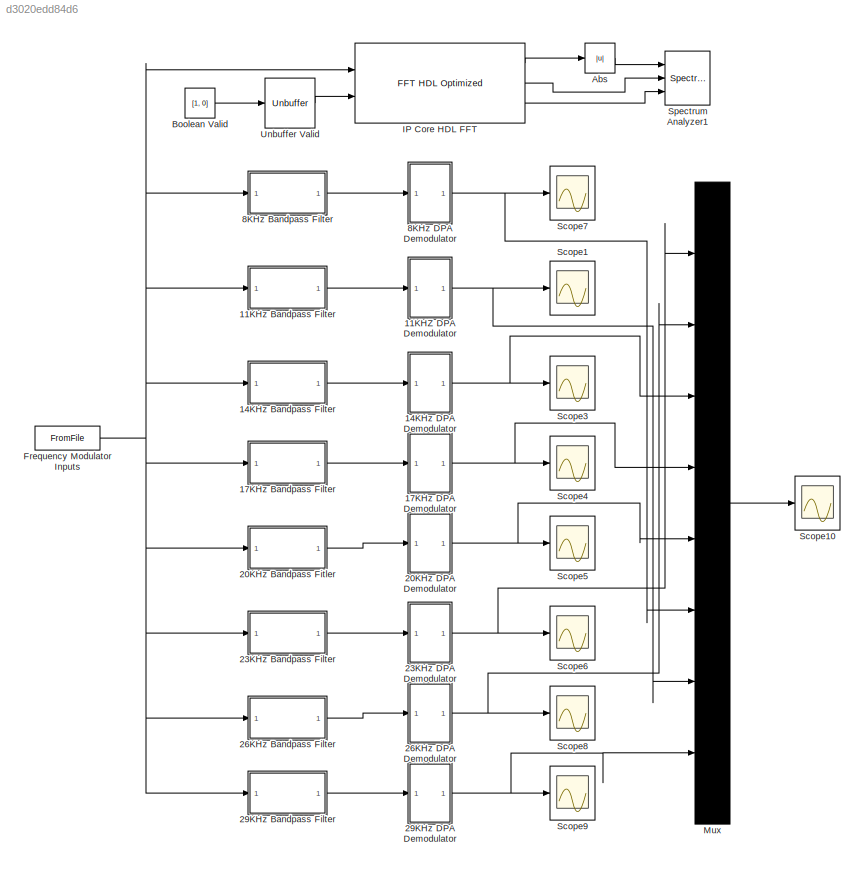
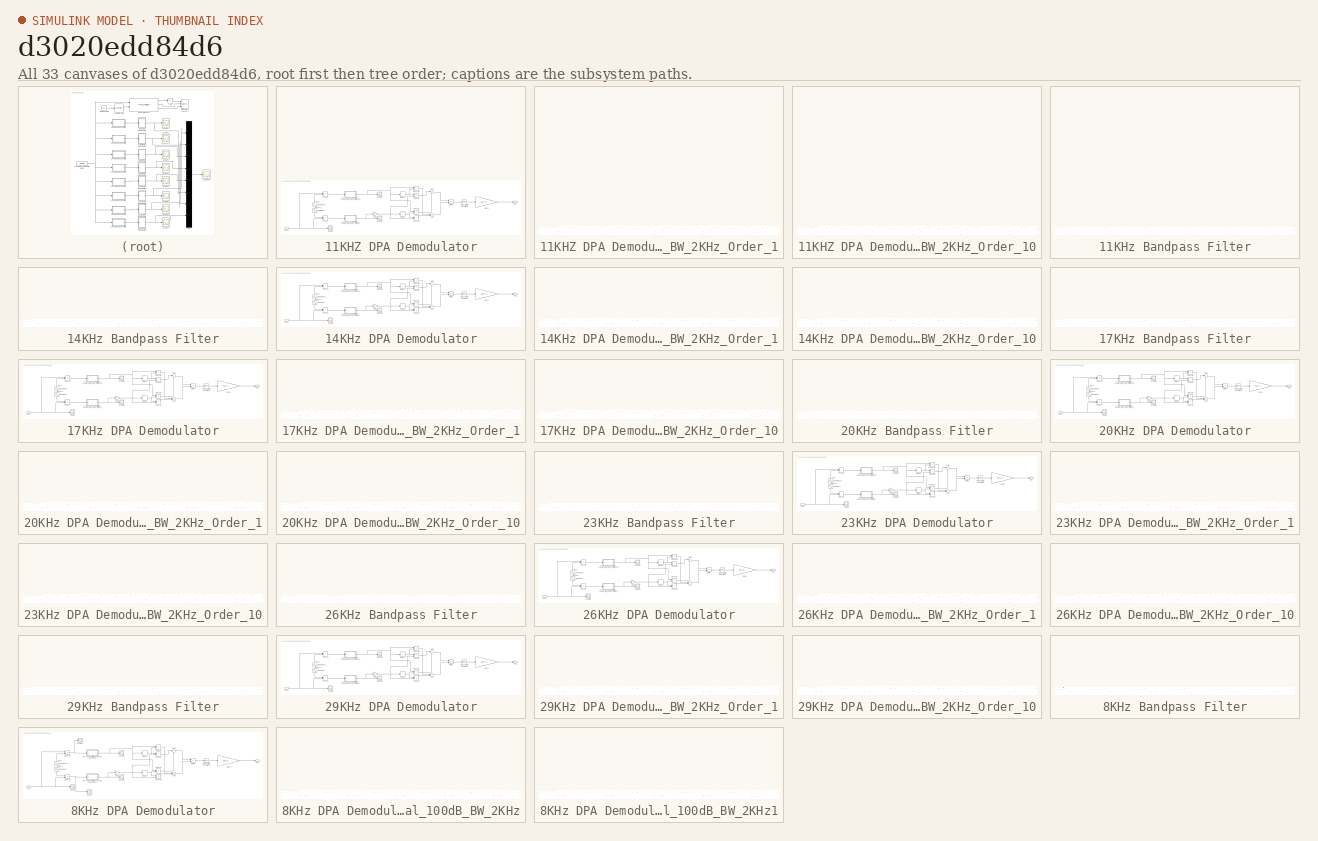
[diagram: thumbnail index - all 33 canvases of the model, root first then tree order]
MODEL slx_d3020edd84d6
KIND model
CONFIG AbsTol = auto
CONFIG EnableMultiTasking = off
CONFIG FixedStep = auto
CONFIG MaxStep = auto
CONFIG MinStep = auto
CONFIG RelTol = 1e-3
CONFIG SampleTimeConstraint = Unconstrained
CONFIG Solver = VariableStepAuto
CONFIG SolverName = VariableStepAuto
CONFIG StartTime = 0.0
CONFIG StopTime = 8.2
BLOCK [SubSystem] 11KHZ DPA Demodulator
  Ports = [1, 1]
  RequestExecContextInheritance = off
BLOCK [Delay] 11KHZ DPA Demodulator/Delay
  DelayLength = 1
  InitialCondition = 0
  InputPortMap = u0
  Ports = [1, 1]
BLOCK [Delay] 11KHZ DPA Demodulator/Delay1
  DelayLength = 1
  InitialCondition = 0
  InputPortMap = u0
  Ports = [1, 1]
BLOCK [Product] 11KHZ DPA Demodulator/Divide
  Inputs = */
  Ports = [2, 1]
BLOCK [Gain] 11KHZ DPA Demodulator/Gain1
  Gain = 7.5/((0.000004)*(2*pi*1000))
BLOCK [Gain] 11KHZ DPA Demodulator/Gain2
  Gain = -1
BLOCK [SubSystem] 11KHZ DPA Demodulator/LPF_11000Hz_Elliptical_100dB_BW_2KHz_Order_1
  ErrorFcn = dspFilterRealizedInBasicElemsAlgLoopErrFcnCallback
  Ports = [1, 1]
  RequestExecContextInheritance = off
  Tag = FilterWizardSubSystem
  UserDataPersistent = on
BLOCK [Delay] 11KHZ DPA Demodulator/LPF_11000Hz_Elliptical_100dB_BW_2KHz_Order_1/Delay11
  DelayLength = 1
  InitialCondition = 0
  InputPortMap = u0
  NameLocation = right
  Ports = [1, 1]
BLOCK [Delay] 11KHZ DPA Demodulator/LPF_11000Hz_Elliptical_100dB_BW_2KHz_Order_1/Delay12
  DelayLength = 1
  InitialCondition = 0
  InputPortMap = u0
  NameLocation = right
  Ports = [1, 1]
BLOCK [Delay] 11KHZ DPA Demodulator/LPF_11000Hz_Elliptical_100dB_BW_2KHz_Order_1/Delay13
  DelayLength = 1
  InitialCondition = 0
  InputPortMap = u0
  NameLocation = right
  Ports = [1, 1]
BLOCK [Delay] 11KHZ DPA Demodulator/LPF_11000Hz_Elliptical_100dB_BW_2KHz_Order_1/Delay14
  DelayLength = 1
  InitialCondition = 0
  InputPortMap = u0
  NameLocation = right
  Ports = [1, 1]
BLOCK [Delay] 11KHZ DPA Demodulator/LPF_11000Hz_Elliptical_100dB_BW_2KHz_Order_1/Delay15
  DelayLength = 1
  InitialCondition = 0
  InputPortMap = u0
  NameLocation = right
  Ports = [1, 1]
BLOCK [Delay] 11KHZ DPA Demodulator/LPF_11000Hz_Elliptical_100dB_BW_2KHz_Order_1/Delay21
  DelayLength = 1
  InitialCondition = 0
  InputPortMap = u0
  NameLocation = right
  Ports = [1, 1]
BLOCK [Delay] 11KHZ DPA Demodulator/LPF_11000Hz_Elliptical_100dB_BW_2KHz_Order_1/Delay22
  DelayLength = 1
  InitialCondition = 0
  InputPortMap = u0
  NameLocation = right
  Ports = [1, 1]
BLOCK [Delay] 11KHZ DPA Demodulator/LPF_11000Hz_Elliptical_100dB_BW_2KHz_Order_1/Delay23
  DelayLength = 1
  InitialCondition = 0
  InputPortMap = u0
  NameLocation = right
  Ports = [1, 1]
BLOCK [Delay] 11KHZ DPA Demodulator/LPF_11000Hz_Elliptical_100dB_BW_2KHz_Order_1/Delay24
  DelayLength = 1
  InitialCondition = 0
  InputPortMap = u0
  NameLocation = right
  Ports = [1, 1]
BLOCK [Delay] 11KHZ DPA Demodulator/LPF_11000Hz_Elliptical_100dB_BW_2KHz_Order_1/Delay25
  DelayLength = 1
  InitialCondition = 0
  InputPortMap = u0
  NameLocation = right
  Ports = [1, 1]
BLOCK [Inport] 11KHZ DPA Demodulator/LPF_11000Hz_Elliptical_100dB_BW_2KHz_Order_1/Input
BLOCK [Outport] 11KHZ DPA Demodulator/LPF_11000Hz_Elliptical_100dB_BW_2KHz_Order_1/Output
BLOCK [From] 11KHZ DPA Demodulator/LPF_11000Hz_Elliptical_100dB_BW_2KHz_Order_1/SectIn2
  GotoTag = Sect1
BLOCK [From] 11KHZ DPA Demodulator/LPF_11000Hz_Elliptical_100dB_BW_2KHz_Order_1/SectIn3
  GotoTag = Sect2
BLOCK [From] 11KHZ DPA Demodulator/LPF_11000Hz_Elliptical_100dB_BW_2KHz_Order_1/SectIn4
  GotoTag = Sect3
BLOCK [From] 11KHZ DPA Demodulator/LPF_11000Hz_Elliptical_100dB_BW_2KHz_Order_1/SectIn5
  GotoTag = Sect4
BLOCK [Goto] 11KHZ DPA Demodulator/LPF_11000Hz_Elliptical_100dB_BW_2KHz_Order_1/SectOut1
  GotoTag = Sect1
BLOCK [Goto] 11KHZ DPA Demodulator/LPF_11000Hz_Elliptical_100dB_BW_2KHz_Order_1/SectOut2
  GotoTag = Sect2
BLOCK [Goto] 11KHZ DPA Demodulator/LPF_11000Hz_Elliptical_100dB_BW_2KHz_Order_1/SectOut3
  GotoTag = Sect3
BLOCK [Goto] 11KHZ DPA Demodulator/LPF_11000Hz_Elliptical_100dB_BW_2KHz_Order_1/SectOut4
  GotoTag = Sect4
BLOCK [Sum] 11KHZ DPA Demodulator/LPF_11000Hz_Elliptical_100dB_BW_2KHz_Order_1/SumA21
  Inputs = |+-
  OutDataTypeStr = Inherit: Same as first input
  Ports = [2, 1]
  RndMeth = Nearest
  SaturateOnIntegerOverflow = on
BLOCK [Sum] 11KHZ DPA Demodulator/LPF_11000Hz_Elliptical_100dB_BW_2KHz_Order_1/SumA22
  Inputs = |+-
  OutDataTypeStr = Inherit: Same as first input
  Ports = [2, 1]
  RndMeth = Nearest
  SaturateOnIntegerOverflow = on
BLOCK [Sum] 11KHZ DPA Demodulator/LPF_11000Hz_Elliptical_100dB_BW_2KHz_Order_1/SumA23
  Inputs = |+-
  OutDataTypeStr = Inherit: Same as first input
  Ports = [2, 1]
  RndMeth = Nearest
  SaturateOnIntegerOverflow = on
BLOCK [Sum] 11KHZ DPA Demodulator/LPF_11000Hz_Elliptical_100dB_BW_2KHz_Order_1/SumA24
  Inputs = |+-
  OutDataTypeStr = Inherit: Same as first input
  Ports = [2, 1]
  RndMeth = Nearest
  SaturateOnIntegerOverflow = on
BLOCK [Sum] 11KHZ DPA Demodulator/LPF_11000Hz_Elliptical_100dB_BW_2KHz_Order_1/SumA25
  Inputs = |+-
  OutDataTypeStr = Inherit: Same as first input
  Ports = [2, 1]
  RndMeth = Nearest
  SaturateOnIntegerOverflow = on
BLOCK [Sum] 11KHZ DPA Demodulator/LPF_11000Hz_Elliptical_100dB_BW_2KHz_Order_1/SumA31
  Inputs = |+-
  OutDataTypeStr = Inherit: Same as first input
  Ports = [2, 1]
  RndMeth = Nearest
  SaturateOnIntegerOverflow = on
BLOCK [Sum] 11KHZ DPA Demodulator/LPF_11000Hz_Elliptical_100dB_BW_2KHz_Order_1/SumA32
  Inputs = |+-
  OutDataTypeStr = Inherit: Same as first input
  Ports = [2, 1]
  RndMeth = Nearest
  SaturateOnIntegerOverflow = on
BLOCK [Sum] 11KHZ DPA Demodulator/LPF_11000Hz_Elliptical_100dB_BW_2KHz_Order_1/SumA33
  Inputs = |+-
  OutDataTypeStr = Inherit: Same as first input
  Ports = [2, 1]
  RndMeth = Nearest
  SaturateOnIntegerOverflow = on
BLOCK [Sum] 11KHZ DPA Demodulator/LPF_11000Hz_Elliptical_100dB_BW_2KHz_Order_1/SumA34
  Inputs = |+-
  OutDataTypeStr = Inherit: Same as first input
  Ports = [2, 1]
  RndMeth = Nearest
  SaturateOnIntegerOverflow = on
BLOCK [Sum] 11KHZ DPA Demodulator/LPF_11000Hz_Elliptical_100dB_BW_2KHz_Order_1/SumA35
  Inputs = |+-
  OutDataTypeStr = Inherit: Same as first input
  Ports = [2, 1]
  RndMeth = Nearest
  SaturateOnIntegerOverflow = on
BLOCK [Sum] 11KHZ DPA Demodulator/LPF_11000Hz_Elliptical_100dB_BW_2KHz_Order_1/SumB21
  Inputs = |++
  OutDataTypeStr = Inherit: Same as first input
  Ports = [2, 1]
  RndMeth = Nearest
  SaturateOnIntegerOverflow = on
BLOCK [Sum] 11KHZ DPA Demodulator/LPF_11000Hz_Elliptical_100dB_BW_2KHz_Order_1/SumB22
  Inputs = |++
  OutDataTypeStr = Inherit: Same as first input
  Ports = [2, 1]
  RndMeth = Nearest
  SaturateOnIntegerOverflow = on
BLOCK [Sum] 11KHZ DPA Demodulator/LPF_11000Hz_Elliptical_100dB_BW_2KHz_Order_1/SumB23
  Inputs = |++
  OutDataTypeStr = Inherit: Same as first input
  Ports = [2, 1]
  RndMeth = Nearest
  SaturateOnIntegerOverflow = on
BLOCK [Sum] 11KHZ DPA Demodulator/LPF_11000Hz_Elliptical_100dB_BW_2KHz_Order_1/SumB24
  Inputs = |++
  OutDataTypeStr = Inherit: Same as first input
  Ports = [2, 1]
  RndMeth = Nearest
  SaturateOnIntegerOverflow = on
BLOCK [Sum] 11KHZ DPA Demodulator/LPF_11000Hz_Elliptical_100dB_BW_2KHz_Order_1/SumB25
  Inputs = |++
  OutDataTypeStr = Inherit: Same as first input
  Ports = [2, 1]
  RndMeth = Nearest
  SaturateOnIntegerOverflow = on
BLOCK [Sum] 11KHZ DPA Demodulator/LPF_11000Hz_Elliptical_100dB_BW_2KHz_Order_1/SumB31
  Inputs = |++
  OutDataTypeStr = Inherit: Same as first input
  Ports = [2, 1]
  RndMeth = Nearest
  SaturateOnIntegerOverflow = on
BLOCK [Sum] 11KHZ DPA Demodulator/LPF_11000Hz_Elliptical_100dB_BW_2KHz_Order_1/SumB32
  Inputs = |++
  OutDataTypeStr = Inherit: Same as first input
  Ports = [2, 1]
  RndMeth = Nearest
  SaturateOnIntegerOverflow = on
BLOCK [Sum] 11KHZ DPA Demodulator/LPF_11000Hz_Elliptical_100dB_BW_2KHz_Order_1/SumB33
  Inputs = |++
  OutDataTypeStr = Inherit: Same as first input
  Ports = [2, 1]
  RndMeth = Nearest
  SaturateOnIntegerOverflow = on
BLOCK [Sum] 11KHZ DPA Demodulator/LPF_11000Hz_Elliptical_100dB_BW_2KHz_Order_1/SumB34
  Inputs = |++
  OutDataTypeStr = Inherit: Same as first input
  Ports = [2, 1]
  RndMeth = Nearest
  SaturateOnIntegerOverflow = on
BLOCK [Sum] 11KHZ DPA Demodulator/LPF_11000Hz_Elliptical_100dB_BW_2KHz_Order_1/SumB35
  Inputs = |++
  OutDataTypeStr = Inherit: Same as first input
  Ports = [2, 1]
  RndMeth = Nearest
  SaturateOnIntegerOverflow = on
BLOCK [Gain] 11KHZ DPA Demodulator/LPF_11000Hz_Elliptical_100dB_BW_2KHz_Order_1/a(2)(1)
  Gain = -1.92364061388029062
  OutDataTypeStr = Inherit: Same as input
  ParamDataTypeStr = double
  RndMeth = Nearest
  SaturateOnIntegerOverflow = on
BLOCK [Gain] 11KHZ DPA Demodulator/LPF_11000Hz_Elliptical_100dB_BW_2KHz_Order_1/a(2)(2)
  Gain = -1.9178881391867062
  OutDataTypeStr = Inherit: Same as input
  ParamDataTypeStr = double
  RndMeth = Nearest
  SaturateOnIntegerOverflow = on
BLOCK [Gain] 11KHZ DPA Demodulator/LPF_11000Hz_Elliptical_100dB_BW_2KHz_Order_1/a(2)(3)
  Gain = -1.91276347762344301
  OutDataTypeStr = Inherit: Same as input
  ParamDataTypeStr = double
  RndMeth = Nearest
  SaturateOnIntegerOverflow = on
BLOCK [Gain] 11KHZ DPA Demodulator/LPF_11000Hz_Elliptical_100dB_BW_2KHz_Order_1/a(2)(4)
  Gain = -1.90923841278172657
  OutDataTypeStr = Inherit: Same as input
  ParamDataTypeStr = double
  RndMeth = Nearest
  SaturateOnIntegerOverflow = on
BLOCK [Gain] 11KHZ DPA Demodulator/LPF_11000Hz_Elliptical_100dB_BW_2KHz_Order_1/a(2)(5)
  Gain = -1.93116333275851781
  OutDataTypeStr = Inherit: Same as input
  ParamDataTypeStr = double
  RndMeth = Nearest
  SaturateOnIntegerOverflow = on
BLOCK [Gain] 11KHZ DPA Demodulator/LPF_11000Hz_Elliptical_100dB_BW_2KHz_Order_1/a(3)(1)
  Gain = 0.978883867338477209
  OutDataTypeStr = Inherit: Same as input
  ParamDataTypeStr = double
  RndMeth = Nearest
  SaturateOnIntegerOverflow = on
BLOCK [Gain] 11KHZ DPA Demodulator/LPF_11000Hz_Elliptical_100dB_BW_2KHz_Order_1/a(3)(2)
  Gain = 0.958411110411032219
  OutDataTypeStr = Inherit: Same as input
  ParamDataTypeStr = double
  RndMeth = Nearest
  SaturateOnIntegerOverflow = on
BLOCK [Gain] 11KHZ DPA Demodulator/LPF_11000Hz_Elliptical_100dB_BW_2KHz_Order_1/a(3)(3)
  Gain = 0.933275232664933285
  OutDataTypeStr = Inherit: Same as input
  ParamDataTypeStr = double
  RndMeth = Nearest
  SaturateOnIntegerOverflow = on
BLOCK [Gain] 11KHZ DPA Demodulator/LPF_11000Hz_Elliptical_100dB_BW_2KHz_Order_1/a(3)(4)
  Gain = 0.913740454044035588
  OutDataTypeStr = Inherit: Same as input
  ParamDataTypeStr = double
  RndMeth = Nearest
  SaturateOnIntegerOverflow = on
BLOCK [Gain] 11KHZ DPA Demodulator/LPF_11000Hz_Elliptical_100dB_BW_2KHz_Order_1/a(3)(5)
  Gain = 0.99368065639060843
  OutDataTypeStr = Inherit: Same as input
  ParamDataTypeStr = double
  RndMeth = Nearest
  SaturateOnIntegerOverflow = on
BLOCK [Gain] 11KHZ DPA Demodulator/LPF_11000Hz_Elliptical_100dB_BW_2KHz_Order_1/b(2)(1)
  Gain = -1.89111684254497181
  OutDataTypeStr = Inherit: Same as input
  ParamDataTypeStr = double
  RndMeth = Nearest
  SaturateOnIntegerOverflow = on
BLOCK [Gain] 11KHZ DPA Demodulator/LPF_11000Hz_Elliptical_100dB_BW_2KHz_Order_1/b(2)(2)
  Gain = -1.8511901324545128
  OutDataTypeStr = Inherit: Same as input
  ParamDataTypeStr = double
  RndMeth = Nearest
  SaturateOnIntegerOverflow = on
BLOCK [Gain] 11KHZ DPA Demodulator/LPF_11000Hz_Elliptical_100dB_BW_2KHz_Order_1/b(2)(3)
  Gain = -1.70181999485930668
  OutDataTypeStr = Inherit: Same as input
  ParamDataTypeStr = double
  RndMeth = Nearest
  SaturateOnIntegerOverflow = on
BLOCK [Gain] 11KHZ DPA Demodulator/LPF_11000Hz_Elliptical_100dB_BW_2KHz_Order_1/b(2)(4)
  Gain = -0.47911633591331948
  OutDataTypeStr = Inherit: Same as input
  ParamDataTypeStr = double
  RndMeth = Nearest
  SaturateOnIntegerOverflow = on
BLOCK [Gain] 11KHZ DPA Demodulator/LPF_11000Hz_Elliptical_100dB_BW_2KHz_Order_1/b(2)(5)
  Gain = -1.90360121122891113
  OutDataTypeStr = Inherit: Same as input
  ParamDataTypeStr = double
  RndMeth = Nearest
  SaturateOnIntegerOverflow = on
BLOCK [Gain] 11KHZ DPA Demodulator/LPF_11000Hz_Elliptical_100dB_BW_2KHz_Order_1/s(1)
  Gain = 0.576558275789733732
  OutDataTypeStr = Inherit: Same as input
  ParamDataTypeStr = double
  RndMeth = Nearest
  SaturateOnIntegerOverflow = on
BLOCK [Gain] 11KHZ DPA Demodulator/LPF_11000Hz_Elliptical_100dB_BW_2KHz_Order_1/s(2)
  Gain = 0.509177863224213767
  OutDataTypeStr = Inherit: Same as input
  ParamDataTypeStr = double
  RndMeth = Nearest
  SaturateOnIntegerOverflow = on
BLOCK [Gain] 11KHZ DPA Demodulator/LPF_11000Hz_Elliptical_100dB_BW_2KHz_Order_1/s(3)
  Gain = 0.281090111851723445
  OutDataTypeStr = Inherit: Same as input
  ParamDataTypeStr = double
  RndMeth = Nearest
  SaturateOnIntegerOverflow = on
BLOCK [Gain] 11KHZ DPA Demodulator/LPF_11000Hz_Elliptical_100dB_BW_2KHz_Order_1/s(4)
  Gain = 0.102101221871922998
  OutDataTypeStr = Inherit: Same as input
  ParamDataTypeStr = double
  RndMeth = Nearest
  SaturateOnIntegerOverflow = on
BLOCK [Gain] 11KHZ DPA Demodulator/LPF_11000Hz_Elliptical_100dB_BW_2KHz_Order_1/s(5)
  Gain = 0.00193003613490923156
  OutDataTypeStr = Inherit: Same as input
  ParamDataTypeStr = double
  RndMeth = Nearest
  SaturateOnIntegerOverflow = on
BLOCK [SubSystem] 11KHZ DPA Demodulator/LPF_11000Hz_Elliptical_100dB_BW_2KHz_Order_10
  ErrorFcn = dspFilterRealizedInBasicElemsAlgLoopErrFcnCallback
  Ports = [1, 1]
  RequestExecContextInheritance = off
  Tag = FilterWizardSubSystem
  UserDataPersistent = on
BLOCK [Delay] 11KHZ DPA Demodulator/LPF_11000Hz_Elliptical_100dB_BW_2KHz_Order_10/Delay11
  DelayLength = 1
  InitialCondition = 0
  InputPortMap = u0
  NameLocation = right
  Ports = [1, 1]
BLOCK [Delay] 11KHZ DPA Demodulator/LPF_11000Hz_Elliptical_100dB_BW_2KHz_Order_10/Delay12
  DelayLength = 1
  InitialCondition = 0
  InputPortMap = u0
  NameLocation = right
  Ports = [1, 1]
BLOCK [Delay] 11KHZ DPA Demodulator/LPF_11000Hz_Elliptical_100dB_BW_2KHz_Order_10/Delay13
  DelayLength = 1
  InitialCondition = 0
  InputPortMap = u0
  NameLocation = right
  Ports = [1, 1]
BLOCK [Delay] 11KHZ DPA Demodulator/LPF_11000Hz_Elliptical_100dB_BW_2KHz_Order_10/Delay14
  DelayLength = 1
  InitialCondition = 0
  InputPortMap = u0
  NameLocation = right
  Ports = [1, 1]
BLOCK [Delay] 11KHZ DPA Demodulator/LPF_11000Hz_Elliptical_100dB_BW_2KHz_Order_10/Delay15
  DelayLength = 1
  InitialCondition = 0
  InputPortMap = u0
  NameLocation = right
  Ports = [1, 1]
BLOCK [Delay] 11KHZ DPA Demodulator/LPF_11000Hz_Elliptical_100dB_BW_2KHz_Order_10/Delay21
  DelayLength = 1
  InitialCondition = 0
  InputPortMap = u0
  NameLocation = right
  Ports = [1, 1]
BLOCK [Delay] 11KHZ DPA Demodulator/LPF_11000Hz_Elliptical_100dB_BW_2KHz_Order_10/Delay22
  DelayLength = 1
  InitialCondition = 0
  InputPortMap = u0
  NameLocation = right
  Ports = [1, 1]
BLOCK [Delay] 11KHZ DPA Demodulator/LPF_11000Hz_Elliptical_100dB_BW_2KHz_Order_10/Delay23
  DelayLength = 1
  InitialCondition = 0
  InputPortMap = u0
  NameLocation = right
  Ports = [1, 1]
BLOCK [Delay] 11KHZ DPA Demodulator/LPF_11000Hz_Elliptical_100dB_BW_2KHz_Order_10/Delay24
  DelayLength = 1
  InitialCondition = 0
  InputPortMap = u0
  NameLocation = right
  Ports = [1, 1]
BLOCK [Delay] 11KHZ DPA Demodulator/LPF_11000Hz_Elliptical_100dB_BW_2KHz_Order_10/Delay25
  DelayLength = 1
  InitialCondition = 0
  InputPortMap = u0
  NameLocation = right
  Ports = [1, 1]
BLOCK [Inport] 11KHZ DPA Demodulator/LPF_11000Hz_Elliptical_100dB_BW_2KHz_Order_10/Input
BLOCK [Outport] 11KHZ DPA Demodulator/LPF_11000Hz_Elliptical_100dB_BW_2KHz_Order_10/Output
BLOCK [From] 11KHZ DPA Demodulator/LPF_11000Hz_Elliptical_100dB_BW_2KHz_Order_10/SectIn2
  GotoTag = Sect1
BLOCK [From] 11KHZ DPA Demodulator/LPF_11000Hz_Elliptical_100dB_BW_2KHz_Order_10/SectIn3
  GotoTag = Sect2
BLOCK [From] 11KHZ DPA Demodulator/LPF_11000Hz_Elliptical_100dB_BW_2KHz_Order_10/SectIn4
  GotoTag = Sect3
BLOCK [From] 11KHZ DPA Demodulator/LPF_11000Hz_Elliptical_100dB_BW_2KHz_Order_10/SectIn5
  GotoTag = Sect4
BLOCK [Goto] 11KHZ DPA Demodulator/LPF_11000Hz_Elliptical_100dB_BW_2KHz_Order_10/SectOut1
  GotoTag = Sect1
BLOCK [Goto] 11KHZ DPA Demodulator/LPF_11000Hz_Elliptical_100dB_BW_2KHz_Order_10/SectOut2
  GotoTag = Sect2
BLOCK [Goto] 11KHZ DPA Demodulator/LPF_11000Hz_Elliptical_100dB_BW_2KHz_Order_10/SectOut3
  GotoTag = Sect3
BLOCK [Goto] 11KHZ DPA Demodulator/LPF_11000Hz_Elliptical_100dB_BW_2KHz_Order_10/SectOut4
  GotoTag = Sect4
BLOCK [Sum] 11KHZ DPA Demodulator/LPF_11000Hz_Elliptical_100dB_BW_2KHz_Order_10/SumA21
  Inputs = |+-
  OutDataTypeStr = Inherit: Same as first input
  Ports = [2, 1]
  RndMeth = Nearest
  SaturateOnIntegerOverflow = on
BLOCK [Sum] 11KHZ DPA Demodulator/LPF_11000Hz_Elliptical_100dB_BW_2KHz_Order_10/SumA22
  Inputs = |+-
  OutDataTypeStr = Inherit: Same as first input
  Ports = [2, 1]
  RndMeth = Nearest
  SaturateOnIntegerOverflow = on
BLOCK [Sum] 11KHZ DPA Demodulator/LPF_11000Hz_Elliptical_100dB_BW_2KHz_Order_10/SumA23
  Inputs = |+-
  OutDataTypeStr = Inherit: Same as first input
  Ports = [2, 1]
  RndMeth = Nearest
  SaturateOnIntegerOverflow = on
BLOCK [Sum] 11KHZ DPA Demodulator/LPF_11000Hz_Elliptical_100dB_BW_2KHz_Order_10/SumA24
  Inputs = |+-
  OutDataTypeStr = Inherit: Same as first input
  Ports = [2, 1]
  RndMeth = Nearest
  SaturateOnIntegerOverflow = on
BLOCK [Sum] 11KHZ DPA Demodulator/LPF_11000Hz_Elliptical_100dB_BW_2KHz_Order_10/SumA25
  Inputs = |+-
  OutDataTypeStr = Inherit: Same as first input
  Ports = [2, 1]
  RndMeth = Nearest
  SaturateOnIntegerOverflow = on
BLOCK [Sum] 11KHZ DPA Demodulator/LPF_11000Hz_Elliptical_100dB_BW_2KHz_Order_10/SumA31
  Inputs = |+-
  OutDataTypeStr = Inherit: Same as first input
  Ports = [2, 1]
  RndMeth = Nearest
  SaturateOnIntegerOverflow = on
BLOCK [Sum] 11KHZ DPA Demodulator/LPF_11000Hz_Elliptical_100dB_BW_2KHz_Order_10/SumA32
  Inputs = |+-
  OutDataTypeStr = Inherit: Same as first input
  Ports = [2, 1]
  RndMeth = Nearest
  SaturateOnIntegerOverflow = on
BLOCK [Sum] 11KHZ DPA Demodulator/LPF_11000Hz_Elliptical_100dB_BW_2KHz_Order_10/SumA33
  Inputs = |+-
  OutDataTypeStr = Inherit: Same as first input
  Ports = [2, 1]
  RndMeth = Nearest
  SaturateOnIntegerOverflow = on
BLOCK [Sum] 11KHZ DPA Demodulator/LPF_11000Hz_Elliptical_100dB_BW_2KHz_Order_10/SumA34
  Inputs = |+-
  OutDataTypeStr = Inherit: Same as first input
  Ports = [2, 1]
  RndMeth = Nearest
  SaturateOnIntegerOverflow = on
BLOCK [Sum] 11KHZ DPA Demodulator/LPF_11000Hz_Elliptical_100dB_BW_2KHz_Order_10/SumA35
  Inputs = |+-
  OutDataTypeStr = Inherit: Same as first input
  Ports = [2, 1]
  RndMeth = Nearest
  SaturateOnIntegerOverflow = on
BLOCK [Sum] 11KHZ DPA Demodulator/LPF_11000Hz_Elliptical_100dB_BW_2KHz_Order_10/SumB21
  Inputs = |++
  OutDataTypeStr = Inherit: Same as first input
  Ports = [2, 1]
  RndMeth = Nearest
  SaturateOnIntegerOverflow = on
BLOCK [Sum] 11KHZ DPA Demodulator/LPF_11000Hz_Elliptical_100dB_BW_2KHz_Order_10/SumB22
  Inputs = |++
  OutDataTypeStr = Inherit: Same as first input
  Ports = [2, 1]
  RndMeth = Nearest
  SaturateOnIntegerOverflow = on
BLOCK [Sum] 11KHZ DPA Demodulator/LPF_11000Hz_Elliptical_100dB_BW_2KHz_Order_10/SumB23
  Inputs = |++
  OutDataTypeStr = Inherit: Same as first input
  Ports = [2, 1]
  RndMeth = Nearest
  SaturateOnIntegerOverflow = on
BLOCK [Sum] 11KHZ DPA Demodulator/LPF_11000Hz_Elliptical_100dB_BW_2KHz_Order_10/SumB24
  Inputs = |++
  OutDataTypeStr = Inherit: Same as first input
  Ports = [2, 1]
  RndMeth = Nearest
  SaturateOnIntegerOverflow = on
BLOCK [Sum] 11KHZ DPA Demodulator/LPF_11000Hz_Elliptical_100dB_BW_2KHz_Order_10/SumB25
  Inputs = |++
  OutDataTypeStr = Inherit: Same as first input
  Ports = [2, 1]
  RndMeth = Nearest
  SaturateOnIntegerOverflow = on
BLOCK [Sum] 11KHZ DPA Demodulator/LPF_11000Hz_Elliptical_100dB_BW_2KHz_Order_10/SumB31
  Inputs = |++
  OutDataTypeStr = Inherit: Same as first input
  Ports = [2, 1]
  RndMeth = Nearest
  SaturateOnIntegerOverflow = on
BLOCK [Sum] 11KHZ DPA Demodulator/LPF_11000Hz_Elliptical_100dB_BW_2KHz_Order_10/SumB32
  Inputs = |++
  OutDataTypeStr = Inherit: Same as first input
  Ports = [2, 1]
  RndMeth = Nearest
  SaturateOnIntegerOverflow = on
BLOCK [Sum] 11KHZ DPA Demodulator/LPF_11000Hz_Elliptical_100dB_BW_2KHz_Order_10/SumB33
  Inputs = |++
  OutDataTypeStr = Inherit: Same as first input
  Ports = [2, 1]
  RndMeth = Nearest
  SaturateOnIntegerOverflow = on
BLOCK [Sum] 11KHZ DPA Demodulator/LPF_11000Hz_Elliptical_100dB_BW_2KHz_Order_10/SumB34
  Inputs = |++
  OutDataTypeStr = Inherit: Same as first input
  Ports = [2, 1]
  RndMeth = Nearest
  SaturateOnIntegerOverflow = on
BLOCK [Sum] 11KHZ DPA Demodulator/LPF_11000Hz_Elliptical_100dB_BW_2KHz_Order_10/SumB35
  Inputs = |++
  OutDataTypeStr = Inherit: Same as first input
  Ports = [2, 1]
  RndMeth = Nearest
  SaturateOnIntegerOverflow = on
BLOCK [Gain] 11KHZ DPA Demodulator/LPF_11000Hz_Elliptical_100dB_BW_2KHz_Order_10/a(2)(1)
  Gain = -1.92364061388029062
  OutDataTypeStr = Inherit: Same as input
  ParamDataTypeStr = double
  RndMeth = Nearest
  SaturateOnIntegerOverflow = on
BLOCK [Gain] 11KHZ DPA Demodulator/LPF_11000Hz_Elliptical_100dB_BW_2KHz_Order_10/a(2)(2)
  Gain = -1.9178881391867062
  OutDataTypeStr = Inherit: Same as input
  ParamDataTypeStr = double
  RndMeth = Nearest
  SaturateOnIntegerOverflow = on
BLOCK [Gain] 11KHZ DPA Demodulator/LPF_11000Hz_Elliptical_100dB_BW_2KHz_Order_10/a(2)(3)
  Gain = -1.91276347762344301
  OutDataTypeStr = Inherit: Same as input
  ParamDataTypeStr = double
  RndMeth = Nearest
  SaturateOnIntegerOverflow = on
BLOCK [Gain] 11KHZ DPA Demodulator/LPF_11000Hz_Elliptical_100dB_BW_2KHz_Order_10/a(2)(4)
  Gain = -1.90923841278172657
  OutDataTypeStr = Inherit: Same as input
  ParamDataTypeStr = double
  RndMeth = Nearest
  SaturateOnIntegerOverflow = on
BLOCK [Gain] 11KHZ DPA Demodulator/LPF_11000Hz_Elliptical_100dB_BW_2KHz_Order_10/a(2)(5)
  Gain = -1.93116333275851781
  OutDataTypeStr = Inherit: Same as input
  ParamDataTypeStr = double
  RndMeth = Nearest
  SaturateOnIntegerOverflow = on
BLOCK [Gain] 11KHZ DPA Demodulator/LPF_11000Hz_Elliptical_100dB_BW_2KHz_Order_10/a(3)(1)
  Gain = 0.978883867338477209
  OutDataTypeStr = Inherit: Same as input
  ParamDataTypeStr = double
  RndMeth = Nearest
  SaturateOnIntegerOverflow = on
BLOCK [Gain] 11KHZ DPA Demodulator/LPF_11000Hz_Elliptical_100dB_BW_2KHz_Order_10/a(3)(2)
  Gain = 0.958411110411032219
  OutDataTypeStr = Inherit: Same as input
  ParamDataTypeStr = double
  RndMeth = Nearest
  SaturateOnIntegerOverflow = on
BLOCK [Gain] 11KHZ DPA Demodulator/LPF_11000Hz_Elliptical_100dB_BW_2KHz_Order_10/a(3)(3)
  Gain = 0.933275232664933285
  OutDataTypeStr = Inherit: Same as input
  ParamDataTypeStr = double
  RndMeth = Nearest
  SaturateOnIntegerOverflow = on
BLOCK [Gain] 11KHZ DPA Demodulator/LPF_11000Hz_Elliptical_100dB_BW_2KHz_Order_10/a(3)(4)
  Gain = 0.913740454044035588
  OutDataTypeStr = Inherit: Same as input
  ParamDataTypeStr = double
  RndMeth = Nearest
  SaturateOnIntegerOverflow = on
BLOCK [Gain] 11KHZ DPA Demodulator/LPF_11000Hz_Elliptical_100dB_BW_2KHz_Order_10/a(3)(5)
  Gain = 0.99368065639060843
  OutDataTypeStr = Inherit: Same as input
  ParamDataTypeStr = double
  RndMeth = Nearest
  SaturateOnIntegerOverflow = on
BLOCK [Gain] 11KHZ DPA Demodulator/LPF_11000Hz_Elliptical_100dB_BW_2KHz_Order_10/b(2)(1)
  Gain = -1.89111684254497181
  OutDataTypeStr = Inherit: Same as input
  ParamDataTypeStr = double
  RndMeth = Nearest
  SaturateOnIntegerOverflow = on
BLOCK [Gain] 11KHZ DPA Demodulator/LPF_11000Hz_Elliptical_100dB_BW_2KHz_Order_10/b(2)(2)
  Gain = -1.8511901324545128
  OutDataTypeStr = Inherit: Same as input
  ParamDataTypeStr = double
  RndMeth = Nearest
  SaturateOnIntegerOverflow = on
BLOCK [Gain] 11KHZ DPA Demodulator/LPF_11000Hz_Elliptical_100dB_BW_2KHz_Order_10/b(2)(3)
  Gain = -1.70181999485930668
  OutDataTypeStr = Inherit: Same as input
  ParamDataTypeStr = double
  RndMeth = Nearest
  SaturateOnIntegerOverflow = on
BLOCK [Gain] 11KHZ DPA Demodulator/LPF_11000Hz_Elliptical_100dB_BW_2KHz_Order_10/b(2)(4)
  Gain = -0.47911633591331948
  OutDataTypeStr = Inherit: Same as input
  ParamDataTypeStr = double
  RndMeth = Nearest
  SaturateOnIntegerOverflow = on
BLOCK [Gain] 11KHZ DPA Demodulator/LPF_11000Hz_Elliptical_100dB_BW_2KHz_Order_10/b(2)(5)
  Gain = -1.90360121122891113
  OutDataTypeStr = Inherit: Same as input
  ParamDataTypeStr = double
  RndMeth = Nearest
  SaturateOnIntegerOverflow = on
BLOCK [Gain] 11KHZ DPA Demodulator/LPF_11000Hz_Elliptical_100dB_BW_2KHz_Order_10/s(1)
  Gain = 0.576558275789733732
  OutDataTypeStr = Inherit: Same as input
  ParamDataTypeStr = double
  RndMeth = Nearest
  SaturateOnIntegerOverflow = on
BLOCK [Gain] 11KHZ DPA Demodulator/LPF_11000Hz_Elliptical_100dB_BW_2KHz_Order_10/s(2)
  Gain = 0.509177863224213767
  OutDataTypeStr = Inherit: Same as input
  ParamDataTypeStr = double
  RndMeth = Nearest
  SaturateOnIntegerOverflow = on
BLOCK [Gain] 11KHZ DPA Demodulator/LPF_11000Hz_Elliptical_100dB_BW_2KHz_Order_10/s(3)
  Gain = 0.281090111851723445
  OutDataTypeStr = Inherit: Same as input
  ParamDataTypeStr = double
  RndMeth = Nearest
  SaturateOnIntegerOverflow = on
BLOCK [Gain] 11KHZ DPA Demodulator/LPF_11000Hz_Elliptical_100dB_BW_2KHz_Order_10/s(4)
  Gain = 0.102101221871922998
  OutDataTypeStr = Inherit: Same as input
  ParamDataTypeStr = double
  RndMeth = Nearest
  SaturateOnIntegerOverflow = on
BLOCK [Gain] 11KHZ DPA Demodulator/LPF_11000Hz_Elliptical_100dB_BW_2KHz_Order_10/s(5)
  Gain = 0.00193003613490923156
  OutDataTypeStr = Inherit: Same as input
  ParamDataTypeStr = double
  RndMeth = Nearest
  SaturateOnIntegerOverflow = on
BLOCK [Outport] 11KHZ DPA Demodulator/Out1
BLOCK [Inport] 11KHZ DPA Demodulator/Output
BLOCK [Product] 11KHZ DPA Demodulator/Product10
  Ports = [2, 1]
BLOCK [Product] 11KHZ DPA Demodulator/Product5
  Ports = [2, 1]
BLOCK [Product] 11KHZ DPA Demodulator/Product6
  Ports = [2, 1]
BLOCK [Product] 11KHZ DPA Demodulator/Product7
  Ports = [2, 1]
BLOCK [Product] 11KHZ DPA Demodulator/Product8
  Ports = [2, 1]
BLOCK [Product] 11KHZ DPA Demodulator/Product9
  Ports = [2, 1]
BLOCK [Scope] 11KHZ DPA Demodulator/Scope
  Floating = off
  NumInputPorts = 1
  Ports = [1]
  ScopeSpecificationString = Simulink.scopes.TimeScopeBlockCfg('CurrentConfiguration', extmgr.ConfigurationSet(extmgr.Configuration('Core','General UI',true),extmgr.Configuration('Core','Source UI',true),extmgr.Configuration('Sources','WiredSimulink',true,'DataLoggingVariableName','ScopeData2'),extmgr.Configuration('Visuals','Time Domain',true,'SerializedDisplays',{struct('MinYLimReal','-0.21143','MaxYLimReal','0.20759','YLab...<+1509ch>  <repeated x8 — deduplicated; at blocks: Scope>
BLOCK [Scope] 11KHZ DPA Demodulator/Scope5
  Floating = off
  NumInputPorts = 1
  Ports = [1]
  ScopeSpecificationString = Simulink.scopes.TimeScopeBlockCfg('CurrentConfiguration', extmgr.ConfigurationSet(extmgr.Configuration('Core','General UI',true),extmgr.Configuration('Core','Source UI',true),extmgr.Configuration('Sources','WiredSimulink',true,'DataLoggingVariableName','ScopeData10'),extmgr.Configuration('Visuals','Time Domain',true,'SerializedDisplays',{struct('MinYLimReal','-0.14672','MaxYLimReal','0.20454','YLa...<+1483ch>  <repeated x8 — deduplicated; at blocks: Scope5>
BLOCK [Scope] 11KHZ DPA Demodulator/Scope6
  Floating = off
  NumInputPorts = 1
  Ports = [1]
  ScopeSpecificationString = Simulink.scopes.TimeScopeBlockCfg('CurrentConfiguration', extmgr.ConfigurationSet(extmgr.Configuration('Core','General UI',true),extmgr.Configuration('Core','Source UI',true),extmgr.Configuration('Sources','WiredSimulink',true,'DataLoggingVariableName','ScopeData11'),extmgr.Configuration('Visuals','Time Domain',true,'SerializedDisplays',{struct('MinYLimReal','-0.0576','MaxYLimReal','0.05662','YLab...<+1479ch>  <repeated x8 — deduplicated; at blocks: Scope6>
BLOCK [Sin] 11KHZ DPA Demodulator/Sine Wave
  Frequency = 2*pi*11000
  NameLocation = left
  Phase = +(pi/2)
  Ports = [0, 1]
  SampleTime = 1/250000
  Samples = 250
BLOCK [Sin] 11KHZ DPA Demodulator/Sine Wave1
  Frequency = 2*pi*11000
  NameLocation = right
  Ports = [0, 1]
  SampleTime = 1/250000
BLOCK [Sum] 11KHZ DPA Demodulator/Sum
  Inputs = |++
  Ports = [2, 1]
BLOCK [Sum] 11KHZ DPA Demodulator/Sum1
  Inputs = |+-
  Ports = [2, 1]
BLOCK [Trigonometry] 11KHZ DPA Demodulator/Trigonometric Function1
  Operator = atan
  Ports = [1, 1]
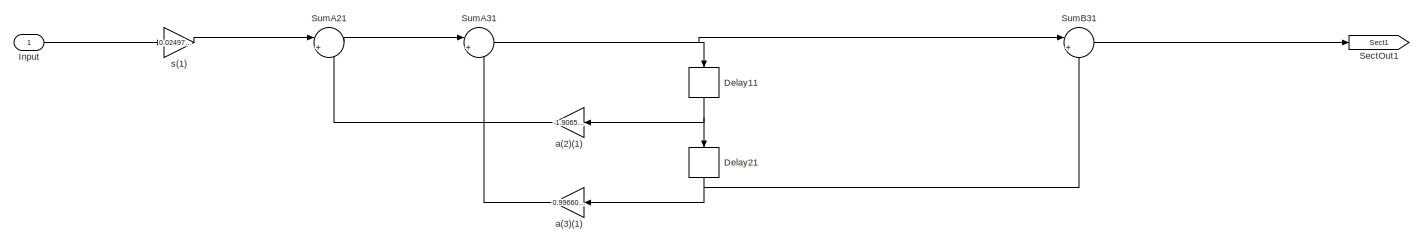
[diagram: 11KHz Bandpass Filter - part 1/6, left side, full height]
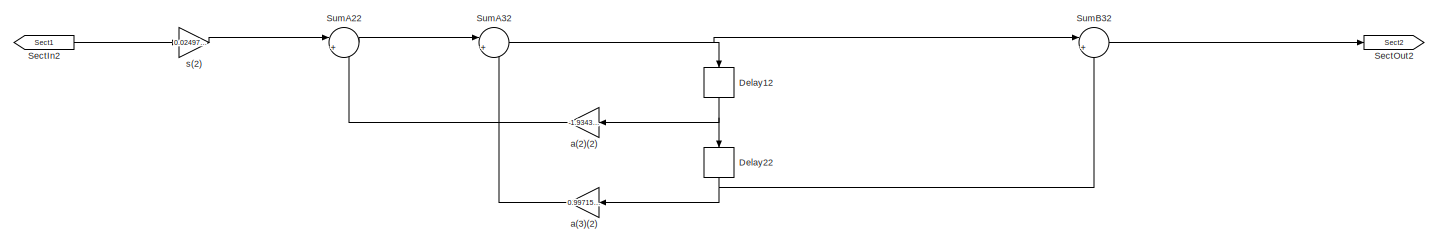
[diagram: 11KHz Bandpass Filter - part 2/6, left side, full height]
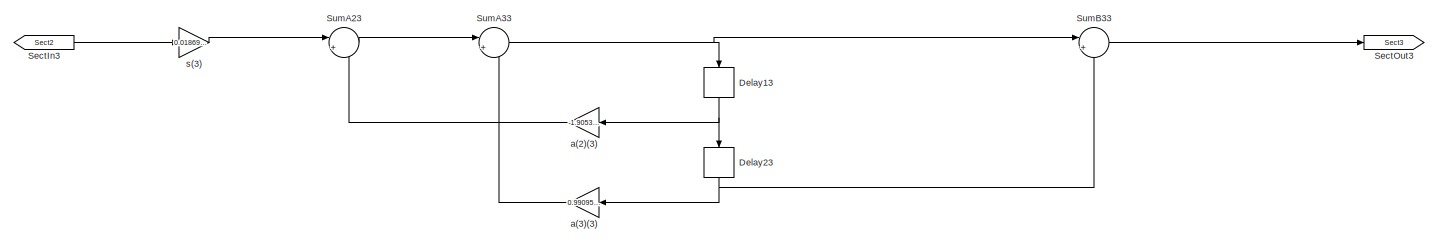
[diagram: 11KHz Bandpass Filter - part 3/6, center side, full height]
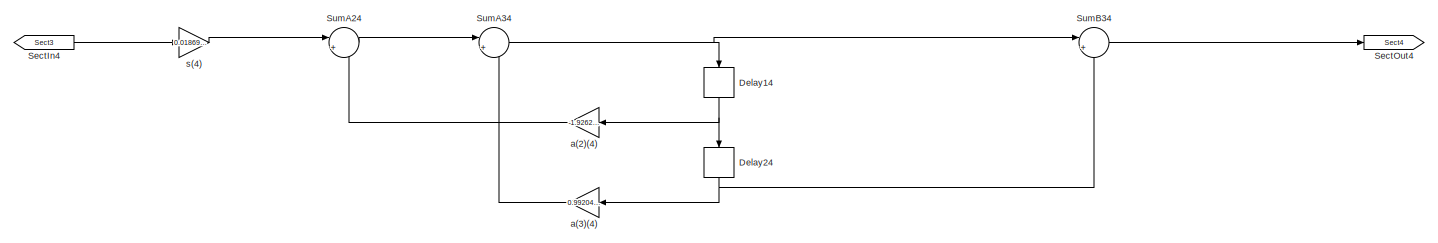
[diagram: 11KHz Bandpass Filter - part 4/6, center side, full height]
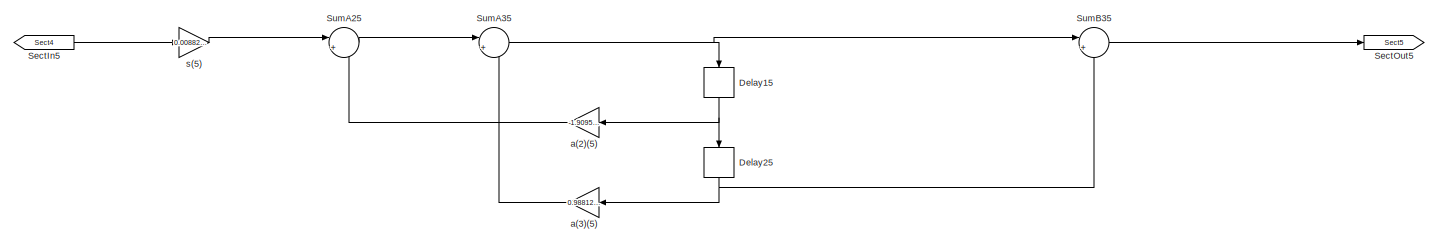
[diagram: 11KHz Bandpass Filter - part 5/6, right side, full height]
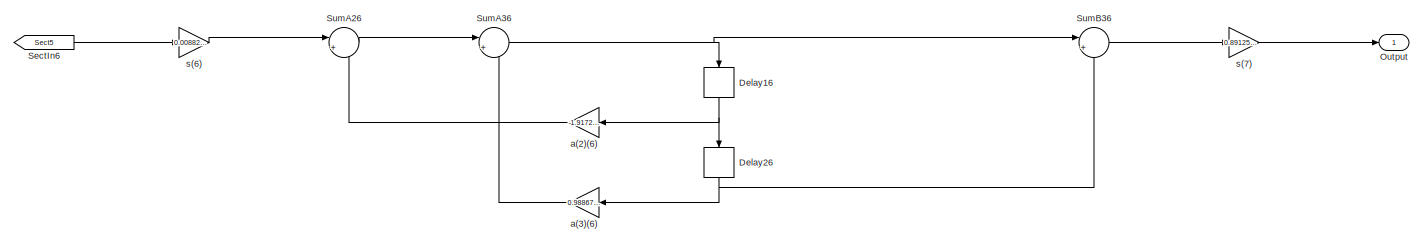
[diagram: 11KHz Bandpass Filter - part 6/6, right side, full height]
BLOCK [SubSystem] 11KHz Bandpass Filter
  ErrorFcn = dspFilterRealizedInBasicElemsAlgLoopErrFcnCallback
  Ports = [1, 1]
  RequestExecContextInheritance = off
  Tag = FilterWizardSubSystem
  UserDataPersistent = on
BLOCK [Delay] 11KHz Bandpass Filter/Delay11
  DelayLength = 1
  InitialCondition = 0
  InputPortMap = u0
  NameLocation = right
  Ports = [1, 1]
BLOCK [Delay] 11KHz Bandpass Filter/Delay12
  DelayLength = 1
  InitialCondition = 0
  InputPortMap = u0
  NameLocation = right
  Ports = [1, 1]
BLOCK [Delay] 11KHz Bandpass Filter/Delay13
  DelayLength = 1
  InitialCondition = 0
  InputPortMap = u0
  NameLocation = right
  Ports = [1, 1]
BLOCK [Delay] 11KHz Bandpass Filter/Delay14
  DelayLength = 1
  InitialCondition = 0
  InputPortMap = u0
  NameLocation = right
  Ports = [1, 1]
BLOCK [Delay] 11KHz Bandpass Filter/Delay15
  DelayLength = 1
  InitialCondition = 0
  InputPortMap = u0
  NameLocation = right
  Ports = [1, 1]
BLOCK [Delay] 11KHz Bandpass Filter/Delay16
  DelayLength = 1
  InitialCondition = 0
  InputPortMap = u0
  NameLocation = right
  Ports = [1, 1]
BLOCK [Delay] 11KHz Bandpass Filter/Delay21
  DelayLength = 1
  InitialCondition = 0
  InputPortMap = u0
  NameLocation = right
  Ports = [1, 1]
BLOCK [Delay] 11KHz Bandpass Filter/Delay22
  DelayLength = 1
  InitialCondition = 0
  InputPortMap = u0
  NameLocation = right
  Ports = [1, 1]
BLOCK [Delay] 11KHz Bandpass Filter/Delay23
  DelayLength = 1
  InitialCondition = 0
  InputPortMap = u0
  NameLocation = right
  Ports = [1, 1]
BLOCK [Delay] 11KHz Bandpass Filter/Delay24
  DelayLength = 1
  InitialCondition = 0
  InputPortMap = u0
  NameLocation = right
  Ports = [1, 1]
BLOCK [Delay] 11KHz Bandpass Filter/Delay25
  DelayLength = 1
  InitialCondition = 0
  InputPortMap = u0
  NameLocation = right
  Ports = [1, 1]
BLOCK [Delay] 11KHz Bandpass Filter/Delay26
  DelayLength = 1
  InitialCondition = 0
  InputPortMap = u0
  NameLocation = right
  Ports = [1, 1]
BLOCK [Inport] 11KHz Bandpass Filter/Input
BLOCK [Outport] 11KHz Bandpass Filter/Output
BLOCK [From] 11KHz Bandpass Filter/SectIn2
  GotoTag = Sect1
BLOCK [From] 11KHz Bandpass Filter/SectIn3
  GotoTag = Sect2
BLOCK [From] 11KHz Bandpass Filter/SectIn4
  GotoTag = Sect3
BLOCK [From] 11KHz Bandpass Filter/SectIn5
  GotoTag = Sect4
BLOCK [From] 11KHz Bandpass Filter/SectIn6
  GotoTag = Sect5
BLOCK [Goto] 11KHz Bandpass Filter/SectOut1
  GotoTag = Sect1
BLOCK [Goto] 11KHz Bandpass Filter/SectOut2
  GotoTag = Sect2
BLOCK [Goto] 11KHz Bandpass Filter/SectOut3
  GotoTag = Sect3
BLOCK [Goto] 11KHz Bandpass Filter/SectOut4
  GotoTag = Sect4
BLOCK [Goto] 11KHz Bandpass Filter/SectOut5
  GotoTag = Sect5
BLOCK [Sum] 11KHz Bandpass Filter/SumA21
  Inputs = |+-
  OutDataTypeStr = Inherit: Same as first input
  Ports = [2, 1]
  RndMeth = Nearest
  SaturateOnIntegerOverflow = on
BLOCK [Sum] 11KHz Bandpass Filter/SumA22
  Inputs = |+-
  OutDataTypeStr = Inherit: Same as first input
  Ports = [2, 1]
  RndMeth = Nearest
  SaturateOnIntegerOverflow = on
BLOCK [Sum] 11KHz Bandpass Filter/SumA23
  Inputs = |+-
  OutDataTypeStr = Inherit: Same as first input
  Ports = [2, 1]
  RndMeth = Nearest
  SaturateOnIntegerOverflow = on
BLOCK [Sum] 11KHz Bandpass Filter/SumA24
  Inputs = |+-
  OutDataTypeStr = Inherit: Same as first input
  Ports = [2, 1]
  RndMeth = Nearest
  SaturateOnIntegerOverflow = on
BLOCK [Sum] 11KHz Bandpass Filter/SumA25
  Inputs = |+-
  OutDataTypeStr = Inherit: Same as first input
  Ports = [2, 1]
  RndMeth = Nearest
  SaturateOnIntegerOverflow = on
BLOCK [Sum] 11KHz Bandpass Filter/SumA26
  Inputs = |+-
  OutDataTypeStr = Inherit: Same as first input
  Ports = [2, 1]
  RndMeth = Nearest
  SaturateOnIntegerOverflow = on
BLOCK [Sum] 11KHz Bandpass Filter/SumA31
  Inputs = |+-
  OutDataTypeStr = Inherit: Same as first input
  Ports = [2, 1]
  RndMeth = Nearest
  SaturateOnIntegerOverflow = on
BLOCK [Sum] 11KHz Bandpass Filter/SumA32
  Inputs = |+-
  OutDataTypeStr = Inherit: Same as first input
  Ports = [2, 1]
  RndMeth = Nearest
  SaturateOnIntegerOverflow = on
BLOCK [Sum] 11KHz Bandpass Filter/SumA33
  Inputs = |+-
  OutDataTypeStr = Inherit: Same as first input
  Ports = [2, 1]
  RndMeth = Nearest
  SaturateOnIntegerOverflow = on
BLOCK [Sum] 11KHz Bandpass Filter/SumA34
  Inputs = |+-
  OutDataTypeStr = Inherit: Same as first input
  Ports = [2, 1]
  RndMeth = Nearest
  SaturateOnIntegerOverflow = on
BLOCK [Sum] 11KHz Bandpass Filter/SumA35
  Inputs = |+-
  OutDataTypeStr = Inherit: Same as first input
  Ports = [2, 1]
  RndMeth = Nearest
  SaturateOnIntegerOverflow = on
BLOCK [Sum] 11KHz Bandpass Filter/SumA36
  Inputs = |+-
  OutDataTypeStr = Inherit: Same as first input
  Ports = [2, 1]
  RndMeth = Nearest
  SaturateOnIntegerOverflow = on
BLOCK [Sum] 11KHz Bandpass Filter/SumB31
  Inputs = |+-
  OutDataTypeStr = Inherit: Same as first input
  Ports = [2, 1]
  RndMeth = Nearest
  SaturateOnIntegerOverflow = on
BLOCK [Sum] 11KHz Bandpass Filter/SumB32
  Inputs = |+-
  OutDataTypeStr = Inherit: Same as first input
  Ports = [2, 1]
  RndMeth = Nearest
  SaturateOnIntegerOverflow = on
BLOCK [Sum] 11KHz Bandpass Filter/SumB33
  Inputs = |+-
  OutDataTypeStr = Inherit: Same as first input
  Ports = [2, 1]
  RndMeth = Nearest
  SaturateOnIntegerOverflow = on
BLOCK [Sum] 11KHz Bandpass Filter/SumB34
  Inputs = |+-
  OutDataTypeStr = Inherit: Same as first input
  Ports = [2, 1]
  RndMeth = Nearest
  SaturateOnIntegerOverflow = on
BLOCK [Sum] 11KHz Bandpass Filter/SumB35
  Inputs = |+-
  OutDataTypeStr = Inherit: Same as first input
  Ports = [2, 1]
  RndMeth = Nearest
  SaturateOnIntegerOverflow = on
BLOCK [Sum] 11KHz Bandpass Filter/SumB36
  Inputs = |+-
  OutDataTypeStr = Inherit: Same as first input
  Ports = [2, 1]
  RndMeth = Nearest
  SaturateOnIntegerOverflow = on
BLOCK [Gain] 11KHz Bandpass Filter/a(2)(1)
  Gain = -1.9065952938784374
  OutDataTypeStr = Inherit: Same as input
  ParamDataTypeStr = double
  RndMeth = Nearest
  SaturateOnIntegerOverflow = on
BLOCK [Gain] 11KHz Bandpass Filter/a(2)(2)
  Gain = -1.93433571126361903
  OutDataTypeStr = Inherit: Same as input
  ParamDataTypeStr = double
  RndMeth = Nearest
  SaturateOnIntegerOverflow = on
BLOCK [Gain] 11KHz Bandpass Filter/a(2)(3)
  Gain = -1.90539970784921886
  OutDataTypeStr = Inherit: Same as input
  ParamDataTypeStr = double
  RndMeth = Nearest
  SaturateOnIntegerOverflow = on
BLOCK [Gain] 11KHz Bandpass Filter/a(2)(4)
  Gain = -1.92628834700168183
  OutDataTypeStr = Inherit: Same as input
  ParamDataTypeStr = double
  RndMeth = Nearest
  SaturateOnIntegerOverflow = on
BLOCK [Gain] 11KHz Bandpass Filter/a(2)(5)
  Gain = -1.90953396328044223
  OutDataTypeStr = Inherit: Same as input
  ParamDataTypeStr = double
  RndMeth = Nearest
  SaturateOnIntegerOverflow = on
BLOCK [Gain] 11KHz Bandpass Filter/a(2)(6)
  Gain = -1.91729782266235227
  OutDataTypeStr = Inherit: Same as input
  ParamDataTypeStr = double
  RndMeth = Nearest
  SaturateOnIntegerOverflow = on
BLOCK [Gain] 11KHz Bandpass Filter/a(3)(1)
  Gain = 0.996606493218230471
  OutDataTypeStr = Inherit: Same as input
  ParamDataTypeStr = double
  RndMeth = Nearest
  SaturateOnIntegerOverflow = on
BLOCK [Gain] 11KHz Bandpass Filter/a(3)(2)
  Gain = 0.997154789899552862
  OutDataTypeStr = Inherit: Same as input
  ParamDataTypeStr = double
  RndMeth = Nearest
  SaturateOnIntegerOverflow = on
BLOCK [Gain] 11KHz Bandpass Filter/a(3)(3)
  Gain = 0.990951691511379074
  OutDataTypeStr = Inherit: Same as input
  ParamDataTypeStr = double
  RndMeth = Nearest
  SaturateOnIntegerOverflow = on
BLOCK [Gain] 11KHz Bandpass Filter/a(3)(4)
  Gain = 0.992044936946816946
  OutDataTypeStr = Inherit: Same as input
  ParamDataTypeStr = double
  RndMeth = Nearest
  SaturateOnIntegerOverflow = on
BLOCK [Gain] 11KHz Bandpass Filter/a(3)(5)
  Gain = 0.988127915993850081
  OutDataTypeStr = Inherit: Same as input
  ParamDataTypeStr = double
  RndMeth = Nearest
  SaturateOnIntegerOverflow = on
BLOCK [Gain] 11KHz Bandpass Filter/a(3)(6)
  Gain = 0.98867412178745806
  OutDataTypeStr = Inherit: Same as input
  ParamDataTypeStr = double
  RndMeth = Nearest
  SaturateOnIntegerOverflow = on
BLOCK [Gain] 11KHz Bandpass Filter/s(1)
  Gain = 0.0249744654943324963
  OutDataTypeStr = Inherit: Same as input
  ParamDataTypeStr = double
  RndMeth = Nearest
  SaturateOnIntegerOverflow = on
BLOCK [Gain] 11KHz Bandpass Filter/s(2)
  Gain = 0.0249744654943324963
  OutDataTypeStr = Inherit: Same as input
  ParamDataTypeStr = double
  RndMeth = Nearest
  SaturateOnIntegerOverflow = on
BLOCK [Gain] 11KHz Bandpass Filter/s(3)
  Gain = 0.0186903150291070699
  OutDataTypeStr = Inherit: Same as input
  ParamDataTypeStr = double
  RndMeth = Nearest
  SaturateOnIntegerOverflow = on
BLOCK [Gain] 11KHz Bandpass Filter/s(4)
  Gain = 0.0186903150291070699
  OutDataTypeStr = Inherit: Same as input
  ParamDataTypeStr = double
  RndMeth = Nearest
  SaturateOnIntegerOverflow = on
BLOCK [Gain] 11KHz Bandpass Filter/s(5)
  Gain = 0.00882552998553000692
  OutDataTypeStr = Inherit: Same as input
  ParamDataTypeStr = double
  RndMeth = Nearest
  SaturateOnIntegerOverflow = on
BLOCK [Gain] 11KHz Bandpass Filter/s(6)
  Gain = 0.00882552998553000692
  OutDataTypeStr = Inherit: Same as input
  ParamDataTypeStr = double
  RndMeth = Nearest
  SaturateOnIntegerOverflow = on
BLOCK [Gain] 11KHz Bandpass Filter/s(7)
  Gain = 0.891250938133745563
  OutDataTypeStr = Inherit: Same as input
  ParamDataTypeStr = double
  RndMeth = Nearest
  SaturateOnIntegerOverflow = on
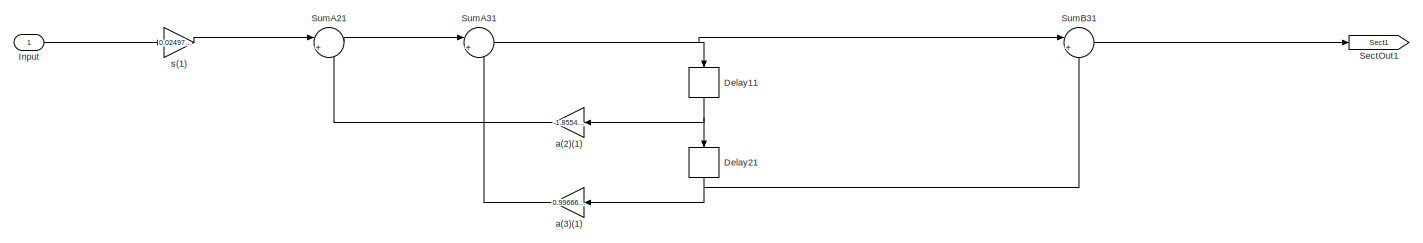
[diagram: 14KHz Bandpass Filter - part 1/6, left side, full height]
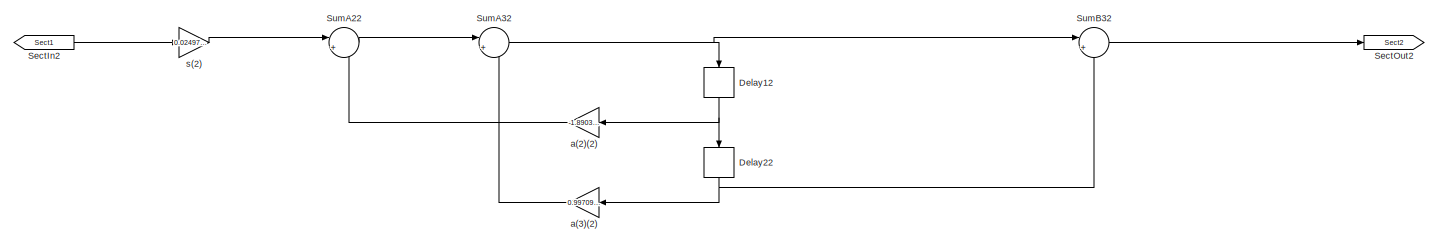
[diagram: 14KHz Bandpass Filter - part 2/6, left side, full height]
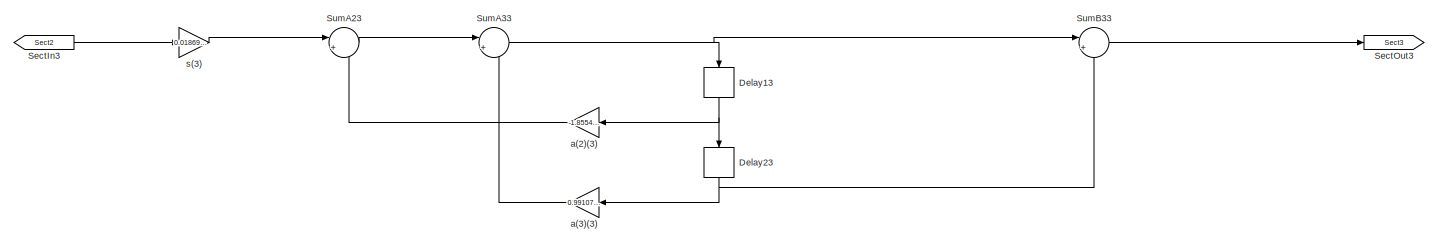
[diagram: 14KHz Bandpass Filter - part 3/6, center side, full height]
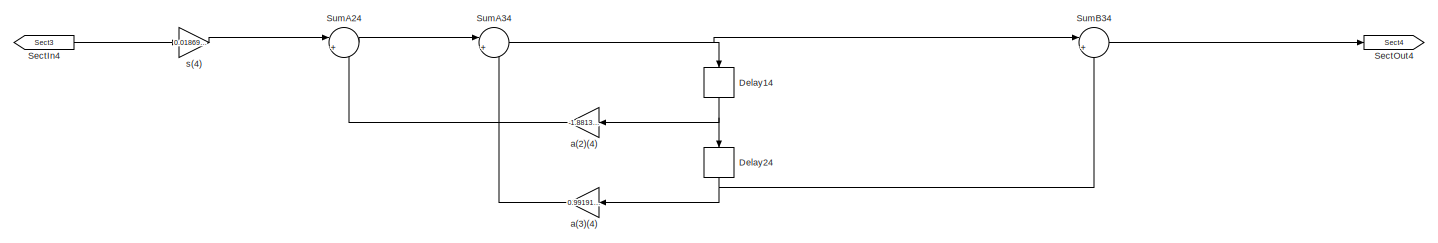
[diagram: 14KHz Bandpass Filter - part 4/6, center side, full height]
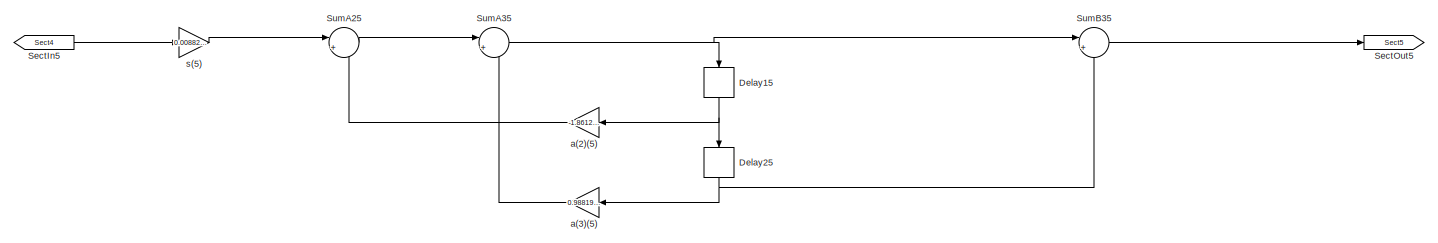
[diagram: 14KHz Bandpass Filter - part 5/6, right side, full height]
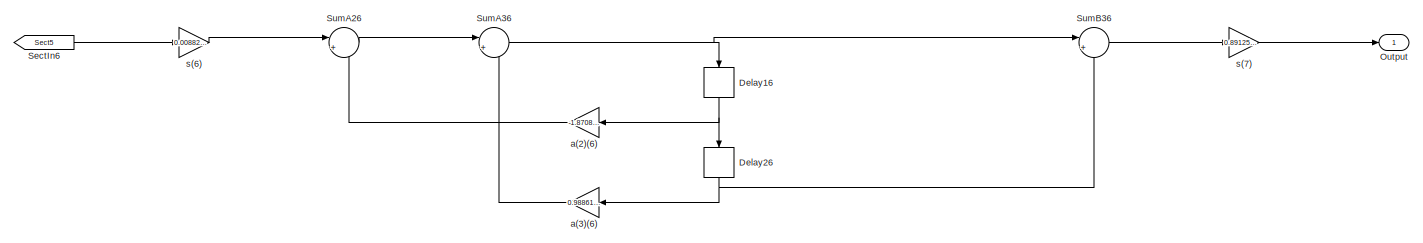
[diagram: 14KHz Bandpass Filter - part 6/6, right side, full height]
BLOCK [SubSystem] 14KHz Bandpass Filter
  ErrorFcn = dspFilterRealizedInBasicElemsAlgLoopErrFcnCallback
  Ports = [1, 1]
  RequestExecContextInheritance = off
  Tag = FilterWizardSubSystem
  UserDataPersistent = on
BLOCK [Delay] 14KHz Bandpass Filter/Delay11
  DelayLength = 1
  InitialCondition = 0
  InputPortMap = u0
  NameLocation = right
  Ports = [1, 1]
BLOCK [Delay] 14KHz Bandpass Filter/Delay12
  DelayLength = 1
  InitialCondition = 0
  InputPortMap = u0
  NameLocation = right
  Ports = [1, 1]
BLOCK [Delay] 14KHz Bandpass Filter/Delay13
  DelayLength = 1
  InitialCondition = 0
  InputPortMap = u0
  NameLocation = right
  Ports = [1, 1]
BLOCK [Delay] 14KHz Bandpass Filter/Delay14
  DelayLength = 1
  InitialCondition = 0
  InputPortMap = u0
  NameLocation = right
  Ports = [1, 1]
BLOCK [Delay] 14KHz Bandpass Filter/Delay15
  DelayLength = 1
  InitialCondition = 0
  InputPortMap = u0
  NameLocation = right
  Ports = [1, 1]
BLOCK [Delay] 14KHz Bandpass Filter/Delay16
  DelayLength = 1
  InitialCondition = 0
  InputPortMap = u0
  NameLocation = right
  Ports = [1, 1]
BLOCK [Delay] 14KHz Bandpass Filter/Delay21
  DelayLength = 1
  InitialCondition = 0
  InputPortMap = u0
  NameLocation = right
  Ports = [1, 1]
BLOCK [Delay] 14KHz Bandpass Filter/Delay22
  DelayLength = 1
  InitialCondition = 0
  InputPortMap = u0
  NameLocation = right
  Ports = [1, 1]
BLOCK [Delay] 14KHz Bandpass Filter/Delay23
  DelayLength = 1
  InitialCondition = 0
  InputPortMap = u0
  NameLocation = right
  Ports = [1, 1]
BLOCK [Delay] 14KHz Bandpass Filter/Delay24
  DelayLength = 1
  InitialCondition = 0
  InputPortMap = u0
  NameLocation = right
  Ports = [1, 1]
BLOCK [Delay] 14KHz Bandpass Filter/Delay25
  DelayLength = 1
  InitialCondition = 0
  InputPortMap = u0
  NameLocation = right
  Ports = [1, 1]
BLOCK [Delay] 14KHz Bandpass Filter/Delay26
  DelayLength = 1
  InitialCondition = 0
  InputPortMap = u0
  NameLocation = right
  Ports = [1, 1]
BLOCK [Inport] 14KHz Bandpass Filter/Input
BLOCK [Outport] 14KHz Bandpass Filter/Output
BLOCK [From] 14KHz Bandpass Filter/SectIn2
  GotoTag = Sect1
BLOCK [From] 14KHz Bandpass Filter/SectIn3
  GotoTag = Sect2
BLOCK [From] 14KHz Bandpass Filter/SectIn4
  GotoTag = Sect3
BLOCK [From] 14KHz Bandpass Filter/SectIn5
  GotoTag = Sect4
BLOCK [From] 14KHz Bandpass Filter/SectIn6
  GotoTag = Sect5
BLOCK [Goto] 14KHz Bandpass Filter/SectOut1
  GotoTag = Sect1
BLOCK [Goto] 14KHz Bandpass Filter/SectOut2
  GotoTag = Sect2
BLOCK [Goto] 14KHz Bandpass Filter/SectOut3
  GotoTag = Sect3
BLOCK [Goto] 14KHz Bandpass Filter/SectOut4
  GotoTag = Sect4
BLOCK [Goto] 14KHz Bandpass Filter/SectOut5
  GotoTag = Sect5
BLOCK [Sum] 14KHz Bandpass Filter/SumA21
  Inputs = |+-
  OutDataTypeStr = Inherit: Same as first input
  Ports = [2, 1]
  RndMeth = Nearest
  SaturateOnIntegerOverflow = on
BLOCK [Sum] 14KHz Bandpass Filter/SumA22
  Inputs = |+-
  OutDataTypeStr = Inherit: Same as first input
  Ports = [2, 1]
  RndMeth = Nearest
  SaturateOnIntegerOverflow = on
BLOCK [Sum] 14KHz Bandpass Filter/SumA23
  Inputs = |+-
  OutDataTypeStr = Inherit: Same as first input
  Ports = [2, 1]
  RndMeth = Nearest
  SaturateOnIntegerOverflow = on
BLOCK [Sum] 14KHz Bandpass Filter/SumA24
  Inputs = |+-
  OutDataTypeStr = Inherit: Same as first input
  Ports = [2, 1]
  RndMeth = Nearest
  SaturateOnIntegerOverflow = on
BLOCK [Sum] 14KHz Bandpass Filter/SumA25
  Inputs = |+-
  OutDataTypeStr = Inherit: Same as first input
  Ports = [2, 1]
  RndMeth = Nearest
  SaturateOnIntegerOverflow = on
BLOCK [Sum] 14KHz Bandpass Filter/SumA26
  Inputs = |+-
  OutDataTypeStr = Inherit: Same as first input
  Ports = [2, 1]
  RndMeth = Nearest
  SaturateOnIntegerOverflow = on
BLOCK [Sum] 14KHz Bandpass Filter/SumA31
  Inputs = |+-
  OutDataTypeStr = Inherit: Same as first input
  Ports = [2, 1]
  RndMeth = Nearest
  SaturateOnIntegerOverflow = on
BLOCK [Sum] 14KHz Bandpass Filter/SumA32
  Inputs = |+-
  OutDataTypeStr = Inherit: Same as first input
  Ports = [2, 1]
  RndMeth = Nearest
  SaturateOnIntegerOverflow = on
BLOCK [Sum] 14KHz Bandpass Filter/SumA33
  Inputs = |+-
  OutDataTypeStr = Inherit: Same as first input
  Ports = [2, 1]
  RndMeth = Nearest
  SaturateOnIntegerOverflow = on
BLOCK [Sum] 14KHz Bandpass Filter/SumA34
  Inputs = |+-
  OutDataTypeStr = Inherit: Same as first input
  Ports = [2, 1]
  RndMeth = Nearest
  SaturateOnIntegerOverflow = on
BLOCK [Sum] 14KHz Bandpass Filter/SumA35
  Inputs = |+-
  OutDataTypeStr = Inherit: Same as first input
  Ports = [2, 1]
  RndMeth = Nearest
  SaturateOnIntegerOverflow = on
BLOCK [Sum] 14KHz Bandpass Filter/SumA36
  Inputs = |+-
  OutDataTypeStr = Inherit: Same as first input
  Ports = [2, 1]
  RndMeth = Nearest
  SaturateOnIntegerOverflow = on
BLOCK [Sum] 14KHz Bandpass Filter/SumB31
  Inputs = |+-
  OutDataTypeStr = Inherit: Same as first input
  Ports = [2, 1]
  RndMeth = Nearest
  SaturateOnIntegerOverflow = on
BLOCK [Sum] 14KHz Bandpass Filter/SumB32
  Inputs = |+-
  OutDataTypeStr = Inherit: Same as first input
  Ports = [2, 1]
  RndMeth = Nearest
  SaturateOnIntegerOverflow = on
BLOCK [Sum] 14KHz Bandpass Filter/SumB33
  Inputs = |+-
  OutDataTypeStr = Inherit: Same as first input
  Ports = [2, 1]
  RndMeth = Nearest
  SaturateOnIntegerOverflow = on
BLOCK [Sum] 14KHz Bandpass Filter/SumB34
  Inputs = |+-
  OutDataTypeStr = Inherit: Same as first input
  Ports = [2, 1]
  RndMeth = Nearest
  SaturateOnIntegerOverflow = on
BLOCK [Sum] 14KHz Bandpass Filter/SumB35
  Inputs = |+-
  OutDataTypeStr = Inherit: Same as first input
  Ports = [2, 1]
  RndMeth = Nearest
  SaturateOnIntegerOverflow = on
BLOCK [Sum] 14KHz Bandpass Filter/SumB36
  Inputs = |+-
  OutDataTypeStr = Inherit: Same as first input
  Ports = [2, 1]
  RndMeth = Nearest
  SaturateOnIntegerOverflow = on
BLOCK [Gain] 14KHz Bandpass Filter/a(2)(1)
  Gain = -1.85547628075388515
  OutDataTypeStr = Inherit: Same as input
  ParamDataTypeStr = double
  RndMeth = Nearest
  SaturateOnIntegerOverflow = on
BLOCK [Gain] 14KHz Bandpass Filter/a(2)(2)
  Gain = -1.89037409301842607
  OutDataTypeStr = Inherit: Same as input
  ParamDataTypeStr = double
  RndMeth = Nearest
  SaturateOnIntegerOverflow = on
BLOCK [Gain] 14KHz Bandpass Filter/a(2)(3)
  Gain = -1.85544003350902065
  OutDataTypeStr = Inherit: Same as input
  ParamDataTypeStr = double
  RndMeth = Nearest
  SaturateOnIntegerOverflow = on
BLOCK [Gain] 14KHz Bandpass Filter/a(2)(4)
  Gain = -1.88139619531860136
  OutDataTypeStr = Inherit: Same as input
  ParamDataTypeStr = double
  RndMeth = Nearest
  SaturateOnIntegerOverflow = on
BLOCK [Gain] 14KHz Bandpass Filter/a(2)(5)
  Gain = -1.86125831898491256
  OutDataTypeStr = Inherit: Same as input
  ParamDataTypeStr = double
  RndMeth = Nearest
  SaturateOnIntegerOverflow = on
BLOCK [Gain] 14KHz Bandpass Filter/a(2)(6)
  Gain = -1.87084185582867502
  OutDataTypeStr = Inherit: Same as input
  ParamDataTypeStr = double
  RndMeth = Nearest
  SaturateOnIntegerOverflow = on
BLOCK [Gain] 14KHz Bandpass Filter/a(3)(1)
  Gain = 0.996669751260965242
  OutDataTypeStr = Inherit: Same as input
  ParamDataTypeStr = double
  RndMeth = Nearest
  SaturateOnIntegerOverflow = on
BLOCK [Gain] 14KHz Bandpass Filter/a(3)(2)
  Gain = 0.997091501071703412
  OutDataTypeStr = Inherit: Same as input
  ParamDataTypeStr = double
  RndMeth = Nearest
  SaturateOnIntegerOverflow = on
BLOCK [Gain] 14KHz Bandpass Filter/a(3)(3)
  Gain = 0.991078116538709697
  OutDataTypeStr = Inherit: Same as input
  ParamDataTypeStr = double
  RndMeth = Nearest
  SaturateOnIntegerOverflow = on
BLOCK [Gain] 14KHz Bandpass Filter/a(3)(4)
  Gain = 0.991918388588846511
  OutDataTypeStr = Inherit: Same as input
  ParamDataTypeStr = double
  RndMeth = Nearest
  SaturateOnIntegerOverflow = on
BLOCK [Gain] 14KHz Bandpass Filter/a(3)(5)
  Gain = 0.988191259658187882
  OutDataTypeStr = Inherit: Same as input
  ParamDataTypeStr = double
  RndMeth = Nearest
  SaturateOnIntegerOverflow = on
BLOCK [Gain] 14KHz Bandpass Filter/a(3)(6)
  Gain = 0.988610747171366766
  OutDataTypeStr = Inherit: Same as input
  ParamDataTypeStr = double
  RndMeth = Nearest
  SaturateOnIntegerOverflow = on
BLOCK [Gain] 14KHz Bandpass Filter/s(1)
  Gain = 0.0249744654943327288
  OutDataTypeStr = Inherit: Same as input
  ParamDataTypeStr = double
  RndMeth = Nearest
  SaturateOnIntegerOverflow = on
BLOCK [Gain] 14KHz Bandpass Filter/s(2)
  Gain = 0.0249744654943327288
  OutDataTypeStr = Inherit: Same as input
  ParamDataTypeStr = double
  RndMeth = Nearest
  SaturateOnIntegerOverflow = on
BLOCK [Gain] 14KHz Bandpass Filter/s(3)
  Gain = 0.0186903150291072434
  OutDataTypeStr = Inherit: Same as input
  ParamDataTypeStr = double
  RndMeth = Nearest
  SaturateOnIntegerOverflow = on
BLOCK [Gain] 14KHz Bandpass Filter/s(4)
  Gain = 0.0186903150291072434
  OutDataTypeStr = Inherit: Same as input
  ParamDataTypeStr = double
  RndMeth = Nearest
  SaturateOnIntegerOverflow = on
BLOCK [Gain] 14KHz Bandpass Filter/s(5)
  Gain = 0.00882552998553009019
  OutDataTypeStr = Inherit: Same as input
  ParamDataTypeStr = double
  RndMeth = Nearest
  SaturateOnIntegerOverflow = on
BLOCK [Gain] 14KHz Bandpass Filter/s(6)
  Gain = 0.00882552998553009019
  OutDataTypeStr = Inherit: Same as input
  ParamDataTypeStr = double
  RndMeth = Nearest
  SaturateOnIntegerOverflow = on
BLOCK [Gain] 14KHz Bandpass Filter/s(7)
  Gain = 0.891250938133745563
  OutDataTypeStr = Inherit: Same as input
  ParamDataTypeStr = double
  RndMeth = Nearest
  SaturateOnIntegerOverflow = on
BLOCK [SubSystem] 14KHz DPA Demodulator
  Ports = [1, 1]
  RequestExecContextInheritance = off
BLOCK [Delay] 14KHz DPA Demodulator/Delay
  DelayLength = 1
  InitialCondition = 0
  InputPortMap = u0
  Ports = [1, 1]
BLOCK [Delay] 14KHz DPA Demodulator/Delay1
  DelayLength = 1
  InitialCondition = 0
  InputPortMap = u0
  Ports = [1, 1]
BLOCK [Product] 14KHz DPA Demodulator/Divide
  Inputs = */
  Ports = [2, 1]
BLOCK [Gain] 14KHz DPA Demodulator/Gain1
  Gain = 7.5/((0.000004)*(2*pi*1000))
BLOCK [Gain] 14KHz DPA Demodulator/Gain2
  Gain = -1
BLOCK [SubSystem] 14KHz DPA Demodulator/LPF_14060Hz_Elliptical_100dB_BW_2KHz_Order_1
  ErrorFcn = dspFilterRealizedInBasicElemsAlgLoopErrFcnCallback
  Ports = [1, 1]
  RequestExecContextInheritance = off
  Tag = FilterWizardSubSystem
  UserDataPersistent = on
BLOCK [Delay] 14KHz DPA Demodulator/LPF_14060Hz_Elliptical_100dB_BW_2KHz_Order_1/Delay11
  DelayLength = 1
  InitialCondition = 0
  InputPortMap = u0
  NameLocation = right
  Ports = [1, 1]
BLOCK [Delay] 14KHz DPA Demodulator/LPF_14060Hz_Elliptical_100dB_BW_2KHz_Order_1/Delay12
  DelayLength = 1
  InitialCondition = 0
  InputPortMap = u0
  NameLocation = right
  Ports = [1, 1]
BLOCK [Delay] 14KHz DPA Demodulator/LPF_14060Hz_Elliptical_100dB_BW_2KHz_Order_1/Delay13
  DelayLength = 1
  InitialCondition = 0
  InputPortMap = u0
  NameLocation = right
  Ports = [1, 1]
BLOCK [Delay] 14KHz DPA Demodulator/LPF_14060Hz_Elliptical_100dB_BW_2KHz_Order_1/Delay14
  DelayLength = 1
  InitialCondition = 0
  InputPortMap = u0
  NameLocation = right
  Ports = [1, 1]
BLOCK [Delay] 14KHz DPA Demodulator/LPF_14060Hz_Elliptical_100dB_BW_2KHz_Order_1/Delay15
  DelayLength = 1
  InitialCondition = 0
  InputPortMap = u0
  NameLocation = right
  Ports = [1, 1]
BLOCK [Delay] 14KHz DPA Demodulator/LPF_14060Hz_Elliptical_100dB_BW_2KHz_Order_1/Delay21
  DelayLength = 1
  InitialCondition = 0
  InputPortMap = u0
  NameLocation = right
  Ports = [1, 1]
BLOCK [Delay] 14KHz DPA Demodulator/LPF_14060Hz_Elliptical_100dB_BW_2KHz_Order_1/Delay22
  DelayLength = 1
  InitialCondition = 0
  InputPortMap = u0
  NameLocation = right
  Ports = [1, 1]
BLOCK [Delay] 14KHz DPA Demodulator/LPF_14060Hz_Elliptical_100dB_BW_2KHz_Order_1/Delay23
  DelayLength = 1
  InitialCondition = 0
  InputPortMap = u0
  NameLocation = right
  Ports = [1, 1]
BLOCK [Delay] 14KHz DPA Demodulator/LPF_14060Hz_Elliptical_100dB_BW_2KHz_Order_1/Delay24
  DelayLength = 1
  InitialCondition = 0
  InputPortMap = u0
  NameLocation = right
  Ports = [1, 1]
BLOCK [Delay] 14KHz DPA Demodulator/LPF_14060Hz_Elliptical_100dB_BW_2KHz_Order_1/Delay25
  DelayLength = 1
  InitialCondition = 0
  InputPortMap = u0
  NameLocation = right
  Ports = [1, 1]
BLOCK [Inport] 14KHz DPA Demodulator/LPF_14060Hz_Elliptical_100dB_BW_2KHz_Order_1/Input
BLOCK [Outport] 14KHz DPA Demodulator/LPF_14060Hz_Elliptical_100dB_BW_2KHz_Order_1/Output
BLOCK [From] 14KHz DPA Demodulator/LPF_14060Hz_Elliptical_100dB_BW_2KHz_Order_1/SectIn2
  GotoTag = Sect1
BLOCK [From] 14KHz DPA Demodulator/LPF_14060Hz_Elliptical_100dB_BW_2KHz_Order_1/SectIn3
  GotoTag = Sect2
BLOCK [From] 14KHz DPA Demodulator/LPF_14060Hz_Elliptical_100dB_BW_2KHz_Order_1/SectIn4
  GotoTag = Sect3
BLOCK [From] 14KHz DPA Demodulator/LPF_14060Hz_Elliptical_100dB_BW_2KHz_Order_1/SectIn5
  GotoTag = Sect4
BLOCK [Goto] 14KHz DPA Demodulator/LPF_14060Hz_Elliptical_100dB_BW_2KHz_Order_1/SectOut1
  GotoTag = Sect1
BLOCK [Goto] 14KHz DPA Demodulator/LPF_14060Hz_Elliptical_100dB_BW_2KHz_Order_1/SectOut2
  GotoTag = Sect2
BLOCK [Goto] 14KHz DPA Demodulator/LPF_14060Hz_Elliptical_100dB_BW_2KHz_Order_1/SectOut3
  GotoTag = Sect3
BLOCK [Goto] 14KHz DPA Demodulator/LPF_14060Hz_Elliptical_100dB_BW_2KHz_Order_1/SectOut4
  GotoTag = Sect4
BLOCK [Sum] 14KHz DPA Demodulator/LPF_14060Hz_Elliptical_100dB_BW_2KHz_Order_1/SumA21
  Inputs = |+-
  OutDataTypeStr = Inherit: Same as first input
  Ports = [2, 1]
  RndMeth = Nearest
  SaturateOnIntegerOverflow = on
BLOCK [Sum] 14KHz DPA Demodulator/LPF_14060Hz_Elliptical_100dB_BW_2KHz_Order_1/SumA22
  Inputs = |+-
  OutDataTypeStr = Inherit: Same as first input
  Ports = [2, 1]
  RndMeth = Nearest
  SaturateOnIntegerOverflow = on
BLOCK [Sum] 14KHz DPA Demodulator/LPF_14060Hz_Elliptical_100dB_BW_2KHz_Order_1/SumA23
  Inputs = |+-
  OutDataTypeStr = Inherit: Same as first input
  Ports = [2, 1]
  RndMeth = Nearest
  SaturateOnIntegerOverflow = on
BLOCK [Sum] 14KHz DPA Demodulator/LPF_14060Hz_Elliptical_100dB_BW_2KHz_Order_1/SumA24
  Inputs = |+-
  OutDataTypeStr = Inherit: Same as first input
  Ports = [2, 1]
  RndMeth = Nearest
  SaturateOnIntegerOverflow = on
BLOCK [Sum] 14KHz DPA Demodulator/LPF_14060Hz_Elliptical_100dB_BW_2KHz_Order_1/SumA25
  Inputs = |+-
  OutDataTypeStr = Inherit: Same as first input
  Ports = [2, 1]
  RndMeth = Nearest
  SaturateOnIntegerOverflow = on
BLOCK [Sum] 14KHz DPA Demodulator/LPF_14060Hz_Elliptical_100dB_BW_2KHz_Order_1/SumA31
  Inputs = |+-
  OutDataTypeStr = Inherit: Same as first input
  Ports = [2, 1]
  RndMeth = Nearest
  SaturateOnIntegerOverflow = on
BLOCK [Sum] 14KHz DPA Demodulator/LPF_14060Hz_Elliptical_100dB_BW_2KHz_Order_1/SumA32
  Inputs = |+-
  OutDataTypeStr = Inherit: Same as first input
  Ports = [2, 1]
  RndMeth = Nearest
  SaturateOnIntegerOverflow = on
BLOCK [Sum] 14KHz DPA Demodulator/LPF_14060Hz_Elliptical_100dB_BW_2KHz_Order_1/SumA33
  Inputs = |+-
  OutDataTypeStr = Inherit: Same as first input
  Ports = [2, 1]
  RndMeth = Nearest
  SaturateOnIntegerOverflow = on
BLOCK [Sum] 14KHz DPA Demodulator/LPF_14060Hz_Elliptical_100dB_BW_2KHz_Order_1/SumA34
  Inputs = |+-
  OutDataTypeStr = Inherit: Same as first input
  Ports = [2, 1]
  RndMeth = Nearest
  SaturateOnIntegerOverflow = on
BLOCK [Sum] 14KHz DPA Demodulator/LPF_14060Hz_Elliptical_100dB_BW_2KHz_Order_1/SumA35
  Inputs = |+-
  OutDataTypeStr = Inherit: Same as first input
  Ports = [2, 1]
  RndMeth = Nearest
  SaturateOnIntegerOverflow = on
BLOCK [Sum] 14KHz DPA Demodulator/LPF_14060Hz_Elliptical_100dB_BW_2KHz_Order_1/SumB21
  Inputs = |++
  OutDataTypeStr = Inherit: Same as first input
  Ports = [2, 1]
  RndMeth = Nearest
  SaturateOnIntegerOverflow = on
BLOCK [Sum] 14KHz DPA Demodulator/LPF_14060Hz_Elliptical_100dB_BW_2KHz_Order_1/SumB22
  Inputs = |++
  OutDataTypeStr = Inherit: Same as first input
  Ports = [2, 1]
  RndMeth = Nearest
  SaturateOnIntegerOverflow = on
BLOCK [Sum] 14KHz DPA Demodulator/LPF_14060Hz_Elliptical_100dB_BW_2KHz_Order_1/SumB23
  Inputs = |++
  OutDataTypeStr = Inherit: Same as first input
  Ports = [2, 1]
  RndMeth = Nearest
  SaturateOnIntegerOverflow = on
BLOCK [Sum] 14KHz DPA Demodulator/LPF_14060Hz_Elliptical_100dB_BW_2KHz_Order_1/SumB24
  Inputs = |++
  OutDataTypeStr = Inherit: Same as first input
  Ports = [2, 1]
  RndMeth = Nearest
  SaturateOnIntegerOverflow = on
BLOCK [Sum] 14KHz DPA Demodulator/LPF_14060Hz_Elliptical_100dB_BW_2KHz_Order_1/SumB25
  Inputs = |++
  OutDataTypeStr = Inherit: Same as first input
  Ports = [2, 1]
  RndMeth = Nearest
  SaturateOnIntegerOverflow = on
BLOCK [Sum] 14KHz DPA Demodulator/LPF_14060Hz_Elliptical_100dB_BW_2KHz_Order_1/SumB31
  Inputs = |++
  OutDataTypeStr = Inherit: Same as first input
  Ports = [2, 1]
  RndMeth = Nearest
  SaturateOnIntegerOverflow = on
BLOCK [Sum] 14KHz DPA Demodulator/LPF_14060Hz_Elliptical_100dB_BW_2KHz_Order_1/SumB32
  Inputs = |++
  OutDataTypeStr = Inherit: Same as first input
  Ports = [2, 1]
  RndMeth = Nearest
  SaturateOnIntegerOverflow = on
BLOCK [Sum] 14KHz DPA Demodulator/LPF_14060Hz_Elliptical_100dB_BW_2KHz_Order_1/SumB33
  Inputs = |++
  OutDataTypeStr = Inherit: Same as first input
  Ports = [2, 1]
  RndMeth = Nearest
  SaturateOnIntegerOverflow = on
BLOCK [Sum] 14KHz DPA Demodulator/LPF_14060Hz_Elliptical_100dB_BW_2KHz_Order_1/SumB34
  Inputs = |++
  OutDataTypeStr = Inherit: Same as first input
  Ports = [2, 1]
  RndMeth = Nearest
  SaturateOnIntegerOverflow = on
BLOCK [Sum] 14KHz DPA Demodulator/LPF_14060Hz_Elliptical_100dB_BW_2KHz_Order_1/SumB35
  Inputs = |++
  OutDataTypeStr = Inherit: Same as first input
  Ports = [2, 1]
  RndMeth = Nearest
  SaturateOnIntegerOverflow = on
BLOCK [Gain] 14KHz DPA Demodulator/LPF_14060Hz_Elliptical_100dB_BW_2KHz_Order_1/a(2)(1)
  Gain = -1.87898221758911332
  OutDataTypeStr = Inherit: Same as input
  ParamDataTypeStr = double
  RndMeth = Nearest
  SaturateOnIntegerOverflow = on
BLOCK [Gain] 14KHz DPA Demodulator/LPF_14060Hz_Elliptical_100dB_BW_2KHz_Order_1/a(2)(2)
  Gain = -1.87752602459857809
  OutDataTypeStr = Inherit: Same as input
  ParamDataTypeStr = double
  RndMeth = Nearest
  SaturateOnIntegerOverflow = on
BLOCK [Gain] 14KHz DPA Demodulator/LPF_14060Hz_Elliptical_100dB_BW_2KHz_Order_1/a(2)(3)
  Gain = -1.87898197209707618
  OutDataTypeStr = Inherit: Same as input
  ParamDataTypeStr = double
  RndMeth = Nearest
  SaturateOnIntegerOverflow = on
BLOCK [Gain] 14KHz DPA Demodulator/LPF_14060Hz_Elliptical_100dB_BW_2KHz_Order_1/a(2)(4)
  Gain = -1.88087859355223719
  OutDataTypeStr = Inherit: Same as input
  ParamDataTypeStr = double
  RndMeth = Nearest
  SaturateOnIntegerOverflow = on
BLOCK [Gain] 14KHz DPA Demodulator/LPF_14060Hz_Elliptical_100dB_BW_2KHz_Order_1/a(2)(5)
  Gain = -1.88567709417204799
  OutDataTypeStr = Inherit: Same as input
  ParamDataTypeStr = double
  RndMeth = Nearest
  SaturateOnIntegerOverflow = on
BLOCK [Gain] 14KHz DPA Demodulator/LPF_14060Hz_Elliptical_100dB_BW_2KHz_Order_1/a(3)(1)
  Gain = 0.972679452787866605
  OutDataTypeStr = Inherit: Same as input
  ParamDataTypeStr = double
  RndMeth = Nearest
  SaturateOnIntegerOverflow = on
BLOCK [Gain] 14KHz DPA Demodulator/LPF_14060Hz_Elliptical_100dB_BW_2KHz_Order_1/a(3)(2)
  Gain = 0.946219904164255499
  OutDataTypeStr = Inherit: Same as input
  ParamDataTypeStr = double
  RndMeth = Nearest
  SaturateOnIntegerOverflow = on
BLOCK [Gain] 14KHz DPA Demodulator/LPF_14060Hz_Elliptical_100dB_BW_2KHz_Order_1/a(3)(3)
  Gain = 0.91374243000470845
  OutDataTypeStr = Inherit: Same as input
  ParamDataTypeStr = double
  RndMeth = Nearest
  SaturateOnIntegerOverflow = on
BLOCK [Gain] 14KHz DPA Demodulator/LPF_14060Hz_Elliptical_100dB_BW_2KHz_Order_1/a(3)(4)
  Gain = 0.888506812525805989
  OutDataTypeStr = Inherit: Same as input
  ParamDataTypeStr = double
  RndMeth = Nearest
  SaturateOnIntegerOverflow = on
BLOCK [Gain] 14KHz DPA Demodulator/LPF_14060Hz_Elliptical_100dB_BW_2KHz_Order_1/a(3)(5)
  Gain = 0.991815858951050511
  OutDataTypeStr = Inherit: Same as input
  ParamDataTypeStr = double
  RndMeth = Nearest
  SaturateOnIntegerOverflow = on
BLOCK [Gain] 14KHz DPA Demodulator/LPF_14060Hz_Elliptical_100dB_BW_2KHz_Order_1/b(2)(1)
  Gain = -1.81647554184737325
  OutDataTypeStr = Inherit: Same as input
  ParamDataTypeStr = double
  RndMeth = Nearest
  SaturateOnIntegerOverflow = on
BLOCK [Gain] 14KHz DPA Demodulator/LPF_14060Hz_Elliptical_100dB_BW_2KHz_Order_1/b(2)(2)
  Gain = -1.75093035424662147
  OutDataTypeStr = Inherit: Same as input
  ParamDataTypeStr = double
  RndMeth = Nearest
  SaturateOnIntegerOverflow = on
BLOCK [Gain] 14KHz DPA Demodulator/LPF_14060Hz_Elliptical_100dB_BW_2KHz_Order_1/b(2)(3)
  Gain = -1.51363245827891468
  OutDataTypeStr = Inherit: Same as input
  ParamDataTypeStr = double
  RndMeth = Nearest
  SaturateOnIntegerOverflow = on
BLOCK [Gain] 14KHz DPA Demodulator/LPF_14060Hz_Elliptical_100dB_BW_2KHz_Order_1/b(2)(4)
  Gain = 0.0528185058217965492
  OutDataTypeStr = Inherit: Same as input
  ParamDataTypeStr = double
  RndMeth = Nearest
  SaturateOnIntegerOverflow = on
BLOCK [Gain] 14KHz DPA Demodulator/LPF_14060Hz_Elliptical_100dB_BW_2KHz_Order_1/b(2)(5)
  Gain = -1.83716000697504289
  OutDataTypeStr = Inherit: Same as input
  ParamDataTypeStr = double
  RndMeth = Nearest
  SaturateOnIntegerOverflow = on
BLOCK [Gain] 14KHz DPA Demodulator/LPF_14060Hz_Elliptical_100dB_BW_2KHz_Order_1/s(1)
  Gain = 0.580172974020029208
  OutDataTypeStr = Inherit: Same as input
  ParamDataTypeStr = double
  RndMeth = Nearest
  SaturateOnIntegerOverflow = on
BLOCK [Gain] 14KHz DPA Demodulator/LPF_14060Hz_Elliptical_100dB_BW_2KHz_Order_1/s(2)
  Gain = 0.515700086710812577
  OutDataTypeStr = Inherit: Same as input
  ParamDataTypeStr = double
  RndMeth = Nearest
  SaturateOnIntegerOverflow = on
BLOCK [Gain] 14KHz DPA Demodulator/LPF_14060Hz_Elliptical_100dB_BW_2KHz_Order_1/s(3)
  Gain = 0.29203988558292121
  OutDataTypeStr = Inherit: Same as input
  ParamDataTypeStr = double
  RndMeth = Nearest
  SaturateOnIntegerOverflow = on
BLOCK [Gain] 14KHz DPA Demodulator/LPF_14060Hz_Elliptical_100dB_BW_2KHz_Order_1/s(4)
  Gain = 0.128171084963381893
  OutDataTypeStr = Inherit: Same as input
  ParamDataTypeStr = double
  RndMeth = Nearest
  SaturateOnIntegerOverflow = on
BLOCK [Gain] 14KHz DPA Demodulator/LPF_14060Hz_Elliptical_100dB_BW_2KHz_Order_1/s(5)
  Gain = 0.00193976712040011328
  OutDataTypeStr = Inherit: Same as input
  ParamDataTypeStr = double
  RndMeth = Nearest
  SaturateOnIntegerOverflow = on
BLOCK [SubSystem] 14KHz DPA Demodulator/LPF_14060Hz_Elliptical_100dB_BW_2KHz_Order_10
  ErrorFcn = dspFilterRealizedInBasicElemsAlgLoopErrFcnCallback
  Ports = [1, 1]
  RequestExecContextInheritance = off
  Tag = FilterWizardSubSystem
  UserDataPersistent = on
BLOCK [Delay] 14KHz DPA Demodulator/LPF_14060Hz_Elliptical_100dB_BW_2KHz_Order_10/Delay11
  DelayLength = 1
  InitialCondition = 0
  InputPortMap = u0
  NameLocation = right
  Ports = [1, 1]
BLOCK [Delay] 14KHz DPA Demodulator/LPF_14060Hz_Elliptical_100dB_BW_2KHz_Order_10/Delay12
  DelayLength = 1
  InitialCondition = 0
  InputPortMap = u0
  NameLocation = right
  Ports = [1, 1]
BLOCK [Delay] 14KHz DPA Demodulator/LPF_14060Hz_Elliptical_100dB_BW_2KHz_Order_10/Delay13
  DelayLength = 1
  InitialCondition = 0
  InputPortMap = u0
  NameLocation = right
  Ports = [1, 1]
BLOCK [Delay] 14KHz DPA Demodulator/LPF_14060Hz_Elliptical_100dB_BW_2KHz_Order_10/Delay14
  DelayLength = 1
  InitialCondition = 0
  InputPortMap = u0
  NameLocation = right
  Ports = [1, 1]
BLOCK [Delay] 14KHz DPA Demodulator/LPF_14060Hz_Elliptical_100dB_BW_2KHz_Order_10/Delay15
  DelayLength = 1
  InitialCondition = 0
  InputPortMap = u0
  NameLocation = right
  Ports = [1, 1]
BLOCK [Delay] 14KHz DPA Demodulator/LPF_14060Hz_Elliptical_100dB_BW_2KHz_Order_10/Delay21
  DelayLength = 1
  InitialCondition = 0
  InputPortMap = u0
  NameLocation = right
  Ports = [1, 1]
BLOCK [Delay] 14KHz DPA Demodulator/LPF_14060Hz_Elliptical_100dB_BW_2KHz_Order_10/Delay22
  DelayLength = 1
  InitialCondition = 0
  InputPortMap = u0
  NameLocation = right
  Ports = [1, 1]
BLOCK [Delay] 14KHz DPA Demodulator/LPF_14060Hz_Elliptical_100dB_BW_2KHz_Order_10/Delay23
  DelayLength = 1
  InitialCondition = 0
  InputPortMap = u0
  NameLocation = right
  Ports = [1, 1]
BLOCK [Delay] 14KHz DPA Demodulator/LPF_14060Hz_Elliptical_100dB_BW_2KHz_Order_10/Delay24
  DelayLength = 1
  InitialCondition = 0
  InputPortMap = u0
  NameLocation = right
  Ports = [1, 1]
BLOCK [Delay] 14KHz DPA Demodulator/LPF_14060Hz_Elliptical_100dB_BW_2KHz_Order_10/Delay25
  DelayLength = 1
  InitialCondition = 0
  InputPortMap = u0
  NameLocation = right
  Ports = [1, 1]
BLOCK [Inport] 14KHz DPA Demodulator/LPF_14060Hz_Elliptical_100dB_BW_2KHz_Order_10/Input
BLOCK [Outport] 14KHz DPA Demodulator/LPF_14060Hz_Elliptical_100dB_BW_2KHz_Order_10/Output
BLOCK [From] 14KHz DPA Demodulator/LPF_14060Hz_Elliptical_100dB_BW_2KHz_Order_10/SectIn2
  GotoTag = Sect1
BLOCK [From] 14KHz DPA Demodulator/LPF_14060Hz_Elliptical_100dB_BW_2KHz_Order_10/SectIn3
  GotoTag = Sect2
BLOCK [From] 14KHz DPA Demodulator/LPF_14060Hz_Elliptical_100dB_BW_2KHz_Order_10/SectIn4
  GotoTag = Sect3
BLOCK [From] 14KHz DPA Demodulator/LPF_14060Hz_Elliptical_100dB_BW_2KHz_Order_10/SectIn5
  GotoTag = Sect4
BLOCK [Goto] 14KHz DPA Demodulator/LPF_14060Hz_Elliptical_100dB_BW_2KHz_Order_10/SectOut1
  GotoTag = Sect1
BLOCK [Goto] 14KHz DPA Demodulator/LPF_14060Hz_Elliptical_100dB_BW_2KHz_Order_10/SectOut2
  GotoTag = Sect2
BLOCK [Goto] 14KHz DPA Demodulator/LPF_14060Hz_Elliptical_100dB_BW_2KHz_Order_10/SectOut3
  GotoTag = Sect3
BLOCK [Goto] 14KHz DPA Demodulator/LPF_14060Hz_Elliptical_100dB_BW_2KHz_Order_10/SectOut4
  GotoTag = Sect4
BLOCK [Sum] 14KHz DPA Demodulator/LPF_14060Hz_Elliptical_100dB_BW_2KHz_Order_10/SumA21
  Inputs = |+-
  OutDataTypeStr = Inherit: Same as first input
  Ports = [2, 1]
  RndMeth = Nearest
  SaturateOnIntegerOverflow = on
BLOCK [Sum] 14KHz DPA Demodulator/LPF_14060Hz_Elliptical_100dB_BW_2KHz_Order_10/SumA22
  Inputs = |+-
  OutDataTypeStr = Inherit: Same as first input
  Ports = [2, 1]
  RndMeth = Nearest
  SaturateOnIntegerOverflow = on
BLOCK [Sum] 14KHz DPA Demodulator/LPF_14060Hz_Elliptical_100dB_BW_2KHz_Order_10/SumA23
  Inputs = |+-
  OutDataTypeStr = Inherit: Same as first input
  Ports = [2, 1]
  RndMeth = Nearest
  SaturateOnIntegerOverflow = on
BLOCK [Sum] 14KHz DPA Demodulator/LPF_14060Hz_Elliptical_100dB_BW_2KHz_Order_10/SumA24
  Inputs = |+-
  OutDataTypeStr = Inherit: Same as first input
  Ports = [2, 1]
  RndMeth = Nearest
  SaturateOnIntegerOverflow = on
BLOCK [Sum] 14KHz DPA Demodulator/LPF_14060Hz_Elliptical_100dB_BW_2KHz_Order_10/SumA25
  Inputs = |+-
  OutDataTypeStr = Inherit: Same as first input
  Ports = [2, 1]
  RndMeth = Nearest
  SaturateOnIntegerOverflow = on
BLOCK [Sum] 14KHz DPA Demodulator/LPF_14060Hz_Elliptical_100dB_BW_2KHz_Order_10/SumA31
  Inputs = |+-
  OutDataTypeStr = Inherit: Same as first input
  Ports = [2, 1]
  RndMeth = Nearest
  SaturateOnIntegerOverflow = on
BLOCK [Sum] 14KHz DPA Demodulator/LPF_14060Hz_Elliptical_100dB_BW_2KHz_Order_10/SumA32
  Inputs = |+-
  OutDataTypeStr = Inherit: Same as first input
  Ports = [2, 1]
  RndMeth = Nearest
  SaturateOnIntegerOverflow = on
BLOCK [Sum] 14KHz DPA Demodulator/LPF_14060Hz_Elliptical_100dB_BW_2KHz_Order_10/SumA33
  Inputs = |+-
  OutDataTypeStr = Inherit: Same as first input
  Ports = [2, 1]
  RndMeth = Nearest
  SaturateOnIntegerOverflow = on
BLOCK [Sum] 14KHz DPA Demodulator/LPF_14060Hz_Elliptical_100dB_BW_2KHz_Order_10/SumA34
  Inputs = |+-
  OutDataTypeStr = Inherit: Same as first input
  Ports = [2, 1]
  RndMeth = Nearest
  SaturateOnIntegerOverflow = on
BLOCK [Sum] 14KHz DPA Demodulator/LPF_14060Hz_Elliptical_100dB_BW_2KHz_Order_10/SumA35
  Inputs = |+-
  OutDataTypeStr = Inherit: Same as first input
  Ports = [2, 1]
  RndMeth = Nearest
  SaturateOnIntegerOverflow = on
BLOCK [Sum] 14KHz DPA Demodulator/LPF_14060Hz_Elliptical_100dB_BW_2KHz_Order_10/SumB21
  Inputs = |++
  OutDataTypeStr = Inherit: Same as first input
  Ports = [2, 1]
  RndMeth = Nearest
  SaturateOnIntegerOverflow = on
BLOCK [Sum] 14KHz DPA Demodulator/LPF_14060Hz_Elliptical_100dB_BW_2KHz_Order_10/SumB22
  Inputs = |++
  OutDataTypeStr = Inherit: Same as first input
  Ports = [2, 1]
  RndMeth = Nearest
  SaturateOnIntegerOverflow = on
BLOCK [Sum] 14KHz DPA Demodulator/LPF_14060Hz_Elliptical_100dB_BW_2KHz_Order_10/SumB23
  Inputs = |++
  OutDataTypeStr = Inherit: Same as first input
  Ports = [2, 1]
  RndMeth = Nearest
  SaturateOnIntegerOverflow = on
BLOCK [Sum] 14KHz DPA Demodulator/LPF_14060Hz_Elliptical_100dB_BW_2KHz_Order_10/SumB24
  Inputs = |++
  OutDataTypeStr = Inherit: Same as first input
  Ports = [2, 1]
  RndMeth = Nearest
  SaturateOnIntegerOverflow = on
BLOCK [Sum] 14KHz DPA Demodulator/LPF_14060Hz_Elliptical_100dB_BW_2KHz_Order_10/SumB25
  Inputs = |++
  OutDataTypeStr = Inherit: Same as first input
  Ports = [2, 1]
  RndMeth = Nearest
  SaturateOnIntegerOverflow = on
BLOCK [Sum] 14KHz DPA Demodulator/LPF_14060Hz_Elliptical_100dB_BW_2KHz_Order_10/SumB31
  Inputs = |++
  OutDataTypeStr = Inherit: Same as first input
  Ports = [2, 1]
  RndMeth = Nearest
  SaturateOnIntegerOverflow = on
BLOCK [Sum] 14KHz DPA Demodulator/LPF_14060Hz_Elliptical_100dB_BW_2KHz_Order_10/SumB32
  Inputs = |++
  OutDataTypeStr = Inherit: Same as first input
  Ports = [2, 1]
  RndMeth = Nearest
  SaturateOnIntegerOverflow = on
BLOCK [Sum] 14KHz DPA Demodulator/LPF_14060Hz_Elliptical_100dB_BW_2KHz_Order_10/SumB33
  Inputs = |++
  OutDataTypeStr = Inherit: Same as first input
  Ports = [2, 1]
  RndMeth = Nearest
  SaturateOnIntegerOverflow = on
BLOCK [Sum] 14KHz DPA Demodulator/LPF_14060Hz_Elliptical_100dB_BW_2KHz_Order_10/SumB34
  Inputs = |++
  OutDataTypeStr = Inherit: Same as first input
  Ports = [2, 1]
  RndMeth = Nearest
  SaturateOnIntegerOverflow = on
BLOCK [Sum] 14KHz DPA Demodulator/LPF_14060Hz_Elliptical_100dB_BW_2KHz_Order_10/SumB35
  Inputs = |++
  OutDataTypeStr = Inherit: Same as first input
  Ports = [2, 1]
  RndMeth = Nearest
  SaturateOnIntegerOverflow = on
BLOCK [Gain] 14KHz DPA Demodulator/LPF_14060Hz_Elliptical_100dB_BW_2KHz_Order_10/a(2)(1)
  Gain = -1.87898221758911332
  OutDataTypeStr = Inherit: Same as input
  ParamDataTypeStr = double
  RndMeth = Nearest
  SaturateOnIntegerOverflow = on
BLOCK [Gain] 14KHz DPA Demodulator/LPF_14060Hz_Elliptical_100dB_BW_2KHz_Order_10/a(2)(2)
  Gain = -1.87752602459857809
  OutDataTypeStr = Inherit: Same as input
  ParamDataTypeStr = double
  RndMeth = Nearest
  SaturateOnIntegerOverflow = on
BLOCK [Gain] 14KHz DPA Demodulator/LPF_14060Hz_Elliptical_100dB_BW_2KHz_Order_10/a(2)(3)
  Gain = -1.87898197209707618
  OutDataTypeStr = Inherit: Same as input
  ParamDataTypeStr = double
  RndMeth = Nearest
  SaturateOnIntegerOverflow = on
BLOCK [Gain] 14KHz DPA Demodulator/LPF_14060Hz_Elliptical_100dB_BW_2KHz_Order_10/a(2)(4)
  Gain = -1.88087859355223719
  OutDataTypeStr = Inherit: Same as input
  ParamDataTypeStr = double
  RndMeth = Nearest
  SaturateOnIntegerOverflow = on
BLOCK [Gain] 14KHz DPA Demodulator/LPF_14060Hz_Elliptical_100dB_BW_2KHz_Order_10/a(2)(5)
  Gain = -1.88567709417204799
  OutDataTypeStr = Inherit: Same as input
  ParamDataTypeStr = double
  RndMeth = Nearest
  SaturateOnIntegerOverflow = on
BLOCK [Gain] 14KHz DPA Demodulator/LPF_14060Hz_Elliptical_100dB_BW_2KHz_Order_10/a(3)(1)
  Gain = 0.972679452787866605
  OutDataTypeStr = Inherit: Same as input
  ParamDataTypeStr = double
  RndMeth = Nearest
  SaturateOnIntegerOverflow = on
BLOCK [Gain] 14KHz DPA Demodulator/LPF_14060Hz_Elliptical_100dB_BW_2KHz_Order_10/a(3)(2)
  Gain = 0.946219904164255499
  OutDataTypeStr = Inherit: Same as input
  ParamDataTypeStr = double
  RndMeth = Nearest
  SaturateOnIntegerOverflow = on
BLOCK [Gain] 14KHz DPA Demodulator/LPF_14060Hz_Elliptical_100dB_BW_2KHz_Order_10/a(3)(3)
  Gain = 0.91374243000470845
  OutDataTypeStr = Inherit: Same as input
  ParamDataTypeStr = double
  RndMeth = Nearest
  SaturateOnIntegerOverflow = on
BLOCK [Gain] 14KHz DPA Demodulator/LPF_14060Hz_Elliptical_100dB_BW_2KHz_Order_10/a(3)(4)
  Gain = 0.888506812525805989
  OutDataTypeStr = Inherit: Same as input
  ParamDataTypeStr = double
  RndMeth = Nearest
  SaturateOnIntegerOverflow = on
BLOCK [Gain] 14KHz DPA Demodulator/LPF_14060Hz_Elliptical_100dB_BW_2KHz_Order_10/a(3)(5)
  Gain = 0.991815858951050511
  OutDataTypeStr = Inherit: Same as input
  ParamDataTypeStr = double
  RndMeth = Nearest
  SaturateOnIntegerOverflow = on
BLOCK [Gain] 14KHz DPA Demodulator/LPF_14060Hz_Elliptical_100dB_BW_2KHz_Order_10/b(2)(1)
  Gain = -1.81647554184737325
  OutDataTypeStr = Inherit: Same as input
  ParamDataTypeStr = double
  RndMeth = Nearest
  SaturateOnIntegerOverflow = on
BLOCK [Gain] 14KHz DPA Demodulator/LPF_14060Hz_Elliptical_100dB_BW_2KHz_Order_10/b(2)(2)
  Gain = -1.75093035424662147
  OutDataTypeStr = Inherit: Same as input
  ParamDataTypeStr = double
  RndMeth = Nearest
  SaturateOnIntegerOverflow = on
BLOCK [Gain] 14KHz DPA Demodulator/LPF_14060Hz_Elliptical_100dB_BW_2KHz_Order_10/b(2)(3)
  Gain = -1.51363245827891468
  OutDataTypeStr = Inherit: Same as input
  ParamDataTypeStr = double
  RndMeth = Nearest
  SaturateOnIntegerOverflow = on
BLOCK [Gain] 14KHz DPA Demodulator/LPF_14060Hz_Elliptical_100dB_BW_2KHz_Order_10/b(2)(4)
  Gain = 0.0528185058217965492
  OutDataTypeStr = Inherit: Same as input
  ParamDataTypeStr = double
  RndMeth = Nearest
  SaturateOnIntegerOverflow = on
BLOCK [Gain] 14KHz DPA Demodulator/LPF_14060Hz_Elliptical_100dB_BW_2KHz_Order_10/b(2)(5)
  Gain = -1.83716000697504289
  OutDataTypeStr = Inherit: Same as input
  ParamDataTypeStr = double
  RndMeth = Nearest
  SaturateOnIntegerOverflow = on
BLOCK [Gain] 14KHz DPA Demodulator/LPF_14060Hz_Elliptical_100dB_BW_2KHz_Order_10/s(1)
  Gain = 0.580172974020029208
  OutDataTypeStr = Inherit: Same as input
  ParamDataTypeStr = double
  RndMeth = Nearest
  SaturateOnIntegerOverflow = on
BLOCK [Gain] 14KHz DPA Demodulator/LPF_14060Hz_Elliptical_100dB_BW_2KHz_Order_10/s(2)
  Gain = 0.515700086710812577
  OutDataTypeStr = Inherit: Same as input
  ParamDataTypeStr = double
  RndMeth = Nearest
  SaturateOnIntegerOverflow = on
BLOCK [Gain] 14KHz DPA Demodulator/LPF_14060Hz_Elliptical_100dB_BW_2KHz_Order_10/s(3)
  Gain = 0.29203988558292121
  OutDataTypeStr = Inherit: Same as input
  ParamDataTypeStr = double
  RndMeth = Nearest
  SaturateOnIntegerOverflow = on
BLOCK [Gain] 14KHz DPA Demodulator/LPF_14060Hz_Elliptical_100dB_BW_2KHz_Order_10/s(4)
  Gain = 0.128171084963381893
  OutDataTypeStr = Inherit: Same as input
  ParamDataTypeStr = double
  RndMeth = Nearest
  SaturateOnIntegerOverflow = on
BLOCK [Gain] 14KHz DPA Demodulator/LPF_14060Hz_Elliptical_100dB_BW_2KHz_Order_10/s(5)
  Gain = 0.00193976712040011328
  OutDataTypeStr = Inherit: Same as input
  ParamDataTypeStr = double
  RndMeth = Nearest
  SaturateOnIntegerOverflow = on
BLOCK [Outport] 14KHz DPA Demodulator/Out1
BLOCK [Inport] 14KHz DPA Demodulator/Output
BLOCK [Product] 14KHz DPA Demodulator/Product10
  Ports = [2, 1]
BLOCK [Product] 14KHz DPA Demodulator/Product5
  Ports = [2, 1]
BLOCK [Product] 14KHz DPA Demodulator/Product6
  Ports = [2, 1]
BLOCK [Product] 14KHz DPA Demodulator/Product7
  Ports = [2, 1]
BLOCK [Product] 14KHz DPA Demodulator/Product8
  Ports = [2, 1]
BLOCK [Product] 14KHz DPA Demodulator/Product9
  Ports = [2, 1]
BLOCK [Scope] 14KHz DPA Demodulator/Scope
  Floating = off
  NumInputPorts = 1
  Ports = [1]
BLOCK [Scope] 14KHz DPA Demodulator/Scope5
  Floating = off
  NumInputPorts = 1
  Ports = [1]
BLOCK [Scope] 14KHz DPA Demodulator/Scope6
  Floating = off
  NumInputPorts = 1
  Ports = [1]
BLOCK [Sin] 14KHz DPA Demodulator/Sine Wave
  Frequency = 2*pi*14060
  NameLocation = left
  Phase = +(pi/2)
  Ports = [0, 1]
  SampleTime = 1/250000
  Samples = 250
BLOCK [Sin] 14KHz DPA Demodulator/Sine Wave1
  Frequency = 2*pi*14060
  NameLocation = right
  Ports = [0, 1]
  SampleTime = 1/250000
BLOCK [Sum] 14KHz DPA Demodulator/Sum
  Inputs = |++
  Ports = [2, 1]
BLOCK [Sum] 14KHz DPA Demodulator/Sum1
  Inputs = |+-
  Ports = [2, 1]
BLOCK [Trigonometry] 14KHz DPA Demodulator/Trigonometric Function1
  Operator = atan
  Ports = [1, 1]
BLOCK [SubSystem] 17KHz Bandpass Filter
  ErrorFcn = dspFilterRealizedInBasicElemsAlgLoopErrFcnCallback
  Ports = [1, 1]
  RequestExecContextInheritance = off
  Tag = FilterWizardSubSystem
  UserDataPersistent = on
BLOCK [Delay] 17KHz Bandpass Filter/Delay11
  DelayLength = 1
  InitialCondition = 0
  InputPortMap = u0
  NameLocation = right
  Ports = [1, 1]
BLOCK [Delay] 17KHz Bandpass Filter/Delay12
  DelayLength = 1
  InitialCondition = 0
  InputPortMap = u0
  NameLocation = right
  Ports = [1, 1]
BLOCK [Delay] 17KHz Bandpass Filter/Delay13
  DelayLength = 1
  InitialCondition = 0
  InputPortMap = u0
  NameLocation = right
  Ports = [1, 1]
BLOCK [Delay] 17KHz Bandpass Filter/Delay14
  DelayLength = 1
  InitialCondition = 0
  InputPortMap = u0
  NameLocation = right
  Ports = [1, 1]
BLOCK [Delay] 17KHz Bandpass Filter/Delay15
  DelayLength = 1
  InitialCondition = 0
  InputPortMap = u0
  NameLocation = right
  Ports = [1, 1]
BLOCK [Delay] 17KHz Bandpass Filter/Delay16
  DelayLength = 1
  InitialCondition = 0
  InputPortMap = u0
  NameLocation = right
  Ports = [1, 1]
BLOCK [Delay] 17KHz Bandpass Filter/Delay21
  DelayLength = 1
  InitialCondition = 0
  InputPortMap = u0
  NameLocation = right
  Ports = [1, 1]
BLOCK [Delay] 17KHz Bandpass Filter/Delay22
  DelayLength = 1
  InitialCondition = 0
  InputPortMap = u0
  NameLocation = right
  Ports = [1, 1]
BLOCK [Delay] 17KHz Bandpass Filter/Delay23
  DelayLength = 1
  InitialCondition = 0
  InputPortMap = u0
  NameLocation = right
  Ports = [1, 1]
BLOCK [Delay] 17KHz Bandpass Filter/Delay24
  DelayLength = 1
  InitialCondition = 0
  InputPortMap = u0
  NameLocation = right
  Ports = [1, 1]
BLOCK [Delay] 17KHz Bandpass Filter/Delay25
  DelayLength = 1
  InitialCondition = 0
  InputPortMap = u0
  NameLocation = right
  Ports = [1, 1]
BLOCK [Delay] 17KHz Bandpass Filter/Delay26
  DelayLength = 1
  InitialCondition = 0
  InputPortMap = u0
  NameLocation = right
  Ports = [1, 1]
BLOCK [Inport] 17KHz Bandpass Filter/Input
BLOCK [Outport] 17KHz Bandpass Filter/Output
BLOCK [From] 17KHz Bandpass Filter/SectIn2
  GotoTag = Sect1
BLOCK [From] 17KHz Bandpass Filter/SectIn3
  GotoTag = Sect2
BLOCK [From] 17KHz Bandpass Filter/SectIn4
  GotoTag = Sect3
BLOCK [From] 17KHz Bandpass Filter/SectIn5
  GotoTag = Sect4
BLOCK [From] 17KHz Bandpass Filter/SectIn6
  GotoTag = Sect5
BLOCK [Goto] 17KHz Bandpass Filter/SectOut1
  GotoTag = Sect1
BLOCK [Goto] 17KHz Bandpass Filter/SectOut2
  GotoTag = Sect2
BLOCK [Goto] 17KHz Bandpass Filter/SectOut3
  GotoTag = Sect3
BLOCK [Goto] 17KHz Bandpass Filter/SectOut4
  GotoTag = Sect4
BLOCK [Goto] 17KHz Bandpass Filter/SectOut5
  GotoTag = Sect5
BLOCK [Sum] 17KHz Bandpass Filter/SumA21
  Inputs = |+-
  OutDataTypeStr = Inherit: Same as first input
  Ports = [2, 1]
  RndMeth = Nearest
  SaturateOnIntegerOverflow = on
BLOCK [Sum] 17KHz Bandpass Filter/SumA22
  Inputs = |+-
  OutDataTypeStr = Inherit: Same as first input
  Ports = [2, 1]
  RndMeth = Nearest
  SaturateOnIntegerOverflow = on
BLOCK [Sum] 17KHz Bandpass Filter/SumA23
  Inputs = |+-
  OutDataTypeStr = Inherit: Same as first input
  Ports = [2, 1]
  RndMeth = Nearest
  SaturateOnIntegerOverflow = on
BLOCK [Sum] 17KHz Bandpass Filter/SumA24
  Inputs = |+-
  OutDataTypeStr = Inherit: Same as first input
  Ports = [2, 1]
  RndMeth = Nearest
  SaturateOnIntegerOverflow = on
BLOCK [Sum] 17KHz Bandpass Filter/SumA25
  Inputs = |+-
  OutDataTypeStr = Inherit: Same as first input
  Ports = [2, 1]
  RndMeth = Nearest
  SaturateOnIntegerOverflow = on
BLOCK [Sum] 17KHz Bandpass Filter/SumA26
  Inputs = |+-
  OutDataTypeStr = Inherit: Same as first input
  Ports = [2, 1]
  RndMeth = Nearest
  SaturateOnIntegerOverflow = on
BLOCK [Sum] 17KHz Bandpass Filter/SumA31
  Inputs = |+-
  OutDataTypeStr = Inherit: Same as first input
  Ports = [2, 1]
  RndMeth = Nearest
  SaturateOnIntegerOverflow = on
BLOCK [Sum] 17KHz Bandpass Filter/SumA32
  Inputs = |+-
  OutDataTypeStr = Inherit: Same as first input
  Ports = [2, 1]
  RndMeth = Nearest
  SaturateOnIntegerOverflow = on
BLOCK [Sum] 17KHz Bandpass Filter/SumA33
  Inputs = |+-
  OutDataTypeStr = Inherit: Same as first input
  Ports = [2, 1]
  RndMeth = Nearest
  SaturateOnIntegerOverflow = on
BLOCK [Sum] 17KHz Bandpass Filter/SumA34
  Inputs = |+-
  OutDataTypeStr = Inherit: Same as first input
  Ports = [2, 1]
  RndMeth = Nearest
  SaturateOnIntegerOverflow = on
BLOCK [Sum] 17KHz Bandpass Filter/SumA35
  Inputs = |+-
  OutDataTypeStr = Inherit: Same as first input
  Ports = [2, 1]
  RndMeth = Nearest
  SaturateOnIntegerOverflow = on
BLOCK [Sum] 17KHz Bandpass Filter/SumA36
  Inputs = |+-
  OutDataTypeStr = Inherit: Same as first input
  Ports = [2, 1]
  RndMeth = Nearest
  SaturateOnIntegerOverflow = on
BLOCK [Sum] 17KHz Bandpass Filter/SumB31
  Inputs = |+-
  OutDataTypeStr = Inherit: Same as first input
  Ports = [2, 1]
  RndMeth = Nearest
  SaturateOnIntegerOverflow = on
BLOCK [Sum] 17KHz Bandpass Filter/SumB32
  Inputs = |+-
  OutDataTypeStr = Inherit: Same as first input
  Ports = [2, 1]
  RndMeth = Nearest
  SaturateOnIntegerOverflow = on
BLOCK [Sum] 17KHz Bandpass Filter/SumB33
  Inputs = |+-
  OutDataTypeStr = Inherit: Same as first input
  Ports = [2, 1]
  RndMeth = Nearest
  SaturateOnIntegerOverflow = on
BLOCK [Sum] 17KHz Bandpass Filter/SumB34
  Inputs = |+-
  OutDataTypeStr = Inherit: Same as first input
  Ports = [2, 1]
  RndMeth = Nearest
  SaturateOnIntegerOverflow = on
BLOCK [Sum] 17KHz Bandpass Filter/SumB35
  Inputs = |+-
  OutDataTypeStr = Inherit: Same as first input
  Ports = [2, 1]
  RndMeth = Nearest
  SaturateOnIntegerOverflow = on
BLOCK [Sum] 17KHz Bandpass Filter/SumB36
  Inputs = |+-
  OutDataTypeStr = Inherit: Same as first input
  Ports = [2, 1]
  RndMeth = Nearest
  SaturateOnIntegerOverflow = on
BLOCK [Gain] 17KHz Bandpass Filter/a(2)(1)
  Gain = -1.79490617474365566
  OutDataTypeStr = Inherit: Same as input
  ParamDataTypeStr = double
  RndMeth = Nearest
  SaturateOnIntegerOverflow = on
BLOCK [Gain] 17KHz Bandpass Filter/a(2)(2)
  Gain = -1.83664366102072707
  OutDataTypeStr = Inherit: Same as input
  ParamDataTypeStr = double
  RndMeth = Nearest
  SaturateOnIntegerOverflow = on
BLOCK [Gain] 17KHz Bandpass Filter/a(2)(3)
  Gain = -1.79598178570065503
  OutDataTypeStr = Inherit: Same as input
  ParamDataTypeStr = double
  RndMeth = Nearest
  SaturateOnIntegerOverflow = on
BLOCK [Gain] 17KHz Bandpass Filter/a(2)(4)
  Gain = -1.82682896191897925
  OutDataTypeStr = Inherit: Same as input
  ParamDataTypeStr = double
  RndMeth = Nearest
  SaturateOnIntegerOverflow = on
BLOCK [Gain] 17KHz Bandpass Filter/a(2)(5)
  Gain = -1.80343450281448359
  OutDataTypeStr = Inherit: Same as input
  ParamDataTypeStr = double
  RndMeth = Nearest
  SaturateOnIntegerOverflow = on
BLOCK [Gain] 17KHz Bandpass Filter/a(2)(6)
  Gain = -1.81478470631303734
  OutDataTypeStr = Inherit: Same as input
  ParamDataTypeStr = double
  RndMeth = Nearest
  SaturateOnIntegerOverflow = on
BLOCK [Gain] 17KHz Bandpass Filter/a(3)(1)
  Gain = 0.996710356003254083
  OutDataTypeStr = Inherit: Same as input
  ParamDataTypeStr = double
  RndMeth = Nearest
  SaturateOnIntegerOverflow = on
BLOCK [Gain] 17KHz Bandpass Filter/a(3)(2)
  Gain = 0.997050880802035189
  OutDataTypeStr = Inherit: Same as input
  ParamDataTypeStr = double
  RndMeth = Nearest
  SaturateOnIntegerOverflow = on
BLOCK [Gain] 17KHz Bandpass Filter/a(3)(3)
  Gain = 0.991159132334594517
  OutDataTypeStr = Inherit: Same as input
  ParamDataTypeStr = double
  RndMeth = Nearest
  SaturateOnIntegerOverflow = on
BLOCK [Gain] 17KHz Bandpass Filter/a(3)(4)
  Gain = 0.991837310732544997
  OutDataTypeStr = Inherit: Same as input
  ParamDataTypeStr = double
  RndMeth = Nearest
  SaturateOnIntegerOverflow = on
BLOCK [Gain] 17KHz Bandpass Filter/a(3)(5)
  Gain = 0.988231779244872266
  OutDataTypeStr = Inherit: Same as input
  ParamDataTypeStr = double
  RndMeth = Nearest
  SaturateOnIntegerOverflow = on
BLOCK [Gain] 17KHz Bandpass Filter/a(3)(6)
  Gain = 0.988570212046192665
  OutDataTypeStr = Inherit: Same as input
  ParamDataTypeStr = double
  RndMeth = Nearest
  SaturateOnIntegerOverflow = on
BLOCK [Gain] 17KHz Bandpass Filter/s(1)
  Gain = 0.0249744654943329404
  OutDataTypeStr = Inherit: Same as input
  ParamDataTypeStr = double
  RndMeth = Nearest
  SaturateOnIntegerOverflow = on
BLOCK [Gain] 17KHz Bandpass Filter/s(2)
  Gain = 0.0249744654943329404
  OutDataTypeStr = Inherit: Same as input
  ParamDataTypeStr = double
  RndMeth = Nearest
  SaturateOnIntegerOverflow = on
BLOCK [Gain] 17KHz Bandpass Filter/s(3)
  Gain = 0.018690315029107403
  OutDataTypeStr = Inherit: Same as input
  ParamDataTypeStr = double
  RndMeth = Nearest
  SaturateOnIntegerOverflow = on
BLOCK [Gain] 17KHz Bandpass Filter/s(4)
  Gain = 0.018690315029107403
  OutDataTypeStr = Inherit: Same as input
  ParamDataTypeStr = double
  RndMeth = Nearest
  SaturateOnIntegerOverflow = on
BLOCK [Gain] 17KHz Bandpass Filter/s(5)
  Gain = 0.00882552998553016305
  OutDataTypeStr = Inherit: Same as input
  ParamDataTypeStr = double
  RndMeth = Nearest
  SaturateOnIntegerOverflow = on
BLOCK [Gain] 17KHz Bandpass Filter/s(6)
  Gain = 0.00882552998553016305
  OutDataTypeStr = Inherit: Same as input
  ParamDataTypeStr = double
  RndMeth = Nearest
  SaturateOnIntegerOverflow = on
BLOCK [Gain] 17KHz Bandpass Filter/s(7)
  Gain = 0.891250938133745563
  OutDataTypeStr = Inherit: Same as input
  ParamDataTypeStr = double
  RndMeth = Nearest
  SaturateOnIntegerOverflow = on
BLOCK [SubSystem] 17KHz DPA Demodulator
  Ports = [1, 1]
  RequestExecContextInheritance = off
BLOCK [Delay] 17KHz DPA Demodulator/Delay
  DelayLength = 1
  InitialCondition = 0
  InputPortMap = u0
  Ports = [1, 1]
BLOCK [Delay] 17KHz DPA Demodulator/Delay1
  DelayLength = 1
  InitialCondition = 0
  InputPortMap = u0
  Ports = [1, 1]
BLOCK [Product] 17KHz DPA Demodulator/Divide
  Inputs = */
  Ports = [2, 1]
BLOCK [Gain] 17KHz DPA Demodulator/Gain1
  Gain = 7.5/((0.000004)*(2*pi*1000))
BLOCK [Gain] 17KHz DPA Demodulator/Gain2
  Gain = -1
BLOCK [SubSystem] 17KHz DPA Demodulator/LPF_17050Hz_Elliptical_100dB_BW_2KHz_Order_1
  ErrorFcn = dspFilterRealizedInBasicElemsAlgLoopErrFcnCallback
  Ports = [1, 1]
  RequestExecContextInheritance = off
  Tag = FilterWizardSubSystem
  UserDataPersistent = on
BLOCK [Delay] 17KHz DPA Demodulator/LPF_17050Hz_Elliptical_100dB_BW_2KHz_Order_1/Delay11
  DelayLength = 1
  InitialCondition = 0
  InputPortMap = u0
  NameLocation = right
  Ports = [1, 1]
BLOCK [Delay] 17KHz DPA Demodulator/LPF_17050Hz_Elliptical_100dB_BW_2KHz_Order_1/Delay12
  DelayLength = 1
  InitialCondition = 0
  InputPortMap = u0
  NameLocation = right
  Ports = [1, 1]
BLOCK [Delay] 17KHz DPA Demodulator/LPF_17050Hz_Elliptical_100dB_BW_2KHz_Order_1/Delay13
  DelayLength = 1
  InitialCondition = 0
  InputPortMap = u0
  NameLocation = right
  Ports = [1, 1]
BLOCK [Delay] 17KHz DPA Demodulator/LPF_17050Hz_Elliptical_100dB_BW_2KHz_Order_1/Delay14
  DelayLength = 1
  InitialCondition = 0
  InputPortMap = u0
  NameLocation = right
  Ports = [1, 1]
BLOCK [Delay] 17KHz DPA Demodulator/LPF_17050Hz_Elliptical_100dB_BW_2KHz_Order_1/Delay15
  DelayLength = 1
  InitialCondition = 0
  InputPortMap = u0
  NameLocation = right
  Ports = [1, 1]
BLOCK [Delay] 17KHz DPA Demodulator/LPF_17050Hz_Elliptical_100dB_BW_2KHz_Order_1/Delay21
  DelayLength = 1
  InitialCondition = 0
  InputPortMap = u0
  NameLocation = right
  Ports = [1, 1]
BLOCK [Delay] 17KHz DPA Demodulator/LPF_17050Hz_Elliptical_100dB_BW_2KHz_Order_1/Delay22
  DelayLength = 1
  InitialCondition = 0
  InputPortMap = u0
  NameLocation = right
  Ports = [1, 1]
BLOCK [Delay] 17KHz DPA Demodulator/LPF_17050Hz_Elliptical_100dB_BW_2KHz_Order_1/Delay23
  DelayLength = 1
  InitialCondition = 0
  InputPortMap = u0
  NameLocation = right
  Ports = [1, 1]
BLOCK [Delay] 17KHz DPA Demodulator/LPF_17050Hz_Elliptical_100dB_BW_2KHz_Order_1/Delay24
  DelayLength = 1
  InitialCondition = 0
  InputPortMap = u0
  NameLocation = right
  Ports = [1, 1]
BLOCK [Delay] 17KHz DPA Demodulator/LPF_17050Hz_Elliptical_100dB_BW_2KHz_Order_1/Delay25
  DelayLength = 1
  InitialCondition = 0
  InputPortMap = u0
  NameLocation = right
  Ports = [1, 1]
BLOCK [Inport] 17KHz DPA Demodulator/LPF_17050Hz_Elliptical_100dB_BW_2KHz_Order_1/Input
BLOCK [Outport] 17KHz DPA Demodulator/LPF_17050Hz_Elliptical_100dB_BW_2KHz_Order_1/Output
BLOCK [From] 17KHz DPA Demodulator/LPF_17050Hz_Elliptical_100dB_BW_2KHz_Order_1/SectIn2
  GotoTag = Sect1
BLOCK [From] 17KHz DPA Demodulator/LPF_17050Hz_Elliptical_100dB_BW_2KHz_Order_1/SectIn3
  GotoTag = Sect2
BLOCK [From] 17KHz DPA Demodulator/LPF_17050Hz_Elliptical_100dB_BW_2KHz_Order_1/SectIn4
  GotoTag = Sect3
BLOCK [From] 17KHz DPA Demodulator/LPF_17050Hz_Elliptical_100dB_BW_2KHz_Order_1/SectIn5
  GotoTag = Sect4
BLOCK [Goto] 17KHz DPA Demodulator/LPF_17050Hz_Elliptical_100dB_BW_2KHz_Order_1/SectOut1
  GotoTag = Sect1
BLOCK [Goto] 17KHz DPA Demodulator/LPF_17050Hz_Elliptical_100dB_BW_2KHz_Order_1/SectOut2
  GotoTag = Sect2
BLOCK [Goto] 17KHz DPA Demodulator/LPF_17050Hz_Elliptical_100dB_BW_2KHz_Order_1/SectOut3
  GotoTag = Sect3
BLOCK [Goto] 17KHz DPA Demodulator/LPF_17050Hz_Elliptical_100dB_BW_2KHz_Order_1/SectOut4
  GotoTag = Sect4
BLOCK [Sum] 17KHz DPA Demodulator/LPF_17050Hz_Elliptical_100dB_BW_2KHz_Order_1/SumA21
  Inputs = |+-
  OutDataTypeStr = Inherit: Same as first input
  Ports = [2, 1]
  RndMeth = Nearest
  SaturateOnIntegerOverflow = on
BLOCK [Sum] 17KHz DPA Demodulator/LPF_17050Hz_Elliptical_100dB_BW_2KHz_Order_1/SumA22
  Inputs = |+-
  OutDataTypeStr = Inherit: Same as first input
  Ports = [2, 1]
  RndMeth = Nearest
  SaturateOnIntegerOverflow = on
BLOCK [Sum] 17KHz DPA Demodulator/LPF_17050Hz_Elliptical_100dB_BW_2KHz_Order_1/SumA23
  Inputs = |+-
  OutDataTypeStr = Inherit: Same as first input
  Ports = [2, 1]
  RndMeth = Nearest
  SaturateOnIntegerOverflow = on
BLOCK [Sum] 17KHz DPA Demodulator/LPF_17050Hz_Elliptical_100dB_BW_2KHz_Order_1/SumA24
  Inputs = |+-
  OutDataTypeStr = Inherit: Same as first input
  Ports = [2, 1]
  RndMeth = Nearest
  SaturateOnIntegerOverflow = on
BLOCK [Sum] 17KHz DPA Demodulator/LPF_17050Hz_Elliptical_100dB_BW_2KHz_Order_1/SumA25
  Inputs = |+-
  OutDataTypeStr = Inherit: Same as first input
  Ports = [2, 1]
  RndMeth = Nearest
  SaturateOnIntegerOverflow = on
BLOCK [Sum] 17KHz DPA Demodulator/LPF_17050Hz_Elliptical_100dB_BW_2KHz_Order_1/SumA31
  Inputs = |+-
  OutDataTypeStr = Inherit: Same as first input
  Ports = [2, 1]
  RndMeth = Nearest
  SaturateOnIntegerOverflow = on
BLOCK [Sum] 17KHz DPA Demodulator/LPF_17050Hz_Elliptical_100dB_BW_2KHz_Order_1/SumA32
  Inputs = |+-
  OutDataTypeStr = Inherit: Same as first input
  Ports = [2, 1]
  RndMeth = Nearest
  SaturateOnIntegerOverflow = on
BLOCK [Sum] 17KHz DPA Demodulator/LPF_17050Hz_Elliptical_100dB_BW_2KHz_Order_1/SumA33
  Inputs = |+-
  OutDataTypeStr = Inherit: Same as first input
  Ports = [2, 1]
  RndMeth = Nearest
  SaturateOnIntegerOverflow = on
BLOCK [Sum] 17KHz DPA Demodulator/LPF_17050Hz_Elliptical_100dB_BW_2KHz_Order_1/SumA34
  Inputs = |+-
  OutDataTypeStr = Inherit: Same as first input
  Ports = [2, 1]
  RndMeth = Nearest
  SaturateOnIntegerOverflow = on
BLOCK [Sum] 17KHz DPA Demodulator/LPF_17050Hz_Elliptical_100dB_BW_2KHz_Order_1/SumA35
  Inputs = |+-
  OutDataTypeStr = Inherit: Same as first input
  Ports = [2, 1]
  RndMeth = Nearest
  SaturateOnIntegerOverflow = on
BLOCK [Sum] 17KHz DPA Demodulator/LPF_17050Hz_Elliptical_100dB_BW_2KHz_Order_1/SumB21
  Inputs = |++
  OutDataTypeStr = Inherit: Same as first input
  Ports = [2, 1]
  RndMeth = Nearest
  SaturateOnIntegerOverflow = on
BLOCK [Sum] 17KHz DPA Demodulator/LPF_17050Hz_Elliptical_100dB_BW_2KHz_Order_1/SumB22
  Inputs = |++
  OutDataTypeStr = Inherit: Same as first input
  Ports = [2, 1]
  RndMeth = Nearest
  SaturateOnIntegerOverflow = on
BLOCK [Sum] 17KHz DPA Demodulator/LPF_17050Hz_Elliptical_100dB_BW_2KHz_Order_1/SumB23
  Inputs = |++
  OutDataTypeStr = Inherit: Same as first input
  Ports = [2, 1]
  RndMeth = Nearest
  SaturateOnIntegerOverflow = on
BLOCK [Sum] 17KHz DPA Demodulator/LPF_17050Hz_Elliptical_100dB_BW_2KHz_Order_1/SumB24
  Inputs = |++
  OutDataTypeStr = Inherit: Same as first input
  Ports = [2, 1]
  RndMeth = Nearest
  SaturateOnIntegerOverflow = on
BLOCK [Sum] 17KHz DPA Demodulator/LPF_17050Hz_Elliptical_100dB_BW_2KHz_Order_1/SumB25
  Inputs = |++
  OutDataTypeStr = Inherit: Same as first input
  Ports = [2, 1]
  RndMeth = Nearest
  SaturateOnIntegerOverflow = on
BLOCK [Sum] 17KHz DPA Demodulator/LPF_17050Hz_Elliptical_100dB_BW_2KHz_Order_1/SumB31
  Inputs = |++
  OutDataTypeStr = Inherit: Same as first input
  Ports = [2, 1]
  RndMeth = Nearest
  SaturateOnIntegerOverflow = on
BLOCK [Sum] 17KHz DPA Demodulator/LPF_17050Hz_Elliptical_100dB_BW_2KHz_Order_1/SumB32
  Inputs = |++
  OutDataTypeStr = Inherit: Same as first input
  Ports = [2, 1]
  RndMeth = Nearest
  SaturateOnIntegerOverflow = on
BLOCK [Sum] 17KHz DPA Demodulator/LPF_17050Hz_Elliptical_100dB_BW_2KHz_Order_1/SumB33
  Inputs = |++
  OutDataTypeStr = Inherit: Same as first input
  Ports = [2, 1]
  RndMeth = Nearest
  SaturateOnIntegerOverflow = on
BLOCK [Sum] 17KHz DPA Demodulator/LPF_17050Hz_Elliptical_100dB_BW_2KHz_Order_1/SumB34
  Inputs = |++
  OutDataTypeStr = Inherit: Same as first input
  Ports = [2, 1]
  RndMeth = Nearest
  SaturateOnIntegerOverflow = on
BLOCK [Sum] 17KHz DPA Demodulator/LPF_17050Hz_Elliptical_100dB_BW_2KHz_Order_1/SumB35
  Inputs = |++
  OutDataTypeStr = Inherit: Same as first input
  Ports = [2, 1]
  RndMeth = Nearest
  SaturateOnIntegerOverflow = on
BLOCK [Gain] 17KHz DPA Demodulator/LPF_17050Hz_Elliptical_100dB_BW_2KHz_Order_1/a(2)(1)
  Gain = -1.82612657783103138
  OutDataTypeStr = Inherit: Same as input
  ParamDataTypeStr = double
  RndMeth = Nearest
  SaturateOnIntegerOverflow = on
BLOCK [Gain] 17KHz DPA Demodulator/LPF_17050Hz_Elliptical_100dB_BW_2KHz_Order_1/a(2)(2)
  Gain = -1.83146152731918743
  OutDataTypeStr = Inherit: Same as input
  ParamDataTypeStr = double
  RndMeth = Nearest
  SaturateOnIntegerOverflow = on
BLOCK [Gain] 17KHz DPA Demodulator/LPF_17050Hz_Elliptical_100dB_BW_2KHz_Order_1/a(2)(3)
  Gain = -1.84281716345948055
  OutDataTypeStr = Inherit: Same as input
  ParamDataTypeStr = double
  RndMeth = Nearest
  SaturateOnIntegerOverflow = on
BLOCK [Gain] 17KHz DPA Demodulator/LPF_17050Hz_Elliptical_100dB_BW_2KHz_Order_1/a(2)(4)
  Gain = -1.85278637266607449
  OutDataTypeStr = Inherit: Same as input
  ParamDataTypeStr = double
  RndMeth = Nearest
  SaturateOnIntegerOverflow = on
BLOCK [Gain] 17KHz DPA Demodulator/LPF_17050Hz_Elliptical_100dB_BW_2KHz_Order_1/a(2)(5)
  Gain = -1.83061408762004429
  OutDataTypeStr = Inherit: Same as input
  ParamDataTypeStr = double
  RndMeth = Nearest
  SaturateOnIntegerOverflow = on
BLOCK [Gain] 17KHz DPA Demodulator/LPF_17050Hz_Elliptical_100dB_BW_2KHz_Order_1/a(3)(1)
  Gain = 0.966782484775744022
  OutDataTypeStr = Inherit: Same as input
  ParamDataTypeStr = double
  RndMeth = Nearest
  SaturateOnIntegerOverflow = on
BLOCK [Gain] 17KHz DPA Demodulator/LPF_17050Hz_Elliptical_100dB_BW_2KHz_Order_1/a(3)(2)
  Gain = 0.934600642808741888
  OutDataTypeStr = Inherit: Same as input
  ParamDataTypeStr = double
  RndMeth = Nearest
  SaturateOnIntegerOverflow = on
BLOCK [Gain] 17KHz DPA Demodulator/LPF_17050Hz_Elliptical_100dB_BW_2KHz_Order_1/a(3)(3)
  Gain = 0.895040408285937228
  OutDataTypeStr = Inherit: Same as input
  ParamDataTypeStr = double
  RndMeth = Nearest
  SaturateOnIntegerOverflow = on
BLOCK [Gain] 17KHz DPA Demodulator/LPF_17050Hz_Elliptical_100dB_BW_2KHz_Order_1/a(3)(4)
  Gain = 0.864253555409927987
  OutDataTypeStr = Inherit: Same as input
  ParamDataTypeStr = double
  RndMeth = Nearest
  SaturateOnIntegerOverflow = on
BLOCK [Gain] 17KHz DPA Demodulator/LPF_17050Hz_Elliptical_100dB_BW_2KHz_Order_1/a(3)(5)
  Gain = 0.990043340894612323
  OutDataTypeStr = Inherit: Same as input
  ParamDataTypeStr = double
  RndMeth = Nearest
  SaturateOnIntegerOverflow = on
BLOCK [Gain] 17KHz DPA Demodulator/LPF_17050Hz_Elliptical_100dB_BW_2KHz_Order_1/b(2)(1)
  Gain = -1.72680365748724896
  OutDataTypeStr = Inherit: Same as input
  ParamDataTypeStr = double
  RndMeth = Nearest
  SaturateOnIntegerOverflow = on
BLOCK [Gain] 17KHz DPA Demodulator/LPF_17050Hz_Elliptical_100dB_BW_2KHz_Order_1/b(2)(2)
  Gain = -1.63231784858286111
  OutDataTypeStr = Inherit: Same as input
  ParamDataTypeStr = double
  RndMeth = Nearest
  SaturateOnIntegerOverflow = on
BLOCK [Gain] 17KHz DPA Demodulator/LPF_17050Hz_Elliptical_100dB_BW_2KHz_Order_1/b(2)(3)
  Gain = -1.30301199326618478
  OutDataTypeStr = Inherit: Same as input
  ParamDataTypeStr = double
  RndMeth = Nearest
  SaturateOnIntegerOverflow = on
BLOCK [Gain] 17KHz DPA Demodulator/LPF_17050Hz_Elliptical_100dB_BW_2KHz_Order_1/b(2)(4)
  Gain = 0.465745887779238477
  OutDataTypeStr = Inherit: Same as input
  ParamDataTypeStr = double
  RndMeth = Nearest
  SaturateOnIntegerOverflow = on
BLOCK [Gain] 17KHz DPA Demodulator/LPF_17050Hz_Elliptical_100dB_BW_2KHz_Order_1/b(2)(5)
  Gain = -1.75695112678369925
  OutDataTypeStr = Inherit: Same as input
  ParamDataTypeStr = double
  RndMeth = Nearest
  SaturateOnIntegerOverflow = on
BLOCK [Gain] 17KHz DPA Demodulator/LPF_17050Hz_Elliptical_100dB_BW_2KHz_Order_1/s(1)
  Gain = 0.585069910569754659
  OutDataTypeStr = Inherit: Same as input
  ParamDataTypeStr = double
  RndMeth = Nearest
  SaturateOnIntegerOverflow = on
BLOCK [Gain] 17KHz DPA Demodulator/LPF_17050Hz_Elliptical_100dB_BW_2KHz_Order_1/s(2)
  Gain = 0.524506431122447547
  OutDataTypeStr = Inherit: Same as input
  ParamDataTypeStr = double
  RndMeth = Nearest
  SaturateOnIntegerOverflow = on
BLOCK [Gain] 17KHz DPA Demodulator/LPF_17050Hz_Elliptical_100dB_BW_2KHz_Order_1/s(3)
  Gain = 0.306168010677719094
  OutDataTypeStr = Inherit: Same as input
  ParamDataTypeStr = double
  RndMeth = Nearest
  SaturateOnIntegerOverflow = on
BLOCK [Gain] 17KHz DPA Demodulator/LPF_17050Hz_Elliptical_100dB_BW_2KHz_Order_1/s(4)
  Gain = 0.160407946653717187
  OutDataTypeStr = Inherit: Same as input
  ParamDataTypeStr = double
  RndMeth = Nearest
  SaturateOnIntegerOverflow = on
BLOCK [Gain] 17KHz DPA Demodulator/LPF_17050Hz_Elliptical_100dB_BW_2KHz_Order_1/s(5)
  Gain = 0.0019521403561857005
  OutDataTypeStr = Inherit: Same as input
  ParamDataTypeStr = double
  RndMeth = Nearest
  SaturateOnIntegerOverflow = on
BLOCK [SubSystem] 17KHz DPA Demodulator/LPF_17050Hz_Elliptical_100dB_BW_2KHz_Order_10
  ErrorFcn = dspFilterRealizedInBasicElemsAlgLoopErrFcnCallback
  Ports = [1, 1]
  RequestExecContextInheritance = off
  Tag = FilterWizardSubSystem
  UserDataPersistent = on
BLOCK [Delay] 17KHz DPA Demodulator/LPF_17050Hz_Elliptical_100dB_BW_2KHz_Order_10/Delay11
  DelayLength = 1
  InitialCondition = 0
  InputPortMap = u0
  NameLocation = right
  Ports = [1, 1]
BLOCK [Delay] 17KHz DPA Demodulator/LPF_17050Hz_Elliptical_100dB_BW_2KHz_Order_10/Delay12
  DelayLength = 1
  InitialCondition = 0
  InputPortMap = u0
  NameLocation = right
  Ports = [1, 1]
BLOCK [Delay] 17KHz DPA Demodulator/LPF_17050Hz_Elliptical_100dB_BW_2KHz_Order_10/Delay13
  DelayLength = 1
  InitialCondition = 0
  InputPortMap = u0
  NameLocation = right
  Ports = [1, 1]
BLOCK [Delay] 17KHz DPA Demodulator/LPF_17050Hz_Elliptical_100dB_BW_2KHz_Order_10/Delay14
  DelayLength = 1
  InitialCondition = 0
  InputPortMap = u0
  NameLocation = right
  Ports = [1, 1]
BLOCK [Delay] 17KHz DPA Demodulator/LPF_17050Hz_Elliptical_100dB_BW_2KHz_Order_10/Delay15
  DelayLength = 1
  InitialCondition = 0
  InputPortMap = u0
  NameLocation = right
  Ports = [1, 1]
BLOCK [Delay] 17KHz DPA Demodulator/LPF_17050Hz_Elliptical_100dB_BW_2KHz_Order_10/Delay21
  DelayLength = 1
  InitialCondition = 0
  InputPortMap = u0
  NameLocation = right
  Ports = [1, 1]
BLOCK [Delay] 17KHz DPA Demodulator/LPF_17050Hz_Elliptical_100dB_BW_2KHz_Order_10/Delay22
  DelayLength = 1
  InitialCondition = 0
  InputPortMap = u0
  NameLocation = right
  Ports = [1, 1]
BLOCK [Delay] 17KHz DPA Demodulator/LPF_17050Hz_Elliptical_100dB_BW_2KHz_Order_10/Delay23
  DelayLength = 1
  InitialCondition = 0
  InputPortMap = u0
  NameLocation = right
  Ports = [1, 1]
BLOCK [Delay] 17KHz DPA Demodulator/LPF_17050Hz_Elliptical_100dB_BW_2KHz_Order_10/Delay24
  DelayLength = 1
  InitialCondition = 0
  InputPortMap = u0
  NameLocation = right
  Ports = [1, 1]
BLOCK [Delay] 17KHz DPA Demodulator/LPF_17050Hz_Elliptical_100dB_BW_2KHz_Order_10/Delay25
  DelayLength = 1
  InitialCondition = 0
  InputPortMap = u0
  NameLocation = right
  Ports = [1, 1]
BLOCK [Inport] 17KHz DPA Demodulator/LPF_17050Hz_Elliptical_100dB_BW_2KHz_Order_10/Input
BLOCK [Outport] 17KHz DPA Demodulator/LPF_17050Hz_Elliptical_100dB_BW_2KHz_Order_10/Output
BLOCK [From] 17KHz DPA Demodulator/LPF_17050Hz_Elliptical_100dB_BW_2KHz_Order_10/SectIn2
  GotoTag = Sect1
BLOCK [From] 17KHz DPA Demodulator/LPF_17050Hz_Elliptical_100dB_BW_2KHz_Order_10/SectIn3
  GotoTag = Sect2
BLOCK [From] 17KHz DPA Demodulator/LPF_17050Hz_Elliptical_100dB_BW_2KHz_Order_10/SectIn4
  GotoTag = Sect3
BLOCK [From] 17KHz DPA Demodulator/LPF_17050Hz_Elliptical_100dB_BW_2KHz_Order_10/SectIn5
  GotoTag = Sect4
BLOCK [Goto] 17KHz DPA Demodulator/LPF_17050Hz_Elliptical_100dB_BW_2KHz_Order_10/SectOut1
  GotoTag = Sect1
BLOCK [Goto] 17KHz DPA Demodulator/LPF_17050Hz_Elliptical_100dB_BW_2KHz_Order_10/SectOut2
  GotoTag = Sect2
BLOCK [Goto] 17KHz DPA Demodulator/LPF_17050Hz_Elliptical_100dB_BW_2KHz_Order_10/SectOut3
  GotoTag = Sect3
BLOCK [Goto] 17KHz DPA Demodulator/LPF_17050Hz_Elliptical_100dB_BW_2KHz_Order_10/SectOut4
  GotoTag = Sect4
BLOCK [Sum] 17KHz DPA Demodulator/LPF_17050Hz_Elliptical_100dB_BW_2KHz_Order_10/SumA21
  Inputs = |+-
  OutDataTypeStr = Inherit: Same as first input
  Ports = [2, 1]
  RndMeth = Nearest
  SaturateOnIntegerOverflow = on
BLOCK [Sum] 17KHz DPA Demodulator/LPF_17050Hz_Elliptical_100dB_BW_2KHz_Order_10/SumA22
  Inputs = |+-
  OutDataTypeStr = Inherit: Same as first input
  Ports = [2, 1]
  RndMeth = Nearest
  SaturateOnIntegerOverflow = on
BLOCK [Sum] 17KHz DPA Demodulator/LPF_17050Hz_Elliptical_100dB_BW_2KHz_Order_10/SumA23
  Inputs = |+-
  OutDataTypeStr = Inherit: Same as first input
  Ports = [2, 1]
  RndMeth = Nearest
  SaturateOnIntegerOverflow = on
BLOCK [Sum] 17KHz DPA Demodulator/LPF_17050Hz_Elliptical_100dB_BW_2KHz_Order_10/SumA24
  Inputs = |+-
  OutDataTypeStr = Inherit: Same as first input
  Ports = [2, 1]
  RndMeth = Nearest
  SaturateOnIntegerOverflow = on
BLOCK [Sum] 17KHz DPA Demodulator/LPF_17050Hz_Elliptical_100dB_BW_2KHz_Order_10/SumA25
  Inputs = |+-
  OutDataTypeStr = Inherit: Same as first input
  Ports = [2, 1]
  RndMeth = Nearest
  SaturateOnIntegerOverflow = on
BLOCK [Sum] 17KHz DPA Demodulator/LPF_17050Hz_Elliptical_100dB_BW_2KHz_Order_10/SumA31
  Inputs = |+-
  OutDataTypeStr = Inherit: Same as first input
  Ports = [2, 1]
  RndMeth = Nearest
  SaturateOnIntegerOverflow = on
BLOCK [Sum] 17KHz DPA Demodulator/LPF_17050Hz_Elliptical_100dB_BW_2KHz_Order_10/SumA32
  Inputs = |+-
  OutDataTypeStr = Inherit: Same as first input
  Ports = [2, 1]
  RndMeth = Nearest
  SaturateOnIntegerOverflow = on
BLOCK [Sum] 17KHz DPA Demodulator/LPF_17050Hz_Elliptical_100dB_BW_2KHz_Order_10/SumA33
  Inputs = |+-
  OutDataTypeStr = Inherit: Same as first input
  Ports = [2, 1]
  RndMeth = Nearest
  SaturateOnIntegerOverflow = on
BLOCK [Sum] 17KHz DPA Demodulator/LPF_17050Hz_Elliptical_100dB_BW_2KHz_Order_10/SumA34
  Inputs = |+-
  OutDataTypeStr = Inherit: Same as first input
  Ports = [2, 1]
  RndMeth = Nearest
  SaturateOnIntegerOverflow = on
BLOCK [Sum] 17KHz DPA Demodulator/LPF_17050Hz_Elliptical_100dB_BW_2KHz_Order_10/SumA35
  Inputs = |+-
  OutDataTypeStr = Inherit: Same as first input
  Ports = [2, 1]
  RndMeth = Nearest
  SaturateOnIntegerOverflow = on
BLOCK [Sum] 17KHz DPA Demodulator/LPF_17050Hz_Elliptical_100dB_BW_2KHz_Order_10/SumB21
  Inputs = |++
  OutDataTypeStr = Inherit: Same as first input
  Ports = [2, 1]
  RndMeth = Nearest
  SaturateOnIntegerOverflow = on
BLOCK [Sum] 17KHz DPA Demodulator/LPF_17050Hz_Elliptical_100dB_BW_2KHz_Order_10/SumB22
  Inputs = |++
  OutDataTypeStr = Inherit: Same as first input
  Ports = [2, 1]
  RndMeth = Nearest
  SaturateOnIntegerOverflow = on
BLOCK [Sum] 17KHz DPA Demodulator/LPF_17050Hz_Elliptical_100dB_BW_2KHz_Order_10/SumB23
  Inputs = |++
  OutDataTypeStr = Inherit: Same as first input
  Ports = [2, 1]
  RndMeth = Nearest
  SaturateOnIntegerOverflow = on
BLOCK [Sum] 17KHz DPA Demodulator/LPF_17050Hz_Elliptical_100dB_BW_2KHz_Order_10/SumB24
  Inputs = |++
  OutDataTypeStr = Inherit: Same as first input
  Ports = [2, 1]
  RndMeth = Nearest
  SaturateOnIntegerOverflow = on
BLOCK [Sum] 17KHz DPA Demodulator/LPF_17050Hz_Elliptical_100dB_BW_2KHz_Order_10/SumB25
  Inputs = |++
  OutDataTypeStr = Inherit: Same as first input
  Ports = [2, 1]
  RndMeth = Nearest
  SaturateOnIntegerOverflow = on
BLOCK [Sum] 17KHz DPA Demodulator/LPF_17050Hz_Elliptical_100dB_BW_2KHz_Order_10/SumB31
  Inputs = |++
  OutDataTypeStr = Inherit: Same as first input
  Ports = [2, 1]
  RndMeth = Nearest
  SaturateOnIntegerOverflow = on
BLOCK [Sum] 17KHz DPA Demodulator/LPF_17050Hz_Elliptical_100dB_BW_2KHz_Order_10/SumB32
  Inputs = |++
  OutDataTypeStr = Inherit: Same as first input
  Ports = [2, 1]
  RndMeth = Nearest
  SaturateOnIntegerOverflow = on
BLOCK [Sum] 17KHz DPA Demodulator/LPF_17050Hz_Elliptical_100dB_BW_2KHz_Order_10/SumB33
  Inputs = |++
  OutDataTypeStr = Inherit: Same as first input
  Ports = [2, 1]
  RndMeth = Nearest
  SaturateOnIntegerOverflow = on
BLOCK [Sum] 17KHz DPA Demodulator/LPF_17050Hz_Elliptical_100dB_BW_2KHz_Order_10/SumB34
  Inputs = |++
  OutDataTypeStr = Inherit: Same as first input
  Ports = [2, 1]
  RndMeth = Nearest
  SaturateOnIntegerOverflow = on
BLOCK [Sum] 17KHz DPA Demodulator/LPF_17050Hz_Elliptical_100dB_BW_2KHz_Order_10/SumB35
  Inputs = |++
  OutDataTypeStr = Inherit: Same as first input
  Ports = [2, 1]
  RndMeth = Nearest
  SaturateOnIntegerOverflow = on
BLOCK [Gain] 17KHz DPA Demodulator/LPF_17050Hz_Elliptical_100dB_BW_2KHz_Order_10/a(2)(1)
  Gain = -1.82612657783103138
  OutDataTypeStr = Inherit: Same as input
  ParamDataTypeStr = double
  RndMeth = Nearest
  SaturateOnIntegerOverflow = on
BLOCK [Gain] 17KHz DPA Demodulator/LPF_17050Hz_Elliptical_100dB_BW_2KHz_Order_10/a(2)(2)
  Gain = -1.83146152731918743
  OutDataTypeStr = Inherit: Same as input
  ParamDataTypeStr = double
  RndMeth = Nearest
  SaturateOnIntegerOverflow = on
BLOCK [Gain] 17KHz DPA Demodulator/LPF_17050Hz_Elliptical_100dB_BW_2KHz_Order_10/a(2)(3)
  Gain = -1.84281716345948055
  OutDataTypeStr = Inherit: Same as input
  ParamDataTypeStr = double
  RndMeth = Nearest
  SaturateOnIntegerOverflow = on
BLOCK [Gain] 17KHz DPA Demodulator/LPF_17050Hz_Elliptical_100dB_BW_2KHz_Order_10/a(2)(4)
  Gain = -1.85278637266607449
  OutDataTypeStr = Inherit: Same as input
  ParamDataTypeStr = double
  RndMeth = Nearest
  SaturateOnIntegerOverflow = on
BLOCK [Gain] 17KHz DPA Demodulator/LPF_17050Hz_Elliptical_100dB_BW_2KHz_Order_10/a(2)(5)
  Gain = -1.83061408762004429
  OutDataTypeStr = Inherit: Same as input
  ParamDataTypeStr = double
  RndMeth = Nearest
  SaturateOnIntegerOverflow = on
BLOCK [Gain] 17KHz DPA Demodulator/LPF_17050Hz_Elliptical_100dB_BW_2KHz_Order_10/a(3)(1)
  Gain = 0.966782484775744022
  OutDataTypeStr = Inherit: Same as input
  ParamDataTypeStr = double
  RndMeth = Nearest
  SaturateOnIntegerOverflow = on
BLOCK [Gain] 17KHz DPA Demodulator/LPF_17050Hz_Elliptical_100dB_BW_2KHz_Order_10/a(3)(2)
  Gain = 0.934600642808741888
  OutDataTypeStr = Inherit: Same as input
  ParamDataTypeStr = double
  RndMeth = Nearest
  SaturateOnIntegerOverflow = on
BLOCK [Gain] 17KHz DPA Demodulator/LPF_17050Hz_Elliptical_100dB_BW_2KHz_Order_10/a(3)(3)
  Gain = 0.895040408285937228
  OutDataTypeStr = Inherit: Same as input
  ParamDataTypeStr = double
  RndMeth = Nearest
  SaturateOnIntegerOverflow = on
BLOCK [Gain] 17KHz DPA Demodulator/LPF_17050Hz_Elliptical_100dB_BW_2KHz_Order_10/a(3)(4)
  Gain = 0.864253555409927987
  OutDataTypeStr = Inherit: Same as input
  ParamDataTypeStr = double
  RndMeth = Nearest
  SaturateOnIntegerOverflow = on
BLOCK [Gain] 17KHz DPA Demodulator/LPF_17050Hz_Elliptical_100dB_BW_2KHz_Order_10/a(3)(5)
  Gain = 0.990043340894612323
  OutDataTypeStr = Inherit: Same as input
  ParamDataTypeStr = double
  RndMeth = Nearest
  SaturateOnIntegerOverflow = on
BLOCK [Gain] 17KHz DPA Demodulator/LPF_17050Hz_Elliptical_100dB_BW_2KHz_Order_10/b(2)(1)
  Gain = -1.72680365748724896
  OutDataTypeStr = Inherit: Same as input
  ParamDataTypeStr = double
  RndMeth = Nearest
  SaturateOnIntegerOverflow = on
BLOCK [Gain] 17KHz DPA Demodulator/LPF_17050Hz_Elliptical_100dB_BW_2KHz_Order_10/b(2)(2)
  Gain = -1.63231784858286111
  OutDataTypeStr = Inherit: Same as input
  ParamDataTypeStr = double
  RndMeth = Nearest
  SaturateOnIntegerOverflow = on
BLOCK [Gain] 17KHz DPA Demodulator/LPF_17050Hz_Elliptical_100dB_BW_2KHz_Order_10/b(2)(3)
  Gain = -1.30301199326618478
  OutDataTypeStr = Inherit: Same as input
  ParamDataTypeStr = double
  RndMeth = Nearest
  SaturateOnIntegerOverflow = on
BLOCK [Gain] 17KHz DPA Demodulator/LPF_17050Hz_Elliptical_100dB_BW_2KHz_Order_10/b(2)(4)
  Gain = 0.465745887779238477
  OutDataTypeStr = Inherit: Same as input
  ParamDataTypeStr = double
  RndMeth = Nearest
  SaturateOnIntegerOverflow = on
BLOCK [Gain] 17KHz DPA Demodulator/LPF_17050Hz_Elliptical_100dB_BW_2KHz_Order_10/b(2)(5)
  Gain = -1.75695112678369925
  OutDataTypeStr = Inherit: Same as input
  ParamDataTypeStr = double
  RndMeth = Nearest
  SaturateOnIntegerOverflow = on
BLOCK [Gain] 17KHz DPA Demodulator/LPF_17050Hz_Elliptical_100dB_BW_2KHz_Order_10/s(1)
  Gain = 0.585069910569754659
  OutDataTypeStr = Inherit: Same as input
  ParamDataTypeStr = double
  RndMeth = Nearest
  SaturateOnIntegerOverflow = on
BLOCK [Gain] 17KHz DPA Demodulator/LPF_17050Hz_Elliptical_100dB_BW_2KHz_Order_10/s(2)
  Gain = 0.524506431122447547
  OutDataTypeStr = Inherit: Same as input
  ParamDataTypeStr = double
  RndMeth = Nearest
  SaturateOnIntegerOverflow = on
BLOCK [Gain] 17KHz DPA Demodulator/LPF_17050Hz_Elliptical_100dB_BW_2KHz_Order_10/s(3)
  Gain = 0.306168010677719094
  OutDataTypeStr = Inherit: Same as input
  ParamDataTypeStr = double
  RndMeth = Nearest
  SaturateOnIntegerOverflow = on
BLOCK [Gain] 17KHz DPA Demodulator/LPF_17050Hz_Elliptical_100dB_BW_2KHz_Order_10/s(4)
  Gain = 0.160407946653717187
  OutDataTypeStr = Inherit: Same as input
  ParamDataTypeStr = double
  RndMeth = Nearest
  SaturateOnIntegerOverflow = on
BLOCK [Gain] 17KHz DPA Demodulator/LPF_17050Hz_Elliptical_100dB_BW_2KHz_Order_10/s(5)
  Gain = 0.0019521403561857005
  OutDataTypeStr = Inherit: Same as input
  ParamDataTypeStr = double
  RndMeth = Nearest
  SaturateOnIntegerOverflow = on
BLOCK [Outport] 17KHz DPA Demodulator/Out1
BLOCK [Inport] 17KHz DPA Demodulator/Output
BLOCK [Product] 17KHz DPA Demodulator/Product10
  Ports = [2, 1]
BLOCK [Product] 17KHz DPA Demodulator/Product5
  Ports = [2, 1]
BLOCK [Product] 17KHz DPA Demodulator/Product6
  Ports = [2, 1]
BLOCK [Product] 17KHz DPA Demodulator/Product7
  Ports = [2, 1]
BLOCK [Product] 17KHz DPA Demodulator/Product8
  Ports = [2, 1]
BLOCK [Product] 17KHz DPA Demodulator/Product9
  Ports = [2, 1]
BLOCK [Scope] 17KHz DPA Demodulator/Scope
  Floating = off
  NumInputPorts = 1
  Ports = [1]
BLOCK [Scope] 17KHz DPA Demodulator/Scope5
  Floating = off
  NumInputPorts = 1
  Ports = [1]
BLOCK [Scope] 17KHz DPA Demodulator/Scope6
  Floating = off
  NumInputPorts = 1
  Ports = [1]
BLOCK [Sin] 17KHz DPA Demodulator/Sine Wave
  Frequency = 2*pi*17050
  NameLocation = left
  Phase = +(pi/2)
  Ports = [0, 1]
  SampleTime = 1/250000
  Samples = 250
BLOCK [Sin] 17KHz DPA Demodulator/Sine Wave1
  Frequency = 2*pi*17050
  NameLocation = right
  Ports = [0, 1]
  SampleTime = 1/250000
BLOCK [Sum] 17KHz DPA Demodulator/Sum
  Inputs = |++
  Ports = [2, 1]
BLOCK [Sum] 17KHz DPA Demodulator/Sum1
  Inputs = |+-
  Ports = [2, 1]
BLOCK [Trigonometry] 17KHz DPA Demodulator/Trigonometric Function1
  Operator = atan
  Ports = [1, 1]
BLOCK [SubSystem] 20KHz Bandpass Fitler
  ErrorFcn = dspFilterRealizedInBasicElemsAlgLoopErrFcnCallback
  Ports = [1, 1]
  RequestExecContextInheritance = off
  Tag = FilterWizardSubSystem
  UserDataPersistent = on
BLOCK [Delay] 20KHz Bandpass Fitler/Delay11
  DelayLength = 1
  InitialCondition = 0
  InputPortMap = u0
  NameLocation = right
  Ports = [1, 1]
BLOCK [Delay] 20KHz Bandpass Fitler/Delay12
  DelayLength = 1
  InitialCondition = 0
  InputPortMap = u0
  NameLocation = right
  Ports = [1, 1]
BLOCK [Delay] 20KHz Bandpass Fitler/Delay13
  DelayLength = 1
  InitialCondition = 0
  InputPortMap = u0
  NameLocation = right
  Ports = [1, 1]
BLOCK [Delay] 20KHz Bandpass Fitler/Delay14
  DelayLength = 1
  InitialCondition = 0
  InputPortMap = u0
  NameLocation = right
  Ports = [1, 1]
BLOCK [Delay] 20KHz Bandpass Fitler/Delay15
  DelayLength = 1
  InitialCondition = 0
  InputPortMap = u0
  NameLocation = right
  Ports = [1, 1]
BLOCK [Delay] 20KHz Bandpass Fitler/Delay16
  DelayLength = 1
  InitialCondition = 0
  InputPortMap = u0
  NameLocation = right
  Ports = [1, 1]
BLOCK [Delay] 20KHz Bandpass Fitler/Delay21
  DelayLength = 1
  InitialCondition = 0
  InputPortMap = u0
  NameLocation = right
  Ports = [1, 1]
BLOCK [Delay] 20KHz Bandpass Fitler/Delay22
  DelayLength = 1
  InitialCondition = 0
  InputPortMap = u0
  NameLocation = right
  Ports = [1, 1]
BLOCK [Delay] 20KHz Bandpass Fitler/Delay23
  DelayLength = 1
  InitialCondition = 0
  InputPortMap = u0
  NameLocation = right
  Ports = [1, 1]
BLOCK [Delay] 20KHz Bandpass Fitler/Delay24
  DelayLength = 1
  InitialCondition = 0
  InputPortMap = u0
  NameLocation = right
  Ports = [1, 1]
BLOCK [Delay] 20KHz Bandpass Fitler/Delay25
  DelayLength = 1
  InitialCondition = 0
  InputPortMap = u0
  NameLocation = right
  Ports = [1, 1]
BLOCK [Delay] 20KHz Bandpass Fitler/Delay26
  DelayLength = 1
  InitialCondition = 0
  InputPortMap = u0
  NameLocation = right
  Ports = [1, 1]
BLOCK [Inport] 20KHz Bandpass Fitler/Input
BLOCK [Outport] 20KHz Bandpass Fitler/Output
BLOCK [From] 20KHz Bandpass Fitler/SectIn2
  GotoTag = Sect1
BLOCK [From] 20KHz Bandpass Fitler/SectIn3
  GotoTag = Sect2
BLOCK [From] 20KHz Bandpass Fitler/SectIn4
  GotoTag = Sect3
BLOCK [From] 20KHz Bandpass Fitler/SectIn5
  GotoTag = Sect4
BLOCK [From] 20KHz Bandpass Fitler/SectIn6
  GotoTag = Sect5
BLOCK [Goto] 20KHz Bandpass Fitler/SectOut1
  GotoTag = Sect1
BLOCK [Goto] 20KHz Bandpass Fitler/SectOut2
  GotoTag = Sect2
BLOCK [Goto] 20KHz Bandpass Fitler/SectOut3
  GotoTag = Sect3
BLOCK [Goto] 20KHz Bandpass Fitler/SectOut4
  GotoTag = Sect4
BLOCK [Goto] 20KHz Bandpass Fitler/SectOut5
  GotoTag = Sect5
BLOCK [Sum] 20KHz Bandpass Fitler/SumA21
  Inputs = |+-
  OutDataTypeStr = Inherit: Same as first input
  Ports = [2, 1]
  RndMeth = Nearest
  SaturateOnIntegerOverflow = on
BLOCK [Sum] 20KHz Bandpass Fitler/SumA22
  Inputs = |+-
  OutDataTypeStr = Inherit: Same as first input
  Ports = [2, 1]
  RndMeth = Nearest
  SaturateOnIntegerOverflow = on
BLOCK [Sum] 20KHz Bandpass Fitler/SumA23
  Inputs = |+-
  OutDataTypeStr = Inherit: Same as first input
  Ports = [2, 1]
  RndMeth = Nearest
  SaturateOnIntegerOverflow = on
BLOCK [Sum] 20KHz Bandpass Fitler/SumA24
  Inputs = |+-
  OutDataTypeStr = Inherit: Same as first input
  Ports = [2, 1]
  RndMeth = Nearest
  SaturateOnIntegerOverflow = on
BLOCK [Sum] 20KHz Bandpass Fitler/SumA25
  Inputs = |+-
  OutDataTypeStr = Inherit: Same as first input
  Ports = [2, 1]
  RndMeth = Nearest
  SaturateOnIntegerOverflow = on
BLOCK [Sum] 20KHz Bandpass Fitler/SumA26
  Inputs = |+-
  OutDataTypeStr = Inherit: Same as first input
  Ports = [2, 1]
  RndMeth = Nearest
  SaturateOnIntegerOverflow = on
BLOCK [Sum] 20KHz Bandpass Fitler/SumA31
  Inputs = |+-
  OutDataTypeStr = Inherit: Same as first input
  Ports = [2, 1]
  RndMeth = Nearest
  SaturateOnIntegerOverflow = on
BLOCK [Sum] 20KHz Bandpass Fitler/SumA32
  Inputs = |+-
  OutDataTypeStr = Inherit: Same as first input
  Ports = [2, 1]
  RndMeth = Nearest
  SaturateOnIntegerOverflow = on
BLOCK [Sum] 20KHz Bandpass Fitler/SumA33
  Inputs = |+-
  OutDataTypeStr = Inherit: Same as first input
  Ports = [2, 1]
  RndMeth = Nearest
  SaturateOnIntegerOverflow = on
BLOCK [Sum] 20KHz Bandpass Fitler/SumA34
  Inputs = |+-
  OutDataTypeStr = Inherit: Same as first input
  Ports = [2, 1]
  RndMeth = Nearest
  SaturateOnIntegerOverflow = on
BLOCK [Sum] 20KHz Bandpass Fitler/SumA35
  Inputs = |+-
  OutDataTypeStr = Inherit: Same as first input
  Ports = [2, 1]
  RndMeth = Nearest
  SaturateOnIntegerOverflow = on
BLOCK [Sum] 20KHz Bandpass Fitler/SumA36
  Inputs = |+-
  OutDataTypeStr = Inherit: Same as first input
  Ports = [2, 1]
  RndMeth = Nearest
  SaturateOnIntegerOverflow = on
BLOCK [Sum] 20KHz Bandpass Fitler/SumB31
  Inputs = |+-
  OutDataTypeStr = Inherit: Same as first input
  Ports = [2, 1]
  RndMeth = Nearest
  SaturateOnIntegerOverflow = on
BLOCK [Sum] 20KHz Bandpass Fitler/SumB32
  Inputs = |+-
  OutDataTypeStr = Inherit: Same as first input
  Ports = [2, 1]
  RndMeth = Nearest
  SaturateOnIntegerOverflow = on
BLOCK [Sum] 20KHz Bandpass Fitler/SumB33
  Inputs = |+-
  OutDataTypeStr = Inherit: Same as first input
  Ports = [2, 1]
  RndMeth = Nearest
  SaturateOnIntegerOverflow = on
BLOCK [Sum] 20KHz Bandpass Fitler/SumB34
  Inputs = |+-
  OutDataTypeStr = Inherit: Same as first input
  Ports = [2, 1]
  RndMeth = Nearest
  SaturateOnIntegerOverflow = on
BLOCK [Sum] 20KHz Bandpass Fitler/SumB35
  Inputs = |+-
  OutDataTypeStr = Inherit: Same as first input
  Ports = [2, 1]
  RndMeth = Nearest
  SaturateOnIntegerOverflow = on
BLOCK [Sum] 20KHz Bandpass Fitler/SumB36
  Inputs = |+-
  OutDataTypeStr = Inherit: Same as first input
  Ports = [2, 1]
  RndMeth = Nearest
  SaturateOnIntegerOverflow = on
BLOCK [Gain] 20KHz Bandpass Fitler/a(2)(1)
  Gain = -1.72621306906651273
  OutDataTypeStr = Inherit: Same as input
  ParamDataTypeStr = double
  RndMeth = Nearest
  SaturateOnIntegerOverflow = on
BLOCK [Gain] 20KHz Bandpass Fitler/a(2)(2)
  Gain = -1.77440557550816225
  OutDataTypeStr = Inherit: Same as input
  ParamDataTypeStr = double
  RndMeth = Nearest
  SaturateOnIntegerOverflow = on
BLOCK [Gain] 20KHz Bandpass Fitler/a(2)(3)
  Gain = -1.72835364533195657
  OutDataTypeStr = Inherit: Same as input
  ParamDataTypeStr = double
  RndMeth = Nearest
  SaturateOnIntegerOverflow = on
BLOCK [Gain] 20KHz Bandpass Fitler/a(2)(4)
  Gain = -1.76384098848158066
  OutDataTypeStr = Inherit: Same as input
  ParamDataTypeStr = double
  RndMeth = Nearest
  SaturateOnIntegerOverflow = on
BLOCK [Gain] 20KHz Bandpass Fitler/a(2)(5)
  Gain = -1.73736864335266916
  OutDataTypeStr = Inherit: Same as input
  ParamDataTypeStr = double
  RndMeth = Nearest
  SaturateOnIntegerOverflow = on
BLOCK [Gain] 20KHz Bandpass Fitler/a(2)(6)
  Gain = -1.75039999440418348
  OutDataTypeStr = Inherit: Same as input
  ParamDataTypeStr = double
  RndMeth = Nearest
  SaturateOnIntegerOverflow = on
BLOCK [Gain] 20KHz Bandpass Fitler/a(3)(1)
  Gain = 0.996738796712808406
  OutDataTypeStr = Inherit: Same as input
  ParamDataTypeStr = double
  RndMeth = Nearest
  SaturateOnIntegerOverflow = on
BLOCK [Gain] 20KHz Bandpass Fitler/a(3)(2)
  Gain = 0.997022431187548186
  OutDataTypeStr = Inherit: Same as input
  ParamDataTypeStr = double
  RndMeth = Nearest
  SaturateOnIntegerOverflow = on
BLOCK [Gain] 20KHz Bandpass Fitler/a(3)(3)
  Gain = 0.991215828337085325
  OutDataTypeStr = Inherit: Same as input
  ParamDataTypeStr = double
  RndMeth = Nearest
  SaturateOnIntegerOverflow = on
BLOCK [Gain] 20KHz Bandpass Fitler/a(3)(4)
  Gain = 0.991780579182228283
  OutDataTypeStr = Inherit: Same as input
  ParamDataTypeStr = double
  RndMeth = Nearest
  SaturateOnIntegerOverflow = on
BLOCK [Gain] 20KHz Bandpass Fitler/a(3)(5)
  Gain = 0.988260108481855859
  OutDataTypeStr = Inherit: Same as input
  ParamDataTypeStr = double
  RndMeth = Nearest
  SaturateOnIntegerOverflow = on
BLOCK [Gain] 20KHz Bandpass Fitler/a(3)(6)
  Gain = 0.988541873919856595
  OutDataTypeStr = Inherit: Same as input
  ParamDataTypeStr = double
  RndMeth = Nearest
  SaturateOnIntegerOverflow = on
BLOCK [Gain] 20KHz Bandpass Fitler/s(1)
  Gain = 0.0249744654943329925
  OutDataTypeStr = Inherit: Same as input
  ParamDataTypeStr = double
  RndMeth = Nearest
  SaturateOnIntegerOverflow = on
BLOCK [Gain] 20KHz Bandpass Fitler/s(2)
  Gain = 0.0249744654943329925
  OutDataTypeStr = Inherit: Same as input
  ParamDataTypeStr = double
  RndMeth = Nearest
  SaturateOnIntegerOverflow = on
BLOCK [Gain] 20KHz Bandpass Fitler/s(3)
  Gain = 0.0186903150291074446
  OutDataTypeStr = Inherit: Same as input
  ParamDataTypeStr = double
  RndMeth = Nearest
  SaturateOnIntegerOverflow = on
BLOCK [Gain] 20KHz Bandpass Fitler/s(4)
  Gain = 0.0186903150291074446
  OutDataTypeStr = Inherit: Same as input
  ParamDataTypeStr = double
  RndMeth = Nearest
  SaturateOnIntegerOverflow = on
BLOCK [Gain] 20KHz Bandpass Fitler/s(5)
  Gain = 0.00882552998553018213
  OutDataTypeStr = Inherit: Same as input
  ParamDataTypeStr = double
  RndMeth = Nearest
  SaturateOnIntegerOverflow = on
BLOCK [Gain] 20KHz Bandpass Fitler/s(6)
  Gain = 0.00882552998553018213
  OutDataTypeStr = Inherit: Same as input
  ParamDataTypeStr = double
  RndMeth = Nearest
  SaturateOnIntegerOverflow = on
BLOCK [Gain] 20KHz Bandpass Fitler/s(7)
  Gain = 0.891250938133745563
  OutDataTypeStr = Inherit: Same as input
  ParamDataTypeStr = double
  RndMeth = Nearest
  SaturateOnIntegerOverflow = on
BLOCK [SubSystem] 20KHz DPA Demodulator
  Ports = [1, 1]
  RequestExecContextInheritance = off
BLOCK [Delay] 20KHz DPA Demodulator/Delay
  DelayLength = 1
  InitialCondition = 0
  InputPortMap = u0
  Ports = [1, 1]
BLOCK [Delay] 20KHz DPA Demodulator/Delay1
  DelayLength = 1
  InitialCondition = 0
  InputPortMap = u0
  Ports = [1, 1]
BLOCK [Product] 20KHz DPA Demodulator/Divide
  Inputs = */
  Ports = [2, 1]
BLOCK [Gain] 20KHz DPA Demodulator/Gain1
  Gain = 7.5/((0.000004)*(2*pi*1000))
BLOCK [Gain] 20KHz DPA Demodulator/Gain2
  Gain = -1
BLOCK [SubSystem] 20KHz DPA Demodulator/LPF_19960Hz_Elliptical_100dB_BW_2KHz_Order_1
  ErrorFcn = dspFilterRealizedInBasicElemsAlgLoopErrFcnCallback
  Ports = [1, 1]
  RequestExecContextInheritance = off
  Tag = FilterWizardSubSystem
  UserDataPersistent = on
BLOCK [Delay] 20KHz DPA Demodulator/LPF_19960Hz_Elliptical_100dB_BW_2KHz_Order_1/Delay11
  DelayLength = 1
  InitialCondition = 0
  InputPortMap = u0
  NameLocation = right
  Ports = [1, 1]
BLOCK [Delay] 20KHz DPA Demodulator/LPF_19960Hz_Elliptical_100dB_BW_2KHz_Order_1/Delay12
  DelayLength = 1
  InitialCondition = 0
  InputPortMap = u0
  NameLocation = right
  Ports = [1, 1]
BLOCK [Delay] 20KHz DPA Demodulator/LPF_19960Hz_Elliptical_100dB_BW_2KHz_Order_1/Delay13
  DelayLength = 1
  InitialCondition = 0
  InputPortMap = u0
  NameLocation = right
  Ports = [1, 1]
BLOCK [Delay] 20KHz DPA Demodulator/LPF_19960Hz_Elliptical_100dB_BW_2KHz_Order_1/Delay14
  DelayLength = 1
  InitialCondition = 0
  InputPortMap = u0
  NameLocation = right
  Ports = [1, 1]
BLOCK [Delay] 20KHz DPA Demodulator/LPF_19960Hz_Elliptical_100dB_BW_2KHz_Order_1/Delay15
  DelayLength = 1
  InitialCondition = 0
  InputPortMap = u0
  NameLocation = right
  Ports = [1, 1]
BLOCK [Delay] 20KHz DPA Demodulator/LPF_19960Hz_Elliptical_100dB_BW_2KHz_Order_1/Delay21
  DelayLength = 1
  InitialCondition = 0
  InputPortMap = u0
  NameLocation = right
  Ports = [1, 1]
BLOCK [Delay] 20KHz DPA Demodulator/LPF_19960Hz_Elliptical_100dB_BW_2KHz_Order_1/Delay22
  DelayLength = 1
  InitialCondition = 0
  InputPortMap = u0
  NameLocation = right
  Ports = [1, 1]
BLOCK [Delay] 20KHz DPA Demodulator/LPF_19960Hz_Elliptical_100dB_BW_2KHz_Order_1/Delay23
  DelayLength = 1
  InitialCondition = 0
  InputPortMap = u0
  NameLocation = right
  Ports = [1, 1]
BLOCK [Delay] 20KHz DPA Demodulator/LPF_19960Hz_Elliptical_100dB_BW_2KHz_Order_1/Delay24
  DelayLength = 1
  InitialCondition = 0
  InputPortMap = u0
  NameLocation = right
  Ports = [1, 1]
BLOCK [Delay] 20KHz DPA Demodulator/LPF_19960Hz_Elliptical_100dB_BW_2KHz_Order_1/Delay25
  DelayLength = 1
  InitialCondition = 0
  InputPortMap = u0
  NameLocation = right
  Ports = [1, 1]
BLOCK [Inport] 20KHz DPA Demodulator/LPF_19960Hz_Elliptical_100dB_BW_2KHz_Order_1/Input
BLOCK [Outport] 20KHz DPA Demodulator/LPF_19960Hz_Elliptical_100dB_BW_2KHz_Order_1/Output
BLOCK [From] 20KHz DPA Demodulator/LPF_19960Hz_Elliptical_100dB_BW_2KHz_Order_1/SectIn2
  GotoTag = Sect1
BLOCK [From] 20KHz DPA Demodulator/LPF_19960Hz_Elliptical_100dB_BW_2KHz_Order_1/SectIn3
  GotoTag = Sect2
BLOCK [From] 20KHz DPA Demodulator/LPF_19960Hz_Elliptical_100dB_BW_2KHz_Order_1/SectIn4
  GotoTag = Sect3
BLOCK [From] 20KHz DPA Demodulator/LPF_19960Hz_Elliptical_100dB_BW_2KHz_Order_1/SectIn5
  GotoTag = Sect4
BLOCK [Goto] 20KHz DPA Demodulator/LPF_19960Hz_Elliptical_100dB_BW_2KHz_Order_1/SectOut1
  GotoTag = Sect1
BLOCK [Goto] 20KHz DPA Demodulator/LPF_19960Hz_Elliptical_100dB_BW_2KHz_Order_1/SectOut2
  GotoTag = Sect2
BLOCK [Goto] 20KHz DPA Demodulator/LPF_19960Hz_Elliptical_100dB_BW_2KHz_Order_1/SectOut3
  GotoTag = Sect3
BLOCK [Goto] 20KHz DPA Demodulator/LPF_19960Hz_Elliptical_100dB_BW_2KHz_Order_1/SectOut4
  GotoTag = Sect4
BLOCK [Sum] 20KHz DPA Demodulator/LPF_19960Hz_Elliptical_100dB_BW_2KHz_Order_1/SumA21
  Inputs = |+-
  OutDataTypeStr = Inherit: Same as first input
  Ports = [2, 1]
  RndMeth = Nearest
  SaturateOnIntegerOverflow = on
BLOCK [Sum] 20KHz DPA Demodulator/LPF_19960Hz_Elliptical_100dB_BW_2KHz_Order_1/SumA22
  Inputs = |+-
  OutDataTypeStr = Inherit: Same as first input
  Ports = [2, 1]
  RndMeth = Nearest
  SaturateOnIntegerOverflow = on
BLOCK [Sum] 20KHz DPA Demodulator/LPF_19960Hz_Elliptical_100dB_BW_2KHz_Order_1/SumA23
  Inputs = |+-
  OutDataTypeStr = Inherit: Same as first input
  Ports = [2, 1]
  RndMeth = Nearest
  SaturateOnIntegerOverflow = on
BLOCK [Sum] 20KHz DPA Demodulator/LPF_19960Hz_Elliptical_100dB_BW_2KHz_Order_1/SumA24
  Inputs = |+-
  OutDataTypeStr = Inherit: Same as first input
  Ports = [2, 1]
  RndMeth = Nearest
  SaturateOnIntegerOverflow = on
BLOCK [Sum] 20KHz DPA Demodulator/LPF_19960Hz_Elliptical_100dB_BW_2KHz_Order_1/SumA25
  Inputs = |+-
  OutDataTypeStr = Inherit: Same as first input
  Ports = [2, 1]
  RndMeth = Nearest
  SaturateOnIntegerOverflow = on
BLOCK [Sum] 20KHz DPA Demodulator/LPF_19960Hz_Elliptical_100dB_BW_2KHz_Order_1/SumA31
  Inputs = |+-
  OutDataTypeStr = Inherit: Same as first input
  Ports = [2, 1]
  RndMeth = Nearest
  SaturateOnIntegerOverflow = on
BLOCK [Sum] 20KHz DPA Demodulator/LPF_19960Hz_Elliptical_100dB_BW_2KHz_Order_1/SumA32
  Inputs = |+-
  OutDataTypeStr = Inherit: Same as first input
  Ports = [2, 1]
  RndMeth = Nearest
  SaturateOnIntegerOverflow = on
BLOCK [Sum] 20KHz DPA Demodulator/LPF_19960Hz_Elliptical_100dB_BW_2KHz_Order_1/SumA33
  Inputs = |+-
  OutDataTypeStr = Inherit: Same as first input
  Ports = [2, 1]
  RndMeth = Nearest
  SaturateOnIntegerOverflow = on
BLOCK [Sum] 20KHz DPA Demodulator/LPF_19960Hz_Elliptical_100dB_BW_2KHz_Order_1/SumA34
  Inputs = |+-
  OutDataTypeStr = Inherit: Same as first input
  Ports = [2, 1]
  RndMeth = Nearest
  SaturateOnIntegerOverflow = on
BLOCK [Sum] 20KHz DPA Demodulator/LPF_19960Hz_Elliptical_100dB_BW_2KHz_Order_1/SumA35
  Inputs = |+-
  OutDataTypeStr = Inherit: Same as first input
  Ports = [2, 1]
  RndMeth = Nearest
  SaturateOnIntegerOverflow = on
BLOCK [Sum] 20KHz DPA Demodulator/LPF_19960Hz_Elliptical_100dB_BW_2KHz_Order_1/SumB21
  Inputs = |++
  OutDataTypeStr = Inherit: Same as first input
  Ports = [2, 1]
  RndMeth = Nearest
  SaturateOnIntegerOverflow = on
BLOCK [Sum] 20KHz DPA Demodulator/LPF_19960Hz_Elliptical_100dB_BW_2KHz_Order_1/SumB22
  Inputs = |++
  OutDataTypeStr = Inherit: Same as first input
  Ports = [2, 1]
  RndMeth = Nearest
  SaturateOnIntegerOverflow = on
BLOCK [Sum] 20KHz DPA Demodulator/LPF_19960Hz_Elliptical_100dB_BW_2KHz_Order_1/SumB23
  Inputs = |++
  OutDataTypeStr = Inherit: Same as first input
  Ports = [2, 1]
  RndMeth = Nearest
  SaturateOnIntegerOverflow = on
BLOCK [Sum] 20KHz DPA Demodulator/LPF_19960Hz_Elliptical_100dB_BW_2KHz_Order_1/SumB24
  Inputs = |++
  OutDataTypeStr = Inherit: Same as first input
  Ports = [2, 1]
  RndMeth = Nearest
  SaturateOnIntegerOverflow = on
BLOCK [Sum] 20KHz DPA Demodulator/LPF_19960Hz_Elliptical_100dB_BW_2KHz_Order_1/SumB25
  Inputs = |++
  OutDataTypeStr = Inherit: Same as first input
  Ports = [2, 1]
  RndMeth = Nearest
  SaturateOnIntegerOverflow = on
BLOCK [Sum] 20KHz DPA Demodulator/LPF_19960Hz_Elliptical_100dB_BW_2KHz_Order_1/SumB31
  Inputs = |++
  OutDataTypeStr = Inherit: Same as first input
  Ports = [2, 1]
  RndMeth = Nearest
  SaturateOnIntegerOverflow = on
BLOCK [Sum] 20KHz DPA Demodulator/LPF_19960Hz_Elliptical_100dB_BW_2KHz_Order_1/SumB32
  Inputs = |++
  OutDataTypeStr = Inherit: Same as first input
  Ports = [2, 1]
  RndMeth = Nearest
  SaturateOnIntegerOverflow = on
BLOCK [Sum] 20KHz DPA Demodulator/LPF_19960Hz_Elliptical_100dB_BW_2KHz_Order_1/SumB33
  Inputs = |++
  OutDataTypeStr = Inherit: Same as first input
  Ports = [2, 1]
  RndMeth = Nearest
  SaturateOnIntegerOverflow = on
BLOCK [Sum] 20KHz DPA Demodulator/LPF_19960Hz_Elliptical_100dB_BW_2KHz_Order_1/SumB34
  Inputs = |++
  OutDataTypeStr = Inherit: Same as first input
  Ports = [2, 1]
  RndMeth = Nearest
  SaturateOnIntegerOverflow = on
BLOCK [Sum] 20KHz DPA Demodulator/LPF_19960Hz_Elliptical_100dB_BW_2KHz_Order_1/SumB35
  Inputs = |++
  OutDataTypeStr = Inherit: Same as first input
  Ports = [2, 1]
  RndMeth = Nearest
  SaturateOnIntegerOverflow = on
BLOCK [Gain] 20KHz DPA Demodulator/LPF_19960Hz_Elliptical_100dB_BW_2KHz_Order_1/a(2)(1)
  Gain = -1.76620145407337992
  OutDataTypeStr = Inherit: Same as input
  ParamDataTypeStr = double
  RndMeth = Nearest
  SaturateOnIntegerOverflow = on
BLOCK [Gain] 20KHz DPA Demodulator/LPF_19960Hz_Elliptical_100dB_BW_2KHz_Order_1/a(2)(2)
  Gain = -1.78047426627682759
  OutDataTypeStr = Inherit: Same as input
  ParamDataTypeStr = double
  RndMeth = Nearest
  SaturateOnIntegerOverflow = on
BLOCK [Gain] 20KHz DPA Demodulator/LPF_19960Hz_Elliptical_100dB_BW_2KHz_Order_1/a(2)(3)
  Gain = -1.80462073694985592
  OutDataTypeStr = Inherit: Same as input
  ParamDataTypeStr = double
  RndMeth = Nearest
  SaturateOnIntegerOverflow = on
BLOCK [Gain] 20KHz DPA Demodulator/LPF_19960Hz_Elliptical_100dB_BW_2KHz_Order_1/a(2)(4)
  Gain = -1.82501698013238034
  OutDataTypeStr = Inherit: Same as input
  ParamDataTypeStr = double
  RndMeth = Nearest
  SaturateOnIntegerOverflow = on
BLOCK [Gain] 20KHz DPA Demodulator/LPF_19960Hz_Elliptical_100dB_BW_2KHz_Order_1/a(2)(5)
  Gain = -1.7672655525129688
  OutDataTypeStr = Inherit: Same as input
  ParamDataTypeStr = double
  RndMeth = Nearest
  SaturateOnIntegerOverflow = on
BLOCK [Gain] 20KHz DPA Demodulator/LPF_19960Hz_Elliptical_100dB_BW_2KHz_Order_1/a(3)(1)
  Gain = 0.961225145552875526
  OutDataTypeStr = Inherit: Same as input
  ParamDataTypeStr = double
  RndMeth = Nearest
  SaturateOnIntegerOverflow = on
BLOCK [Gain] 20KHz DPA Demodulator/LPF_19960Hz_Elliptical_100dB_BW_2KHz_Order_1/a(3)(2)
  Gain = 0.923596779266243284
  OutDataTypeStr = Inherit: Same as input
  ParamDataTypeStr = double
  RndMeth = Nearest
  SaturateOnIntegerOverflow = on
BLOCK [Gain] 20KHz DPA Demodulator/LPF_19960Hz_Elliptical_100dB_BW_2KHz_Order_1/a(3)(3)
  Gain = 0.877197258140703928
  OutDataTypeStr = Inherit: Same as input
  ParamDataTypeStr = double
  RndMeth = Nearest
  SaturateOnIntegerOverflow = on
BLOCK [Gain] 20KHz DPA Demodulator/LPF_19960Hz_Elliptical_100dB_BW_2KHz_Order_1/a(3)(4)
  Gain = 0.840973698916764101
  OutDataTypeStr = Inherit: Same as input
  ParamDataTypeStr = double
  RndMeth = Nearest
  SaturateOnIntegerOverflow = on
BLOCK [Gain] 20KHz DPA Demodulator/LPF_19960Hz_Elliptical_100dB_BW_2KHz_Order_1/a(3)(5)
  Gain = 0.988374654136756292
  OutDataTypeStr = Inherit: Same as input
  ParamDataTypeStr = double
  RndMeth = Nearest
  SaturateOnIntegerOverflow = on
BLOCK [Gain] 20KHz DPA Demodulator/LPF_19960Hz_Elliptical_100dB_BW_2KHz_Order_1/b(2)(1)
  Gain = -1.62507211193316947
  OutDataTypeStr = Inherit: Same as input
  ParamDataTypeStr = double
  RndMeth = Nearest
  SaturateOnIntegerOverflow = on
BLOCK [Gain] 20KHz DPA Demodulator/LPF_19960Hz_Elliptical_100dB_BW_2KHz_Order_1/b(2)(2)
  Gain = -1.50012140601091848
  OutDataTypeStr = Inherit: Same as input
  ParamDataTypeStr = double
  RndMeth = Nearest
  SaturateOnIntegerOverflow = on
BLOCK [Gain] 20KHz DPA Demodulator/LPF_19960Hz_Elliptical_100dB_BW_2KHz_Order_1/b(2)(3)
  Gain = -1.08232921667434034
  OutDataTypeStr = Inherit: Same as input
  ParamDataTypeStr = double
  RndMeth = Nearest
  SaturateOnIntegerOverflow = on
BLOCK [Gain] 20KHz DPA Demodulator/LPF_19960Hz_Elliptical_100dB_BW_2KHz_Order_1/b(2)(4)
  Gain = 0.775815556560738973
  OutDataTypeStr = Inherit: Same as input
  ParamDataTypeStr = double
  RndMeth = Nearest
  SaturateOnIntegerOverflow = on
BLOCK [Gain] 20KHz DPA Demodulator/LPF_19960Hz_Elliptical_100dB_BW_2KHz_Order_1/b(2)(5)
  Gain = -1.66543795743495848
  OutDataTypeStr = Inherit: Same as input
  ParamDataTypeStr = double
  RndMeth = Nearest
  SaturateOnIntegerOverflow = on
BLOCK [Gain] 20KHz DPA Demodulator/LPF_19960Hz_Elliptical_100dB_BW_2KHz_Order_1/s(1)
  Gain = 0.591104541419052443
  OutDataTypeStr = Inherit: Same as input
  ParamDataTypeStr = double
  RndMeth = Nearest
  SaturateOnIntegerOverflow = on
BLOCK [Gain] 20KHz DPA Demodulator/LPF_19960Hz_Elliptical_100dB_BW_2KHz_Order_1/s(2)
  Gain = 0.535356865667021009
  OutDataTypeStr = Inherit: Same as input
  ParamDataTypeStr = double
  RndMeth = Nearest
  SaturateOnIntegerOverflow = on
BLOCK [Gain] 20KHz DPA Demodulator/LPF_19960Hz_Elliptical_100dB_BW_2KHz_Order_1/s(3)
  Gain = 0.323169604884132156
  OutDataTypeStr = Inherit: Same as input
  ParamDataTypeStr = double
  RndMeth = Nearest
  SaturateOnIntegerOverflow = on
BLOCK [Gain] 20KHz DPA Demodulator/LPF_19960Hz_Elliptical_100dB_BW_2KHz_Order_1/s(4)
  Gain = 0.198276137171323308
  OutDataTypeStr = Inherit: Same as input
  ParamDataTypeStr = double
  RndMeth = Nearest
  SaturateOnIntegerOverflow = on
BLOCK [Gain] 20KHz DPA Demodulator/LPF_19960Hz_Elliptical_100dB_BW_2KHz_Order_1/s(5)
  Gain = 0.00196682895294064729
  OutDataTypeStr = Inherit: Same as input
  ParamDataTypeStr = double
  RndMeth = Nearest
  SaturateOnIntegerOverflow = on
BLOCK [SubSystem] 20KHz DPA Demodulator/LPF_19960Hz_Elliptical_100dB_BW_2KHz_Order_10
  ErrorFcn = dspFilterRealizedInBasicElemsAlgLoopErrFcnCallback
  Ports = [1, 1]
  RequestExecContextInheritance = off
  Tag = FilterWizardSubSystem
  UserDataPersistent = on
BLOCK [Delay] 20KHz DPA Demodulator/LPF_19960Hz_Elliptical_100dB_BW_2KHz_Order_10/Delay11
  DelayLength = 1
  InitialCondition = 0
  InputPortMap = u0
  NameLocation = right
  Ports = [1, 1]
BLOCK [Delay] 20KHz DPA Demodulator/LPF_19960Hz_Elliptical_100dB_BW_2KHz_Order_10/Delay12
  DelayLength = 1
  InitialCondition = 0
  InputPortMap = u0
  NameLocation = right
  Ports = [1, 1]
BLOCK [Delay] 20KHz DPA Demodulator/LPF_19960Hz_Elliptical_100dB_BW_2KHz_Order_10/Delay13
  DelayLength = 1
  InitialCondition = 0
  InputPortMap = u0
  NameLocation = right
  Ports = [1, 1]
BLOCK [Delay] 20KHz DPA Demodulator/LPF_19960Hz_Elliptical_100dB_BW_2KHz_Order_10/Delay14
  DelayLength = 1
  InitialCondition = 0
  InputPortMap = u0
  NameLocation = right
  Ports = [1, 1]
BLOCK [Delay] 20KHz DPA Demodulator/LPF_19960Hz_Elliptical_100dB_BW_2KHz_Order_10/Delay15
  DelayLength = 1
  InitialCondition = 0
  InputPortMap = u0
  NameLocation = right
  Ports = [1, 1]
BLOCK [Delay] 20KHz DPA Demodulator/LPF_19960Hz_Elliptical_100dB_BW_2KHz_Order_10/Delay21
  DelayLength = 1
  InitialCondition = 0
  InputPortMap = u0
  NameLocation = right
  Ports = [1, 1]
BLOCK [Delay] 20KHz DPA Demodulator/LPF_19960Hz_Elliptical_100dB_BW_2KHz_Order_10/Delay22
  DelayLength = 1
  InitialCondition = 0
  InputPortMap = u0
  NameLocation = right
  Ports = [1, 1]
BLOCK [Delay] 20KHz DPA Demodulator/LPF_19960Hz_Elliptical_100dB_BW_2KHz_Order_10/Delay23
  DelayLength = 1
  InitialCondition = 0
  InputPortMap = u0
  NameLocation = right
  Ports = [1, 1]
BLOCK [Delay] 20KHz DPA Demodulator/LPF_19960Hz_Elliptical_100dB_BW_2KHz_Order_10/Delay24
  DelayLength = 1
  InitialCondition = 0
  InputPortMap = u0
  NameLocation = right
  Ports = [1, 1]
BLOCK [Delay] 20KHz DPA Demodulator/LPF_19960Hz_Elliptical_100dB_BW_2KHz_Order_10/Delay25
  DelayLength = 1
  InitialCondition = 0
  InputPortMap = u0
  NameLocation = right
  Ports = [1, 1]
BLOCK [Inport] 20KHz DPA Demodulator/LPF_19960Hz_Elliptical_100dB_BW_2KHz_Order_10/Input
BLOCK [Outport] 20KHz DPA Demodulator/LPF_19960Hz_Elliptical_100dB_BW_2KHz_Order_10/Output
BLOCK [From] 20KHz DPA Demodulator/LPF_19960Hz_Elliptical_100dB_BW_2KHz_Order_10/SectIn2
  GotoTag = Sect1
BLOCK [From] 20KHz DPA Demodulator/LPF_19960Hz_Elliptical_100dB_BW_2KHz_Order_10/SectIn3
  GotoTag = Sect2
BLOCK [From] 20KHz DPA Demodulator/LPF_19960Hz_Elliptical_100dB_BW_2KHz_Order_10/SectIn4
  GotoTag = Sect3
BLOCK [From] 20KHz DPA Demodulator/LPF_19960Hz_Elliptical_100dB_BW_2KHz_Order_10/SectIn5
  GotoTag = Sect4
BLOCK [Goto] 20KHz DPA Demodulator/LPF_19960Hz_Elliptical_100dB_BW_2KHz_Order_10/SectOut1
  GotoTag = Sect1
BLOCK [Goto] 20KHz DPA Demodulator/LPF_19960Hz_Elliptical_100dB_BW_2KHz_Order_10/SectOut2
  GotoTag = Sect2
BLOCK [Goto] 20KHz DPA Demodulator/LPF_19960Hz_Elliptical_100dB_BW_2KHz_Order_10/SectOut3
  GotoTag = Sect3
BLOCK [Goto] 20KHz DPA Demodulator/LPF_19960Hz_Elliptical_100dB_BW_2KHz_Order_10/SectOut4
  GotoTag = Sect4
BLOCK [Sum] 20KHz DPA Demodulator/LPF_19960Hz_Elliptical_100dB_BW_2KHz_Order_10/SumA21
  Inputs = |+-
  OutDataTypeStr = Inherit: Same as first input
  Ports = [2, 1]
  RndMeth = Nearest
  SaturateOnIntegerOverflow = on
BLOCK [Sum] 20KHz DPA Demodulator/LPF_19960Hz_Elliptical_100dB_BW_2KHz_Order_10/SumA22
  Inputs = |+-
  OutDataTypeStr = Inherit: Same as first input
  Ports = [2, 1]
  RndMeth = Nearest
  SaturateOnIntegerOverflow = on
BLOCK [Sum] 20KHz DPA Demodulator/LPF_19960Hz_Elliptical_100dB_BW_2KHz_Order_10/SumA23
  Inputs = |+-
  OutDataTypeStr = Inherit: Same as first input
  Ports = [2, 1]
  RndMeth = Nearest
  SaturateOnIntegerOverflow = on
BLOCK [Sum] 20KHz DPA Demodulator/LPF_19960Hz_Elliptical_100dB_BW_2KHz_Order_10/SumA24
  Inputs = |+-
  OutDataTypeStr = Inherit: Same as first input
  Ports = [2, 1]
  RndMeth = Nearest
  SaturateOnIntegerOverflow = on
BLOCK [Sum] 20KHz DPA Demodulator/LPF_19960Hz_Elliptical_100dB_BW_2KHz_Order_10/SumA25
  Inputs = |+-
  OutDataTypeStr = Inherit: Same as first input
  Ports = [2, 1]
  RndMeth = Nearest
  SaturateOnIntegerOverflow = on
BLOCK [Sum] 20KHz DPA Demodulator/LPF_19960Hz_Elliptical_100dB_BW_2KHz_Order_10/SumA31
  Inputs = |+-
  OutDataTypeStr = Inherit: Same as first input
  Ports = [2, 1]
  RndMeth = Nearest
  SaturateOnIntegerOverflow = on
BLOCK [Sum] 20KHz DPA Demodulator/LPF_19960Hz_Elliptical_100dB_BW_2KHz_Order_10/SumA32
  Inputs = |+-
  OutDataTypeStr = Inherit: Same as first input
  Ports = [2, 1]
  RndMeth = Nearest
  SaturateOnIntegerOverflow = on
BLOCK [Sum] 20KHz DPA Demodulator/LPF_19960Hz_Elliptical_100dB_BW_2KHz_Order_10/SumA33
  Inputs = |+-
  OutDataTypeStr = Inherit: Same as first input
  Ports = [2, 1]
  RndMeth = Nearest
  SaturateOnIntegerOverflow = on
BLOCK [Sum] 20KHz DPA Demodulator/LPF_19960Hz_Elliptical_100dB_BW_2KHz_Order_10/SumA34
  Inputs = |+-
  OutDataTypeStr = Inherit: Same as first input
  Ports = [2, 1]
  RndMeth = Nearest
  SaturateOnIntegerOverflow = on
BLOCK [Sum] 20KHz DPA Demodulator/LPF_19960Hz_Elliptical_100dB_BW_2KHz_Order_10/SumA35
  Inputs = |+-
  OutDataTypeStr = Inherit: Same as first input
  Ports = [2, 1]
  RndMeth = Nearest
  SaturateOnIntegerOverflow = on
BLOCK [Sum] 20KHz DPA Demodulator/LPF_19960Hz_Elliptical_100dB_BW_2KHz_Order_10/SumB21
  Inputs = |++
  OutDataTypeStr = Inherit: Same as first input
  Ports = [2, 1]
  RndMeth = Nearest
  SaturateOnIntegerOverflow = on
BLOCK [Sum] 20KHz DPA Demodulator/LPF_19960Hz_Elliptical_100dB_BW_2KHz_Order_10/SumB22
  Inputs = |++
  OutDataTypeStr = Inherit: Same as first input
  Ports = [2, 1]
  RndMeth = Nearest
  SaturateOnIntegerOverflow = on
BLOCK [Sum] 20KHz DPA Demodulator/LPF_19960Hz_Elliptical_100dB_BW_2KHz_Order_10/SumB23
  Inputs = |++
  OutDataTypeStr = Inherit: Same as first input
  Ports = [2, 1]
  RndMeth = Nearest
  SaturateOnIntegerOverflow = on
BLOCK [Sum] 20KHz DPA Demodulator/LPF_19960Hz_Elliptical_100dB_BW_2KHz_Order_10/SumB24
  Inputs = |++
  OutDataTypeStr = Inherit: Same as first input
  Ports = [2, 1]
  RndMeth = Nearest
  SaturateOnIntegerOverflow = on
BLOCK [Sum] 20KHz DPA Demodulator/LPF_19960Hz_Elliptical_100dB_BW_2KHz_Order_10/SumB25
  Inputs = |++
  OutDataTypeStr = Inherit: Same as first input
  Ports = [2, 1]
  RndMeth = Nearest
  SaturateOnIntegerOverflow = on
BLOCK [Sum] 20KHz DPA Demodulator/LPF_19960Hz_Elliptical_100dB_BW_2KHz_Order_10/SumB31
  Inputs = |++
  OutDataTypeStr = Inherit: Same as first input
  Ports = [2, 1]
  RndMeth = Nearest
  SaturateOnIntegerOverflow = on
BLOCK [Sum] 20KHz DPA Demodulator/LPF_19960Hz_Elliptical_100dB_BW_2KHz_Order_10/SumB32
  Inputs = |++
  OutDataTypeStr = Inherit: Same as first input
  Ports = [2, 1]
  RndMeth = Nearest
  SaturateOnIntegerOverflow = on
BLOCK [Sum] 20KHz DPA Demodulator/LPF_19960Hz_Elliptical_100dB_BW_2KHz_Order_10/SumB33
  Inputs = |++
  OutDataTypeStr = Inherit: Same as first input
  Ports = [2, 1]
  RndMeth = Nearest
  SaturateOnIntegerOverflow = on
BLOCK [Sum] 20KHz DPA Demodulator/LPF_19960Hz_Elliptical_100dB_BW_2KHz_Order_10/SumB34
  Inputs = |++
  OutDataTypeStr = Inherit: Same as first input
  Ports = [2, 1]
  RndMeth = Nearest
  SaturateOnIntegerOverflow = on
BLOCK [Sum] 20KHz DPA Demodulator/LPF_19960Hz_Elliptical_100dB_BW_2KHz_Order_10/SumB35
  Inputs = |++
  OutDataTypeStr = Inherit: Same as first input
  Ports = [2, 1]
  RndMeth = Nearest
  SaturateOnIntegerOverflow = on
BLOCK [Gain] 20KHz DPA Demodulator/LPF_19960Hz_Elliptical_100dB_BW_2KHz_Order_10/a(2)(1)
  Gain = -1.76620145407337992
  OutDataTypeStr = Inherit: Same as input
  ParamDataTypeStr = double
  RndMeth = Nearest
  SaturateOnIntegerOverflow = on
BLOCK [Gain] 20KHz DPA Demodulator/LPF_19960Hz_Elliptical_100dB_BW_2KHz_Order_10/a(2)(2)
  Gain = -1.78047426627682759
  OutDataTypeStr = Inherit: Same as input
  ParamDataTypeStr = double
  RndMeth = Nearest
  SaturateOnIntegerOverflow = on
BLOCK [Gain] 20KHz DPA Demodulator/LPF_19960Hz_Elliptical_100dB_BW_2KHz_Order_10/a(2)(3)
  Gain = -1.80462073694985592
  OutDataTypeStr = Inherit: Same as input
  ParamDataTypeStr = double
  RndMeth = Nearest
  SaturateOnIntegerOverflow = on
BLOCK [Gain] 20KHz DPA Demodulator/LPF_19960Hz_Elliptical_100dB_BW_2KHz_Order_10/a(2)(4)
  Gain = -1.82501698013238034
  OutDataTypeStr = Inherit: Same as input
  ParamDataTypeStr = double
  RndMeth = Nearest
  SaturateOnIntegerOverflow = on
BLOCK [Gain] 20KHz DPA Demodulator/LPF_19960Hz_Elliptical_100dB_BW_2KHz_Order_10/a(2)(5)
  Gain = -1.7672655525129688
  OutDataTypeStr = Inherit: Same as input
  ParamDataTypeStr = double
  RndMeth = Nearest
  SaturateOnIntegerOverflow = on
BLOCK [Gain] 20KHz DPA Demodulator/LPF_19960Hz_Elliptical_100dB_BW_2KHz_Order_10/a(3)(1)
  Gain = 0.961225145552875526
  OutDataTypeStr = Inherit: Same as input
  ParamDataTypeStr = double
  RndMeth = Nearest
  SaturateOnIntegerOverflow = on
BLOCK [Gain] 20KHz DPA Demodulator/LPF_19960Hz_Elliptical_100dB_BW_2KHz_Order_10/a(3)(2)
  Gain = 0.923596779266243284
  OutDataTypeStr = Inherit: Same as input
  ParamDataTypeStr = double
  RndMeth = Nearest
  SaturateOnIntegerOverflow = on
BLOCK [Gain] 20KHz DPA Demodulator/LPF_19960Hz_Elliptical_100dB_BW_2KHz_Order_10/a(3)(3)
  Gain = 0.877197258140703928
  OutDataTypeStr = Inherit: Same as input
  ParamDataTypeStr = double
  RndMeth = Nearest
  SaturateOnIntegerOverflow = on
BLOCK [Gain] 20KHz DPA Demodulator/LPF_19960Hz_Elliptical_100dB_BW_2KHz_Order_10/a(3)(4)
  Gain = 0.840973698916764101
  OutDataTypeStr = Inherit: Same as input
  ParamDataTypeStr = double
  RndMeth = Nearest
  SaturateOnIntegerOverflow = on
BLOCK [Gain] 20KHz DPA Demodulator/LPF_19960Hz_Elliptical_100dB_BW_2KHz_Order_10/a(3)(5)
  Gain = 0.988374654136756292
  OutDataTypeStr = Inherit: Same as input
  ParamDataTypeStr = double
  RndMeth = Nearest
  SaturateOnIntegerOverflow = on
BLOCK [Gain] 20KHz DPA Demodulator/LPF_19960Hz_Elliptical_100dB_BW_2KHz_Order_10/b(2)(1)
  Gain = -1.62507211193316947
  OutDataTypeStr = Inherit: Same as input
  ParamDataTypeStr = double
  RndMeth = Nearest
  SaturateOnIntegerOverflow = on
BLOCK [Gain] 20KHz DPA Demodulator/LPF_19960Hz_Elliptical_100dB_BW_2KHz_Order_10/b(2)(2)
  Gain = -1.50012140601091848
  OutDataTypeStr = Inherit: Same as input
  ParamDataTypeStr = double
  RndMeth = Nearest
  SaturateOnIntegerOverflow = on
BLOCK [Gain] 20KHz DPA Demodulator/LPF_19960Hz_Elliptical_100dB_BW_2KHz_Order_10/b(2)(3)
  Gain = -1.08232921667434034
  OutDataTypeStr = Inherit: Same as input
  ParamDataTypeStr = double
  RndMeth = Nearest
  SaturateOnIntegerOverflow = on
BLOCK [Gain] 20KHz DPA Demodulator/LPF_19960Hz_Elliptical_100dB_BW_2KHz_Order_10/b(2)(4)
  Gain = 0.775815556560738973
  OutDataTypeStr = Inherit: Same as input
  ParamDataTypeStr = double
  RndMeth = Nearest
  SaturateOnIntegerOverflow = on
BLOCK [Gain] 20KHz DPA Demodulator/LPF_19960Hz_Elliptical_100dB_BW_2KHz_Order_10/b(2)(5)
  Gain = -1.66543795743495848
  OutDataTypeStr = Inherit: Same as input
  ParamDataTypeStr = double
  RndMeth = Nearest
  SaturateOnIntegerOverflow = on
BLOCK [Gain] 20KHz DPA Demodulator/LPF_19960Hz_Elliptical_100dB_BW_2KHz_Order_10/s(1)
  Gain = 0.591104541419052443
  OutDataTypeStr = Inherit: Same as input
  ParamDataTypeStr = double
  RndMeth = Nearest
  SaturateOnIntegerOverflow = on
BLOCK [Gain] 20KHz DPA Demodulator/LPF_19960Hz_Elliptical_100dB_BW_2KHz_Order_10/s(2)
  Gain = 0.535356865667021009
  OutDataTypeStr = Inherit: Same as input
  ParamDataTypeStr = double
  RndMeth = Nearest
  SaturateOnIntegerOverflow = on
BLOCK [Gain] 20KHz DPA Demodulator/LPF_19960Hz_Elliptical_100dB_BW_2KHz_Order_10/s(3)
  Gain = 0.323169604884132156
  OutDataTypeStr = Inherit: Same as input
  ParamDataTypeStr = double
  RndMeth = Nearest
  SaturateOnIntegerOverflow = on
BLOCK [Gain] 20KHz DPA Demodulator/LPF_19960Hz_Elliptical_100dB_BW_2KHz_Order_10/s(4)
  Gain = 0.198276137171323308
  OutDataTypeStr = Inherit: Same as input
  ParamDataTypeStr = double
  RndMeth = Nearest
  SaturateOnIntegerOverflow = on
BLOCK [Gain] 20KHz DPA Demodulator/LPF_19960Hz_Elliptical_100dB_BW_2KHz_Order_10/s(5)
  Gain = 0.00196682895294064729
  OutDataTypeStr = Inherit: Same as input
  ParamDataTypeStr = double
  RndMeth = Nearest
  SaturateOnIntegerOverflow = on
BLOCK [Outport] 20KHz DPA Demodulator/Out1
BLOCK [Inport] 20KHz DPA Demodulator/Output
BLOCK [Product] 20KHz DPA Demodulator/Product10
  Ports = [2, 1]
BLOCK [Product] 20KHz DPA Demodulator/Product5
  Ports = [2, 1]
BLOCK [Product] 20KHz DPA Demodulator/Product6
  Ports = [2, 1]
BLOCK [Product] 20KHz DPA Demodulator/Product7
  Ports = [2, 1]
BLOCK [Product] 20KHz DPA Demodulator/Product8
  Ports = [2, 1]
BLOCK [Product] 20KHz DPA Demodulator/Product9
  Ports = [2, 1]
BLOCK [Scope] 20KHz DPA Demodulator/Scope
  Floating = off
  NumInputPorts = 1
  Ports = [1]
BLOCK [Scope] 20KHz DPA Demodulator/Scope5
  Floating = off
  NumInputPorts = 1
  Ports = [1]
BLOCK [Scope] 20KHz DPA Demodulator/Scope6
  Floating = off
  NumInputPorts = 1
  Ports = [1]
BLOCK [Sin] 20KHz DPA Demodulator/Sine Wave
  Frequency = 2*pi*19960
  NameLocation = left
  Phase = +(pi/2)
  Ports = [0, 1]
  SampleTime = 1/250000
  Samples = 250
BLOCK [Sin] 20KHz DPA Demodulator/Sine Wave1
  Frequency = 2*pi*19960
  NameLocation = right
  Ports = [0, 1]
  SampleTime = 1/250000
BLOCK [Sum] 20KHz DPA Demodulator/Sum
  Inputs = |++
  Ports = [2, 1]
BLOCK [Sum] 20KHz DPA Demodulator/Sum1
  Inputs = |+-
  Ports = [2, 1]
BLOCK [Trigonometry] 20KHz DPA Demodulator/Trigonometric Function1
  Operator = atan
  Ports = [1, 1]
BLOCK [SubSystem] 23KHz Bandpass Filter
  ErrorFcn = dspFilterRealizedInBasicElemsAlgLoopErrFcnCallback
  Ports = [1, 1]
  RequestExecContextInheritance = off
  Tag = FilterWizardSubSystem
  UserDataPersistent = on
BLOCK [Delay] 23KHz Bandpass Filter/Delay11
  DelayLength = 1
  InitialCondition = 0
  InputPortMap = u0
  NameLocation = right
  Ports = [1, 1]
BLOCK [Delay] 23KHz Bandpass Filter/Delay12
  DelayLength = 1
  InitialCondition = 0
  InputPortMap = u0
  NameLocation = right
  Ports = [1, 1]
BLOCK [Delay] 23KHz Bandpass Filter/Delay13
  DelayLength = 1
  InitialCondition = 0
  InputPortMap = u0
  NameLocation = right
  Ports = [1, 1]
BLOCK [Delay] 23KHz Bandpass Filter/Delay14
  DelayLength = 1
  InitialCondition = 0
  InputPortMap = u0
  NameLocation = right
  Ports = [1, 1]
BLOCK [Delay] 23KHz Bandpass Filter/Delay15
  DelayLength = 1
  InitialCondition = 0
  InputPortMap = u0
  NameLocation = right
  Ports = [1, 1]
BLOCK [Delay] 23KHz Bandpass Filter/Delay16
  DelayLength = 1
  InitialCondition = 0
  InputPortMap = u0
  NameLocation = right
  Ports = [1, 1]
BLOCK [Delay] 23KHz Bandpass Filter/Delay21
  DelayLength = 1
  InitialCondition = 0
  InputPortMap = u0
  NameLocation = right
  Ports = [1, 1]
BLOCK [Delay] 23KHz Bandpass Filter/Delay22
  DelayLength = 1
  InitialCondition = 0
  InputPortMap = u0
  NameLocation = right
  Ports = [1, 1]
BLOCK [Delay] 23KHz Bandpass Filter/Delay23
  DelayLength = 1
  InitialCondition = 0
  InputPortMap = u0
  NameLocation = right
  Ports = [1, 1]
BLOCK [Delay] 23KHz Bandpass Filter/Delay24
  DelayLength = 1
  InitialCondition = 0
  InputPortMap = u0
  NameLocation = right
  Ports = [1, 1]
BLOCK [Delay] 23KHz Bandpass Filter/Delay25
  DelayLength = 1
  InitialCondition = 0
  InputPortMap = u0
  NameLocation = right
  Ports = [1, 1]
BLOCK [Delay] 23KHz Bandpass Filter/Delay26
  DelayLength = 1
  InitialCondition = 0
  InputPortMap = u0
  NameLocation = right
  Ports = [1, 1]
BLOCK [Inport] 23KHz Bandpass Filter/Input
BLOCK [Outport] 23KHz Bandpass Filter/Output
BLOCK [From] 23KHz Bandpass Filter/SectIn2
  GotoTag = Sect1
BLOCK [From] 23KHz Bandpass Filter/SectIn3
  GotoTag = Sect2
BLOCK [From] 23KHz Bandpass Filter/SectIn4
  GotoTag = Sect3
BLOCK [From] 23KHz Bandpass Filter/SectIn5
  GotoTag = Sect4
BLOCK [From] 23KHz Bandpass Filter/SectIn6
  GotoTag = Sect5
BLOCK [Goto] 23KHz Bandpass Filter/SectOut1
  GotoTag = Sect1
BLOCK [Goto] 23KHz Bandpass Filter/SectOut2
  GotoTag = Sect2
BLOCK [Goto] 23KHz Bandpass Filter/SectOut3
  GotoTag = Sect3
BLOCK [Goto] 23KHz Bandpass Filter/SectOut4
  GotoTag = Sect4
BLOCK [Goto] 23KHz Bandpass Filter/SectOut5
  GotoTag = Sect5
BLOCK [Sum] 23KHz Bandpass Filter/SumA21
  Inputs = |+-
  OutDataTypeStr = Inherit: Same as first input
  Ports = [2, 1]
  RndMeth = Nearest
  SaturateOnIntegerOverflow = on
BLOCK [Sum] 23KHz Bandpass Filter/SumA22
  Inputs = |+-
  OutDataTypeStr = Inherit: Same as first input
  Ports = [2, 1]
  RndMeth = Nearest
  SaturateOnIntegerOverflow = on
BLOCK [Sum] 23KHz Bandpass Filter/SumA23
  Inputs = |+-
  OutDataTypeStr = Inherit: Same as first input
  Ports = [2, 1]
  RndMeth = Nearest
  SaturateOnIntegerOverflow = on
BLOCK [Sum] 23KHz Bandpass Filter/SumA24
  Inputs = |+-
  OutDataTypeStr = Inherit: Same as first input
  Ports = [2, 1]
  RndMeth = Nearest
  SaturateOnIntegerOverflow = on
BLOCK [Sum] 23KHz Bandpass Filter/SumA25
  Inputs = |+-
  OutDataTypeStr = Inherit: Same as first input
  Ports = [2, 1]
  RndMeth = Nearest
  SaturateOnIntegerOverflow = on
BLOCK [Sum] 23KHz Bandpass Filter/SumA26
  Inputs = |+-
  OutDataTypeStr = Inherit: Same as first input
  Ports = [2, 1]
  RndMeth = Nearest
  SaturateOnIntegerOverflow = on
BLOCK [Sum] 23KHz Bandpass Filter/SumA31
  Inputs = |+-
  OutDataTypeStr = Inherit: Same as first input
  Ports = [2, 1]
  RndMeth = Nearest
  SaturateOnIntegerOverflow = on
BLOCK [Sum] 23KHz Bandpass Filter/SumA32
  Inputs = |+-
  OutDataTypeStr = Inherit: Same as first input
  Ports = [2, 1]
  RndMeth = Nearest
  SaturateOnIntegerOverflow = on
BLOCK [Sum] 23KHz Bandpass Filter/SumA33
  Inputs = |+-
  OutDataTypeStr = Inherit: Same as first input
  Ports = [2, 1]
  RndMeth = Nearest
  SaturateOnIntegerOverflow = on
BLOCK [Sum] 23KHz Bandpass Filter/SumA34
  Inputs = |+-
  OutDataTypeStr = Inherit: Same as first input
  Ports = [2, 1]
  RndMeth = Nearest
  SaturateOnIntegerOverflow = on
BLOCK [Sum] 23KHz Bandpass Filter/SumA35
  Inputs = |+-
  OutDataTypeStr = Inherit: Same as first input
  Ports = [2, 1]
  RndMeth = Nearest
  SaturateOnIntegerOverflow = on
BLOCK [Sum] 23KHz Bandpass Filter/SumA36
  Inputs = |+-
  OutDataTypeStr = Inherit: Same as first input
  Ports = [2, 1]
  RndMeth = Nearest
  SaturateOnIntegerOverflow = on
BLOCK [Sum] 23KHz Bandpass Filter/SumB31
  Inputs = |+-
  OutDataTypeStr = Inherit: Same as first input
  Ports = [2, 1]
  RndMeth = Nearest
  SaturateOnIntegerOverflow = on
BLOCK [Sum] 23KHz Bandpass Filter/SumB32
  Inputs = |+-
  OutDataTypeStr = Inherit: Same as first input
  Ports = [2, 1]
  RndMeth = Nearest
  SaturateOnIntegerOverflow = on
BLOCK [Sum] 23KHz Bandpass Filter/SumB33
  Inputs = |+-
  OutDataTypeStr = Inherit: Same as first input
  Ports = [2, 1]
  RndMeth = Nearest
  SaturateOnIntegerOverflow = on
BLOCK [Sum] 23KHz Bandpass Filter/SumB34
  Inputs = |+-
  OutDataTypeStr = Inherit: Same as first input
  Ports = [2, 1]
  RndMeth = Nearest
  SaturateOnIntegerOverflow = on
BLOCK [Sum] 23KHz Bandpass Filter/SumB35
  Inputs = |+-
  OutDataTypeStr = Inherit: Same as first input
  Ports = [2, 1]
  RndMeth = Nearest
  SaturateOnIntegerOverflow = on
BLOCK [Sum] 23KHz Bandpass Filter/SumB36
  Inputs = |+-
  OutDataTypeStr = Inherit: Same as first input
  Ports = [2, 1]
  RndMeth = Nearest
  SaturateOnIntegerOverflow = on
BLOCK [Gain] 23KHz Bandpass Filter/a(2)(1)
  Gain = -1.64231285528152715
  OutDataTypeStr = Inherit: Same as input
  ParamDataTypeStr = double
  RndMeth = Nearest
  SaturateOnIntegerOverflow = on
BLOCK [Gain] 23KHz Bandpass Filter/a(2)(2)
  Gain = -1.69715585214219788
  OutDataTypeStr = Inherit: Same as input
  ParamDataTypeStr = double
  RndMeth = Nearest
  SaturateOnIntegerOverflow = on
BLOCK [Gain] 23KHz Bandpass Filter/a(2)(3)
  Gain = -1.64557454783664148
  OutDataTypeStr = Inherit: Same as input
  ParamDataTypeStr = double
  RndMeth = Nearest
  SaturateOnIntegerOverflow = on
BLOCK [Gain] 23KHz Bandpass Filter/a(2)(4)
  Gain = -1.68585794565346614
  OutDataTypeStr = Inherit: Same as input
  ParamDataTypeStr = double
  RndMeth = Nearest
  SaturateOnIntegerOverflow = on
BLOCK [Gain] 23KHz Bandpass Filter/a(2)(5)
  Gain = -1.65621903578087482
  OutDataTypeStr = Inherit: Same as input
  ParamDataTypeStr = double
  RndMeth = Nearest
  SaturateOnIntegerOverflow = on
BLOCK [Gain] 23KHz Bandpass Filter/a(2)(6)
  Gain = -1.67099121106337112
  OutDataTypeStr = Inherit: Same as input
  ParamDataTypeStr = double
  RndMeth = Nearest
  SaturateOnIntegerOverflow = on
BLOCK [Gain] 23KHz Bandpass Filter/a(3)(1)
  Gain = 0.996761911818565771
  OutDataTypeStr = Inherit: Same as input
  ParamDataTypeStr = double
  RndMeth = Nearest
  SaturateOnIntegerOverflow = on
BLOCK [Gain] 23KHz Bandpass Filter/a(3)(2)
  Gain = 0.996999310040294295
  OutDataTypeStr = Inherit: Same as input
  ParamDataTypeStr = double
  RndMeth = Nearest
  SaturateOnIntegerOverflow = on
BLOCK [Gain] 23KHz Bandpass Filter/a(3)(3)
  Gain = 0.991261883220059481
  OutDataTypeStr = Inherit: Same as input
  ParamDataTypeStr = double
  RndMeth = Nearest
  SaturateOnIntegerOverflow = on
BLOCK [Gain] 23KHz Bandpass Filter/a(3)(4)
  Gain = 0.991734500200191382
  OutDataTypeStr = Inherit: Same as input
  ParamDataTypeStr = double
  RndMeth = Nearest
  SaturateOnIntegerOverflow = on
BLOCK [Gain] 23KHz Bandpass Filter/a(3)(5)
  Gain = 0.988283107145958351
  OutDataTypeStr = Inherit: Same as input
  ParamDataTypeStr = double
  RndMeth = Nearest
  SaturateOnIntegerOverflow = on
BLOCK [Gain] 23KHz Bandpass Filter/a(3)(6)
  Gain = 0.98851886923390353
  OutDataTypeStr = Inherit: Same as input
  ParamDataTypeStr = double
  RndMeth = Nearest
  SaturateOnIntegerOverflow = on
BLOCK [Gain] 23KHz Bandpass Filter/s(1)
  Gain = 0.0249744654943331625
  OutDataTypeStr = Inherit: Same as input
  ParamDataTypeStr = double
  RndMeth = Nearest
  SaturateOnIntegerOverflow = on
BLOCK [Gain] 23KHz Bandpass Filter/s(2)
  Gain = 0.0249744654943331625
  OutDataTypeStr = Inherit: Same as input
  ParamDataTypeStr = double
  RndMeth = Nearest
  SaturateOnIntegerOverflow = on
BLOCK [Gain] 23KHz Bandpass Filter/s(3)
  Gain = 0.0186903150291075661
  OutDataTypeStr = Inherit: Same as input
  ParamDataTypeStr = double
  RndMeth = Nearest
  SaturateOnIntegerOverflow = on
BLOCK [Gain] 23KHz Bandpass Filter/s(4)
  Gain = 0.0186903150291075661
  OutDataTypeStr = Inherit: Same as input
  ParamDataTypeStr = double
  RndMeth = Nearest
  SaturateOnIntegerOverflow = on
BLOCK [Gain] 23KHz Bandpass Filter/s(5)
  Gain = 0.00882552998553024111
  OutDataTypeStr = Inherit: Same as input
  ParamDataTypeStr = double
  RndMeth = Nearest
  SaturateOnIntegerOverflow = on
BLOCK [Gain] 23KHz Bandpass Filter/s(6)
  Gain = 0.00882552998553024111
  OutDataTypeStr = Inherit: Same as input
  ParamDataTypeStr = double
  RndMeth = Nearest
  SaturateOnIntegerOverflow = on
BLOCK [Gain] 23KHz Bandpass Filter/s(7)
  Gain = 0.891250938133745563
  OutDataTypeStr = Inherit: Same as input
  ParamDataTypeStr = double
  RndMeth = Nearest
  SaturateOnIntegerOverflow = on
BLOCK [SubSystem] 23KHz DPA Demodulator
  Ports = [1, 1]
  RequestExecContextInheritance = off
BLOCK [Delay] 23KHz DPA Demodulator/Delay
  DelayLength = 1
  InitialCondition = 0
  InputPortMap = u0
  Ports = [1, 1]
BLOCK [Delay] 23KHz DPA Demodulator/Delay1
  DelayLength = 1
  InitialCondition = 0
  InputPortMap = u0
  Ports = [1, 1]
BLOCK [Product] 23KHz DPA Demodulator/Divide
  Inputs = */
  Ports = [2, 1]
BLOCK [Gain] 23KHz DPA Demodulator/Gain1
  Gain = 7.5/((0.000004)*(2*pi*1000))
BLOCK [Gain] 23KHz DPA Demodulator/Gain2
  Gain = -1
BLOCK [SubSystem] 23KHz DPA Demodulator/LPF_23080Hz_Elliptical_100dB_BW_2KHz_Order_1
  ErrorFcn = dspFilterRealizedInBasicElemsAlgLoopErrFcnCallback
  Ports = [1, 1]
  RequestExecContextInheritance = off
  Tag = FilterWizardSubSystem
  UserDataPersistent = on
BLOCK [Delay] 23KHz DPA Demodulator/LPF_23080Hz_Elliptical_100dB_BW_2KHz_Order_1/Delay11
  DelayLength = 1
  InitialCondition = 0
  InputPortMap = u0
  NameLocation = right
  Ports = [1, 1]
BLOCK [Delay] 23KHz DPA Demodulator/LPF_23080Hz_Elliptical_100dB_BW_2KHz_Order_1/Delay12
  DelayLength = 1
  InitialCondition = 0
  InputPortMap = u0
  NameLocation = right
  Ports = [1, 1]
BLOCK [Delay] 23KHz DPA Demodulator/LPF_23080Hz_Elliptical_100dB_BW_2KHz_Order_1/Delay13
  DelayLength = 1
  InitialCondition = 0
  InputPortMap = u0
  NameLocation = right
  Ports = [1, 1]
BLOCK [Delay] 23KHz DPA Demodulator/LPF_23080Hz_Elliptical_100dB_BW_2KHz_Order_1/Delay14
  DelayLength = 1
  InitialCondition = 0
  InputPortMap = u0
  NameLocation = right
  Ports = [1, 1]
BLOCK [Delay] 23KHz DPA Demodulator/LPF_23080Hz_Elliptical_100dB_BW_2KHz_Order_1/Delay15
  DelayLength = 1
  InitialCondition = 0
  InputPortMap = u0
  NameLocation = right
  Ports = [1, 1]
BLOCK [Delay] 23KHz DPA Demodulator/LPF_23080Hz_Elliptical_100dB_BW_2KHz_Order_1/Delay21
  DelayLength = 1
  InitialCondition = 0
  InputPortMap = u0
  NameLocation = right
  Ports = [1, 1]
BLOCK [Delay] 23KHz DPA Demodulator/LPF_23080Hz_Elliptical_100dB_BW_2KHz_Order_1/Delay22
  DelayLength = 1
  InitialCondition = 0
  InputPortMap = u0
  NameLocation = right
  Ports = [1, 1]
BLOCK [Delay] 23KHz DPA Demodulator/LPF_23080Hz_Elliptical_100dB_BW_2KHz_Order_1/Delay23
  DelayLength = 1
  InitialCondition = 0
  InputPortMap = u0
  NameLocation = right
  Ports = [1, 1]
BLOCK [Delay] 23KHz DPA Demodulator/LPF_23080Hz_Elliptical_100dB_BW_2KHz_Order_1/Delay24
  DelayLength = 1
  InitialCondition = 0
  InputPortMap = u0
  NameLocation = right
  Ports = [1, 1]
BLOCK [Delay] 23KHz DPA Demodulator/LPF_23080Hz_Elliptical_100dB_BW_2KHz_Order_1/Delay25
  DelayLength = 1
  InitialCondition = 0
  InputPortMap = u0
  NameLocation = right
  Ports = [1, 1]
BLOCK [Inport] 23KHz DPA Demodulator/LPF_23080Hz_Elliptical_100dB_BW_2KHz_Order_1/Input
BLOCK [Outport] 23KHz DPA Demodulator/LPF_23080Hz_Elliptical_100dB_BW_2KHz_Order_1/Output
BLOCK [From] 23KHz DPA Demodulator/LPF_23080Hz_Elliptical_100dB_BW_2KHz_Order_1/SectIn2
  GotoTag = Sect1
BLOCK [From] 23KHz DPA Demodulator/LPF_23080Hz_Elliptical_100dB_BW_2KHz_Order_1/SectIn3
  GotoTag = Sect2
BLOCK [From] 23KHz DPA Demodulator/LPF_23080Hz_Elliptical_100dB_BW_2KHz_Order_1/SectIn4
  GotoTag = Sect3
BLOCK [From] 23KHz DPA Demodulator/LPF_23080Hz_Elliptical_100dB_BW_2KHz_Order_1/SectIn5
  GotoTag = Sect4
BLOCK [Goto] 23KHz DPA Demodulator/LPF_23080Hz_Elliptical_100dB_BW_2KHz_Order_1/SectOut1
  GotoTag = Sect1
BLOCK [Goto] 23KHz DPA Demodulator/LPF_23080Hz_Elliptical_100dB_BW_2KHz_Order_1/SectOut2
  GotoTag = Sect2
BLOCK [Goto] 23KHz DPA Demodulator/LPF_23080Hz_Elliptical_100dB_BW_2KHz_Order_1/SectOut3
  GotoTag = Sect3
BLOCK [Goto] 23KHz DPA Demodulator/LPF_23080Hz_Elliptical_100dB_BW_2KHz_Order_1/SectOut4
  GotoTag = Sect4
BLOCK [Sum] 23KHz DPA Demodulator/LPF_23080Hz_Elliptical_100dB_BW_2KHz_Order_1/SumA21
  Inputs = |+-
  OutDataTypeStr = Inherit: Same as first input
  Ports = [2, 1]
  RndMeth = Nearest
  SaturateOnIntegerOverflow = on
BLOCK [Sum] 23KHz DPA Demodulator/LPF_23080Hz_Elliptical_100dB_BW_2KHz_Order_1/SumA22
  Inputs = |+-
  OutDataTypeStr = Inherit: Same as first input
  Ports = [2, 1]
  RndMeth = Nearest
  SaturateOnIntegerOverflow = on
BLOCK [Sum] 23KHz DPA Demodulator/LPF_23080Hz_Elliptical_100dB_BW_2KHz_Order_1/SumA23
  Inputs = |+-
  OutDataTypeStr = Inherit: Same as first input
  Ports = [2, 1]
  RndMeth = Nearest
  SaturateOnIntegerOverflow = on
BLOCK [Sum] 23KHz DPA Demodulator/LPF_23080Hz_Elliptical_100dB_BW_2KHz_Order_1/SumA24
  Inputs = |+-
  OutDataTypeStr = Inherit: Same as first input
  Ports = [2, 1]
  RndMeth = Nearest
  SaturateOnIntegerOverflow = on
BLOCK [Sum] 23KHz DPA Demodulator/LPF_23080Hz_Elliptical_100dB_BW_2KHz_Order_1/SumA25
  Inputs = |+-
  OutDataTypeStr = Inherit: Same as first input
  Ports = [2, 1]
  RndMeth = Nearest
  SaturateOnIntegerOverflow = on
BLOCK [Sum] 23KHz DPA Demodulator/LPF_23080Hz_Elliptical_100dB_BW_2KHz_Order_1/SumA31
  Inputs = |+-
  OutDataTypeStr = Inherit: Same as first input
  Ports = [2, 1]
  RndMeth = Nearest
  SaturateOnIntegerOverflow = on
BLOCK [Sum] 23KHz DPA Demodulator/LPF_23080Hz_Elliptical_100dB_BW_2KHz_Order_1/SumA32
  Inputs = |+-
  OutDataTypeStr = Inherit: Same as first input
  Ports = [2, 1]
  RndMeth = Nearest
  SaturateOnIntegerOverflow = on
BLOCK [Sum] 23KHz DPA Demodulator/LPF_23080Hz_Elliptical_100dB_BW_2KHz_Order_1/SumA33
  Inputs = |+-
  OutDataTypeStr = Inherit: Same as first input
  Ports = [2, 1]
  RndMeth = Nearest
  SaturateOnIntegerOverflow = on
BLOCK [Sum] 23KHz DPA Demodulator/LPF_23080Hz_Elliptical_100dB_BW_2KHz_Order_1/SumA34
  Inputs = |+-
  OutDataTypeStr = Inherit: Same as first input
  Ports = [2, 1]
  RndMeth = Nearest
  SaturateOnIntegerOverflow = on
BLOCK [Sum] 23KHz DPA Demodulator/LPF_23080Hz_Elliptical_100dB_BW_2KHz_Order_1/SumA35
  Inputs = |+-
  OutDataTypeStr = Inherit: Same as first input
  Ports = [2, 1]
  RndMeth = Nearest
  SaturateOnIntegerOverflow = on
BLOCK [Sum] 23KHz DPA Demodulator/LPF_23080Hz_Elliptical_100dB_BW_2KHz_Order_1/SumB21
  Inputs = |++
  OutDataTypeStr = Inherit: Same as first input
  Ports = [2, 1]
  RndMeth = Nearest
  SaturateOnIntegerOverflow = on
BLOCK [Sum] 23KHz DPA Demodulator/LPF_23080Hz_Elliptical_100dB_BW_2KHz_Order_1/SumB22
  Inputs = |++
  OutDataTypeStr = Inherit: Same as first input
  Ports = [2, 1]
  RndMeth = Nearest
  SaturateOnIntegerOverflow = on
BLOCK [Sum] 23KHz DPA Demodulator/LPF_23080Hz_Elliptical_100dB_BW_2KHz_Order_1/SumB23
  Inputs = |++
  OutDataTypeStr = Inherit: Same as first input
  Ports = [2, 1]
  RndMeth = Nearest
  SaturateOnIntegerOverflow = on
BLOCK [Sum] 23KHz DPA Demodulator/LPF_23080Hz_Elliptical_100dB_BW_2KHz_Order_1/SumB24
  Inputs = |++
  OutDataTypeStr = Inherit: Same as first input
  Ports = [2, 1]
  RndMeth = Nearest
  SaturateOnIntegerOverflow = on
BLOCK [Sum] 23KHz DPA Demodulator/LPF_23080Hz_Elliptical_100dB_BW_2KHz_Order_1/SumB25
  Inputs = |++
  OutDataTypeStr = Inherit: Same as first input
  Ports = [2, 1]
  RndMeth = Nearest
  SaturateOnIntegerOverflow = on
BLOCK [Sum] 23KHz DPA Demodulator/LPF_23080Hz_Elliptical_100dB_BW_2KHz_Order_1/SumB31
  Inputs = |++
  OutDataTypeStr = Inherit: Same as first input
  Ports = [2, 1]
  RndMeth = Nearest
  SaturateOnIntegerOverflow = on
BLOCK [Sum] 23KHz DPA Demodulator/LPF_23080Hz_Elliptical_100dB_BW_2KHz_Order_1/SumB32
  Inputs = |++
  OutDataTypeStr = Inherit: Same as first input
  Ports = [2, 1]
  RndMeth = Nearest
  SaturateOnIntegerOverflow = on
BLOCK [Sum] 23KHz DPA Demodulator/LPF_23080Hz_Elliptical_100dB_BW_2KHz_Order_1/SumB33
  Inputs = |++
  OutDataTypeStr = Inherit: Same as first input
  Ports = [2, 1]
  RndMeth = Nearest
  SaturateOnIntegerOverflow = on
BLOCK [Sum] 23KHz DPA Demodulator/LPF_23080Hz_Elliptical_100dB_BW_2KHz_Order_1/SumB34
  Inputs = |++
  OutDataTypeStr = Inherit: Same as first input
  Ports = [2, 1]
  RndMeth = Nearest
  SaturateOnIntegerOverflow = on
BLOCK [Sum] 23KHz DPA Demodulator/LPF_23080Hz_Elliptical_100dB_BW_2KHz_Order_1/SumB35
  Inputs = |++
  OutDataTypeStr = Inherit: Same as first input
  Ports = [2, 1]
  RndMeth = Nearest
  SaturateOnIntegerOverflow = on
BLOCK [Gain] 23KHz DPA Demodulator/LPF_23080Hz_Elliptical_100dB_BW_2KHz_Order_1/a(2)(1)
  Gain = -1.69297815030893917
  OutDataTypeStr = Inherit: Same as input
  ParamDataTypeStr = double
  RndMeth = Nearest
  SaturateOnIntegerOverflow = on
BLOCK [Gain] 23KHz DPA Demodulator/LPF_23080Hz_Elliptical_100dB_BW_2KHz_Order_1/a(2)(2)
  Gain = -1.71920380287777297
  OutDataTypeStr = Inherit: Same as input
  ParamDataTypeStr = double
  RndMeth = Nearest
  SaturateOnIntegerOverflow = on
BLOCK [Gain] 23KHz DPA Demodulator/LPF_23080Hz_Elliptical_100dB_BW_2KHz_Order_1/a(2)(3)
  Gain = -1.76035649785653847
  OutDataTypeStr = Inherit: Same as input
  ParamDataTypeStr = double
  RndMeth = Nearest
  SaturateOnIntegerOverflow = on
BLOCK [Gain] 23KHz DPA Demodulator/LPF_23080Hz_Elliptical_100dB_BW_2KHz_Order_1/a(2)(4)
  Gain = -1.79469473219033371
  OutDataTypeStr = Inherit: Same as input
  ParamDataTypeStr = double
  RndMeth = Nearest
  SaturateOnIntegerOverflow = on
BLOCK [Gain] 23KHz DPA Demodulator/LPF_23080Hz_Elliptical_100dB_BW_2KHz_Order_1/a(2)(5)
  Gain = -1.68906021198371992
  OutDataTypeStr = Inherit: Same as input
  ParamDataTypeStr = double
  RndMeth = Nearest
  SaturateOnIntegerOverflow = on
BLOCK [Gain] 23KHz DPA Demodulator/LPF_23080Hz_Elliptical_100dB_BW_2KHz_Order_1/a(3)(1)
  Gain = 0.955492435005103613
  OutDataTypeStr = Inherit: Same as input
  ParamDataTypeStr = double
  RndMeth = Nearest
  SaturateOnIntegerOverflow = on
BLOCK [Gain] 23KHz DPA Demodulator/LPF_23080Hz_Elliptical_100dB_BW_2KHz_Order_1/a(3)(2)
  Gain = 0.912161638918337347
  OutDataTypeStr = Inherit: Same as input
  ParamDataTypeStr = double
  RndMeth = Nearest
  SaturateOnIntegerOverflow = on
BLOCK [Gain] 23KHz DPA Demodulator/LPF_23080Hz_Elliptical_100dB_BW_2KHz_Order_1/a(3)(3)
  Gain = 0.858455286796505179
  OutDataTypeStr = Inherit: Same as input
  ParamDataTypeStr = double
  RndMeth = Nearest
  SaturateOnIntegerOverflow = on
BLOCK [Gain] 23KHz DPA Demodulator/LPF_23080Hz_Elliptical_100dB_BW_2KHz_Order_1/a(3)(4)
  Gain = 0.81630917336590203
  OutDataTypeStr = Inherit: Same as input
  ParamDataTypeStr = double
  RndMeth = Nearest
  SaturateOnIntegerOverflow = on
BLOCK [Gain] 23KHz DPA Demodulator/LPF_23080Hz_Elliptical_100dB_BW_2KHz_Order_1/a(3)(5)
  Gain = 0.986657232106601723
  OutDataTypeStr = Inherit: Same as input
  ParamDataTypeStr = double
  RndMeth = Nearest
  SaturateOnIntegerOverflow = on
BLOCK [Gain] 23KHz DPA Demodulator/LPF_23080Hz_Elliptical_100dB_BW_2KHz_Order_1/b(2)(1)
  Gain = -1.50191796051930115
  OutDataTypeStr = Inherit: Same as input
  ParamDataTypeStr = double
  RndMeth = Nearest
  SaturateOnIntegerOverflow = on
BLOCK [Gain] 23KHz DPA Demodulator/LPF_23080Hz_Elliptical_100dB_BW_2KHz_Order_1/b(2)(2)
  Gain = -1.34335866402764426
  OutDataTypeStr = Inherit: Same as input
  ParamDataTypeStr = double
  RndMeth = Nearest
  SaturateOnIntegerOverflow = on
BLOCK [Gain] 23KHz DPA Demodulator/LPF_23080Hz_Elliptical_100dB_BW_2KHz_Order_1/b(2)(3)
  Gain = -0.838041831797955772
  OutDataTypeStr = Inherit: Same as input
  ParamDataTypeStr = double
  RndMeth = Nearest
  SaturateOnIntegerOverflow = on
BLOCK [Gain] 23KHz DPA Demodulator/LPF_23080Hz_Elliptical_100dB_BW_2KHz_Order_1/b(2)(4)
  Gain = 1.02870795721785036
  OutDataTypeStr = Inherit: Same as input
  ParamDataTypeStr = double
  RndMeth = Nearest
  SaturateOnIntegerOverflow = on
BLOCK [Gain] 23KHz DPA Demodulator/LPF_23080Hz_Elliptical_100dB_BW_2KHz_Order_1/b(2)(5)
  Gain = -1.55391132290657308
  OutDataTypeStr = Inherit: Same as input
  ParamDataTypeStr = double
  RndMeth = Nearest
  SaturateOnIntegerOverflow = on
BLOCK [Gain] 23KHz DPA Demodulator/LPF_23080Hz_Elliptical_100dB_BW_2KHz_Order_1/s(1)
  Gain = 0.598930911007466094
  OutDataTypeStr = Inherit: Same as input
  ParamDataTypeStr = double
  RndMeth = Nearest
  SaturateOnIntegerOverflow = on
BLOCK [Gain] 23KHz DPA Demodulator/LPF_23080Hz_Elliptical_100dB_BW_2KHz_Order_1/s(2)
  Gain = 0.549457574650194736
  OutDataTypeStr = Inherit: Same as input
  ParamDataTypeStr = double
  RndMeth = Nearest
  SaturateOnIntegerOverflow = on
BLOCK [Gain] 23KHz DPA Demodulator/LPF_23080Hz_Elliptical_100dB_BW_2KHz_Order_1/s(3)
  Gain = 0.344980396904381037
  OutDataTypeStr = Inherit: Same as input
  ParamDataTypeStr = double
  RndMeth = Nearest
  SaturateOnIntegerOverflow = on
BLOCK [Gain] 23KHz DPA Demodulator/LPF_23080Hz_Elliptical_100dB_BW_2KHz_Order_1/s(4)
  Gain = 0.246152401163627549
  OutDataTypeStr = Inherit: Same as input
  ParamDataTypeStr = double
  RndMeth = Nearest
  SaturateOnIntegerOverflow = on
BLOCK [Gain] 23KHz DPA Demodulator/LPF_23080Hz_Elliptical_100dB_BW_2KHz_Order_1/s(5)
  Gain = 0.00198538171624339232
  OutDataTypeStr = Inherit: Same as input
  ParamDataTypeStr = double
  RndMeth = Nearest
  SaturateOnIntegerOverflow = on
BLOCK [SubSystem] 23KHz DPA Demodulator/LPF_23080Hz_Elliptical_100dB_BW_2KHz_Order_10
  ErrorFcn = dspFilterRealizedInBasicElemsAlgLoopErrFcnCallback
  Ports = [1, 1]
  RequestExecContextInheritance = off
  Tag = FilterWizardSubSystem
  UserDataPersistent = on
BLOCK [Delay] 23KHz DPA Demodulator/LPF_23080Hz_Elliptical_100dB_BW_2KHz_Order_10/Delay11
  DelayLength = 1
  InitialCondition = 0
  InputPortMap = u0
  NameLocation = right
  Ports = [1, 1]
BLOCK [Delay] 23KHz DPA Demodulator/LPF_23080Hz_Elliptical_100dB_BW_2KHz_Order_10/Delay12
  DelayLength = 1
  InitialCondition = 0
  InputPortMap = u0
  NameLocation = right
  Ports = [1, 1]
BLOCK [Delay] 23KHz DPA Demodulator/LPF_23080Hz_Elliptical_100dB_BW_2KHz_Order_10/Delay13
  DelayLength = 1
  InitialCondition = 0
  InputPortMap = u0
  NameLocation = right
  Ports = [1, 1]
BLOCK [Delay] 23KHz DPA Demodulator/LPF_23080Hz_Elliptical_100dB_BW_2KHz_Order_10/Delay14
  DelayLength = 1
  InitialCondition = 0
  InputPortMap = u0
  NameLocation = right
  Ports = [1, 1]
BLOCK [Delay] 23KHz DPA Demodulator/LPF_23080Hz_Elliptical_100dB_BW_2KHz_Order_10/Delay15
  DelayLength = 1
  InitialCondition = 0
  InputPortMap = u0
  NameLocation = right
  Ports = [1, 1]
BLOCK [Delay] 23KHz DPA Demodulator/LPF_23080Hz_Elliptical_100dB_BW_2KHz_Order_10/Delay21
  DelayLength = 1
  InitialCondition = 0
  InputPortMap = u0
  NameLocation = right
  Ports = [1, 1]
BLOCK [Delay] 23KHz DPA Demodulator/LPF_23080Hz_Elliptical_100dB_BW_2KHz_Order_10/Delay22
  DelayLength = 1
  InitialCondition = 0
  InputPortMap = u0
  NameLocation = right
  Ports = [1, 1]
BLOCK [Delay] 23KHz DPA Demodulator/LPF_23080Hz_Elliptical_100dB_BW_2KHz_Order_10/Delay23
  DelayLength = 1
  InitialCondition = 0
  InputPortMap = u0
  NameLocation = right
  Ports = [1, 1]
BLOCK [Delay] 23KHz DPA Demodulator/LPF_23080Hz_Elliptical_100dB_BW_2KHz_Order_10/Delay24
  DelayLength = 1
  InitialCondition = 0
  InputPortMap = u0
  NameLocation = right
  Ports = [1, 1]
BLOCK [Delay] 23KHz DPA Demodulator/LPF_23080Hz_Elliptical_100dB_BW_2KHz_Order_10/Delay25
  DelayLength = 1
  InitialCondition = 0
  InputPortMap = u0
  NameLocation = right
  Ports = [1, 1]
BLOCK [Inport] 23KHz DPA Demodulator/LPF_23080Hz_Elliptical_100dB_BW_2KHz_Order_10/Input
BLOCK [Outport] 23KHz DPA Demodulator/LPF_23080Hz_Elliptical_100dB_BW_2KHz_Order_10/Output
BLOCK [From] 23KHz DPA Demodulator/LPF_23080Hz_Elliptical_100dB_BW_2KHz_Order_10/SectIn2
  GotoTag = Sect1
BLOCK [From] 23KHz DPA Demodulator/LPF_23080Hz_Elliptical_100dB_BW_2KHz_Order_10/SectIn3
  GotoTag = Sect2
BLOCK [From] 23KHz DPA Demodulator/LPF_23080Hz_Elliptical_100dB_BW_2KHz_Order_10/SectIn4
  GotoTag = Sect3
BLOCK [From] 23KHz DPA Demodulator/LPF_23080Hz_Elliptical_100dB_BW_2KHz_Order_10/SectIn5
  GotoTag = Sect4
BLOCK [Goto] 23KHz DPA Demodulator/LPF_23080Hz_Elliptical_100dB_BW_2KHz_Order_10/SectOut1
  GotoTag = Sect1
BLOCK [Goto] 23KHz DPA Demodulator/LPF_23080Hz_Elliptical_100dB_BW_2KHz_Order_10/SectOut2
  GotoTag = Sect2
BLOCK [Goto] 23KHz DPA Demodulator/LPF_23080Hz_Elliptical_100dB_BW_2KHz_Order_10/SectOut3
  GotoTag = Sect3
BLOCK [Goto] 23KHz DPA Demodulator/LPF_23080Hz_Elliptical_100dB_BW_2KHz_Order_10/SectOut4
  GotoTag = Sect4
BLOCK [Sum] 23KHz DPA Demodulator/LPF_23080Hz_Elliptical_100dB_BW_2KHz_Order_10/SumA21
  Inputs = |+-
  OutDataTypeStr = Inherit: Same as first input
  Ports = [2, 1]
  RndMeth = Nearest
  SaturateOnIntegerOverflow = on
BLOCK [Sum] 23KHz DPA Demodulator/LPF_23080Hz_Elliptical_100dB_BW_2KHz_Order_10/SumA22
  Inputs = |+-
  OutDataTypeStr = Inherit: Same as first input
  Ports = [2, 1]
  RndMeth = Nearest
  SaturateOnIntegerOverflow = on
BLOCK [Sum] 23KHz DPA Demodulator/LPF_23080Hz_Elliptical_100dB_BW_2KHz_Order_10/SumA23
  Inputs = |+-
  OutDataTypeStr = Inherit: Same as first input
  Ports = [2, 1]
  RndMeth = Nearest
  SaturateOnIntegerOverflow = on
BLOCK [Sum] 23KHz DPA Demodulator/LPF_23080Hz_Elliptical_100dB_BW_2KHz_Order_10/SumA24
  Inputs = |+-
  OutDataTypeStr = Inherit: Same as first input
  Ports = [2, 1]
  RndMeth = Nearest
  SaturateOnIntegerOverflow = on
BLOCK [Sum] 23KHz DPA Demodulator/LPF_23080Hz_Elliptical_100dB_BW_2KHz_Order_10/SumA25
  Inputs = |+-
  OutDataTypeStr = Inherit: Same as first input
  Ports = [2, 1]
  RndMeth = Nearest
  SaturateOnIntegerOverflow = on
BLOCK [Sum] 23KHz DPA Demodulator/LPF_23080Hz_Elliptical_100dB_BW_2KHz_Order_10/SumA31
  Inputs = |+-
  OutDataTypeStr = Inherit: Same as first input
  Ports = [2, 1]
  RndMeth = Nearest
  SaturateOnIntegerOverflow = on
BLOCK [Sum] 23KHz DPA Demodulator/LPF_23080Hz_Elliptical_100dB_BW_2KHz_Order_10/SumA32
  Inputs = |+-
  OutDataTypeStr = Inherit: Same as first input
  Ports = [2, 1]
  RndMeth = Nearest
  SaturateOnIntegerOverflow = on
BLOCK [Sum] 23KHz DPA Demodulator/LPF_23080Hz_Elliptical_100dB_BW_2KHz_Order_10/SumA33
  Inputs = |+-
  OutDataTypeStr = Inherit: Same as first input
  Ports = [2, 1]
  RndMeth = Nearest
  SaturateOnIntegerOverflow = on
BLOCK [Sum] 23KHz DPA Demodulator/LPF_23080Hz_Elliptical_100dB_BW_2KHz_Order_10/SumA34
  Inputs = |+-
  OutDataTypeStr = Inherit: Same as first input
  Ports = [2, 1]
  RndMeth = Nearest
  SaturateOnIntegerOverflow = on
BLOCK [Sum] 23KHz DPA Demodulator/LPF_23080Hz_Elliptical_100dB_BW_2KHz_Order_10/SumA35
  Inputs = |+-
  OutDataTypeStr = Inherit: Same as first input
  Ports = [2, 1]
  RndMeth = Nearest
  SaturateOnIntegerOverflow = on
BLOCK [Sum] 23KHz DPA Demodulator/LPF_23080Hz_Elliptical_100dB_BW_2KHz_Order_10/SumB21
  Inputs = |++
  OutDataTypeStr = Inherit: Same as first input
  Ports = [2, 1]
  RndMeth = Nearest
  SaturateOnIntegerOverflow = on
BLOCK [Sum] 23KHz DPA Demodulator/LPF_23080Hz_Elliptical_100dB_BW_2KHz_Order_10/SumB22
  Inputs = |++
  OutDataTypeStr = Inherit: Same as first input
  Ports = [2, 1]
  RndMeth = Nearest
  SaturateOnIntegerOverflow = on
BLOCK [Sum] 23KHz DPA Demodulator/LPF_23080Hz_Elliptical_100dB_BW_2KHz_Order_10/SumB23
  Inputs = |++
  OutDataTypeStr = Inherit: Same as first input
  Ports = [2, 1]
  RndMeth = Nearest
  SaturateOnIntegerOverflow = on
BLOCK [Sum] 23KHz DPA Demodulator/LPF_23080Hz_Elliptical_100dB_BW_2KHz_Order_10/SumB24
  Inputs = |++
  OutDataTypeStr = Inherit: Same as first input
  Ports = [2, 1]
  RndMeth = Nearest
  SaturateOnIntegerOverflow = on
BLOCK [Sum] 23KHz DPA Demodulator/LPF_23080Hz_Elliptical_100dB_BW_2KHz_Order_10/SumB25
  Inputs = |++
  OutDataTypeStr = Inherit: Same as first input
  Ports = [2, 1]
  RndMeth = Nearest
  SaturateOnIntegerOverflow = on
BLOCK [Sum] 23KHz DPA Demodulator/LPF_23080Hz_Elliptical_100dB_BW_2KHz_Order_10/SumB31
  Inputs = |++
  OutDataTypeStr = Inherit: Same as first input
  Ports = [2, 1]
  RndMeth = Nearest
  SaturateOnIntegerOverflow = on
BLOCK [Sum] 23KHz DPA Demodulator/LPF_23080Hz_Elliptical_100dB_BW_2KHz_Order_10/SumB32
  Inputs = |++
  OutDataTypeStr = Inherit: Same as first input
  Ports = [2, 1]
  RndMeth = Nearest
  SaturateOnIntegerOverflow = on
BLOCK [Sum] 23KHz DPA Demodulator/LPF_23080Hz_Elliptical_100dB_BW_2KHz_Order_10/SumB33
  Inputs = |++
  OutDataTypeStr = Inherit: Same as first input
  Ports = [2, 1]
  RndMeth = Nearest
  SaturateOnIntegerOverflow = on
BLOCK [Sum] 23KHz DPA Demodulator/LPF_23080Hz_Elliptical_100dB_BW_2KHz_Order_10/SumB34
  Inputs = |++
  OutDataTypeStr = Inherit: Same as first input
  Ports = [2, 1]
  RndMeth = Nearest
  SaturateOnIntegerOverflow = on
BLOCK [Sum] 23KHz DPA Demodulator/LPF_23080Hz_Elliptical_100dB_BW_2KHz_Order_10/SumB35
  Inputs = |++
  OutDataTypeStr = Inherit: Same as first input
  Ports = [2, 1]
  RndMeth = Nearest
  SaturateOnIntegerOverflow = on
BLOCK [Gain] 23KHz DPA Demodulator/LPF_23080Hz_Elliptical_100dB_BW_2KHz_Order_10/a(2)(1)
  Gain = -1.69297815030893917
  OutDataTypeStr = Inherit: Same as input
  ParamDataTypeStr = double
  RndMeth = Nearest
  SaturateOnIntegerOverflow = on
BLOCK [Gain] 23KHz DPA Demodulator/LPF_23080Hz_Elliptical_100dB_BW_2KHz_Order_10/a(2)(2)
  Gain = -1.71920380287777297
  OutDataTypeStr = Inherit: Same as input
  ParamDataTypeStr = double
  RndMeth = Nearest
  SaturateOnIntegerOverflow = on
BLOCK [Gain] 23KHz DPA Demodulator/LPF_23080Hz_Elliptical_100dB_BW_2KHz_Order_10/a(2)(3)
  Gain = -1.76035649785653847
  OutDataTypeStr = Inherit: Same as input
  ParamDataTypeStr = double
  RndMeth = Nearest
  SaturateOnIntegerOverflow = on
BLOCK [Gain] 23KHz DPA Demodulator/LPF_23080Hz_Elliptical_100dB_BW_2KHz_Order_10/a(2)(4)
  Gain = -1.79469473219033371
  OutDataTypeStr = Inherit: Same as input
  ParamDataTypeStr = double
  RndMeth = Nearest
  SaturateOnIntegerOverflow = on
BLOCK [Gain] 23KHz DPA Demodulator/LPF_23080Hz_Elliptical_100dB_BW_2KHz_Order_10/a(2)(5)
  Gain = -1.68906021198371992
  OutDataTypeStr = Inherit: Same as input
  ParamDataTypeStr = double
  RndMeth = Nearest
  SaturateOnIntegerOverflow = on
BLOCK [Gain] 23KHz DPA Demodulator/LPF_23080Hz_Elliptical_100dB_BW_2KHz_Order_10/a(3)(1)
  Gain = 0.955492435005103613
  OutDataTypeStr = Inherit: Same as input
  ParamDataTypeStr = double
  RndMeth = Nearest
  SaturateOnIntegerOverflow = on
BLOCK [Gain] 23KHz DPA Demodulator/LPF_23080Hz_Elliptical_100dB_BW_2KHz_Order_10/a(3)(2)
  Gain = 0.912161638918337347
  OutDataTypeStr = Inherit: Same as input
  ParamDataTypeStr = double
  RndMeth = Nearest
  SaturateOnIntegerOverflow = on
BLOCK [Gain] 23KHz DPA Demodulator/LPF_23080Hz_Elliptical_100dB_BW_2KHz_Order_10/a(3)(3)
  Gain = 0.858455286796505179
  OutDataTypeStr = Inherit: Same as input
  ParamDataTypeStr = double
  RndMeth = Nearest
  SaturateOnIntegerOverflow = on
BLOCK [Gain] 23KHz DPA Demodulator/LPF_23080Hz_Elliptical_100dB_BW_2KHz_Order_10/a(3)(4)
  Gain = 0.81630917336590203
  OutDataTypeStr = Inherit: Same as input
  ParamDataTypeStr = double
  RndMeth = Nearest
  SaturateOnIntegerOverflow = on
BLOCK [Gain] 23KHz DPA Demodulator/LPF_23080Hz_Elliptical_100dB_BW_2KHz_Order_10/a(3)(5)
  Gain = 0.986657232106601723
  OutDataTypeStr = Inherit: Same as input
  ParamDataTypeStr = double
  RndMeth = Nearest
  SaturateOnIntegerOverflow = on
BLOCK [Gain] 23KHz DPA Demodulator/LPF_23080Hz_Elliptical_100dB_BW_2KHz_Order_10/b(2)(1)
  Gain = -1.50191796051930115
  OutDataTypeStr = Inherit: Same as input
  ParamDataTypeStr = double
  RndMeth = Nearest
  SaturateOnIntegerOverflow = on
BLOCK [Gain] 23KHz DPA Demodulator/LPF_23080Hz_Elliptical_100dB_BW_2KHz_Order_10/b(2)(2)
  Gain = -1.34335866402764426
  OutDataTypeStr = Inherit: Same as input
  ParamDataTypeStr = double
  RndMeth = Nearest
  SaturateOnIntegerOverflow = on
BLOCK [Gain] 23KHz DPA Demodulator/LPF_23080Hz_Elliptical_100dB_BW_2KHz_Order_10/b(2)(3)
  Gain = -0.838041831797955772
  OutDataTypeStr = Inherit: Same as input
  ParamDataTypeStr = double
  RndMeth = Nearest
  SaturateOnIntegerOverflow = on
BLOCK [Gain] 23KHz DPA Demodulator/LPF_23080Hz_Elliptical_100dB_BW_2KHz_Order_10/b(2)(4)
  Gain = 1.02870795721785036
  OutDataTypeStr = Inherit: Same as input
  ParamDataTypeStr = double
  RndMeth = Nearest
  SaturateOnIntegerOverflow = on
BLOCK [Gain] 23KHz DPA Demodulator/LPF_23080Hz_Elliptical_100dB_BW_2KHz_Order_10/b(2)(5)
  Gain = -1.55391132290657308
  OutDataTypeStr = Inherit: Same as input
  ParamDataTypeStr = double
  RndMeth = Nearest
  SaturateOnIntegerOverflow = on
BLOCK [Gain] 23KHz DPA Demodulator/LPF_23080Hz_Elliptical_100dB_BW_2KHz_Order_10/s(1)
  Gain = 0.598930911007466094
  OutDataTypeStr = Inherit: Same as input
  ParamDataTypeStr = double
  RndMeth = Nearest
  SaturateOnIntegerOverflow = on
BLOCK [Gain] 23KHz DPA Demodulator/LPF_23080Hz_Elliptical_100dB_BW_2KHz_Order_10/s(2)
  Gain = 0.549457574650194736
  OutDataTypeStr = Inherit: Same as input
  ParamDataTypeStr = double
  RndMeth = Nearest
  SaturateOnIntegerOverflow = on
BLOCK [Gain] 23KHz DPA Demodulator/LPF_23080Hz_Elliptical_100dB_BW_2KHz_Order_10/s(3)
  Gain = 0.344980396904381037
  OutDataTypeStr = Inherit: Same as input
  ParamDataTypeStr = double
  RndMeth = Nearest
  SaturateOnIntegerOverflow = on
BLOCK [Gain] 23KHz DPA Demodulator/LPF_23080Hz_Elliptical_100dB_BW_2KHz_Order_10/s(4)
  Gain = 0.246152401163627549
  OutDataTypeStr = Inherit: Same as input
  ParamDataTypeStr = double
  RndMeth = Nearest
  SaturateOnIntegerOverflow = on
BLOCK [Gain] 23KHz DPA Demodulator/LPF_23080Hz_Elliptical_100dB_BW_2KHz_Order_10/s(5)
  Gain = 0.00198538171624339232
  OutDataTypeStr = Inherit: Same as input
  ParamDataTypeStr = double
  RndMeth = Nearest
  SaturateOnIntegerOverflow = on
BLOCK [Outport] 23KHz DPA Demodulator/Out1
BLOCK [Inport] 23KHz DPA Demodulator/Output
BLOCK [Product] 23KHz DPA Demodulator/Product10
  Ports = [2, 1]
BLOCK [Product] 23KHz DPA Demodulator/Product5
  Ports = [2, 1]
BLOCK [Product] 23KHz DPA Demodulator/Product6
  Ports = [2, 1]
BLOCK [Product] 23KHz DPA Demodulator/Product7
  Ports = [2, 1]
BLOCK [Product] 23KHz DPA Demodulator/Product8
  Ports = [2, 1]
BLOCK [Product] 23KHz DPA Demodulator/Product9
  Ports = [2, 1]
BLOCK [Scope] 23KHz DPA Demodulator/Scope
  Floating = off
  NumInputPorts = 1
  Ports = [1]
BLOCK [Scope] 23KHz DPA Demodulator/Scope5
  Floating = off
  NumInputPorts = 1
  Ports = [1]
BLOCK [Scope] 23KHz DPA Demodulator/Scope6
  Floating = off
  NumInputPorts = 1
  Ports = [1]
BLOCK [Sin] 23KHz DPA Demodulator/Sine Wave
  Frequency = 2*pi*23080
  NameLocation = left
  Phase = +(pi/2)
  Ports = [0, 1]
  SampleTime = 1/250000
  Samples = 250
BLOCK [Sin] 23KHz DPA Demodulator/Sine Wave1
  Frequency = 2*pi*23080
  NameLocation = right
  Ports = [0, 1]
  SampleTime = 1/250000
BLOCK [Sum] 23KHz DPA Demodulator/Sum
  Inputs = |++
  Ports = [2, 1]
BLOCK [Sum] 23KHz DPA Demodulator/Sum1
  Inputs = |+-
  Ports = [2, 1]
BLOCK [Trigonometry] 23KHz DPA Demodulator/Trigonometric Function1
  Operator = atan
  Ports = [1, 1]
BLOCK [SubSystem] 26KHz Bandpass Filter
  ErrorFcn = dspFilterRealizedInBasicElemsAlgLoopErrFcnCallback
  Ports = [1, 1]
  RequestExecContextInheritance = off
  Tag = FilterWizardSubSystem
  UserDataPersistent = on
BLOCK [Delay] 26KHz Bandpass Filter/Delay11
  DelayLength = 1
  InitialCondition = 0
  InputPortMap = u0
  NameLocation = right
  Ports = [1, 1]
BLOCK [Delay] 26KHz Bandpass Filter/Delay12
  DelayLength = 1
  InitialCondition = 0
  InputPortMap = u0
  NameLocation = right
  Ports = [1, 1]
BLOCK [Delay] 26KHz Bandpass Filter/Delay13
  DelayLength = 1
  InitialCondition = 0
  InputPortMap = u0
  NameLocation = right
  Ports = [1, 1]
BLOCK [Delay] 26KHz Bandpass Filter/Delay14
  DelayLength = 1
  InitialCondition = 0
  InputPortMap = u0
  NameLocation = right
  Ports = [1, 1]
BLOCK [Delay] 26KHz Bandpass Filter/Delay15
  DelayLength = 1
  InitialCondition = 0
  InputPortMap = u0
  NameLocation = right
  Ports = [1, 1]
BLOCK [Delay] 26KHz Bandpass Filter/Delay16
  DelayLength = 1
  InitialCondition = 0
  InputPortMap = u0
  NameLocation = right
  Ports = [1, 1]
BLOCK [Delay] 26KHz Bandpass Filter/Delay21
  DelayLength = 1
  InitialCondition = 0
  InputPortMap = u0
  NameLocation = right
  Ports = [1, 1]
BLOCK [Delay] 26KHz Bandpass Filter/Delay22
  DelayLength = 1
  InitialCondition = 0
  InputPortMap = u0
  NameLocation = right
  Ports = [1, 1]
BLOCK [Delay] 26KHz Bandpass Filter/Delay23
  DelayLength = 1
  InitialCondition = 0
  InputPortMap = u0
  NameLocation = right
  Ports = [1, 1]
BLOCK [Delay] 26KHz Bandpass Filter/Delay24
  DelayLength = 1
  InitialCondition = 0
  InputPortMap = u0
  NameLocation = right
  Ports = [1, 1]
BLOCK [Delay] 26KHz Bandpass Filter/Delay25
  DelayLength = 1
  InitialCondition = 0
  InputPortMap = u0
  NameLocation = right
  Ports = [1, 1]
BLOCK [Delay] 26KHz Bandpass Filter/Delay26
  DelayLength = 1
  InitialCondition = 0
  InputPortMap = u0
  NameLocation = right
  Ports = [1, 1]
BLOCK [Inport] 26KHz Bandpass Filter/Input
BLOCK [Outport] 26KHz Bandpass Filter/Output
BLOCK [From] 26KHz Bandpass Filter/SectIn2
  GotoTag = Sect1
BLOCK [From] 26KHz Bandpass Filter/SectIn3
  GotoTag = Sect2
BLOCK [From] 26KHz Bandpass Filter/SectIn4
  GotoTag = Sect3
BLOCK [From] 26KHz Bandpass Filter/SectIn5
  GotoTag = Sect4
BLOCK [From] 26KHz Bandpass Filter/SectIn6
  GotoTag = Sect5
BLOCK [Goto] 26KHz Bandpass Filter/SectOut1
  GotoTag = Sect1
BLOCK [Goto] 26KHz Bandpass Filter/SectOut2
  GotoTag = Sect2
BLOCK [Goto] 26KHz Bandpass Filter/SectOut3
  GotoTag = Sect3
BLOCK [Goto] 26KHz Bandpass Filter/SectOut4
  GotoTag = Sect4
BLOCK [Goto] 26KHz Bandpass Filter/SectOut5
  GotoTag = Sect5
BLOCK [Sum] 26KHz Bandpass Filter/SumA21
  Inputs = |+-
  OutDataTypeStr = Inherit: Same as first input
  Ports = [2, 1]
  RndMeth = Nearest
  SaturateOnIntegerOverflow = on
BLOCK [Sum] 26KHz Bandpass Filter/SumA22
  Inputs = |+-
  OutDataTypeStr = Inherit: Same as first input
  Ports = [2, 1]
  RndMeth = Nearest
  SaturateOnIntegerOverflow = on
BLOCK [Sum] 26KHz Bandpass Filter/SumA23
  Inputs = |+-
  OutDataTypeStr = Inherit: Same as first input
  Ports = [2, 1]
  RndMeth = Nearest
  SaturateOnIntegerOverflow = on
BLOCK [Sum] 26KHz Bandpass Filter/SumA24
  Inputs = |+-
  OutDataTypeStr = Inherit: Same as first input
  Ports = [2, 1]
  RndMeth = Nearest
  SaturateOnIntegerOverflow = on
BLOCK [Sum] 26KHz Bandpass Filter/SumA25
  Inputs = |+-
  OutDataTypeStr = Inherit: Same as first input
  Ports = [2, 1]
  RndMeth = Nearest
  SaturateOnIntegerOverflow = on
BLOCK [Sum] 26KHz Bandpass Filter/SumA26
  Inputs = |+-
  OutDataTypeStr = Inherit: Same as first input
  Ports = [2, 1]
  RndMeth = Nearest
  SaturateOnIntegerOverflow = on
BLOCK [Sum] 26KHz Bandpass Filter/SumA31
  Inputs = |+-
  OutDataTypeStr = Inherit: Same as first input
  Ports = [2, 1]
  RndMeth = Nearest
  SaturateOnIntegerOverflow = on
BLOCK [Sum] 26KHz Bandpass Filter/SumA32
  Inputs = |+-
  OutDataTypeStr = Inherit: Same as first input
  Ports = [2, 1]
  RndMeth = Nearest
  SaturateOnIntegerOverflow = on
BLOCK [Sum] 26KHz Bandpass Filter/SumA33
  Inputs = |+-
  OutDataTypeStr = Inherit: Same as first input
  Ports = [2, 1]
  RndMeth = Nearest
  SaturateOnIntegerOverflow = on
BLOCK [Sum] 26KHz Bandpass Filter/SumA34
  Inputs = |+-
  OutDataTypeStr = Inherit: Same as first input
  Ports = [2, 1]
  RndMeth = Nearest
  SaturateOnIntegerOverflow = on
BLOCK [Sum] 26KHz Bandpass Filter/SumA35
  Inputs = |+-
  OutDataTypeStr = Inherit: Same as first input
  Ports = [2, 1]
  RndMeth = Nearest
  SaturateOnIntegerOverflow = on
BLOCK [Sum] 26KHz Bandpass Filter/SumA36
  Inputs = |+-
  OutDataTypeStr = Inherit: Same as first input
  Ports = [2, 1]
  RndMeth = Nearest
  SaturateOnIntegerOverflow = on
BLOCK [Sum] 26KHz Bandpass Filter/SumB31
  Inputs = |+-
  OutDataTypeStr = Inherit: Same as first input
  Ports = [2, 1]
  RndMeth = Nearest
  SaturateOnIntegerOverflow = on
BLOCK [Sum] 26KHz Bandpass Filter/SumB32
  Inputs = |+-
  OutDataTypeStr = Inherit: Same as first input
  Ports = [2, 1]
  RndMeth = Nearest
  SaturateOnIntegerOverflow = on
BLOCK [Sum] 26KHz Bandpass Filter/SumB33
  Inputs = |+-
  OutDataTypeStr = Inherit: Same as first input
  Ports = [2, 1]
  RndMeth = Nearest
  SaturateOnIntegerOverflow = on
BLOCK [Sum] 26KHz Bandpass Filter/SumB34
  Inputs = |+-
  OutDataTypeStr = Inherit: Same as first input
  Ports = [2, 1]
  RndMeth = Nearest
  SaturateOnIntegerOverflow = on
BLOCK [Sum] 26KHz Bandpass Filter/SumB35
  Inputs = |+-
  OutDataTypeStr = Inherit: Same as first input
  Ports = [2, 1]
  RndMeth = Nearest
  SaturateOnIntegerOverflow = on
BLOCK [Sum] 26KHz Bandpass Filter/SumB36
  Inputs = |+-
  OutDataTypeStr = Inherit: Same as first input
  Ports = [2, 1]
  RndMeth = Nearest
  SaturateOnIntegerOverflow = on
BLOCK [Gain] 26KHz Bandpass Filter/a(2)(1)
  Gain = -1.54863051875398416
  OutDataTypeStr = Inherit: Same as input
  ParamDataTypeStr = double
  RndMeth = Nearest
  SaturateOnIntegerOverflow = on
BLOCK [Gain] 26KHz Bandpass Filter/a(2)(2)
  Gain = -1.60977902978997767
  OutDataTypeStr = Inherit: Same as input
  ParamDataTypeStr = double
  RndMeth = Nearest
  SaturateOnIntegerOverflow = on
BLOCK [Gain] 26KHz Bandpass Filter/a(2)(3)
  Gain = -1.55298432204988468
  OutDataTypeStr = Inherit: Same as input
  ParamDataTypeStr = double
  RndMeth = Nearest
  SaturateOnIntegerOverflow = on
BLOCK [Gain] 26KHz Bandpass Filter/a(2)(4)
  Gain = -1.59782471963330908
  OutDataTypeStr = Inherit: Same as input
  ParamDataTypeStr = double
  RndMeth = Nearest
  SaturateOnIntegerOverflow = on
BLOCK [Gain] 26KHz Bandpass Filter/a(2)(5)
  Gain = -1.56519373811396223
  OutDataTypeStr = Inherit: Same as input
  ParamDataTypeStr = double
  RndMeth = Nearest
  SaturateOnIntegerOverflow = on
BLOCK [Gain] 26KHz Bandpass Filter/a(2)(6)
  Gain = -1.58162197849541331
  OutDataTypeStr = Inherit: Same as input
  ParamDataTypeStr = double
  RndMeth = Nearest
  SaturateOnIntegerOverflow = on
BLOCK [Gain] 26KHz Bandpass Filter/a(3)(1)
  Gain = 0.996780024747651039
  OutDataTypeStr = Inherit: Same as input
  ParamDataTypeStr = double
  RndMeth = Nearest
  SaturateOnIntegerOverflow = on
BLOCK [Gain] 26KHz Bandpass Filter/a(3)(2)
  Gain = 0.996981193126482701
  OutDataTypeStr = Inherit: Same as input
  ParamDataTypeStr = double
  RndMeth = Nearest
  SaturateOnIntegerOverflow = on
BLOCK [Gain] 26KHz Bandpass Filter/a(3)(3)
  Gain = 0.991297958883154973
  OutDataTypeStr = Inherit: Same as input
  ParamDataTypeStr = double
  RndMeth = Nearest
  SaturateOnIntegerOverflow = on
BLOCK [Gain] 26KHz Bandpass Filter/a(3)(4)
  Gain = 0.991698408650328656
  OutDataTypeStr = Inherit: Same as input
  ParamDataTypeStr = double
  RndMeth = Nearest
  SaturateOnIntegerOverflow = on
BLOCK [Gain] 26KHz Bandpass Filter/a(3)(5)
  Gain = 0.988301115279193176
  OutDataTypeStr = Inherit: Same as input
  ParamDataTypeStr = double
  RndMeth = Nearest
  SaturateOnIntegerOverflow = on
BLOCK [Gain] 26KHz Bandpass Filter/a(3)(6)
  Gain = 0.988500857132906363
  OutDataTypeStr = Inherit: Same as input
  ParamDataTypeStr = double
  RndMeth = Nearest
  SaturateOnIntegerOverflow = on
BLOCK [Gain] 26KHz Bandpass Filter/s(1)
  Gain = 0.0249744654943332769
  OutDataTypeStr = Inherit: Same as input
  ParamDataTypeStr = double
  RndMeth = Nearest
  SaturateOnIntegerOverflow = on
BLOCK [Gain] 26KHz Bandpass Filter/s(2)
  Gain = 0.0249744654943332769
  OutDataTypeStr = Inherit: Same as input
  ParamDataTypeStr = double
  RndMeth = Nearest
  SaturateOnIntegerOverflow = on
BLOCK [Gain] 26KHz Bandpass Filter/s(3)
  Gain = 0.0186903150291076563
  OutDataTypeStr = Inherit: Same as input
  ParamDataTypeStr = double
  RndMeth = Nearest
  SaturateOnIntegerOverflow = on
BLOCK [Gain] 26KHz Bandpass Filter/s(4)
  Gain = 0.0186903150291076563
  OutDataTypeStr = Inherit: Same as input
  ParamDataTypeStr = double
  RndMeth = Nearest
  SaturateOnIntegerOverflow = on
BLOCK [Gain] 26KHz Bandpass Filter/s(5)
  Gain = 0.00882552998553028101
  OutDataTypeStr = Inherit: Same as input
  ParamDataTypeStr = double
  RndMeth = Nearest
  SaturateOnIntegerOverflow = on
BLOCK [Gain] 26KHz Bandpass Filter/s(6)
  Gain = 0.00882552998553028101
  OutDataTypeStr = Inherit: Same as input
  ParamDataTypeStr = double
  RndMeth = Nearest
  SaturateOnIntegerOverflow = on
BLOCK [Gain] 26KHz Bandpass Filter/s(7)
  Gain = 0.891250938133745563
  OutDataTypeStr = Inherit: Same as input
  ParamDataTypeStr = double
  RndMeth = Nearest
  SaturateOnIntegerOverflow = on
BLOCK [SubSystem] 26KHz DPA Demodulator
  Ports = [1, 1]
  RequestExecContextInheritance = off
BLOCK [Delay] 26KHz DPA Demodulator/Delay
  DelayLength = 1
  InitialCondition = 0
  InputPortMap = u0
  Ports = [1, 1]
BLOCK [Delay] 26KHz DPA Demodulator/Delay1
  DelayLength = 1
  InitialCondition = 0
  InputPortMap = u0
  Ports = [1, 1]
BLOCK [Product] 26KHz DPA Demodulator/Divide
  Inputs = */
  Ports = [2, 1]
BLOCK [Gain] 26KHz DPA Demodulator/Gain1
  Gain = 7.5/((0.000004)*(2*pi*1000))
BLOCK [Gain] 26KHz DPA Demodulator/Gain2
  Gain = -1
BLOCK [SubSystem] 26KHz DPA Demodulator/LPF_26190Hz_Elliptical_100dB_BW_2KHz_Order_1
  ErrorFcn = dspFilterRealizedInBasicElemsAlgLoopErrFcnCallback
  Ports = [1, 1]
  RequestExecContextInheritance = off
  Tag = FilterWizardSubSystem
  UserDataPersistent = on
BLOCK [Delay] 26KHz DPA Demodulator/LPF_26190Hz_Elliptical_100dB_BW_2KHz_Order_1/Delay11
  DelayLength = 1
  InitialCondition = 0
  InputPortMap = u0
  NameLocation = right
  Ports = [1, 1]
BLOCK [Delay] 26KHz DPA Demodulator/LPF_26190Hz_Elliptical_100dB_BW_2KHz_Order_1/Delay12
  DelayLength = 1
  InitialCondition = 0
  InputPortMap = u0
  NameLocation = right
  Ports = [1, 1]
BLOCK [Delay] 26KHz DPA Demodulator/LPF_26190Hz_Elliptical_100dB_BW_2KHz_Order_1/Delay13
  DelayLength = 1
  InitialCondition = 0
  InputPortMap = u0
  NameLocation = right
  Ports = [1, 1]
BLOCK [Delay] 26KHz DPA Demodulator/LPF_26190Hz_Elliptical_100dB_BW_2KHz_Order_1/Delay14
  DelayLength = 1
  InitialCondition = 0
  InputPortMap = u0
  NameLocation = right
  Ports = [1, 1]
BLOCK [Delay] 26KHz DPA Demodulator/LPF_26190Hz_Elliptical_100dB_BW_2KHz_Order_1/Delay15
  DelayLength = 1
  InitialCondition = 0
  InputPortMap = u0
  NameLocation = right
  Ports = [1, 1]
BLOCK [Delay] 26KHz DPA Demodulator/LPF_26190Hz_Elliptical_100dB_BW_2KHz_Order_1/Delay21
  DelayLength = 1
  InitialCondition = 0
  InputPortMap = u0
  NameLocation = right
  Ports = [1, 1]
BLOCK [Delay] 26KHz DPA Demodulator/LPF_26190Hz_Elliptical_100dB_BW_2KHz_Order_1/Delay22
  DelayLength = 1
  InitialCondition = 0
  InputPortMap = u0
  NameLocation = right
  Ports = [1, 1]
BLOCK [Delay] 26KHz DPA Demodulator/LPF_26190Hz_Elliptical_100dB_BW_2KHz_Order_1/Delay23
  DelayLength = 1
  InitialCondition = 0
  InputPortMap = u0
  NameLocation = right
  Ports = [1, 1]
BLOCK [Delay] 26KHz DPA Demodulator/LPF_26190Hz_Elliptical_100dB_BW_2KHz_Order_1/Delay24
  DelayLength = 1
  InitialCondition = 0
  InputPortMap = u0
  NameLocation = right
  Ports = [1, 1]
BLOCK [Delay] 26KHz DPA Demodulator/LPF_26190Hz_Elliptical_100dB_BW_2KHz_Order_1/Delay25
  DelayLength = 1
  InitialCondition = 0
  InputPortMap = u0
  NameLocation = right
  Ports = [1, 1]
BLOCK [Inport] 26KHz DPA Demodulator/LPF_26190Hz_Elliptical_100dB_BW_2KHz_Order_1/Input
BLOCK [Outport] 26KHz DPA Demodulator/LPF_26190Hz_Elliptical_100dB_BW_2KHz_Order_1/Output
BLOCK [From] 26KHz DPA Demodulator/LPF_26190Hz_Elliptical_100dB_BW_2KHz_Order_1/SectIn2
  GotoTag = Sect1
BLOCK [From] 26KHz DPA Demodulator/LPF_26190Hz_Elliptical_100dB_BW_2KHz_Order_1/SectIn3
  GotoTag = Sect2
BLOCK [From] 26KHz DPA Demodulator/LPF_26190Hz_Elliptical_100dB_BW_2KHz_Order_1/SectIn4
  GotoTag = Sect3
BLOCK [From] 26KHz DPA Demodulator/LPF_26190Hz_Elliptical_100dB_BW_2KHz_Order_1/SectIn5
  GotoTag = Sect4
BLOCK [Goto] 26KHz DPA Demodulator/LPF_26190Hz_Elliptical_100dB_BW_2KHz_Order_1/SectOut1
  GotoTag = Sect1
BLOCK [Goto] 26KHz DPA Demodulator/LPF_26190Hz_Elliptical_100dB_BW_2KHz_Order_1/SectOut2
  GotoTag = Sect2
BLOCK [Goto] 26KHz DPA Demodulator/LPF_26190Hz_Elliptical_100dB_BW_2KHz_Order_1/SectOut3
  GotoTag = Sect3
BLOCK [Goto] 26KHz DPA Demodulator/LPF_26190Hz_Elliptical_100dB_BW_2KHz_Order_1/SectOut4
  GotoTag = Sect4
BLOCK [Sum] 26KHz DPA Demodulator/LPF_26190Hz_Elliptical_100dB_BW_2KHz_Order_1/SumA21
  Inputs = |+-
  OutDataTypeStr = Inherit: Same as first input
  Ports = [2, 1]
  RndMeth = Nearest
  SaturateOnIntegerOverflow = on
BLOCK [Sum] 26KHz DPA Demodulator/LPF_26190Hz_Elliptical_100dB_BW_2KHz_Order_1/SumA22
  Inputs = |+-
  OutDataTypeStr = Inherit: Same as first input
  Ports = [2, 1]
  RndMeth = Nearest
  SaturateOnIntegerOverflow = on
BLOCK [Sum] 26KHz DPA Demodulator/LPF_26190Hz_Elliptical_100dB_BW_2KHz_Order_1/SumA23
  Inputs = |+-
  OutDataTypeStr = Inherit: Same as first input
  Ports = [2, 1]
  RndMeth = Nearest
  SaturateOnIntegerOverflow = on
BLOCK [Sum] 26KHz DPA Demodulator/LPF_26190Hz_Elliptical_100dB_BW_2KHz_Order_1/SumA24
  Inputs = |+-
  OutDataTypeStr = Inherit: Same as first input
  Ports = [2, 1]
  RndMeth = Nearest
  SaturateOnIntegerOverflow = on
BLOCK [Sum] 26KHz DPA Demodulator/LPF_26190Hz_Elliptical_100dB_BW_2KHz_Order_1/SumA25
  Inputs = |+-
  OutDataTypeStr = Inherit: Same as first input
  Ports = [2, 1]
  RndMeth = Nearest
  SaturateOnIntegerOverflow = on
BLOCK [Sum] 26KHz DPA Demodulator/LPF_26190Hz_Elliptical_100dB_BW_2KHz_Order_1/SumA31
  Inputs = |+-
  OutDataTypeStr = Inherit: Same as first input
  Ports = [2, 1]
  RndMeth = Nearest
  SaturateOnIntegerOverflow = on
BLOCK [Sum] 26KHz DPA Demodulator/LPF_26190Hz_Elliptical_100dB_BW_2KHz_Order_1/SumA32
  Inputs = |+-
  OutDataTypeStr = Inherit: Same as first input
  Ports = [2, 1]
  RndMeth = Nearest
  SaturateOnIntegerOverflow = on
BLOCK [Sum] 26KHz DPA Demodulator/LPF_26190Hz_Elliptical_100dB_BW_2KHz_Order_1/SumA33
  Inputs = |+-
  OutDataTypeStr = Inherit: Same as first input
  Ports = [2, 1]
  RndMeth = Nearest
  SaturateOnIntegerOverflow = on
BLOCK [Sum] 26KHz DPA Demodulator/LPF_26190Hz_Elliptical_100dB_BW_2KHz_Order_1/SumA34
  Inputs = |+-
  OutDataTypeStr = Inherit: Same as first input
  Ports = [2, 1]
  RndMeth = Nearest
  SaturateOnIntegerOverflow = on
BLOCK [Sum] 26KHz DPA Demodulator/LPF_26190Hz_Elliptical_100dB_BW_2KHz_Order_1/SumA35
  Inputs = |+-
  OutDataTypeStr = Inherit: Same as first input
  Ports = [2, 1]
  RndMeth = Nearest
  SaturateOnIntegerOverflow = on
BLOCK [Sum] 26KHz DPA Demodulator/LPF_26190Hz_Elliptical_100dB_BW_2KHz_Order_1/SumB21
  Inputs = |++
  OutDataTypeStr = Inherit: Same as first input
  Ports = [2, 1]
  RndMeth = Nearest
  SaturateOnIntegerOverflow = on
BLOCK [Sum] 26KHz DPA Demodulator/LPF_26190Hz_Elliptical_100dB_BW_2KHz_Order_1/SumB22
  Inputs = |++
  OutDataTypeStr = Inherit: Same as first input
  Ports = [2, 1]
  RndMeth = Nearest
  SaturateOnIntegerOverflow = on
BLOCK [Sum] 26KHz DPA Demodulator/LPF_26190Hz_Elliptical_100dB_BW_2KHz_Order_1/SumB23
  Inputs = |++
  OutDataTypeStr = Inherit: Same as first input
  Ports = [2, 1]
  RndMeth = Nearest
  SaturateOnIntegerOverflow = on
BLOCK [Sum] 26KHz DPA Demodulator/LPF_26190Hz_Elliptical_100dB_BW_2KHz_Order_1/SumB24
  Inputs = |++
  OutDataTypeStr = Inherit: Same as first input
  Ports = [2, 1]
  RndMeth = Nearest
  SaturateOnIntegerOverflow = on
BLOCK [Sum] 26KHz DPA Demodulator/LPF_26190Hz_Elliptical_100dB_BW_2KHz_Order_1/SumB25
  Inputs = |++
  OutDataTypeStr = Inherit: Same as first input
  Ports = [2, 1]
  RndMeth = Nearest
  SaturateOnIntegerOverflow = on
BLOCK [Sum] 26KHz DPA Demodulator/LPF_26190Hz_Elliptical_100dB_BW_2KHz_Order_1/SumB31
  Inputs = |++
  OutDataTypeStr = Inherit: Same as first input
  Ports = [2, 1]
  RndMeth = Nearest
  SaturateOnIntegerOverflow = on
BLOCK [Sum] 26KHz DPA Demodulator/LPF_26190Hz_Elliptical_100dB_BW_2KHz_Order_1/SumB32
  Inputs = |++
  OutDataTypeStr = Inherit: Same as first input
  Ports = [2, 1]
  RndMeth = Nearest
  SaturateOnIntegerOverflow = on
BLOCK [Sum] 26KHz DPA Demodulator/LPF_26190Hz_Elliptical_100dB_BW_2KHz_Order_1/SumB33
  Inputs = |++
  OutDataTypeStr = Inherit: Same as first input
  Ports = [2, 1]
  RndMeth = Nearest
  SaturateOnIntegerOverflow = on
BLOCK [Sum] 26KHz DPA Demodulator/LPF_26190Hz_Elliptical_100dB_BW_2KHz_Order_1/SumB34
  Inputs = |++
  OutDataTypeStr = Inherit: Same as first input
  Ports = [2, 1]
  RndMeth = Nearest
  SaturateOnIntegerOverflow = on
BLOCK [Sum] 26KHz DPA Demodulator/LPF_26190Hz_Elliptical_100dB_BW_2KHz_Order_1/SumB35
  Inputs = |++
  OutDataTypeStr = Inherit: Same as first input
  Ports = [2, 1]
  RndMeth = Nearest
  SaturateOnIntegerOverflow = on
BLOCK [Gain] 26KHz DPA Demodulator/LPF_26190Hz_Elliptical_100dB_BW_2KHz_Order_1/a(2)(1)
  Gain = -1.61111426600620522
  OutDataTypeStr = Inherit: Same as input
  ParamDataTypeStr = double
  RndMeth = Nearest
  SaturateOnIntegerOverflow = on
BLOCK [Gain] 26KHz DPA Demodulator/LPF_26190Hz_Elliptical_100dB_BW_2KHz_Order_1/a(2)(2)
  Gain = -1.65147141046115875
  OutDataTypeStr = Inherit: Same as input
  ParamDataTypeStr = double
  RndMeth = Nearest
  SaturateOnIntegerOverflow = on
BLOCK [Gain] 26KHz DPA Demodulator/LPF_26190Hz_Elliptical_100dB_BW_2KHz_Order_1/a(2)(3)
  Gain = -1.71277695988920198
  OutDataTypeStr = Inherit: Same as input
  ParamDataTypeStr = double
  RndMeth = Nearest
  SaturateOnIntegerOverflow = on
BLOCK [Gain] 26KHz DPA Demodulator/LPF_26190Hz_Elliptical_100dB_BW_2KHz_Order_1/a(2)(4)
  Gain = -1.76381582788164892
  OutDataTypeStr = Inherit: Same as input
  ParamDataTypeStr = double
  RndMeth = Nearest
  SaturateOnIntegerOverflow = on
BLOCK [Gain] 26KHz DPA Demodulator/LPF_26190Hz_Elliptical_100dB_BW_2KHz_Order_1/a(2)(5)
  Gain = -1.60099635365809623
  OutDataTypeStr = Inherit: Same as input
  ParamDataTypeStr = double
  RndMeth = Nearest
  SaturateOnIntegerOverflow = on
BLOCK [Gain] 26KHz DPA Demodulator/LPF_26190Hz_Elliptical_100dB_BW_2KHz_Order_1/a(3)(1)
  Gain = 0.950037107123659297
  OutDataTypeStr = Inherit: Same as input
  ParamDataTypeStr = double
  RndMeth = Nearest
  SaturateOnIntegerOverflow = on
BLOCK [Gain] 26KHz DPA Demodulator/LPF_26190Hz_Elliptical_100dB_BW_2KHz_Order_1/a(3)(2)
  Gain = 0.901167563989815013
  OutDataTypeStr = Inherit: Same as input
  ParamDataTypeStr = double
  RndMeth = Nearest
  SaturateOnIntegerOverflow = on
BLOCK [Gain] 26KHz DPA Demodulator/LPF_26190Hz_Elliptical_100dB_BW_2KHz_Order_1/a(3)(3)
  Gain = 0.840172733638638869
  OutDataTypeStr = Inherit: Same as input
  ParamDataTypeStr = double
  RndMeth = Nearest
  SaturateOnIntegerOverflow = on
BLOCK [Gain] 26KHz DPA Demodulator/LPF_26190Hz_Elliptical_100dB_BW_2KHz_Order_1/a(3)(4)
  Gain = 0.791968510142098236
  OutDataTypeStr = Inherit: Same as input
  ParamDataTypeStr = double
  RndMeth = Nearest
  SaturateOnIntegerOverflow = on
BLOCK [Gain] 26KHz DPA Demodulator/LPF_26190Hz_Elliptical_100dB_BW_2KHz_Order_1/a(3)(5)
  Gain = 0.985028982370553474
  OutDataTypeStr = Inherit: Same as input
  ParamDataTypeStr = double
  RndMeth = Nearest
  SaturateOnIntegerOverflow = on
BLOCK [Gain] 26KHz DPA Demodulator/LPF_26190Hz_Elliptical_100dB_BW_2KHz_Order_1/b(2)(1)
  Gain = -1.36662861691862925
  OutDataTypeStr = Inherit: Same as input
  ParamDataTypeStr = double
  RndMeth = Nearest
  SaturateOnIntegerOverflow = on
BLOCK [Gain] 26KHz DPA Demodulator/LPF_26190Hz_Elliptical_100dB_BW_2KHz_Order_1/b(2)(2)
  Gain = -1.17514573270092737
  OutDataTypeStr = Inherit: Same as input
  ParamDataTypeStr = double
  RndMeth = Nearest
  SaturateOnIntegerOverflow = on
BLOCK [Gain] 26KHz DPA Demodulator/LPF_26190Hz_Elliptical_100dB_BW_2KHz_Order_1/b(2)(3)
  Gain = -0.594787907162481089
  OutDataTypeStr = Inherit: Same as input
  ParamDataTypeStr = double
  RndMeth = Nearest
  SaturateOnIntegerOverflow = on
BLOCK [Gain] 26KHz DPA Demodulator/LPF_26190Hz_Elliptical_100dB_BW_2KHz_Order_1/b(2)(4)
  Gain = 1.21944265681139008
  OutDataTypeStr = Inherit: Same as input
  ParamDataTypeStr = double
  RndMeth = Nearest
  SaturateOnIntegerOverflow = on
BLOCK [Gain] 26KHz DPA Demodulator/LPF_26190Hz_Elliptical_100dB_BW_2KHz_Order_1/b(2)(5)
  Gain = -1.43044756745704515
  OutDataTypeStr = Inherit: Same as input
  ParamDataTypeStr = double
  RndMeth = Nearest
  SaturateOnIntegerOverflow = on
BLOCK [Gain] 26KHz DPA Demodulator/LPF_26190Hz_Elliptical_100dB_BW_2KHz_Order_1/s(1)
  Gain = 0.608088891713880919
  OutDataTypeStr = Inherit: Same as input
  ParamDataTypeStr = double
  RndMeth = Nearest
  SaturateOnIntegerOverflow = on
BLOCK [Gain] 26KHz DPA Demodulator/LPF_26190Hz_Elliptical_100dB_BW_2KHz_Order_1/s(2)
  Gain = 0.566023666068262044
  OutDataTypeStr = Inherit: Same as input
  ParamDataTypeStr = double
  RndMeth = Nearest
  SaturateOnIntegerOverflow = on
BLOCK [Gain] 26KHz DPA Demodulator/LPF_26190Hz_Elliptical_100dB_BW_2KHz_Order_1/s(3)
  Gain = 0.370454101261075142
  OutDataTypeStr = Inherit: Same as input
  ParamDataTypeStr = double
  RndMeth = Nearest
  SaturateOnIntegerOverflow = on
BLOCK [Gain] 26KHz DPA Demodulator/LPF_26190Hz_Elliptical_100dB_BW_2KHz_Order_1/s(4)
  Gain = 0.301617508528753242
  OutDataTypeStr = Inherit: Same as input
  ParamDataTypeStr = double
  RndMeth = Nearest
  SaturateOnIntegerOverflow = on
BLOCK [Gain] 26KHz DPA Demodulator/LPF_26190Hz_Elliptical_100dB_BW_2KHz_Order_1/s(5)
  Gain = 0.00200664733968717625
  OutDataTypeStr = Inherit: Same as input
  ParamDataTypeStr = double
  RndMeth = Nearest
  SaturateOnIntegerOverflow = on
BLOCK [SubSystem] 26KHz DPA Demodulator/LPF_26190Hz_Elliptical_100dB_BW_2KHz_Order_10
  ErrorFcn = dspFilterRealizedInBasicElemsAlgLoopErrFcnCallback
  Ports = [1, 1]
  RequestExecContextInheritance = off
  Tag = FilterWizardSubSystem
  UserDataPersistent = on
BLOCK [Delay] 26KHz DPA Demodulator/LPF_26190Hz_Elliptical_100dB_BW_2KHz_Order_10/Delay11
  DelayLength = 1
  InitialCondition = 0
  InputPortMap = u0
  NameLocation = right
  Ports = [1, 1]
BLOCK [Delay] 26KHz DPA Demodulator/LPF_26190Hz_Elliptical_100dB_BW_2KHz_Order_10/Delay12
  DelayLength = 1
  InitialCondition = 0
  InputPortMap = u0
  NameLocation = right
  Ports = [1, 1]
BLOCK [Delay] 26KHz DPA Demodulator/LPF_26190Hz_Elliptical_100dB_BW_2KHz_Order_10/Delay13
  DelayLength = 1
  InitialCondition = 0
  InputPortMap = u0
  NameLocation = right
  Ports = [1, 1]
BLOCK [Delay] 26KHz DPA Demodulator/LPF_26190Hz_Elliptical_100dB_BW_2KHz_Order_10/Delay14
  DelayLength = 1
  InitialCondition = 0
  InputPortMap = u0
  NameLocation = right
  Ports = [1, 1]
BLOCK [Delay] 26KHz DPA Demodulator/LPF_26190Hz_Elliptical_100dB_BW_2KHz_Order_10/Delay15
  DelayLength = 1
  InitialCondition = 0
  InputPortMap = u0
  NameLocation = right
  Ports = [1, 1]
BLOCK [Delay] 26KHz DPA Demodulator/LPF_26190Hz_Elliptical_100dB_BW_2KHz_Order_10/Delay21
  DelayLength = 1
  InitialCondition = 0
  InputPortMap = u0
  NameLocation = right
  Ports = [1, 1]
BLOCK [Delay] 26KHz DPA Demodulator/LPF_26190Hz_Elliptical_100dB_BW_2KHz_Order_10/Delay22
  DelayLength = 1
  InitialCondition = 0
  InputPortMap = u0
  NameLocation = right
  Ports = [1, 1]
BLOCK [Delay] 26KHz DPA Demodulator/LPF_26190Hz_Elliptical_100dB_BW_2KHz_Order_10/Delay23
  DelayLength = 1
  InitialCondition = 0
  InputPortMap = u0
  NameLocation = right
  Ports = [1, 1]
BLOCK [Delay] 26KHz DPA Demodulator/LPF_26190Hz_Elliptical_100dB_BW_2KHz_Order_10/Delay24
  DelayLength = 1
  InitialCondition = 0
  InputPortMap = u0
  NameLocation = right
  Ports = [1, 1]
BLOCK [Delay] 26KHz DPA Demodulator/LPF_26190Hz_Elliptical_100dB_BW_2KHz_Order_10/Delay25
  DelayLength = 1
  InitialCondition = 0
  InputPortMap = u0
  NameLocation = right
  Ports = [1, 1]
BLOCK [Inport] 26KHz DPA Demodulator/LPF_26190Hz_Elliptical_100dB_BW_2KHz_Order_10/Input
BLOCK [Outport] 26KHz DPA Demodulator/LPF_26190Hz_Elliptical_100dB_BW_2KHz_Order_10/Output
BLOCK [From] 26KHz DPA Demodulator/LPF_26190Hz_Elliptical_100dB_BW_2KHz_Order_10/SectIn2
  GotoTag = Sect1
BLOCK [From] 26KHz DPA Demodulator/LPF_26190Hz_Elliptical_100dB_BW_2KHz_Order_10/SectIn3
  GotoTag = Sect2
BLOCK [From] 26KHz DPA Demodulator/LPF_26190Hz_Elliptical_100dB_BW_2KHz_Order_10/SectIn4
  GotoTag = Sect3
BLOCK [From] 26KHz DPA Demodulator/LPF_26190Hz_Elliptical_100dB_BW_2KHz_Order_10/SectIn5
  GotoTag = Sect4
BLOCK [Goto] 26KHz DPA Demodulator/LPF_26190Hz_Elliptical_100dB_BW_2KHz_Order_10/SectOut1
  GotoTag = Sect1
BLOCK [Goto] 26KHz DPA Demodulator/LPF_26190Hz_Elliptical_100dB_BW_2KHz_Order_10/SectOut2
  GotoTag = Sect2
BLOCK [Goto] 26KHz DPA Demodulator/LPF_26190Hz_Elliptical_100dB_BW_2KHz_Order_10/SectOut3
  GotoTag = Sect3
BLOCK [Goto] 26KHz DPA Demodulator/LPF_26190Hz_Elliptical_100dB_BW_2KHz_Order_10/SectOut4
  GotoTag = Sect4
BLOCK [Sum] 26KHz DPA Demodulator/LPF_26190Hz_Elliptical_100dB_BW_2KHz_Order_10/SumA21
  Inputs = |+-
  OutDataTypeStr = Inherit: Same as first input
  Ports = [2, 1]
  RndMeth = Nearest
  SaturateOnIntegerOverflow = on
BLOCK [Sum] 26KHz DPA Demodulator/LPF_26190Hz_Elliptical_100dB_BW_2KHz_Order_10/SumA22
  Inputs = |+-
  OutDataTypeStr = Inherit: Same as first input
  Ports = [2, 1]
  RndMeth = Nearest
  SaturateOnIntegerOverflow = on
BLOCK [Sum] 26KHz DPA Demodulator/LPF_26190Hz_Elliptical_100dB_BW_2KHz_Order_10/SumA23
  Inputs = |+-
  OutDataTypeStr = Inherit: Same as first input
  Ports = [2, 1]
  RndMeth = Nearest
  SaturateOnIntegerOverflow = on
BLOCK [Sum] 26KHz DPA Demodulator/LPF_26190Hz_Elliptical_100dB_BW_2KHz_Order_10/SumA24
  Inputs = |+-
  OutDataTypeStr = Inherit: Same as first input
  Ports = [2, 1]
  RndMeth = Nearest
  SaturateOnIntegerOverflow = on
BLOCK [Sum] 26KHz DPA Demodulator/LPF_26190Hz_Elliptical_100dB_BW_2KHz_Order_10/SumA25
  Inputs = |+-
  OutDataTypeStr = Inherit: Same as first input
  Ports = [2, 1]
  RndMeth = Nearest
  SaturateOnIntegerOverflow = on
BLOCK [Sum] 26KHz DPA Demodulator/LPF_26190Hz_Elliptical_100dB_BW_2KHz_Order_10/SumA31
  Inputs = |+-
  OutDataTypeStr = Inherit: Same as first input
  Ports = [2, 1]
  RndMeth = Nearest
  SaturateOnIntegerOverflow = on
BLOCK [Sum] 26KHz DPA Demodulator/LPF_26190Hz_Elliptical_100dB_BW_2KHz_Order_10/SumA32
  Inputs = |+-
  OutDataTypeStr = Inherit: Same as first input
  Ports = [2, 1]
  RndMeth = Nearest
  SaturateOnIntegerOverflow = on
BLOCK [Sum] 26KHz DPA Demodulator/LPF_26190Hz_Elliptical_100dB_BW_2KHz_Order_10/SumA33
  Inputs = |+-
  OutDataTypeStr = Inherit: Same as first input
  Ports = [2, 1]
  RndMeth = Nearest
  SaturateOnIntegerOverflow = on
BLOCK [Sum] 26KHz DPA Demodulator/LPF_26190Hz_Elliptical_100dB_BW_2KHz_Order_10/SumA34
  Inputs = |+-
  OutDataTypeStr = Inherit: Same as first input
  Ports = [2, 1]
  RndMeth = Nearest
  SaturateOnIntegerOverflow = on
BLOCK [Sum] 26KHz DPA Demodulator/LPF_26190Hz_Elliptical_100dB_BW_2KHz_Order_10/SumA35
  Inputs = |+-
  OutDataTypeStr = Inherit: Same as first input
  Ports = [2, 1]
  RndMeth = Nearest
  SaturateOnIntegerOverflow = on
BLOCK [Sum] 26KHz DPA Demodulator/LPF_26190Hz_Elliptical_100dB_BW_2KHz_Order_10/SumB21
  Inputs = |++
  OutDataTypeStr = Inherit: Same as first input
  Ports = [2, 1]
  RndMeth = Nearest
  SaturateOnIntegerOverflow = on
BLOCK [Sum] 26KHz DPA Demodulator/LPF_26190Hz_Elliptical_100dB_BW_2KHz_Order_10/SumB22
  Inputs = |++
  OutDataTypeStr = Inherit: Same as first input
  Ports = [2, 1]
  RndMeth = Nearest
  SaturateOnIntegerOverflow = on
BLOCK [Sum] 26KHz DPA Demodulator/LPF_26190Hz_Elliptical_100dB_BW_2KHz_Order_10/SumB23
  Inputs = |++
  OutDataTypeStr = Inherit: Same as first input
  Ports = [2, 1]
  RndMeth = Nearest
  SaturateOnIntegerOverflow = on
BLOCK [Sum] 26KHz DPA Demodulator/LPF_26190Hz_Elliptical_100dB_BW_2KHz_Order_10/SumB24
  Inputs = |++
  OutDataTypeStr = Inherit: Same as first input
  Ports = [2, 1]
  RndMeth = Nearest
  SaturateOnIntegerOverflow = on
BLOCK [Sum] 26KHz DPA Demodulator/LPF_26190Hz_Elliptical_100dB_BW_2KHz_Order_10/SumB25
  Inputs = |++
  OutDataTypeStr = Inherit: Same as first input
  Ports = [2, 1]
  RndMeth = Nearest
  SaturateOnIntegerOverflow = on
BLOCK [Sum] 26KHz DPA Demodulator/LPF_26190Hz_Elliptical_100dB_BW_2KHz_Order_10/SumB31
  Inputs = |++
  OutDataTypeStr = Inherit: Same as first input
  Ports = [2, 1]
  RndMeth = Nearest
  SaturateOnIntegerOverflow = on
BLOCK [Sum] 26KHz DPA Demodulator/LPF_26190Hz_Elliptical_100dB_BW_2KHz_Order_10/SumB32
  Inputs = |++
  OutDataTypeStr = Inherit: Same as first input
  Ports = [2, 1]
  RndMeth = Nearest
  SaturateOnIntegerOverflow = on
BLOCK [Sum] 26KHz DPA Demodulator/LPF_26190Hz_Elliptical_100dB_BW_2KHz_Order_10/SumB33
  Inputs = |++
  OutDataTypeStr = Inherit: Same as first input
  Ports = [2, 1]
  RndMeth = Nearest
  SaturateOnIntegerOverflow = on
BLOCK [Sum] 26KHz DPA Demodulator/LPF_26190Hz_Elliptical_100dB_BW_2KHz_Order_10/SumB34
  Inputs = |++
  OutDataTypeStr = Inherit: Same as first input
  Ports = [2, 1]
  RndMeth = Nearest
  SaturateOnIntegerOverflow = on
BLOCK [Sum] 26KHz DPA Demodulator/LPF_26190Hz_Elliptical_100dB_BW_2KHz_Order_10/SumB35
  Inputs = |++
  OutDataTypeStr = Inherit: Same as first input
  Ports = [2, 1]
  RndMeth = Nearest
  SaturateOnIntegerOverflow = on
BLOCK [Gain] 26KHz DPA Demodulator/LPF_26190Hz_Elliptical_100dB_BW_2KHz_Order_10/a(2)(1)
  Gain = -1.61111426600620522
  OutDataTypeStr = Inherit: Same as input
  ParamDataTypeStr = double
  RndMeth = Nearest
  SaturateOnIntegerOverflow = on
BLOCK [Gain] 26KHz DPA Demodulator/LPF_26190Hz_Elliptical_100dB_BW_2KHz_Order_10/a(2)(2)
  Gain = -1.65147141046115875
  OutDataTypeStr = Inherit: Same as input
  ParamDataTypeStr = double
  RndMeth = Nearest
  SaturateOnIntegerOverflow = on
BLOCK [Gain] 26KHz DPA Demodulator/LPF_26190Hz_Elliptical_100dB_BW_2KHz_Order_10/a(2)(3)
  Gain = -1.71277695988920198
  OutDataTypeStr = Inherit: Same as input
  ParamDataTypeStr = double
  RndMeth = Nearest
  SaturateOnIntegerOverflow = on
BLOCK [Gain] 26KHz DPA Demodulator/LPF_26190Hz_Elliptical_100dB_BW_2KHz_Order_10/a(2)(4)
  Gain = -1.76381582788164892
  OutDataTypeStr = Inherit: Same as input
  ParamDataTypeStr = double
  RndMeth = Nearest
  SaturateOnIntegerOverflow = on
BLOCK [Gain] 26KHz DPA Demodulator/LPF_26190Hz_Elliptical_100dB_BW_2KHz_Order_10/a(2)(5)
  Gain = -1.60099635365809623
  OutDataTypeStr = Inherit: Same as input
  ParamDataTypeStr = double
  RndMeth = Nearest
  SaturateOnIntegerOverflow = on
BLOCK [Gain] 26KHz DPA Demodulator/LPF_26190Hz_Elliptical_100dB_BW_2KHz_Order_10/a(3)(1)
  Gain = 0.950037107123659297
  OutDataTypeStr = Inherit: Same as input
  ParamDataTypeStr = double
  RndMeth = Nearest
  SaturateOnIntegerOverflow = on
BLOCK [Gain] 26KHz DPA Demodulator/LPF_26190Hz_Elliptical_100dB_BW_2KHz_Order_10/a(3)(2)
  Gain = 0.901167563989815013
  OutDataTypeStr = Inherit: Same as input
  ParamDataTypeStr = double
  RndMeth = Nearest
  SaturateOnIntegerOverflow = on
BLOCK [Gain] 26KHz DPA Demodulator/LPF_26190Hz_Elliptical_100dB_BW_2KHz_Order_10/a(3)(3)
  Gain = 0.840172733638638869
  OutDataTypeStr = Inherit: Same as input
  ParamDataTypeStr = double
  RndMeth = Nearest
  SaturateOnIntegerOverflow = on
BLOCK [Gain] 26KHz DPA Demodulator/LPF_26190Hz_Elliptical_100dB_BW_2KHz_Order_10/a(3)(4)
  Gain = 0.791968510142098236
  OutDataTypeStr = Inherit: Same as input
  ParamDataTypeStr = double
  RndMeth = Nearest
  SaturateOnIntegerOverflow = on
BLOCK [Gain] 26KHz DPA Demodulator/LPF_26190Hz_Elliptical_100dB_BW_2KHz_Order_10/a(3)(5)
  Gain = 0.985028982370553474
  OutDataTypeStr = Inherit: Same as input
  ParamDataTypeStr = double
  RndMeth = Nearest
  SaturateOnIntegerOverflow = on
BLOCK [Gain] 26KHz DPA Demodulator/LPF_26190Hz_Elliptical_100dB_BW_2KHz_Order_10/b(2)(1)
  Gain = -1.36662861691862925
  OutDataTypeStr = Inherit: Same as input
  ParamDataTypeStr = double
  RndMeth = Nearest
  SaturateOnIntegerOverflow = on
BLOCK [Gain] 26KHz DPA Demodulator/LPF_26190Hz_Elliptical_100dB_BW_2KHz_Order_10/b(2)(2)
  Gain = -1.17514573270092737
  OutDataTypeStr = Inherit: Same as input
  ParamDataTypeStr = double
  RndMeth = Nearest
  SaturateOnIntegerOverflow = on
BLOCK [Gain] 26KHz DPA Demodulator/LPF_26190Hz_Elliptical_100dB_BW_2KHz_Order_10/b(2)(3)
  Gain = -0.594787907162481089
  OutDataTypeStr = Inherit: Same as input
  ParamDataTypeStr = double
  RndMeth = Nearest
  SaturateOnIntegerOverflow = on
BLOCK [Gain] 26KHz DPA Demodulator/LPF_26190Hz_Elliptical_100dB_BW_2KHz_Order_10/b(2)(4)
  Gain = 1.21944265681139008
  OutDataTypeStr = Inherit: Same as input
  ParamDataTypeStr = double
  RndMeth = Nearest
  SaturateOnIntegerOverflow = on
BLOCK [Gain] 26KHz DPA Demodulator/LPF_26190Hz_Elliptical_100dB_BW_2KHz_Order_10/b(2)(5)
  Gain = -1.43044756745704515
  OutDataTypeStr = Inherit: Same as input
  ParamDataTypeStr = double
  RndMeth = Nearest
  SaturateOnIntegerOverflow = on
BLOCK [Gain] 26KHz DPA Demodulator/LPF_26190Hz_Elliptical_100dB_BW_2KHz_Order_10/s(1)
  Gain = 0.608088891713880919
  OutDataTypeStr = Inherit: Same as input
  ParamDataTypeStr = double
  RndMeth = Nearest
  SaturateOnIntegerOverflow = on
BLOCK [Gain] 26KHz DPA Demodulator/LPF_26190Hz_Elliptical_100dB_BW_2KHz_Order_10/s(2)
  Gain = 0.566023666068262044
  OutDataTypeStr = Inherit: Same as input
  ParamDataTypeStr = double
  RndMeth = Nearest
  SaturateOnIntegerOverflow = on
BLOCK [Gain] 26KHz DPA Demodulator/LPF_26190Hz_Elliptical_100dB_BW_2KHz_Order_10/s(3)
  Gain = 0.370454101261075142
  OutDataTypeStr = Inherit: Same as input
  ParamDataTypeStr = double
  RndMeth = Nearest
  SaturateOnIntegerOverflow = on
BLOCK [Gain] 26KHz DPA Demodulator/LPF_26190Hz_Elliptical_100dB_BW_2KHz_Order_10/s(4)
  Gain = 0.301617508528753242
  OutDataTypeStr = Inherit: Same as input
  ParamDataTypeStr = double
  RndMeth = Nearest
  SaturateOnIntegerOverflow = on
BLOCK [Gain] 26KHz DPA Demodulator/LPF_26190Hz_Elliptical_100dB_BW_2KHz_Order_10/s(5)
  Gain = 0.00200664733968717625
  OutDataTypeStr = Inherit: Same as input
  ParamDataTypeStr = double
  RndMeth = Nearest
  SaturateOnIntegerOverflow = on
BLOCK [Outport] 26KHz DPA Demodulator/Out1
BLOCK [Inport] 26KHz DPA Demodulator/Output
BLOCK [Product] 26KHz DPA Demodulator/Product10
  Ports = [2, 1]
BLOCK [Product] 26KHz DPA Demodulator/Product5
  Ports = [2, 1]
BLOCK [Product] 26KHz DPA Demodulator/Product6
  Ports = [2, 1]
BLOCK [Product] 26KHz DPA Demodulator/Product7
  Ports = [2, 1]
BLOCK [Product] 26KHz DPA Demodulator/Product8
  Ports = [2, 1]
BLOCK [Product] 26KHz DPA Demodulator/Product9
  Ports = [2, 1]
BLOCK [Scope] 26KHz DPA Demodulator/Scope
  Floating = off
  NumInputPorts = 1
  Ports = [1]
BLOCK [Scope] 26KHz DPA Demodulator/Scope5
  Floating = off
  NumInputPorts = 1
  Ports = [1]
BLOCK [Scope] 26KHz DPA Demodulator/Scope6
  Floating = off
  NumInputPorts = 1
  Ports = [1]
BLOCK [Sin] 26KHz DPA Demodulator/Sine Wave
  Frequency = 2*pi*26190
  NameLocation = left
  Phase = +(pi/2)
  Ports = [0, 1]
  SampleTime = 1/250000
  Samples = 250
BLOCK [Sin] 26KHz DPA Demodulator/Sine Wave1
  Frequency = 2*pi*26190
  NameLocation = right
  Ports = [0, 1]
  SampleTime = 1/250000
BLOCK [Sum] 26KHz DPA Demodulator/Sum
  Inputs = |++
  Ports = [2, 1]
BLOCK [Sum] 26KHz DPA Demodulator/Sum1
  Inputs = |+-
  Ports = [2, 1]
BLOCK [Trigonometry] 26KHz DPA Demodulator/Trigonometric Function1
  Operator = atan
  Ports = [1, 1]
BLOCK [SubSystem] 29KHz Bandpass Filter
  ErrorFcn = dspFilterRealizedInBasicElemsAlgLoopErrFcnCallback
  Ports = [1, 1]
  RequestExecContextInheritance = off
  Tag = FilterWizardSubSystem
  UserDataPersistent = on
BLOCK [Delay] 29KHz Bandpass Filter/Delay11
  DelayLength = 1
  InitialCondition = 0
  InputPortMap = u0
  NameLocation = right
  Ports = [1, 1]
BLOCK [Delay] 29KHz Bandpass Filter/Delay12
  DelayLength = 1
  InitialCondition = 0
  InputPortMap = u0
  NameLocation = right
  Ports = [1, 1]
BLOCK [Delay] 29KHz Bandpass Filter/Delay13
  DelayLength = 1
  InitialCondition = 0
  InputPortMap = u0
  NameLocation = right
  Ports = [1, 1]
BLOCK [Delay] 29KHz Bandpass Filter/Delay14
  DelayLength = 1
  InitialCondition = 0
  InputPortMap = u0
  NameLocation = right
  Ports = [1, 1]
BLOCK [Delay] 29KHz Bandpass Filter/Delay15
  DelayLength = 1
  InitialCondition = 0
  InputPortMap = u0
  NameLocation = right
  Ports = [1, 1]
BLOCK [Delay] 29KHz Bandpass Filter/Delay16
  DelayLength = 1
  InitialCondition = 0
  InputPortMap = u0
  NameLocation = right
  Ports = [1, 1]
BLOCK [Delay] 29KHz Bandpass Filter/Delay21
  DelayLength = 1
  InitialCondition = 0
  InputPortMap = u0
  NameLocation = right
  Ports = [1, 1]
BLOCK [Delay] 29KHz Bandpass Filter/Delay22
  DelayLength = 1
  InitialCondition = 0
  InputPortMap = u0
  NameLocation = right
  Ports = [1, 1]
BLOCK [Delay] 29KHz Bandpass Filter/Delay23
  DelayLength = 1
  InitialCondition = 0
  InputPortMap = u0
  NameLocation = right
  Ports = [1, 1]
BLOCK [Delay] 29KHz Bandpass Filter/Delay24
  DelayLength = 1
  InitialCondition = 0
  InputPortMap = u0
  NameLocation = right
  Ports = [1, 1]
BLOCK [Delay] 29KHz Bandpass Filter/Delay25
  DelayLength = 1
  InitialCondition = 0
  InputPortMap = u0
  NameLocation = right
  Ports = [1, 1]
BLOCK [Delay] 29KHz Bandpass Filter/Delay26
  DelayLength = 1
  InitialCondition = 0
  InputPortMap = u0
  NameLocation = right
  Ports = [1, 1]
BLOCK [Inport] 29KHz Bandpass Filter/Input
BLOCK [Outport] 29KHz Bandpass Filter/Output
BLOCK [From] 29KHz Bandpass Filter/SectIn2
  GotoTag = Sect1
BLOCK [From] 29KHz Bandpass Filter/SectIn3
  GotoTag = Sect2
BLOCK [From] 29KHz Bandpass Filter/SectIn4
  GotoTag = Sect3
BLOCK [From] 29KHz Bandpass Filter/SectIn5
  GotoTag = Sect4
BLOCK [From] 29KHz Bandpass Filter/SectIn6
  GotoTag = Sect5
BLOCK [Goto] 29KHz Bandpass Filter/SectOut1
  GotoTag = Sect1
BLOCK [Goto] 29KHz Bandpass Filter/SectOut2
  GotoTag = Sect2
BLOCK [Goto] 29KHz Bandpass Filter/SectOut3
  GotoTag = Sect3
BLOCK [Goto] 29KHz Bandpass Filter/SectOut4
  GotoTag = Sect4
BLOCK [Goto] 29KHz Bandpass Filter/SectOut5
  GotoTag = Sect5
BLOCK [Sum] 29KHz Bandpass Filter/SumA21
  Inputs = |+-
  OutDataTypeStr = Inherit: Same as first input
  Ports = [2, 1]
  RndMeth = Nearest
  SaturateOnIntegerOverflow = on
BLOCK [Sum] 29KHz Bandpass Filter/SumA22
  Inputs = |+-
  OutDataTypeStr = Inherit: Same as first input
  Ports = [2, 1]
  RndMeth = Nearest
  SaturateOnIntegerOverflow = on
BLOCK [Sum] 29KHz Bandpass Filter/SumA23
  Inputs = |+-
  OutDataTypeStr = Inherit: Same as first input
  Ports = [2, 1]
  RndMeth = Nearest
  SaturateOnIntegerOverflow = on
BLOCK [Sum] 29KHz Bandpass Filter/SumA24
  Inputs = |+-
  OutDataTypeStr = Inherit: Same as first input
  Ports = [2, 1]
  RndMeth = Nearest
  SaturateOnIntegerOverflow = on
BLOCK [Sum] 29KHz Bandpass Filter/SumA25
  Inputs = |+-
  OutDataTypeStr = Inherit: Same as first input
  Ports = [2, 1]
  RndMeth = Nearest
  SaturateOnIntegerOverflow = on
BLOCK [Sum] 29KHz Bandpass Filter/SumA26
  Inputs = |+-
  OutDataTypeStr = Inherit: Same as first input
  Ports = [2, 1]
  RndMeth = Nearest
  SaturateOnIntegerOverflow = on
BLOCK [Sum] 29KHz Bandpass Filter/SumA31
  Inputs = |+-
  OutDataTypeStr = Inherit: Same as first input
  Ports = [2, 1]
  RndMeth = Nearest
  SaturateOnIntegerOverflow = on
BLOCK [Sum] 29KHz Bandpass Filter/SumA32
  Inputs = |+-
  OutDataTypeStr = Inherit: Same as first input
  Ports = [2, 1]
  RndMeth = Nearest
  SaturateOnIntegerOverflow = on
BLOCK [Sum] 29KHz Bandpass Filter/SumA33
  Inputs = |+-
  OutDataTypeStr = Inherit: Same as first input
  Ports = [2, 1]
  RndMeth = Nearest
  SaturateOnIntegerOverflow = on
BLOCK [Sum] 29KHz Bandpass Filter/SumA34
  Inputs = |+-
  OutDataTypeStr = Inherit: Same as first input
  Ports = [2, 1]
  RndMeth = Nearest
  SaturateOnIntegerOverflow = on
BLOCK [Sum] 29KHz Bandpass Filter/SumA35
  Inputs = |+-
  OutDataTypeStr = Inherit: Same as first input
  Ports = [2, 1]
  RndMeth = Nearest
  SaturateOnIntegerOverflow = on
BLOCK [Sum] 29KHz Bandpass Filter/SumA36
  Inputs = |+-
  OutDataTypeStr = Inherit: Same as first input
  Ports = [2, 1]
  RndMeth = Nearest
  SaturateOnIntegerOverflow = on
BLOCK [Sum] 29KHz Bandpass Filter/SumB31
  Inputs = |+-
  OutDataTypeStr = Inherit: Same as first input
  Ports = [2, 1]
  RndMeth = Nearest
  SaturateOnIntegerOverflow = on
BLOCK [Sum] 29KHz Bandpass Filter/SumB32
  Inputs = |+-
  OutDataTypeStr = Inherit: Same as first input
  Ports = [2, 1]
  RndMeth = Nearest
  SaturateOnIntegerOverflow = on
BLOCK [Sum] 29KHz Bandpass Filter/SumB33
  Inputs = |+-
  OutDataTypeStr = Inherit: Same as first input
  Ports = [2, 1]
  RndMeth = Nearest
  SaturateOnIntegerOverflow = on
BLOCK [Sum] 29KHz Bandpass Filter/SumB34
  Inputs = |+-
  OutDataTypeStr = Inherit: Same as first input
  Ports = [2, 1]
  RndMeth = Nearest
  SaturateOnIntegerOverflow = on
BLOCK [Sum] 29KHz Bandpass Filter/SumB35
  Inputs = |+-
  OutDataTypeStr = Inherit: Same as first input
  Ports = [2, 1]
  RndMeth = Nearest
  SaturateOnIntegerOverflow = on
BLOCK [Sum] 29KHz Bandpass Filter/SumB36
  Inputs = |+-
  OutDataTypeStr = Inherit: Same as first input
  Ports = [2, 1]
  RndMeth = Nearest
  SaturateOnIntegerOverflow = on
BLOCK [Gain] 29KHz Bandpass Filter/a(2)(1)
  Gain = -1.45411391212130514
  OutDataTypeStr = Inherit: Same as input
  ParamDataTypeStr = double
  RndMeth = Nearest
  SaturateOnIntegerOverflow = on
BLOCK [Gain] 29KHz Bandpass Filter/a(2)(2)
  Gain = -1.52073981225900523
  OutDataTypeStr = Inherit: Same as input
  ParamDataTypeStr = double
  RndMeth = Nearest
  SaturateOnIntegerOverflow = on
BLOCK [Gain] 29KHz Bandpass Filter/a(2)(3)
  Gain = -1.45944525212328591
  OutDataTypeStr = Inherit: Same as input
  ParamDataTypeStr = double
  RndMeth = Nearest
  SaturateOnIntegerOverflow = on
BLOCK [Gain] 29KHz Bandpass Filter/a(2)(4)
  Gain = -1.50824968053149533
  OutDataTypeStr = Inherit: Same as input
  ParamDataTypeStr = double
  RndMeth = Nearest
  SaturateOnIntegerOverflow = on
BLOCK [Gain] 29KHz Bandpass Filter/a(2)(5)
  Gain = -1.4730318681214829
  OutDataTypeStr = Inherit: Same as input
  ParamDataTypeStr = double
  RndMeth = Nearest
  SaturateOnIntegerOverflow = on
BLOCK [Gain] 29KHz Bandpass Filter/a(2)(6)
  Gain = -1.49090181768233965
  OutDataTypeStr = Inherit: Same as input
  ParamDataTypeStr = double
  RndMeth = Nearest
  SaturateOnIntegerOverflow = on
BLOCK [Gain] 29KHz Bandpass Filter/a(3)(1)
  Gain = 0.996793715113723278
  OutDataTypeStr = Inherit: Same as input
  ParamDataTypeStr = double
  RndMeth = Nearest
  SaturateOnIntegerOverflow = on
BLOCK [Gain] 29KHz Bandpass Filter/a(3)(2)
  Gain = 0.996967500185515831
  OutDataTypeStr = Inherit: Same as input
  ParamDataTypeStr = double
  RndMeth = Nearest
  SaturateOnIntegerOverflow = on
BLOCK [Gain] 29KHz Bandpass Filter/a(3)(3)
  Gain = 0.991325219830234139
  OutDataTypeStr = Inherit: Same as input
  ParamDataTypeStr = double
  RndMeth = Nearest
  SaturateOnIntegerOverflow = on
BLOCK [Gain] 29KHz Bandpass Filter/a(3)(4)
  Gain = 0.991671137440741202
  OutDataTypeStr = Inherit: Same as input
  ParamDataTypeStr = double
  RndMeth = Nearest
  SaturateOnIntegerOverflow = on
BLOCK [Gain] 29KHz Bandpass Filter/a(3)(5)
  Gain = 0.988314719744223247
  OutDataTypeStr = Inherit: Same as input
  ParamDataTypeStr = double
  RndMeth = Nearest
  SaturateOnIntegerOverflow = on
BLOCK [Gain] 29KHz Bandpass Filter/a(3)(6)
  Gain = 0.988487250105640092
  OutDataTypeStr = Inherit: Same as input
  ParamDataTypeStr = double
  RndMeth = Nearest
  SaturateOnIntegerOverflow = on
BLOCK [Gain] 29KHz Bandpass Filter/s(1)
  Gain = 0.0249744654943332006
  OutDataTypeStr = Inherit: Same as input
  ParamDataTypeStr = double
  RndMeth = Nearest
  SaturateOnIntegerOverflow = on
BLOCK [Gain] 29KHz Bandpass Filter/s(2)
  Gain = 0.0249744654943332006
  OutDataTypeStr = Inherit: Same as input
  ParamDataTypeStr = double
  RndMeth = Nearest
  SaturateOnIntegerOverflow = on
BLOCK [Gain] 29KHz Bandpass Filter/s(3)
  Gain = 0.0186903150291075973
  OutDataTypeStr = Inherit: Same as input
  ParamDataTypeStr = double
  RndMeth = Nearest
  SaturateOnIntegerOverflow = on
BLOCK [Gain] 29KHz Bandpass Filter/s(4)
  Gain = 0.0186903150291075973
  OutDataTypeStr = Inherit: Same as input
  ParamDataTypeStr = double
  RndMeth = Nearest
  SaturateOnIntegerOverflow = on
BLOCK [Gain] 29KHz Bandpass Filter/s(5)
  Gain = 0.00882552998553025499
  OutDataTypeStr = Inherit: Same as input
  ParamDataTypeStr = double
  RndMeth = Nearest
  SaturateOnIntegerOverflow = on
BLOCK [Gain] 29KHz Bandpass Filter/s(6)
  Gain = 0.00882552998553025499
  OutDataTypeStr = Inherit: Same as input
  ParamDataTypeStr = double
  RndMeth = Nearest
  SaturateOnIntegerOverflow = on
BLOCK [Gain] 29KHz Bandpass Filter/s(7)
  Gain = 0.891250938133745563
  OutDataTypeStr = Inherit: Same as input
  ParamDataTypeStr = double
  RndMeth = Nearest
  SaturateOnIntegerOverflow = on
BLOCK [SubSystem] 29KHz DPA Demodulator
  Ports = [1, 1]
  RequestExecContextInheritance = off
BLOCK [Delay] 29KHz DPA Demodulator/Delay
  DelayLength = 1
  InitialCondition = 0
  InputPortMap = u0
  Ports = [1, 1]
BLOCK [Delay] 29KHz DPA Demodulator/Delay1
  DelayLength = 1
  InitialCondition = 0
  InputPortMap = u0
  Ports = [1, 1]
BLOCK [Product] 29KHz DPA Demodulator/Divide
  Inputs = */
  Ports = [2, 1]
BLOCK [Gain] 29KHz DPA Demodulator/Gain1
  Gain = 7.5/((0.000004)*(2*pi*1000))
BLOCK [Gain] 29KHz DPA Demodulator/Gain2
  Gain = -1
BLOCK [SubSystem] 29KHz DPA Demodulator/LPF_29050Hz_Elliptical_100dB_BW_2KHz_Order_1
  ErrorFcn = dspFilterRealizedInBasicElemsAlgLoopErrFcnCallback
  Ports = [1, 1]
  RequestExecContextInheritance = off
  Tag = FilterWizardSubSystem
  UserDataPersistent = on
BLOCK [Delay] 29KHz DPA Demodulator/LPF_29050Hz_Elliptical_100dB_BW_2KHz_Order_1/Delay11
  DelayLength = 1
  InitialCondition = 0
  InputPortMap = u0
  NameLocation = right
  Ports = [1, 1]
BLOCK [Delay] 29KHz DPA Demodulator/LPF_29050Hz_Elliptical_100dB_BW_2KHz_Order_1/Delay12
  DelayLength = 1
  InitialCondition = 0
  InputPortMap = u0
  NameLocation = right
  Ports = [1, 1]
BLOCK [Delay] 29KHz DPA Demodulator/LPF_29050Hz_Elliptical_100dB_BW_2KHz_Order_1/Delay13
  DelayLength = 1
  InitialCondition = 0
  InputPortMap = u0
  NameLocation = right
  Ports = [1, 1]
BLOCK [Delay] 29KHz DPA Demodulator/LPF_29050Hz_Elliptical_100dB_BW_2KHz_Order_1/Delay14
  DelayLength = 1
  InitialCondition = 0
  InputPortMap = u0
  NameLocation = right
  Ports = [1, 1]
BLOCK [Delay] 29KHz DPA Demodulator/LPF_29050Hz_Elliptical_100dB_BW_2KHz_Order_1/Delay15
  DelayLength = 1
  InitialCondition = 0
  InputPortMap = u0
  NameLocation = right
  Ports = [1, 1]
BLOCK [Delay] 29KHz DPA Demodulator/LPF_29050Hz_Elliptical_100dB_BW_2KHz_Order_1/Delay21
  DelayLength = 1
  InitialCondition = 0
  InputPortMap = u0
  NameLocation = right
  Ports = [1, 1]
BLOCK [Delay] 29KHz DPA Demodulator/LPF_29050Hz_Elliptical_100dB_BW_2KHz_Order_1/Delay22
  DelayLength = 1
  InitialCondition = 0
  InputPortMap = u0
  NameLocation = right
  Ports = [1, 1]
BLOCK [Delay] 29KHz DPA Demodulator/LPF_29050Hz_Elliptical_100dB_BW_2KHz_Order_1/Delay23
  DelayLength = 1
  InitialCondition = 0
  InputPortMap = u0
  NameLocation = right
  Ports = [1, 1]
BLOCK [Delay] 29KHz DPA Demodulator/LPF_29050Hz_Elliptical_100dB_BW_2KHz_Order_1/Delay24
  DelayLength = 1
  InitialCondition = 0
  InputPortMap = u0
  NameLocation = right
  Ports = [1, 1]
BLOCK [Delay] 29KHz DPA Demodulator/LPF_29050Hz_Elliptical_100dB_BW_2KHz_Order_1/Delay25
  DelayLength = 1
  InitialCondition = 0
  InputPortMap = u0
  NameLocation = right
  Ports = [1, 1]
BLOCK [Inport] 29KHz DPA Demodulator/LPF_29050Hz_Elliptical_100dB_BW_2KHz_Order_1/Input
BLOCK [Outport] 29KHz DPA Demodulator/LPF_29050Hz_Elliptical_100dB_BW_2KHz_Order_1/Output
BLOCK [From] 29KHz DPA Demodulator/LPF_29050Hz_Elliptical_100dB_BW_2KHz_Order_1/SectIn2
  GotoTag = Sect1
BLOCK [From] 29KHz DPA Demodulator/LPF_29050Hz_Elliptical_100dB_BW_2KHz_Order_1/SectIn3
  GotoTag = Sect2
BLOCK [From] 29KHz DPA Demodulator/LPF_29050Hz_Elliptical_100dB_BW_2KHz_Order_1/SectIn4
  GotoTag = Sect3
BLOCK [From] 29KHz DPA Demodulator/LPF_29050Hz_Elliptical_100dB_BW_2KHz_Order_1/SectIn5
  GotoTag = Sect4
BLOCK [Goto] 29KHz DPA Demodulator/LPF_29050Hz_Elliptical_100dB_BW_2KHz_Order_1/SectOut1
  GotoTag = Sect1
BLOCK [Goto] 29KHz DPA Demodulator/LPF_29050Hz_Elliptical_100dB_BW_2KHz_Order_1/SectOut2
  GotoTag = Sect2
BLOCK [Goto] 29KHz DPA Demodulator/LPF_29050Hz_Elliptical_100dB_BW_2KHz_Order_1/SectOut3
  GotoTag = Sect3
BLOCK [Goto] 29KHz DPA Demodulator/LPF_29050Hz_Elliptical_100dB_BW_2KHz_Order_1/SectOut4
  GotoTag = Sect4
BLOCK [Sum] 29KHz DPA Demodulator/LPF_29050Hz_Elliptical_100dB_BW_2KHz_Order_1/SumA21
  Inputs = |+-
  OutDataTypeStr = Inherit: Same as first input
  Ports = [2, 1]
  RndMeth = Nearest
  SaturateOnIntegerOverflow = on
BLOCK [Sum] 29KHz DPA Demodulator/LPF_29050Hz_Elliptical_100dB_BW_2KHz_Order_1/SumA22
  Inputs = |+-
  OutDataTypeStr = Inherit: Same as first input
  Ports = [2, 1]
  RndMeth = Nearest
  SaturateOnIntegerOverflow = on
BLOCK [Sum] 29KHz DPA Demodulator/LPF_29050Hz_Elliptical_100dB_BW_2KHz_Order_1/SumA23
  Inputs = |+-
  OutDataTypeStr = Inherit: Same as first input
  Ports = [2, 1]
  RndMeth = Nearest
  SaturateOnIntegerOverflow = on
BLOCK [Sum] 29KHz DPA Demodulator/LPF_29050Hz_Elliptical_100dB_BW_2KHz_Order_1/SumA24
  Inputs = |+-
  OutDataTypeStr = Inherit: Same as first input
  Ports = [2, 1]
  RndMeth = Nearest
  SaturateOnIntegerOverflow = on
BLOCK [Sum] 29KHz DPA Demodulator/LPF_29050Hz_Elliptical_100dB_BW_2KHz_Order_1/SumA25
  Inputs = |+-
  OutDataTypeStr = Inherit: Same as first input
  Ports = [2, 1]
  RndMeth = Nearest
  SaturateOnIntegerOverflow = on
BLOCK [Sum] 29KHz DPA Demodulator/LPF_29050Hz_Elliptical_100dB_BW_2KHz_Order_1/SumA31
  Inputs = |+-
  OutDataTypeStr = Inherit: Same as first input
  Ports = [2, 1]
  RndMeth = Nearest
  SaturateOnIntegerOverflow = on
BLOCK [Sum] 29KHz DPA Demodulator/LPF_29050Hz_Elliptical_100dB_BW_2KHz_Order_1/SumA32
  Inputs = |+-
  OutDataTypeStr = Inherit: Same as first input
  Ports = [2, 1]
  RndMeth = Nearest
  SaturateOnIntegerOverflow = on
BLOCK [Sum] 29KHz DPA Demodulator/LPF_29050Hz_Elliptical_100dB_BW_2KHz_Order_1/SumA33
  Inputs = |+-
  OutDataTypeStr = Inherit: Same as first input
  Ports = [2, 1]
  RndMeth = Nearest
  SaturateOnIntegerOverflow = on
BLOCK [Sum] 29KHz DPA Demodulator/LPF_29050Hz_Elliptical_100dB_BW_2KHz_Order_1/SumA34
  Inputs = |+-
  OutDataTypeStr = Inherit: Same as first input
  Ports = [2, 1]
  RndMeth = Nearest
  SaturateOnIntegerOverflow = on
BLOCK [Sum] 29KHz DPA Demodulator/LPF_29050Hz_Elliptical_100dB_BW_2KHz_Order_1/SumA35
  Inputs = |+-
  OutDataTypeStr = Inherit: Same as first input
  Ports = [2, 1]
  RndMeth = Nearest
  SaturateOnIntegerOverflow = on
BLOCK [Sum] 29KHz DPA Demodulator/LPF_29050Hz_Elliptical_100dB_BW_2KHz_Order_1/SumB21
  Inputs = |++
  OutDataTypeStr = Inherit: Same as first input
  Ports = [2, 1]
  RndMeth = Nearest
  SaturateOnIntegerOverflow = on
BLOCK [Sum] 29KHz DPA Demodulator/LPF_29050Hz_Elliptical_100dB_BW_2KHz_Order_1/SumB22
  Inputs = |++
  OutDataTypeStr = Inherit: Same as first input
  Ports = [2, 1]
  RndMeth = Nearest
  SaturateOnIntegerOverflow = on
BLOCK [Sum] 29KHz DPA Demodulator/LPF_29050Hz_Elliptical_100dB_BW_2KHz_Order_1/SumB23
  Inputs = |++
  OutDataTypeStr = Inherit: Same as first input
  Ports = [2, 1]
  RndMeth = Nearest
  SaturateOnIntegerOverflow = on
BLOCK [Sum] 29KHz DPA Demodulator/LPF_29050Hz_Elliptical_100dB_BW_2KHz_Order_1/SumB24
  Inputs = |++
  OutDataTypeStr = Inherit: Same as first input
  Ports = [2, 1]
  RndMeth = Nearest
  SaturateOnIntegerOverflow = on
BLOCK [Sum] 29KHz DPA Demodulator/LPF_29050Hz_Elliptical_100dB_BW_2KHz_Order_1/SumB25
  Inputs = |++
  OutDataTypeStr = Inherit: Same as first input
  Ports = [2, 1]
  RndMeth = Nearest
  SaturateOnIntegerOverflow = on
BLOCK [Sum] 29KHz DPA Demodulator/LPF_29050Hz_Elliptical_100dB_BW_2KHz_Order_1/SumB31
  Inputs = |++
  OutDataTypeStr = Inherit: Same as first input
  Ports = [2, 1]
  RndMeth = Nearest
  SaturateOnIntegerOverflow = on
BLOCK [Sum] 29KHz DPA Demodulator/LPF_29050Hz_Elliptical_100dB_BW_2KHz_Order_1/SumB32
  Inputs = |++
  OutDataTypeStr = Inherit: Same as first input
  Ports = [2, 1]
  RndMeth = Nearest
  SaturateOnIntegerOverflow = on
BLOCK [Sum] 29KHz DPA Demodulator/LPF_29050Hz_Elliptical_100dB_BW_2KHz_Order_1/SumB33
  Inputs = |++
  OutDataTypeStr = Inherit: Same as first input
  Ports = [2, 1]
  RndMeth = Nearest
  SaturateOnIntegerOverflow = on
BLOCK [Sum] 29KHz DPA Demodulator/LPF_29050Hz_Elliptical_100dB_BW_2KHz_Order_1/SumB34
  Inputs = |++
  OutDataTypeStr = Inherit: Same as first input
  Ports = [2, 1]
  RndMeth = Nearest
  SaturateOnIntegerOverflow = on
BLOCK [Sum] 29KHz DPA Demodulator/LPF_29050Hz_Elliptical_100dB_BW_2KHz_Order_1/SumB35
  Inputs = |++
  OutDataTypeStr = Inherit: Same as first input
  Ports = [2, 1]
  RndMeth = Nearest
  SaturateOnIntegerOverflow = on
BLOCK [Gain] 29KHz DPA Demodulator/LPF_29050Hz_Elliptical_100dB_BW_2KHz_Order_1/a(2)(1)
  Gain = -1.52835606976548632
  OutDataTypeStr = Inherit: Same as input
  ParamDataTypeStr = double
  RndMeth = Nearest
  SaturateOnIntegerOverflow = on
BLOCK [Gain] 29KHz DPA Demodulator/LPF_29050Hz_Elliptical_100dB_BW_2KHz_Order_1/a(2)(2)
  Gain = -1.58343853803533774
  OutDataTypeStr = Inherit: Same as input
  ParamDataTypeStr = double
  RndMeth = Nearest
  SaturateOnIntegerOverflow = on
BLOCK [Gain] 29KHz DPA Demodulator/LPF_29050Hz_Elliptical_100dB_BW_2KHz_Order_1/a(2)(3)
  Gain = -1.66591665015570145
  OutDataTypeStr = Inherit: Same as input
  ParamDataTypeStr = double
  RndMeth = Nearest
  SaturateOnIntegerOverflow = on
BLOCK [Gain] 29KHz DPA Demodulator/LPF_29050Hz_Elliptical_100dB_BW_2KHz_Order_1/a(2)(4)
  Gain = -1.73475916919069961
  OutDataTypeStr = Inherit: Same as input
  ParamDataTypeStr = double
  RndMeth = Nearest
  SaturateOnIntegerOverflow = on
BLOCK [Gain] 29KHz DPA Demodulator/LPF_29050Hz_Elliptical_100dB_BW_2KHz_Order_1/a(2)(5)
  Gain = -1.51157327015568987
  OutDataTypeStr = Inherit: Same as input
  ParamDataTypeStr = double
  RndMeth = Nearest
  SaturateOnIntegerOverflow = on
BLOCK [Gain] 29KHz DPA Demodulator/LPF_29050Hz_Elliptical_100dB_BW_2KHz_Order_1/a(3)(1)
  Gain = 0.945271029782339678
  OutDataTypeStr = Inherit: Same as input
  ParamDataTypeStr = double
  RndMeth = Nearest
  SaturateOnIntegerOverflow = on
BLOCK [Gain] 29KHz DPA Demodulator/LPF_29050Hz_Elliptical_100dB_BW_2KHz_Order_1/a(3)(2)
  Gain = 0.891441173542787513
  OutDataTypeStr = Inherit: Same as input
  ParamDataTypeStr = double
  RndMeth = Nearest
  SaturateOnIntegerOverflow = on
BLOCK [Gain] 29KHz DPA Demodulator/LPF_29050Hz_Elliptical_100dB_BW_2KHz_Order_1/a(3)(3)
  Gain = 0.823713848219367661
  OutDataTypeStr = Inherit: Same as input
  ParamDataTypeStr = double
  RndMeth = Nearest
  SaturateOnIntegerOverflow = on
BLOCK [Gain] 29KHz DPA Demodulator/LPF_29050Hz_Elliptical_100dB_BW_2KHz_Order_1/a(3)(4)
  Gain = 0.769750910945545819
  OutDataTypeStr = Inherit: Same as input
  ParamDataTypeStr = double
  RndMeth = Nearest
  SaturateOnIntegerOverflow = on
BLOCK [Gain] 29KHz DPA Demodulator/LPF_29050Hz_Elliptical_100dB_BW_2KHz_Order_1/a(3)(5)
  Gain = 0.983613534019642799
  OutDataTypeStr = Inherit: Same as input
  ParamDataTypeStr = double
  RndMeth = Nearest
  SaturateOnIntegerOverflow = on
BLOCK [Gain] 29KHz DPA Demodulator/LPF_29050Hz_Elliptical_100dB_BW_2KHz_Order_1/b(2)(1)
  Gain = -1.23296081872228513
  OutDataTypeStr = Inherit: Same as input
  ParamDataTypeStr = double
  RndMeth = Nearest
  SaturateOnIntegerOverflow = on
BLOCK [Gain] 29KHz DPA Demodulator/LPF_29050Hz_Elliptical_100dB_BW_2KHz_Order_1/b(2)(2)
  Gain = -1.01291539300756583
  OutDataTypeStr = Inherit: Same as input
  ParamDataTypeStr = double
  RndMeth = Nearest
  SaturateOnIntegerOverflow = on
BLOCK [Gain] 29KHz DPA Demodulator/LPF_29050Hz_Elliptical_100dB_BW_2KHz_Order_1/b(2)(3)
  Gain = -0.376767799693670191
  OutDataTypeStr = Inherit: Same as input
  ParamDataTypeStr = double
  RndMeth = Nearest
  SaturateOnIntegerOverflow = on
BLOCK [Gain] 29KHz DPA Demodulator/LPF_29050Hz_Elliptical_100dB_BW_2KHz_Order_1/b(2)(4)
  Gain = 1.35499620236454099
  OutDataTypeStr = Inherit: Same as input
  ParamDataTypeStr = double
  RndMeth = Nearest
  SaturateOnIntegerOverflow = on
BLOCK [Gain] 29KHz DPA Demodulator/LPF_29050Hz_Elliptical_100dB_BW_2KHz_Order_1/b(2)(5)
  Gain = -1.30747774186359411
  OutDataTypeStr = Inherit: Same as input
  ParamDataTypeStr = double
  RndMeth = Nearest
  SaturateOnIntegerOverflow = on
BLOCK [Gain] 29KHz DPA Demodulator/LPF_29050Hz_Elliptical_100dB_BW_2KHz_Order_1/s(1)
  Gain = 0.617667284667975713
  OutDataTypeStr = Inherit: Same as input
  ParamDataTypeStr = double
  RndMeth = Nearest
  SaturateOnIntegerOverflow = on
BLOCK [Gain] 29KHz DPA Demodulator/LPF_29050Hz_Elliptical_100dB_BW_2KHz_Order_1/s(2)
  Gain = 0.583445126348323018
  OutDataTypeStr = Inherit: Same as input
  ParamDataTypeStr = double
  RndMeth = Nearest
  SaturateOnIntegerOverflow = on
BLOCK [Gain] 29KHz DPA Demodulator/LPF_29050Hz_Elliptical_100dB_BW_2KHz_Order_1/s(3)
  Gain = 0.397228045066324531
  OutDataTypeStr = Inherit: Same as input
  ParamDataTypeStr = double
  RndMeth = Nearest
  SaturateOnIntegerOverflow = on
BLOCK [Gain] 29KHz DPA Demodulator/LPF_29050Hz_Elliptical_100dB_BW_2KHz_Order_1/s(4)
  Gain = 0.359741872673211283
  OutDataTypeStr = Inherit: Same as input
  ParamDataTypeStr = double
  RndMeth = Nearest
  SaturateOnIntegerOverflow = on
BLOCK [Gain] 29KHz DPA Demodulator/LPF_29050Hz_Elliptical_100dB_BW_2KHz_Order_1/s(5)
  Gain = 0.00202853239497149821
  OutDataTypeStr = Inherit: Same as input
  ParamDataTypeStr = double
  RndMeth = Nearest
  SaturateOnIntegerOverflow = on
BLOCK [SubSystem] 29KHz DPA Demodulator/LPF_29050Hz_Elliptical_100dB_BW_2KHz_Order_10
  ErrorFcn = dspFilterRealizedInBasicElemsAlgLoopErrFcnCallback
  Ports = [1, 1]
  RequestExecContextInheritance = off
  Tag = FilterWizardSubSystem
  UserDataPersistent = on
BLOCK [Delay] 29KHz DPA Demodulator/LPF_29050Hz_Elliptical_100dB_BW_2KHz_Order_10/Delay11
  DelayLength = 1
  InitialCondition = 0
  InputPortMap = u0
  NameLocation = right
  Ports = [1, 1]
BLOCK [Delay] 29KHz DPA Demodulator/LPF_29050Hz_Elliptical_100dB_BW_2KHz_Order_10/Delay12
  DelayLength = 1
  InitialCondition = 0
  InputPortMap = u0
  NameLocation = right
  Ports = [1, 1]
BLOCK [Delay] 29KHz DPA Demodulator/LPF_29050Hz_Elliptical_100dB_BW_2KHz_Order_10/Delay13
  DelayLength = 1
  InitialCondition = 0
  InputPortMap = u0
  NameLocation = right
  Ports = [1, 1]
BLOCK [Delay] 29KHz DPA Demodulator/LPF_29050Hz_Elliptical_100dB_BW_2KHz_Order_10/Delay14
  DelayLength = 1
  InitialCondition = 0
  InputPortMap = u0
  NameLocation = right
  Ports = [1, 1]
BLOCK [Delay] 29KHz DPA Demodulator/LPF_29050Hz_Elliptical_100dB_BW_2KHz_Order_10/Delay15
  DelayLength = 1
  InitialCondition = 0
  InputPortMap = u0
  NameLocation = right
  Ports = [1, 1]
BLOCK [Delay] 29KHz DPA Demodulator/LPF_29050Hz_Elliptical_100dB_BW_2KHz_Order_10/Delay21
  DelayLength = 1
  InitialCondition = 0
  InputPortMap = u0
  NameLocation = right
  Ports = [1, 1]
BLOCK [Delay] 29KHz DPA Demodulator/LPF_29050Hz_Elliptical_100dB_BW_2KHz_Order_10/Delay22
  DelayLength = 1
  InitialCondition = 0
  InputPortMap = u0
  NameLocation = right
  Ports = [1, 1]
BLOCK [Delay] 29KHz DPA Demodulator/LPF_29050Hz_Elliptical_100dB_BW_2KHz_Order_10/Delay23
  DelayLength = 1
  InitialCondition = 0
  InputPortMap = u0
  NameLocation = right
  Ports = [1, 1]
BLOCK [Delay] 29KHz DPA Demodulator/LPF_29050Hz_Elliptical_100dB_BW_2KHz_Order_10/Delay24
  DelayLength = 1
  InitialCondition = 0
  InputPortMap = u0
  NameLocation = right
  Ports = [1, 1]
BLOCK [Delay] 29KHz DPA Demodulator/LPF_29050Hz_Elliptical_100dB_BW_2KHz_Order_10/Delay25
  DelayLength = 1
  InitialCondition = 0
  InputPortMap = u0
  NameLocation = right
  Ports = [1, 1]
BLOCK [Inport] 29KHz DPA Demodulator/LPF_29050Hz_Elliptical_100dB_BW_2KHz_Order_10/Input
BLOCK [Outport] 29KHz DPA Demodulator/LPF_29050Hz_Elliptical_100dB_BW_2KHz_Order_10/Output
BLOCK [From] 29KHz DPA Demodulator/LPF_29050Hz_Elliptical_100dB_BW_2KHz_Order_10/SectIn2
  GotoTag = Sect1
BLOCK [From] 29KHz DPA Demodulator/LPF_29050Hz_Elliptical_100dB_BW_2KHz_Order_10/SectIn3
  GotoTag = Sect2
BLOCK [From] 29KHz DPA Demodulator/LPF_29050Hz_Elliptical_100dB_BW_2KHz_Order_10/SectIn4
  GotoTag = Sect3
BLOCK [From] 29KHz DPA Demodulator/LPF_29050Hz_Elliptical_100dB_BW_2KHz_Order_10/SectIn5
  GotoTag = Sect4
BLOCK [Goto] 29KHz DPA Demodulator/LPF_29050Hz_Elliptical_100dB_BW_2KHz_Order_10/SectOut1
  GotoTag = Sect1
BLOCK [Goto] 29KHz DPA Demodulator/LPF_29050Hz_Elliptical_100dB_BW_2KHz_Order_10/SectOut2
  GotoTag = Sect2
BLOCK [Goto] 29KHz DPA Demodulator/LPF_29050Hz_Elliptical_100dB_BW_2KHz_Order_10/SectOut3
  GotoTag = Sect3
BLOCK [Goto] 29KHz DPA Demodulator/LPF_29050Hz_Elliptical_100dB_BW_2KHz_Order_10/SectOut4
  GotoTag = Sect4
BLOCK [Sum] 29KHz DPA Demodulator/LPF_29050Hz_Elliptical_100dB_BW_2KHz_Order_10/SumA21
  Inputs = |+-
  OutDataTypeStr = Inherit: Same as first input
  Ports = [2, 1]
  RndMeth = Nearest
  SaturateOnIntegerOverflow = on
BLOCK [Sum] 29KHz DPA Demodulator/LPF_29050Hz_Elliptical_100dB_BW_2KHz_Order_10/SumA22
  Inputs = |+-
  OutDataTypeStr = Inherit: Same as first input
  Ports = [2, 1]
  RndMeth = Nearest
  SaturateOnIntegerOverflow = on
BLOCK [Sum] 29KHz DPA Demodulator/LPF_29050Hz_Elliptical_100dB_BW_2KHz_Order_10/SumA23
  Inputs = |+-
  OutDataTypeStr = Inherit: Same as first input
  Ports = [2, 1]
  RndMeth = Nearest
  SaturateOnIntegerOverflow = on
BLOCK [Sum] 29KHz DPA Demodulator/LPF_29050Hz_Elliptical_100dB_BW_2KHz_Order_10/SumA24
  Inputs = |+-
  OutDataTypeStr = Inherit: Same as first input
  Ports = [2, 1]
  RndMeth = Nearest
  SaturateOnIntegerOverflow = on
BLOCK [Sum] 29KHz DPA Demodulator/LPF_29050Hz_Elliptical_100dB_BW_2KHz_Order_10/SumA25
  Inputs = |+-
  OutDataTypeStr = Inherit: Same as first input
  Ports = [2, 1]
  RndMeth = Nearest
  SaturateOnIntegerOverflow = on
BLOCK [Sum] 29KHz DPA Demodulator/LPF_29050Hz_Elliptical_100dB_BW_2KHz_Order_10/SumA31
  Inputs = |+-
  OutDataTypeStr = Inherit: Same as first input
  Ports = [2, 1]
  RndMeth = Nearest
  SaturateOnIntegerOverflow = on
BLOCK [Sum] 29KHz DPA Demodulator/LPF_29050Hz_Elliptical_100dB_BW_2KHz_Order_10/SumA32
  Inputs = |+-
  OutDataTypeStr = Inherit: Same as first input
  Ports = [2, 1]
  RndMeth = Nearest
  SaturateOnIntegerOverflow = on
BLOCK [Sum] 29KHz DPA Demodulator/LPF_29050Hz_Elliptical_100dB_BW_2KHz_Order_10/SumA33
  Inputs = |+-
  OutDataTypeStr = Inherit: Same as first input
  Ports = [2, 1]
  RndMeth = Nearest
  SaturateOnIntegerOverflow = on
BLOCK [Sum] 29KHz DPA Demodulator/LPF_29050Hz_Elliptical_100dB_BW_2KHz_Order_10/SumA34
  Inputs = |+-
  OutDataTypeStr = Inherit: Same as first input
  Ports = [2, 1]
  RndMeth = Nearest
  SaturateOnIntegerOverflow = on
BLOCK [Sum] 29KHz DPA Demodulator/LPF_29050Hz_Elliptical_100dB_BW_2KHz_Order_10/SumA35
  Inputs = |+-
  OutDataTypeStr = Inherit: Same as first input
  Ports = [2, 1]
  RndMeth = Nearest
  SaturateOnIntegerOverflow = on
BLOCK [Sum] 29KHz DPA Demodulator/LPF_29050Hz_Elliptical_100dB_BW_2KHz_Order_10/SumB21
  Inputs = |++
  OutDataTypeStr = Inherit: Same as first input
  Ports = [2, 1]
  RndMeth = Nearest
  SaturateOnIntegerOverflow = on
BLOCK [Sum] 29KHz DPA Demodulator/LPF_29050Hz_Elliptical_100dB_BW_2KHz_Order_10/SumB22
  Inputs = |++
  OutDataTypeStr = Inherit: Same as first input
  Ports = [2, 1]
  RndMeth = Nearest
  SaturateOnIntegerOverflow = on
BLOCK [Sum] 29KHz DPA Demodulator/LPF_29050Hz_Elliptical_100dB_BW_2KHz_Order_10/SumB23
  Inputs = |++
  OutDataTypeStr = Inherit: Same as first input
  Ports = [2, 1]
  RndMeth = Nearest
  SaturateOnIntegerOverflow = on
BLOCK [Sum] 29KHz DPA Demodulator/LPF_29050Hz_Elliptical_100dB_BW_2KHz_Order_10/SumB24
  Inputs = |++
  OutDataTypeStr = Inherit: Same as first input
  Ports = [2, 1]
  RndMeth = Nearest
  SaturateOnIntegerOverflow = on
BLOCK [Sum] 29KHz DPA Demodulator/LPF_29050Hz_Elliptical_100dB_BW_2KHz_Order_10/SumB25
  Inputs = |++
  OutDataTypeStr = Inherit: Same as first input
  Ports = [2, 1]
  RndMeth = Nearest
  SaturateOnIntegerOverflow = on
BLOCK [Sum] 29KHz DPA Demodulator/LPF_29050Hz_Elliptical_100dB_BW_2KHz_Order_10/SumB31
  Inputs = |++
  OutDataTypeStr = Inherit: Same as first input
  Ports = [2, 1]
  RndMeth = Nearest
  SaturateOnIntegerOverflow = on
BLOCK [Sum] 29KHz DPA Demodulator/LPF_29050Hz_Elliptical_100dB_BW_2KHz_Order_10/SumB32
  Inputs = |++
  OutDataTypeStr = Inherit: Same as first input
  Ports = [2, 1]
  RndMeth = Nearest
  SaturateOnIntegerOverflow = on
BLOCK [Sum] 29KHz DPA Demodulator/LPF_29050Hz_Elliptical_100dB_BW_2KHz_Order_10/SumB33
  Inputs = |++
  OutDataTypeStr = Inherit: Same as first input
  Ports = [2, 1]
  RndMeth = Nearest
  SaturateOnIntegerOverflow = on
BLOCK [Sum] 29KHz DPA Demodulator/LPF_29050Hz_Elliptical_100dB_BW_2KHz_Order_10/SumB34
  Inputs = |++
  OutDataTypeStr = Inherit: Same as first input
  Ports = [2, 1]
  RndMeth = Nearest
  SaturateOnIntegerOverflow = on
BLOCK [Sum] 29KHz DPA Demodulator/LPF_29050Hz_Elliptical_100dB_BW_2KHz_Order_10/SumB35
  Inputs = |++
  OutDataTypeStr = Inherit: Same as first input
  Ports = [2, 1]
  RndMeth = Nearest
  SaturateOnIntegerOverflow = on
BLOCK [Gain] 29KHz DPA Demodulator/LPF_29050Hz_Elliptical_100dB_BW_2KHz_Order_10/a(2)(1)
  Gain = -1.52835606976548632
  OutDataTypeStr = Inherit: Same as input
  ParamDataTypeStr = double
  RndMeth = Nearest
  SaturateOnIntegerOverflow = on
BLOCK [Gain] 29KHz DPA Demodulator/LPF_29050Hz_Elliptical_100dB_BW_2KHz_Order_10/a(2)(2)
  Gain = -1.58343853803533774
  OutDataTypeStr = Inherit: Same as input
  ParamDataTypeStr = double
  RndMeth = Nearest
  SaturateOnIntegerOverflow = on
BLOCK [Gain] 29KHz DPA Demodulator/LPF_29050Hz_Elliptical_100dB_BW_2KHz_Order_10/a(2)(3)
  Gain = -1.66591665015570145
  OutDataTypeStr = Inherit: Same as input
  ParamDataTypeStr = double
  RndMeth = Nearest
  SaturateOnIntegerOverflow = on
BLOCK [Gain] 29KHz DPA Demodulator/LPF_29050Hz_Elliptical_100dB_BW_2KHz_Order_10/a(2)(4)
  Gain = -1.73475916919069961
  OutDataTypeStr = Inherit: Same as input
  ParamDataTypeStr = double
  RndMeth = Nearest
  SaturateOnIntegerOverflow = on
BLOCK [Gain] 29KHz DPA Demodulator/LPF_29050Hz_Elliptical_100dB_BW_2KHz_Order_10/a(2)(5)
  Gain = -1.51157327015568987
  OutDataTypeStr = Inherit: Same as input
  ParamDataTypeStr = double
  RndMeth = Nearest
  SaturateOnIntegerOverflow = on
BLOCK [Gain] 29KHz DPA Demodulator/LPF_29050Hz_Elliptical_100dB_BW_2KHz_Order_10/a(3)(1)
  Gain = 0.945271029782339678
  OutDataTypeStr = Inherit: Same as input
  ParamDataTypeStr = double
  RndMeth = Nearest
  SaturateOnIntegerOverflow = on
BLOCK [Gain] 29KHz DPA Demodulator/LPF_29050Hz_Elliptical_100dB_BW_2KHz_Order_10/a(3)(2)
  Gain = 0.891441173542787513
  OutDataTypeStr = Inherit: Same as input
  ParamDataTypeStr = double
  RndMeth = Nearest
  SaturateOnIntegerOverflow = on
BLOCK [Gain] 29KHz DPA Demodulator/LPF_29050Hz_Elliptical_100dB_BW_2KHz_Order_10/a(3)(3)
  Gain = 0.823713848219367661
  OutDataTypeStr = Inherit: Same as input
  ParamDataTypeStr = double
  RndMeth = Nearest
  SaturateOnIntegerOverflow = on
BLOCK [Gain] 29KHz DPA Demodulator/LPF_29050Hz_Elliptical_100dB_BW_2KHz_Order_10/a(3)(4)
  Gain = 0.769750910945545819
  OutDataTypeStr = Inherit: Same as input
  ParamDataTypeStr = double
  RndMeth = Nearest
  SaturateOnIntegerOverflow = on
BLOCK [Gain] 29KHz DPA Demodulator/LPF_29050Hz_Elliptical_100dB_BW_2KHz_Order_10/a(3)(5)
  Gain = 0.983613534019642799
  OutDataTypeStr = Inherit: Same as input
  ParamDataTypeStr = double
  RndMeth = Nearest
  SaturateOnIntegerOverflow = on
BLOCK [Gain] 29KHz DPA Demodulator/LPF_29050Hz_Elliptical_100dB_BW_2KHz_Order_10/b(2)(1)
  Gain = -1.23296081872228513
  OutDataTypeStr = Inherit: Same as input
  ParamDataTypeStr = double
  RndMeth = Nearest
  SaturateOnIntegerOverflow = on
BLOCK [Gain] 29KHz DPA Demodulator/LPF_29050Hz_Elliptical_100dB_BW_2KHz_Order_10/b(2)(2)
  Gain = -1.01291539300756583
  OutDataTypeStr = Inherit: Same as input
  ParamDataTypeStr = double
  RndMeth = Nearest
  SaturateOnIntegerOverflow = on
BLOCK [Gain] 29KHz DPA Demodulator/LPF_29050Hz_Elliptical_100dB_BW_2KHz_Order_10/b(2)(3)
  Gain = -0.376767799693670191
  OutDataTypeStr = Inherit: Same as input
  ParamDataTypeStr = double
  RndMeth = Nearest
  SaturateOnIntegerOverflow = on
BLOCK [Gain] 29KHz DPA Demodulator/LPF_29050Hz_Elliptical_100dB_BW_2KHz_Order_10/b(2)(4)
  Gain = 1.35499620236454099
  OutDataTypeStr = Inherit: Same as input
  ParamDataTypeStr = double
  RndMeth = Nearest
  SaturateOnIntegerOverflow = on
BLOCK [Gain] 29KHz DPA Demodulator/LPF_29050Hz_Elliptical_100dB_BW_2KHz_Order_10/b(2)(5)
  Gain = -1.30747774186359411
  OutDataTypeStr = Inherit: Same as input
  ParamDataTypeStr = double
  RndMeth = Nearest
  SaturateOnIntegerOverflow = on
BLOCK [Gain] 29KHz DPA Demodulator/LPF_29050Hz_Elliptical_100dB_BW_2KHz_Order_10/s(1)
  Gain = 0.617667284667975713
  OutDataTypeStr = Inherit: Same as input
  ParamDataTypeStr = double
  RndMeth = Nearest
  SaturateOnIntegerOverflow = on
BLOCK [Gain] 29KHz DPA Demodulator/LPF_29050Hz_Elliptical_100dB_BW_2KHz_Order_10/s(2)
  Gain = 0.583445126348323018
  OutDataTypeStr = Inherit: Same as input
  ParamDataTypeStr = double
  RndMeth = Nearest
  SaturateOnIntegerOverflow = on
BLOCK [Gain] 29KHz DPA Demodulator/LPF_29050Hz_Elliptical_100dB_BW_2KHz_Order_10/s(3)
  Gain = 0.397228045066324531
  OutDataTypeStr = Inherit: Same as input
  ParamDataTypeStr = double
  RndMeth = Nearest
  SaturateOnIntegerOverflow = on
BLOCK [Gain] 29KHz DPA Demodulator/LPF_29050Hz_Elliptical_100dB_BW_2KHz_Order_10/s(4)
  Gain = 0.359741872673211283
  OutDataTypeStr = Inherit: Same as input
  ParamDataTypeStr = double
  RndMeth = Nearest
  SaturateOnIntegerOverflow = on
BLOCK [Gain] 29KHz DPA Demodulator/LPF_29050Hz_Elliptical_100dB_BW_2KHz_Order_10/s(5)
  Gain = 0.00202853239497149821
  OutDataTypeStr = Inherit: Same as input
  ParamDataTypeStr = double
  RndMeth = Nearest
  SaturateOnIntegerOverflow = on
BLOCK [Outport] 29KHz DPA Demodulator/Out1
BLOCK [Inport] 29KHz DPA Demodulator/Output
BLOCK [Product] 29KHz DPA Demodulator/Product10
  Ports = [2, 1]
BLOCK [Product] 29KHz DPA Demodulator/Product5
  Ports = [2, 1]
BLOCK [Product] 29KHz DPA Demodulator/Product6
  Ports = [2, 1]
BLOCK [Product] 29KHz DPA Demodulator/Product7
  Ports = [2, 1]
BLOCK [Product] 29KHz DPA Demodulator/Product8
  Ports = [2, 1]
BLOCK [Product] 29KHz DPA Demodulator/Product9
  Ports = [2, 1]
BLOCK [Scope] 29KHz DPA Demodulator/Scope
  Floating = off
  NumInputPorts = 1
  Ports = [1]
BLOCK [Scope] 29KHz DPA Demodulator/Scope5
  Floating = off
  NumInputPorts = 1
  Ports = [1]
BLOCK [Scope] 29KHz DPA Demodulator/Scope6
  Floating = off
  NumInputPorts = 1
  Ports = [1]
BLOCK [Sin] 29KHz DPA Demodulator/Sine Wave
  Frequency = 2*pi*29050
  NameLocation = left
  Phase = +(pi/2)
  Ports = [0, 1]
  SampleTime = 1/250000
  Samples = 250
BLOCK [Sin] 29KHz DPA Demodulator/Sine Wave1
  Frequency = 2*pi*29050
  NameLocation = right
  Ports = [0, 1]
  SampleTime = 1/250000
BLOCK [Sum] 29KHz DPA Demodulator/Sum
  Inputs = |++
  Ports = [2, 1]
BLOCK [Sum] 29KHz DPA Demodulator/Sum1
  Inputs = |+-
  Ports = [2, 1]
BLOCK [Trigonometry] 29KHz DPA Demodulator/Trigonometric Function1
  Operator = atan
  Ports = [1, 1]
BLOCK [SubSystem] 8KHz Bandpass Filter
  ErrorFcn = dspFilterRealizedInBasicElemsAlgLoopErrFcnCallback
  Ports = [1, 1]
  RequestExecContextInheritance = off
  Tag = FilterWizardSubSystem
  UserDataPersistent = on
BLOCK [Delay] 8KHz Bandpass Filter/Delay11
  DelayLength = 1
  InitialCondition = 0
  InputPortMap = u0
  NameLocation = right
  Ports = [1, 1]
BLOCK [Delay] 8KHz Bandpass Filter/Delay12
  DelayLength = 1
  InitialCondition = 0
  InputPortMap = u0
  NameLocation = right
  Ports = [1, 1]
BLOCK [Delay] 8KHz Bandpass Filter/Delay13
  DelayLength = 1
  InitialCondition = 0
  InputPortMap = u0
  NameLocation = right
  Ports = [1, 1]
BLOCK [Delay] 8KHz Bandpass Filter/Delay14
  DelayLength = 1
  InitialCondition = 0
  InputPortMap = u0
  NameLocation = right
  Ports = [1, 1]
BLOCK [Delay] 8KHz Bandpass Filter/Delay15
  DelayLength = 1
  InitialCondition = 0
  InputPortMap = u0
  NameLocation = right
  Ports = [1, 1]
BLOCK [Delay] 8KHz Bandpass Filter/Delay16
  DelayLength = 1
  InitialCondition = 0
  InputPortMap = u0
  NameLocation = right
  Ports = [1, 1]
BLOCK [Delay] 8KHz Bandpass Filter/Delay21
  DelayLength = 1
  InitialCondition = 0
  InputPortMap = u0
  NameLocation = right
  Ports = [1, 1]
BLOCK [Delay] 8KHz Bandpass Filter/Delay22
  DelayLength = 1
  InitialCondition = 0
  InputPortMap = u0
  NameLocation = right
  Ports = [1, 1]
BLOCK [Delay] 8KHz Bandpass Filter/Delay23
  DelayLength = 1
  InitialCondition = 0
  InputPortMap = u0
  NameLocation = right
  Ports = [1, 1]
BLOCK [Delay] 8KHz Bandpass Filter/Delay24
  DelayLength = 1
  InitialCondition = 0
  InputPortMap = u0
  NameLocation = right
  Ports = [1, 1]
BLOCK [Delay] 8KHz Bandpass Filter/Delay25
  DelayLength = 1
  InitialCondition = 0
  InputPortMap = u0
  NameLocation = right
  Ports = [1, 1]
BLOCK [Delay] 8KHz Bandpass Filter/Delay26
  DelayLength = 1
  InitialCondition = 0
  InputPortMap = u0
  NameLocation = right
  Ports = [1, 1]
BLOCK [Inport] 8KHz Bandpass Filter/Input
BLOCK [Outport] 8KHz Bandpass Filter/Output
BLOCK [From] 8KHz Bandpass Filter/SectIn2
  GotoTag = Sect1
BLOCK [From] 8KHz Bandpass Filter/SectIn3
  GotoTag = Sect2
BLOCK [From] 8KHz Bandpass Filter/SectIn4
  GotoTag = Sect3
BLOCK [From] 8KHz Bandpass Filter/SectIn5
  GotoTag = Sect4
BLOCK [From] 8KHz Bandpass Filter/SectIn6
  GotoTag = Sect5
BLOCK [Goto] 8KHz Bandpass Filter/SectOut1
  GotoTag = Sect1
BLOCK [Goto] 8KHz Bandpass Filter/SectOut2
  GotoTag = Sect2
BLOCK [Goto] 8KHz Bandpass Filter/SectOut3
  GotoTag = Sect3
BLOCK [Goto] 8KHz Bandpass Filter/SectOut4
  GotoTag = Sect4
BLOCK [Goto] 8KHz Bandpass Filter/SectOut5
  GotoTag = Sect5
BLOCK [Sum] 8KHz Bandpass Filter/SumA21
  Inputs = |+-
  OutDataTypeStr = Inherit: Same as first input
  Ports = [2, 1]
  RndMeth = Nearest
  SaturateOnIntegerOverflow = on
BLOCK [Sum] 8KHz Bandpass Filter/SumA22
  Inputs = |+-
  OutDataTypeStr = Inherit: Same as first input
  Ports = [2, 1]
  RndMeth = Nearest
  SaturateOnIntegerOverflow = on
BLOCK [Sum] 8KHz Bandpass Filter/SumA23
  Inputs = |+-
  OutDataTypeStr = Inherit: Same as first input
  Ports = [2, 1]
  RndMeth = Nearest
  SaturateOnIntegerOverflow = on
BLOCK [Sum] 8KHz Bandpass Filter/SumA24
  Inputs = |+-
  OutDataTypeStr = Inherit: Same as first input
  Ports = [2, 1]
  RndMeth = Nearest
  SaturateOnIntegerOverflow = on
BLOCK [Sum] 8KHz Bandpass Filter/SumA25
  Inputs = |+-
  OutDataTypeStr = Inherit: Same as first input
  Ports = [2, 1]
  RndMeth = Nearest
  SaturateOnIntegerOverflow = on
BLOCK [Sum] 8KHz Bandpass Filter/SumA26
  Inputs = |+-
  OutDataTypeStr = Inherit: Same as first input
  Ports = [2, 1]
  RndMeth = Nearest
  SaturateOnIntegerOverflow = on
BLOCK [Sum] 8KHz Bandpass Filter/SumA31
  Inputs = |+-
  OutDataTypeStr = Inherit: Same as first input
  Ports = [2, 1]
  RndMeth = Nearest
  SaturateOnIntegerOverflow = on
BLOCK [Sum] 8KHz Bandpass Filter/SumA32
  Inputs = |+-
  OutDataTypeStr = Inherit: Same as first input
  Ports = [2, 1]
  RndMeth = Nearest
  SaturateOnIntegerOverflow = on
BLOCK [Sum] 8KHz Bandpass Filter/SumA33
  Inputs = |+-
  OutDataTypeStr = Inherit: Same as first input
  Ports = [2, 1]
  RndMeth = Nearest
  SaturateOnIntegerOverflow = on
BLOCK [Sum] 8KHz Bandpass Filter/SumA34
  Inputs = |+-
  OutDataTypeStr = Inherit: Same as first input
  Ports = [2, 1]
  RndMeth = Nearest
  SaturateOnIntegerOverflow = on
BLOCK [Sum] 8KHz Bandpass Filter/SumA35
  Inputs = |+-
  OutDataTypeStr = Inherit: Same as first input
  Ports = [2, 1]
  RndMeth = Nearest
  SaturateOnIntegerOverflow = on
BLOCK [Sum] 8KHz Bandpass Filter/SumA36
  Inputs = |+-
  OutDataTypeStr = Inherit: Same as first input
  Ports = [2, 1]
  RndMeth = Nearest
  SaturateOnIntegerOverflow = on
BLOCK [Sum] 8KHz Bandpass Filter/SumB31
  Inputs = |+-
  OutDataTypeStr = Inherit: Same as first input
  Ports = [2, 1]
  RndMeth = Nearest
  SaturateOnIntegerOverflow = on
BLOCK [Sum] 8KHz Bandpass Filter/SumB32
  Inputs = |+-
  OutDataTypeStr = Inherit: Same as first input
  Ports = [2, 1]
  RndMeth = Nearest
  SaturateOnIntegerOverflow = on
BLOCK [Sum] 8KHz Bandpass Filter/SumB33
  Inputs = |+-
  OutDataTypeStr = Inherit: Same as first input
  Ports = [2, 1]
  RndMeth = Nearest
  SaturateOnIntegerOverflow = on
BLOCK [Sum] 8KHz Bandpass Filter/SumB34
  Inputs = |+-
  OutDataTypeStr = Inherit: Same as first input
  Ports = [2, 1]
  RndMeth = Nearest
  SaturateOnIntegerOverflow = on
BLOCK [Sum] 8KHz Bandpass Filter/SumB35
  Inputs = |+-
  OutDataTypeStr = Inherit: Same as first input
  Ports = [2, 1]
  RndMeth = Nearest
  SaturateOnIntegerOverflow = on
BLOCK [Sum] 8KHz Bandpass Filter/SumB36
  Inputs = |+-
  OutDataTypeStr = Inherit: Same as first input
  Ports = [2, 1]
  RndMeth = Nearest
  SaturateOnIntegerOverflow = on
BLOCK [Gain] 8KHz Bandpass Filter/a(2)(1)
  Gain = -1.94572475554272017
  OutDataTypeStr = Inherit: Same as input
  ParamDataTypeStr = double
  RndMeth = Nearest
  SaturateOnIntegerOverflow = on
BLOCK [Gain] 8KHz Bandpass Filter/a(2)(2)
  Gain = -1.96638272577620099
  OutDataTypeStr = Inherit: Same as input
  ParamDataTypeStr = double
  RndMeth = Nearest
  SaturateOnIntegerOverflow = on
BLOCK [Gain] 8KHz Bandpass Filter/a(2)(3)
  Gain = -1.94335448776590169
  OutDataTypeStr = Inherit: Same as input
  ParamDataTypeStr = double
  RndMeth = Nearest
  SaturateOnIntegerOverflow = on
BLOCK [Gain] 8KHz Bandpass Filter/a(2)(4)
  Gain = -1.95933876170790588
  OutDataTypeStr = Inherit: Same as input
  ParamDataTypeStr = double
  RndMeth = Nearest
  SaturateOnIntegerOverflow = on
BLOCK [Gain] 8KHz Bandpass Filter/a(2)(5)
  Gain = -1.94586011470777809
  OutDataTypeStr = Inherit: Same as input
  ParamDataTypeStr = double
  RndMeth = Nearest
  SaturateOnIntegerOverflow = on
BLOCK [Gain] 8KHz Bandpass Filter/a(2)(6)
  Gain = -1.95188687410650186
  OutDataTypeStr = Inherit: Same as input
  ParamDataTypeStr = double
  RndMeth = Nearest
  SaturateOnIntegerOverflow = on
BLOCK [Gain] 8KHz Bandpass Filter/a(3)(1)
  Gain = 0.996499019843610556
  OutDataTypeStr = Inherit: Same as input
  ParamDataTypeStr = double
  RndMeth = Nearest
  SaturateOnIntegerOverflow = on
BLOCK [Gain] 8KHz Bandpass Filter/a(3)(2)
  Gain = 0.997262333999604067
  OutDataTypeStr = Inherit: Same as input
  ParamDataTypeStr = double
  RndMeth = Nearest
  SaturateOnIntegerOverflow = on
BLOCK [Gain] 8KHz Bandpass Filter/a(3)(3)
  Gain = 0.990736111788520946
  OutDataTypeStr = Inherit: Same as input
  ParamDataTypeStr = double
  RndMeth = Nearest
  SaturateOnIntegerOverflow = on
BLOCK [Gain] 8KHz Bandpass Filter/a(3)(4)
  Gain = 0.992260801464143305
  OutDataTypeStr = Inherit: Same as input
  ParamDataTypeStr = double
  RndMeth = Nearest
  SaturateOnIntegerOverflow = on
BLOCK [Gain] 8KHz Bandpass Filter/a(3)(5)
  Gain = 0.988019482969391238
  OutDataTypeStr = Inherit: Same as input
  ParamDataTypeStr = double
  RndMeth = Nearest
  SaturateOnIntegerOverflow = on
BLOCK [Gain] 8KHz Bandpass Filter/a(3)(6)
  Gain = 0.988782626657121133
  OutDataTypeStr = Inherit: Same as input
  ParamDataTypeStr = double
  RndMeth = Nearest
  SaturateOnIntegerOverflow = on
BLOCK [Gain] 8KHz Bandpass Filter/s(1)
  Gain = 0.0249744654943340506
  OutDataTypeStr = Inherit: Same as input
  ParamDataTypeStr = double
  RndMeth = Nearest
  SaturateOnIntegerOverflow = on
BLOCK [Gain] 8KHz Bandpass Filter/s(2)
  Gain = 0.0249744654943340506
  OutDataTypeStr = Inherit: Same as input
  ParamDataTypeStr = double
  RndMeth = Nearest
  SaturateOnIntegerOverflow = on
BLOCK [Gain] 8KHz Bandpass Filter/s(3)
  Gain = 0.0186903150291082357
  OutDataTypeStr = Inherit: Same as input
  ParamDataTypeStr = double
  RndMeth = Nearest
  SaturateOnIntegerOverflow = on
BLOCK [Gain] 8KHz Bandpass Filter/s(4)
  Gain = 0.0186903150291082357
  OutDataTypeStr = Inherit: Same as input
  ParamDataTypeStr = double
  RndMeth = Nearest
  SaturateOnIntegerOverflow = on
BLOCK [Gain] 8KHz Bandpass Filter/s(5)
  Gain = 0.00882552998553055509
  OutDataTypeStr = Inherit: Same as input
  ParamDataTypeStr = double
  RndMeth = Nearest
  SaturateOnIntegerOverflow = on
BLOCK [Gain] 8KHz Bandpass Filter/s(6)
  Gain = 0.00882552998553055509
  OutDataTypeStr = Inherit: Same as input
  ParamDataTypeStr = double
  RndMeth = Nearest
  SaturateOnIntegerOverflow = on
BLOCK [Gain] 8KHz Bandpass Filter/s(7)
  Gain = 0.891250938133745563
  OutDataTypeStr = Inherit: Same as input
  ParamDataTypeStr = double
  RndMeth = Nearest
  SaturateOnIntegerOverflow = on
BLOCK [SubSystem] 8KHz DPA Demodulator
  Ports = [1, 1]
  RequestExecContextInheritance = off
BLOCK [Delay] 8KHz DPA Demodulator/Delay
  DelayLength = 1
  InitialCondition = 0
  InputPortMap = u0
  Ports = [1, 1]
BLOCK [Delay] 8KHz DPA Demodulator/Delay1
  DelayLength = 1
  InitialCondition = 0
  InputPortMap = u0
  Ports = [1, 1]
BLOCK [Product] 8KHz DPA Demodulator/Divide
  Inputs = */
  Ports = [2, 1]
BLOCK [Gain] 8KHz DPA Demodulator/Gain1
  Gain = 7.5/((0.000004)*(2*pi*1000))
BLOCK [Gain] 8KHz DPA Demodulator/Gain2
  Gain = -1
BLOCK [Inport] 8KHz DPA Demodulator/In3
BLOCK [SubSystem] 8KHz DPA Demodulator/LPF_8KHz_Elliptical_100dB_BW_2KHz
  ErrorFcn = dspFilterRealizedInBasicElemsAlgLoopErrFcnCallback
  Ports = [1, 1]
  RequestExecContextInheritance = off
  Tag = FilterWizardSubSystem
  UserDataPersistent = on
BLOCK [Delay] 8KHz DPA Demodulator/LPF_8KHz_Elliptical_100dB_BW_2KHz/Delay11
  DelayLength = 1
  InitialCondition = 0
  InputPortMap = u0
  NameLocation = right
  Ports = [1, 1]
BLOCK [Delay] 8KHz DPA Demodulator/LPF_8KHz_Elliptical_100dB_BW_2KHz/Delay12
  DelayLength = 1
  InitialCondition = 0
  InputPortMap = u0
  NameLocation = right
  Ports = [1, 1]
BLOCK [Delay] 8KHz DPA Demodulator/LPF_8KHz_Elliptical_100dB_BW_2KHz/Delay13
  DelayLength = 1
  InitialCondition = 0
  InputPortMap = u0
  NameLocation = right
  Ports = [1, 1]
BLOCK [Delay] 8KHz DPA Demodulator/LPF_8KHz_Elliptical_100dB_BW_2KHz/Delay14
  DelayLength = 1
  InitialCondition = 0
  InputPortMap = u0
  NameLocation = right
  Ports = [1, 1]
BLOCK [Delay] 8KHz DPA Demodulator/LPF_8KHz_Elliptical_100dB_BW_2KHz/Delay15
  DelayLength = 1
  InitialCondition = 0
  InputPortMap = u0
  NameLocation = right
  Ports = [1, 1]
BLOCK [Delay] 8KHz DPA Demodulator/LPF_8KHz_Elliptical_100dB_BW_2KHz/Delay21
  DelayLength = 1
  InitialCondition = 0
  InputPortMap = u0
  NameLocation = right
  Ports = [1, 1]
BLOCK [Delay] 8KHz DPA Demodulator/LPF_8KHz_Elliptical_100dB_BW_2KHz/Delay22
  DelayLength = 1
  InitialCondition = 0
  InputPortMap = u0
  NameLocation = right
  Ports = [1, 1]
BLOCK [Delay] 8KHz DPA Demodulator/LPF_8KHz_Elliptical_100dB_BW_2KHz/Delay23
  DelayLength = 1
  InitialCondition = 0
  InputPortMap = u0
  NameLocation = right
  Ports = [1, 1]
BLOCK [Delay] 8KHz DPA Demodulator/LPF_8KHz_Elliptical_100dB_BW_2KHz/Delay24
  DelayLength = 1
  InitialCondition = 0
  InputPortMap = u0
  NameLocation = right
  Ports = [1, 1]
BLOCK [Delay] 8KHz DPA Demodulator/LPF_8KHz_Elliptical_100dB_BW_2KHz/Delay25
  DelayLength = 1
  InitialCondition = 0
  InputPortMap = u0
  NameLocation = right
  Ports = [1, 1]
BLOCK [Inport] 8KHz DPA Demodulator/LPF_8KHz_Elliptical_100dB_BW_2KHz/Input
BLOCK [Outport] 8KHz DPA Demodulator/LPF_8KHz_Elliptical_100dB_BW_2KHz/Output
BLOCK [From] 8KHz DPA Demodulator/LPF_8KHz_Elliptical_100dB_BW_2KHz/SectIn2
  GotoTag = Sect1
BLOCK [From] 8KHz DPA Demodulator/LPF_8KHz_Elliptical_100dB_BW_2KHz/SectIn3
  GotoTag = Sect2
BLOCK [From] 8KHz DPA Demodulator/LPF_8KHz_Elliptical_100dB_BW_2KHz/SectIn4
  GotoTag = Sect3
BLOCK [From] 8KHz DPA Demodulator/LPF_8KHz_Elliptical_100dB_BW_2KHz/SectIn5
  GotoTag = Sect4
BLOCK [Goto] 8KHz DPA Demodulator/LPF_8KHz_Elliptical_100dB_BW_2KHz/SectOut1
  GotoTag = Sect1
BLOCK [Goto] 8KHz DPA Demodulator/LPF_8KHz_Elliptical_100dB_BW_2KHz/SectOut2
  GotoTag = Sect2
BLOCK [Goto] 8KHz DPA Demodulator/LPF_8KHz_Elliptical_100dB_BW_2KHz/SectOut3
  GotoTag = Sect3
BLOCK [Goto] 8KHz DPA Demodulator/LPF_8KHz_Elliptical_100dB_BW_2KHz/SectOut4
  GotoTag = Sect4
BLOCK [Sum] 8KHz DPA Demodulator/LPF_8KHz_Elliptical_100dB_BW_2KHz/SumA21
  Inputs = |+-
  OutDataTypeStr = Inherit: Same as first input
  Ports = [2, 1]
  RndMeth = Nearest
  SaturateOnIntegerOverflow = on
BLOCK [Sum] 8KHz DPA Demodulator/LPF_8KHz_Elliptical_100dB_BW_2KHz/SumA22
  Inputs = |+-
  OutDataTypeStr = Inherit: Same as first input
  Ports = [2, 1]
  RndMeth = Nearest
  SaturateOnIntegerOverflow = on
BLOCK [Sum] 8KHz DPA Demodulator/LPF_8KHz_Elliptical_100dB_BW_2KHz/SumA23
  Inputs = |+-
  OutDataTypeStr = Inherit: Same as first input
  Ports = [2, 1]
  RndMeth = Nearest
  SaturateOnIntegerOverflow = on
BLOCK [Sum] 8KHz DPA Demodulator/LPF_8KHz_Elliptical_100dB_BW_2KHz/SumA24
  Inputs = |+-
  OutDataTypeStr = Inherit: Same as first input
  Ports = [2, 1]
  RndMeth = Nearest
  SaturateOnIntegerOverflow = on
BLOCK [Sum] 8KHz DPA Demodulator/LPF_8KHz_Elliptical_100dB_BW_2KHz/SumA25
  Inputs = |+-
  OutDataTypeStr = Inherit: Same as first input
  Ports = [2, 1]
  RndMeth = Nearest
  SaturateOnIntegerOverflow = on
BLOCK [Sum] 8KHz DPA Demodulator/LPF_8KHz_Elliptical_100dB_BW_2KHz/SumA31
  Inputs = |+-
  OutDataTypeStr = Inherit: Same as first input
  Ports = [2, 1]
  RndMeth = Nearest
  SaturateOnIntegerOverflow = on
BLOCK [Sum] 8KHz DPA Demodulator/LPF_8KHz_Elliptical_100dB_BW_2KHz/SumA32
  Inputs = |+-
  OutDataTypeStr = Inherit: Same as first input
  Ports = [2, 1]
  RndMeth = Nearest
  SaturateOnIntegerOverflow = on
BLOCK [Sum] 8KHz DPA Demodulator/LPF_8KHz_Elliptical_100dB_BW_2KHz/SumA33
  Inputs = |+-
  OutDataTypeStr = Inherit: Same as first input
  Ports = [2, 1]
  RndMeth = Nearest
  SaturateOnIntegerOverflow = on
BLOCK [Sum] 8KHz DPA Demodulator/LPF_8KHz_Elliptical_100dB_BW_2KHz/SumA34
  Inputs = |+-
  OutDataTypeStr = Inherit: Same as first input
  Ports = [2, 1]
  RndMeth = Nearest
  SaturateOnIntegerOverflow = on
BLOCK [Sum] 8KHz DPA Demodulator/LPF_8KHz_Elliptical_100dB_BW_2KHz/SumA35
  Inputs = |+-
  OutDataTypeStr = Inherit: Same as first input
  Ports = [2, 1]
  RndMeth = Nearest
  SaturateOnIntegerOverflow = on
BLOCK [Sum] 8KHz DPA Demodulator/LPF_8KHz_Elliptical_100dB_BW_2KHz/SumB21
  Inputs = |++
  OutDataTypeStr = Inherit: Same as first input
  Ports = [2, 1]
  RndMeth = Nearest
  SaturateOnIntegerOverflow = on
BLOCK [Sum] 8KHz DPA Demodulator/LPF_8KHz_Elliptical_100dB_BW_2KHz/SumB22
  Inputs = |++
  OutDataTypeStr = Inherit: Same as first input
  Ports = [2, 1]
  RndMeth = Nearest
  SaturateOnIntegerOverflow = on
BLOCK [Sum] 8KHz DPA Demodulator/LPF_8KHz_Elliptical_100dB_BW_2KHz/SumB23
  Inputs = |++
  OutDataTypeStr = Inherit: Same as first input
  Ports = [2, 1]
  RndMeth = Nearest
  SaturateOnIntegerOverflow = on
BLOCK [Sum] 8KHz DPA Demodulator/LPF_8KHz_Elliptical_100dB_BW_2KHz/SumB24
  Inputs = |++
  OutDataTypeStr = Inherit: Same as first input
  Ports = [2, 1]
  RndMeth = Nearest
  SaturateOnIntegerOverflow = on
BLOCK [Sum] 8KHz DPA Demodulator/LPF_8KHz_Elliptical_100dB_BW_2KHz/SumB25
  Inputs = |++
  OutDataTypeStr = Inherit: Same as first input
  Ports = [2, 1]
  RndMeth = Nearest
  SaturateOnIntegerOverflow = on
BLOCK [Sum] 8KHz DPA Demodulator/LPF_8KHz_Elliptical_100dB_BW_2KHz/SumB31
  Inputs = |++
  OutDataTypeStr = Inherit: Same as first input
  Ports = [2, 1]
  RndMeth = Nearest
  SaturateOnIntegerOverflow = on
BLOCK [Sum] 8KHz DPA Demodulator/LPF_8KHz_Elliptical_100dB_BW_2KHz/SumB32
  Inputs = |++
  OutDataTypeStr = Inherit: Same as first input
  Ports = [2, 1]
  RndMeth = Nearest
  SaturateOnIntegerOverflow = on
BLOCK [Sum] 8KHz DPA Demodulator/LPF_8KHz_Elliptical_100dB_BW_2KHz/SumB33
  Inputs = |++
  OutDataTypeStr = Inherit: Same as first input
  Ports = [2, 1]
  RndMeth = Nearest
  SaturateOnIntegerOverflow = on
BLOCK [Sum] 8KHz DPA Demodulator/LPF_8KHz_Elliptical_100dB_BW_2KHz/SumB34
  Inputs = |++
  OutDataTypeStr = Inherit: Same as first input
  Ports = [2, 1]
  RndMeth = Nearest
  SaturateOnIntegerOverflow = on
BLOCK [Sum] 8KHz DPA Demodulator/LPF_8KHz_Elliptical_100dB_BW_2KHz/SumB35
  Inputs = |++
  OutDataTypeStr = Inherit: Same as first input
  Ports = [2, 1]
  RndMeth = Nearest
  SaturateOnIntegerOverflow = on
BLOCK [Gain] 8KHz DPA Demodulator/LPF_8KHz_Elliptical_100dB_BW_2KHz/a(2)(1)
  Gain = -1.95790288001786328
  OutDataTypeStr = Inherit: Same as input
  ParamDataTypeStr = double
  RndMeth = Nearest
  SaturateOnIntegerOverflow = on
BLOCK [Gain] 8KHz DPA Demodulator/LPF_8KHz_Elliptical_100dB_BW_2KHz/a(2)(2)
  Gain = -1.9506508251057002
  OutDataTypeStr = Inherit: Same as input
  ParamDataTypeStr = double
  RndMeth = Nearest
  SaturateOnIntegerOverflow = on
BLOCK [Gain] 8KHz DPA Demodulator/LPF_8KHz_Elliptical_100dB_BW_2KHz/a(2)(3)
  Gain = -1.94269411663173797
  OutDataTypeStr = Inherit: Same as input
  ParamDataTypeStr = double
  RndMeth = Nearest
  SaturateOnIntegerOverflow = on
BLOCK [Gain] 8KHz DPA Demodulator/LPF_8KHz_Elliptical_100dB_BW_2KHz/a(2)(4)
  Gain = -1.93672661942255608
  OutDataTypeStr = Inherit: Same as input
  ParamDataTypeStr = double
  RndMeth = Nearest
  SaturateOnIntegerOverflow = on
BLOCK [Gain] 8KHz DPA Demodulator/LPF_8KHz_Elliptical_100dB_BW_2KHz/a(2)(5)
  Gain = -1.96480426373397221
  OutDataTypeStr = Inherit: Same as input
  ParamDataTypeStr = double
  RndMeth = Nearest
  SaturateOnIntegerOverflow = on
BLOCK [Gain] 8KHz DPA Demodulator/LPF_8KHz_Elliptical_100dB_BW_2KHz/a(3)(1)
  Gain = 0.985105628283942214
  OutDataTypeStr = Inherit: Same as input
  ParamDataTypeStr = double
  RndMeth = Nearest
  SaturateOnIntegerOverflow = on
BLOCK [Gain] 8KHz DPA Demodulator/LPF_8KHz_Elliptical_100dB_BW_2KHz/a(3)(2)
  Gain = 0.970629345166462709
  OutDataTypeStr = Inherit: Same as input
  ParamDataTypeStr = double
  RndMeth = Nearest
  SaturateOnIntegerOverflow = on
BLOCK [Gain] 8KHz DPA Demodulator/LPF_8KHz_Elliptical_100dB_BW_2KHz/a(3)(3)
  Gain = 0.952819356905812209
  OutDataTypeStr = Inherit: Same as input
  ParamDataTypeStr = double
  RndMeth = Nearest
  SaturateOnIntegerOverflow = on
BLOCK [Gain] 8KHz DPA Demodulator/LPF_8KHz_Elliptical_100dB_BW_2KHz/a(3)(4)
  Gain = 0.938950987605367549
  OutDataTypeStr = Inherit: Same as input
  ParamDataTypeStr = double
  RndMeth = Nearest
  SaturateOnIntegerOverflow = on
BLOCK [Gain] 8KHz DPA Demodulator/LPF_8KHz_Elliptical_100dB_BW_2KHz/a(3)(5)
  Gain = 0.995548471387124656
  OutDataTypeStr = Inherit: Same as input
  ParamDataTypeStr = double
  RndMeth = Nearest
  SaturateOnIntegerOverflow = on
BLOCK [Gain] 8KHz DPA Demodulator/LPF_8KHz_Elliptical_100dB_BW_2KHz/b(2)(1)
  Gain = -1.9461835344969094
  OutDataTypeStr = Inherit: Same as input
  ParamDataTypeStr = double
  RndMeth = Nearest
  SaturateOnIntegerOverflow = on
BLOCK [Gain] 8KHz DPA Demodulator/LPF_8KHz_Elliptical_100dB_BW_2KHz/b(2)(2)
  Gain = -1.92606572935402265
  OutDataTypeStr = Inherit: Same as input
  ParamDataTypeStr = double
  RndMeth = Nearest
  SaturateOnIntegerOverflow = on
BLOCK [Gain] 8KHz DPA Demodulator/LPF_8KHz_Elliptical_100dB_BW_2KHz/b(2)(3)
  Gain = -1.84890440523087407
  OutDataTypeStr = Inherit: Same as input
  ParamDataTypeStr = double
  RndMeth = Nearest
  SaturateOnIntegerOverflow = on
BLOCK [Gain] 8KHz DPA Demodulator/LPF_8KHz_Elliptical_100dB_BW_2KHz/b(2)(4)
  Gain = -1.07932545326089069
  OutDataTypeStr = Inherit: Same as input
  ParamDataTypeStr = double
  RndMeth = Nearest
  SaturateOnIntegerOverflow = on
BLOCK [Gain] 8KHz DPA Demodulator/LPF_8KHz_Elliptical_100dB_BW_2KHz/b(2)(5)
  Gain = -1.95243123106233107
  OutDataTypeStr = Inherit: Same as input
  ParamDataTypeStr = double
  RndMeth = Nearest
  SaturateOnIntegerOverflow = on
BLOCK [Gain] 8KHz DPA Demodulator/LPF_8KHz_Elliptical_100dB_BW_2KHz/s(1)
  Gain = 0.574410381171821638
  OutDataTypeStr = Inherit: Same as input
  ParamDataTypeStr = double
  RndMeth = Nearest
  SaturateOnIntegerOverflow = on
BLOCK [Gain] 8KHz DPA Demodulator/LPF_8KHz_Elliptical_100dB_BW_2KHz/s(2)
  Gain = 0.505262985895720718
  OutDataTypeStr = Inherit: Same as input
  ParamDataTypeStr = double
  RndMeth = Nearest
  SaturateOnIntegerOverflow = on
BLOCK [Gain] 8KHz DPA Demodulator/LPF_8KHz_Elliptical_100dB_BW_2KHz/s(3)
  Gain = 0.27382607429372996
  OutDataTypeStr = Inherit: Same as input
  ParamDataTypeStr = double
  RndMeth = Nearest
  SaturateOnIntegerOverflow = on
BLOCK [Gain] 8KHz DPA Demodulator/LPF_8KHz_Elliptical_100dB_BW_2KHz/s(4)
  Gain = 0.0833331888801117915
  OutDataTypeStr = Inherit: Same as input
  ParamDataTypeStr = double
  RndMeth = Nearest
  SaturateOnIntegerOverflow = on
BLOCK [Gain] 8KHz DPA Demodulator/LPF_8KHz_Elliptical_100dB_BW_2KHz/s(5)
  Gain = 0.00192343729322199948
  OutDataTypeStr = Inherit: Same as input
  ParamDataTypeStr = double
  RndMeth = Nearest
  SaturateOnIntegerOverflow = on
BLOCK [SubSystem] 8KHz DPA Demodulator/LPF_8KHz_Elliptical_100dB_BW_2KHz1
  ErrorFcn = dspFilterRealizedInBasicElemsAlgLoopErrFcnCallback
  Ports = [1, 1]
  RequestExecContextInheritance = off
  Tag = FilterWizardSubSystem
  UserDataPersistent = on
BLOCK [Delay] 8KHz DPA Demodulator/LPF_8KHz_Elliptical_100dB_BW_2KHz1/Delay11
  DelayLength = 1
  InitialCondition = 0
  InputPortMap = u0
  NameLocation = right
  Ports = [1, 1]
BLOCK [Delay] 8KHz DPA Demodulator/LPF_8KHz_Elliptical_100dB_BW_2KHz1/Delay12
  DelayLength = 1
  InitialCondition = 0
  InputPortMap = u0
  NameLocation = right
  Ports = [1, 1]
BLOCK [Delay] 8KHz DPA Demodulator/LPF_8KHz_Elliptical_100dB_BW_2KHz1/Delay13
  DelayLength = 1
  InitialCondition = 0
  InputPortMap = u0
  NameLocation = right
  Ports = [1, 1]
BLOCK [Delay] 8KHz DPA Demodulator/LPF_8KHz_Elliptical_100dB_BW_2KHz1/Delay14
  DelayLength = 1
  InitialCondition = 0
  InputPortMap = u0
  NameLocation = right
  Ports = [1, 1]
BLOCK [Delay] 8KHz DPA Demodulator/LPF_8KHz_Elliptical_100dB_BW_2KHz1/Delay15
  DelayLength = 1
  InitialCondition = 0
  InputPortMap = u0
  NameLocation = right
  Ports = [1, 1]
BLOCK [Delay] 8KHz DPA Demodulator/LPF_8KHz_Elliptical_100dB_BW_2KHz1/Delay21
  DelayLength = 1
  InitialCondition = 0
  InputPortMap = u0
  NameLocation = right
  Ports = [1, 1]
BLOCK [Delay] 8KHz DPA Demodulator/LPF_8KHz_Elliptical_100dB_BW_2KHz1/Delay22
  DelayLength = 1
  InitialCondition = 0
  InputPortMap = u0
  NameLocation = right
  Ports = [1, 1]
BLOCK [Delay] 8KHz DPA Demodulator/LPF_8KHz_Elliptical_100dB_BW_2KHz1/Delay23
  DelayLength = 1
  InitialCondition = 0
  InputPortMap = u0
  NameLocation = right
  Ports = [1, 1]
BLOCK [Delay] 8KHz DPA Demodulator/LPF_8KHz_Elliptical_100dB_BW_2KHz1/Delay24
  DelayLength = 1
  InitialCondition = 0
  InputPortMap = u0
  NameLocation = right
  Ports = [1, 1]
BLOCK [Delay] 8KHz DPA Demodulator/LPF_8KHz_Elliptical_100dB_BW_2KHz1/Delay25
  DelayLength = 1
  InitialCondition = 0
  InputPortMap = u0
  NameLocation = right
  Ports = [1, 1]
BLOCK [Inport] 8KHz DPA Demodulator/LPF_8KHz_Elliptical_100dB_BW_2KHz1/Input
BLOCK [Outport] 8KHz DPA Demodulator/LPF_8KHz_Elliptical_100dB_BW_2KHz1/Output
BLOCK [From] 8KHz DPA Demodulator/LPF_8KHz_Elliptical_100dB_BW_2KHz1/SectIn2
  GotoTag = Sect1
BLOCK [From] 8KHz DPA Demodulator/LPF_8KHz_Elliptical_100dB_BW_2KHz1/SectIn3
  GotoTag = Sect2
BLOCK [From] 8KHz DPA Demodulator/LPF_8KHz_Elliptical_100dB_BW_2KHz1/SectIn4
  GotoTag = Sect3
BLOCK [From] 8KHz DPA Demodulator/LPF_8KHz_Elliptical_100dB_BW_2KHz1/SectIn5
  GotoTag = Sect4
BLOCK [Goto] 8KHz DPA Demodulator/LPF_8KHz_Elliptical_100dB_BW_2KHz1/SectOut1
  GotoTag = Sect1
BLOCK [Goto] 8KHz DPA Demodulator/LPF_8KHz_Elliptical_100dB_BW_2KHz1/SectOut2
  GotoTag = Sect2
BLOCK [Goto] 8KHz DPA Demodulator/LPF_8KHz_Elliptical_100dB_BW_2KHz1/SectOut3
  GotoTag = Sect3
BLOCK [Goto] 8KHz DPA Demodulator/LPF_8KHz_Elliptical_100dB_BW_2KHz1/SectOut4
  GotoTag = Sect4
BLOCK [Sum] 8KHz DPA Demodulator/LPF_8KHz_Elliptical_100dB_BW_2KHz1/SumA21
  Inputs = |+-
  OutDataTypeStr = Inherit: Same as first input
  Ports = [2, 1]
  RndMeth = Nearest
  SaturateOnIntegerOverflow = on
BLOCK [Sum] 8KHz DPA Demodulator/LPF_8KHz_Elliptical_100dB_BW_2KHz1/SumA22
  Inputs = |+-
  OutDataTypeStr = Inherit: Same as first input
  Ports = [2, 1]
  RndMeth = Nearest
  SaturateOnIntegerOverflow = on
BLOCK [Sum] 8KHz DPA Demodulator/LPF_8KHz_Elliptical_100dB_BW_2KHz1/SumA23
  Inputs = |+-
  OutDataTypeStr = Inherit: Same as first input
  Ports = [2, 1]
  RndMeth = Nearest
  SaturateOnIntegerOverflow = on
BLOCK [Sum] 8KHz DPA Demodulator/LPF_8KHz_Elliptical_100dB_BW_2KHz1/SumA24
  Inputs = |+-
  OutDataTypeStr = Inherit: Same as first input
  Ports = [2, 1]
  RndMeth = Nearest
  SaturateOnIntegerOverflow = on
BLOCK [Sum] 8KHz DPA Demodulator/LPF_8KHz_Elliptical_100dB_BW_2KHz1/SumA25
  Inputs = |+-
  OutDataTypeStr = Inherit: Same as first input
  Ports = [2, 1]
  RndMeth = Nearest
  SaturateOnIntegerOverflow = on
BLOCK [Sum] 8KHz DPA Demodulator/LPF_8KHz_Elliptical_100dB_BW_2KHz1/SumA31
  Inputs = |+-
  OutDataTypeStr = Inherit: Same as first input
  Ports = [2, 1]
  RndMeth = Nearest
  SaturateOnIntegerOverflow = on
BLOCK [Sum] 8KHz DPA Demodulator/LPF_8KHz_Elliptical_100dB_BW_2KHz1/SumA32
  Inputs = |+-
  OutDataTypeStr = Inherit: Same as first input
  Ports = [2, 1]
  RndMeth = Nearest
  SaturateOnIntegerOverflow = on
BLOCK [Sum] 8KHz DPA Demodulator/LPF_8KHz_Elliptical_100dB_BW_2KHz1/SumA33
  Inputs = |+-
  OutDataTypeStr = Inherit: Same as first input
  Ports = [2, 1]
  RndMeth = Nearest
  SaturateOnIntegerOverflow = on
BLOCK [Sum] 8KHz DPA Demodulator/LPF_8KHz_Elliptical_100dB_BW_2KHz1/SumA34
  Inputs = |+-
  OutDataTypeStr = Inherit: Same as first input
  Ports = [2, 1]
  RndMeth = Nearest
  SaturateOnIntegerOverflow = on
BLOCK [Sum] 8KHz DPA Demodulator/LPF_8KHz_Elliptical_100dB_BW_2KHz1/SumA35
  Inputs = |+-
  OutDataTypeStr = Inherit: Same as first input
  Ports = [2, 1]
  RndMeth = Nearest
  SaturateOnIntegerOverflow = on
BLOCK [Sum] 8KHz DPA Demodulator/LPF_8KHz_Elliptical_100dB_BW_2KHz1/SumB21
  Inputs = |++
  OutDataTypeStr = Inherit: Same as first input
  Ports = [2, 1]
  RndMeth = Nearest
  SaturateOnIntegerOverflow = on
BLOCK [Sum] 8KHz DPA Demodulator/LPF_8KHz_Elliptical_100dB_BW_2KHz1/SumB22
  Inputs = |++
  OutDataTypeStr = Inherit: Same as first input
  Ports = [2, 1]
  RndMeth = Nearest
  SaturateOnIntegerOverflow = on
BLOCK [Sum] 8KHz DPA Demodulator/LPF_8KHz_Elliptical_100dB_BW_2KHz1/SumB23
  Inputs = |++
  OutDataTypeStr = Inherit: Same as first input
  Ports = [2, 1]
  RndMeth = Nearest
  SaturateOnIntegerOverflow = on
BLOCK [Sum] 8KHz DPA Demodulator/LPF_8KHz_Elliptical_100dB_BW_2KHz1/SumB24
  Inputs = |++
  OutDataTypeStr = Inherit: Same as first input
  Ports = [2, 1]
  RndMeth = Nearest
  SaturateOnIntegerOverflow = on
BLOCK [Sum] 8KHz DPA Demodulator/LPF_8KHz_Elliptical_100dB_BW_2KHz1/SumB25
  Inputs = |++
  OutDataTypeStr = Inherit: Same as first input
  Ports = [2, 1]
  RndMeth = Nearest
  SaturateOnIntegerOverflow = on
BLOCK [Sum] 8KHz DPA Demodulator/LPF_8KHz_Elliptical_100dB_BW_2KHz1/SumB31
  Inputs = |++
  OutDataTypeStr = Inherit: Same as first input
  Ports = [2, 1]
  RndMeth = Nearest
  SaturateOnIntegerOverflow = on
BLOCK [Sum] 8KHz DPA Demodulator/LPF_8KHz_Elliptical_100dB_BW_2KHz1/SumB32
  Inputs = |++
  OutDataTypeStr = Inherit: Same as first input
  Ports = [2, 1]
  RndMeth = Nearest
  SaturateOnIntegerOverflow = on
BLOCK [Sum] 8KHz DPA Demodulator/LPF_8KHz_Elliptical_100dB_BW_2KHz1/SumB33
  Inputs = |++
  OutDataTypeStr = Inherit: Same as first input
  Ports = [2, 1]
  RndMeth = Nearest
  SaturateOnIntegerOverflow = on
BLOCK [Sum] 8KHz DPA Demodulator/LPF_8KHz_Elliptical_100dB_BW_2KHz1/SumB34
  Inputs = |++
  OutDataTypeStr = Inherit: Same as first input
  Ports = [2, 1]
  RndMeth = Nearest
  SaturateOnIntegerOverflow = on
BLOCK [Sum] 8KHz DPA Demodulator/LPF_8KHz_Elliptical_100dB_BW_2KHz1/SumB35
  Inputs = |++
  OutDataTypeStr = Inherit: Same as first input
  Ports = [2, 1]
  RndMeth = Nearest
  SaturateOnIntegerOverflow = on
BLOCK [Gain] 8KHz DPA Demodulator/LPF_8KHz_Elliptical_100dB_BW_2KHz1/a(2)(1)
  Gain = -1.95790288001786328
  OutDataTypeStr = Inherit: Same as input
  ParamDataTypeStr = double
  RndMeth = Nearest
  SaturateOnIntegerOverflow = on
BLOCK [Gain] 8KHz DPA Demodulator/LPF_8KHz_Elliptical_100dB_BW_2KHz1/a(2)(2)
  Gain = -1.9506508251057002
  OutDataTypeStr = Inherit: Same as input
  ParamDataTypeStr = double
  RndMeth = Nearest
  SaturateOnIntegerOverflow = on
BLOCK [Gain] 8KHz DPA Demodulator/LPF_8KHz_Elliptical_100dB_BW_2KHz1/a(2)(3)
  Gain = -1.94269411663173797
  OutDataTypeStr = Inherit: Same as input
  ParamDataTypeStr = double
  RndMeth = Nearest
  SaturateOnIntegerOverflow = on
BLOCK [Gain] 8KHz DPA Demodulator/LPF_8KHz_Elliptical_100dB_BW_2KHz1/a(2)(4)
  Gain = -1.93672661942255608
  OutDataTypeStr = Inherit: Same as input
  ParamDataTypeStr = double
  RndMeth = Nearest
  SaturateOnIntegerOverflow = on
BLOCK [Gain] 8KHz DPA Demodulator/LPF_8KHz_Elliptical_100dB_BW_2KHz1/a(2)(5)
  Gain = -1.96480426373397221
  OutDataTypeStr = Inherit: Same as input
  ParamDataTypeStr = double
  RndMeth = Nearest
  SaturateOnIntegerOverflow = on
BLOCK [Gain] 8KHz DPA Demodulator/LPF_8KHz_Elliptical_100dB_BW_2KHz1/a(3)(1)
  Gain = 0.985105628283942214
  OutDataTypeStr = Inherit: Same as input
  ParamDataTypeStr = double
  RndMeth = Nearest
  SaturateOnIntegerOverflow = on
BLOCK [Gain] 8KHz DPA Demodulator/LPF_8KHz_Elliptical_100dB_BW_2KHz1/a(3)(2)
  Gain = 0.970629345166462709
  OutDataTypeStr = Inherit: Same as input
  ParamDataTypeStr = double
  RndMeth = Nearest
  SaturateOnIntegerOverflow = on
BLOCK [Gain] 8KHz DPA Demodulator/LPF_8KHz_Elliptical_100dB_BW_2KHz1/a(3)(3)
  Gain = 0.952819356905812209
  OutDataTypeStr = Inherit: Same as input
  ParamDataTypeStr = double
  RndMeth = Nearest
  SaturateOnIntegerOverflow = on
BLOCK [Gain] 8KHz DPA Demodulator/LPF_8KHz_Elliptical_100dB_BW_2KHz1/a(3)(4)
  Gain = 0.938950987605367549
  OutDataTypeStr = Inherit: Same as input
  ParamDataTypeStr = double
  RndMeth = Nearest
  SaturateOnIntegerOverflow = on
BLOCK [Gain] 8KHz DPA Demodulator/LPF_8KHz_Elliptical_100dB_BW_2KHz1/a(3)(5)
  Gain = 0.995548471387124656
  OutDataTypeStr = Inherit: Same as input
  ParamDataTypeStr = double
  RndMeth = Nearest
  SaturateOnIntegerOverflow = on
BLOCK [Gain] 8KHz DPA Demodulator/LPF_8KHz_Elliptical_100dB_BW_2KHz1/b(2)(1)
  Gain = -1.9461835344969094
  OutDataTypeStr = Inherit: Same as input
  ParamDataTypeStr = double
  RndMeth = Nearest
  SaturateOnIntegerOverflow = on
BLOCK [Gain] 8KHz DPA Demodulator/LPF_8KHz_Elliptical_100dB_BW_2KHz1/b(2)(2)
  Gain = -1.92606572935402265
  OutDataTypeStr = Inherit: Same as input
  ParamDataTypeStr = double
  RndMeth = Nearest
  SaturateOnIntegerOverflow = on
BLOCK [Gain] 8KHz DPA Demodulator/LPF_8KHz_Elliptical_100dB_BW_2KHz1/b(2)(3)
  Gain = -1.84890440523087407
  OutDataTypeStr = Inherit: Same as input
  ParamDataTypeStr = double
  RndMeth = Nearest
  SaturateOnIntegerOverflow = on
BLOCK [Gain] 8KHz DPA Demodulator/LPF_8KHz_Elliptical_100dB_BW_2KHz1/b(2)(4)
  Gain = -1.07932545326089069
  OutDataTypeStr = Inherit: Same as input
  ParamDataTypeStr = double
  RndMeth = Nearest
  SaturateOnIntegerOverflow = on
BLOCK [Gain] 8KHz DPA Demodulator/LPF_8KHz_Elliptical_100dB_BW_2KHz1/b(2)(5)
  Gain = -1.95243123106233107
  OutDataTypeStr = Inherit: Same as input
  ParamDataTypeStr = double
  RndMeth = Nearest
  SaturateOnIntegerOverflow = on
BLOCK [Gain] 8KHz DPA Demodulator/LPF_8KHz_Elliptical_100dB_BW_2KHz1/s(1)
  Gain = 0.574410381171821638
  OutDataTypeStr = Inherit: Same as input
  ParamDataTypeStr = double
  RndMeth = Nearest
  SaturateOnIntegerOverflow = on
BLOCK [Gain] 8KHz DPA Demodulator/LPF_8KHz_Elliptical_100dB_BW_2KHz1/s(2)
  Gain = 0.505262985895720718
  OutDataTypeStr = Inherit: Same as input
  ParamDataTypeStr = double
  RndMeth = Nearest
  SaturateOnIntegerOverflow = on
BLOCK [Gain] 8KHz DPA Demodulator/LPF_8KHz_Elliptical_100dB_BW_2KHz1/s(3)
  Gain = 0.27382607429372996
  OutDataTypeStr = Inherit: Same as input
  ParamDataTypeStr = double
  RndMeth = Nearest
  SaturateOnIntegerOverflow = on
BLOCK [Gain] 8KHz DPA Demodulator/LPF_8KHz_Elliptical_100dB_BW_2KHz1/s(4)
  Gain = 0.0833331888801117915
  OutDataTypeStr = Inherit: Same as input
  ParamDataTypeStr = double
  RndMeth = Nearest
  SaturateOnIntegerOverflow = on
BLOCK [Gain] 8KHz DPA Demodulator/LPF_8KHz_Elliptical_100dB_BW_2KHz1/s(5)
  Gain = 0.00192343729322199948
  OutDataTypeStr = Inherit: Same as input
  ParamDataTypeStr = double
  RndMeth = Nearest
  SaturateOnIntegerOverflow = on
BLOCK [Outport] 8KHz DPA Demodulator/Out1
BLOCK [Product] 8KHz DPA Demodulator/Product10
  Ports = [2, 1]
BLOCK [Product] 8KHz DPA Demodulator/Product5
  Ports = [2, 1]
BLOCK [Product] 8KHz DPA Demodulator/Product6
  Ports = [2, 1]
BLOCK [Product] 8KHz DPA Demodulator/Product7
  Ports = [2, 1]
BLOCK [Product] 8KHz DPA Demodulator/Product8
  Ports = [2, 1]
BLOCK [Product] 8KHz DPA Demodulator/Product9
  Ports = [2, 1]
BLOCK [Scope] 8KHz DPA Demodulator/Scope
  Floating = off
  NumInputPorts = 1
  Ports = [1]
BLOCK [Scope] 8KHz DPA Demodulator/Scope1
  Floating = off
  NumInputPorts = 1
  Ports = [1]
  ScopeSpecificationString = Simulink.scopes.TimeScopeBlockCfg('CurrentConfiguration', extmgr.ConfigurationSet(extmgr.Configuration('Core','General UI',true),extmgr.Configuration('Core','Source UI',true),extmgr.Configuration('Sources','WiredSimulink',true,'DataLoggingVariableName','ScopeData1'),extmgr.Configuration('Visuals','Time Domain',true,'SerializedDisplays',{struct('MinYLimReal','-0.14672','MaxYLimReal','0.20454','YLab...<+1482ch>
BLOCK [Scope] 8KHz DPA Demodulator/Scope2
  Floating = off
  NumInputPorts = 1
  Ports = [1]
  ScopeSpecificationString = Simulink.scopes.TimeScopeBlockCfg('CurrentConfiguration', extmgr.ConfigurationSet(extmgr.Configuration('Core','General UI',true),extmgr.Configuration('Core','Source UI',true),extmgr.Configuration('Sources','WiredSimulink',true,'DataLoggingVariableName','ScopeData2'),extmgr.Configuration('Visuals','Time Domain',true,'SerializedDisplays',{struct('MinYLimReal','-1.10112','MaxYLimReal','1.01188','YLab...<+1557ch>
BLOCK [Scope] 8KHz DPA Demodulator/Scope5
  Floating = off
  NumInputPorts = 1
  Ports = [1]
BLOCK [Scope] 8KHz DPA Demodulator/Scope6
  Floating = off
  NumInputPorts = 1
  Ports = [1]
BLOCK [Sin] 8KHz DPA Demodulator/Sine Wave
  Frequency = 2*pi*8000
  NameLocation = left
  Phase = +(pi/2)
  Ports = [0, 1]
  SampleTime = 1/250000
  Samples = 250
BLOCK [Sin] 8KHz DPA Demodulator/Sine Wave1
  Frequency = 2*pi*8000
  NameLocation = right
  Ports = [0, 1]
  SampleTime = 1/250000
BLOCK [Sum] 8KHz DPA Demodulator/Sum
  Inputs = |++
  Ports = [2, 1]
BLOCK [Sum] 8KHz DPA Demodulator/Sum1
  Inputs = |+-
  Ports = [2, 1]
BLOCK [Trigonometry] 8KHz DPA Demodulator/Trigonometric Function1
  Operator = atan
  Ports = [1, 1]
BLOCK [Abs] Abs
  SaturateOnIntegerOverflow = off
BLOCK [Constant] Boolean Valid
  OutDataTypeStr = boolean
  SampleTime = 0.000004
  Value = [1, 0]
BLOCK [FromFile] Frequency Modulator Inputs
  FileName = <userpath>\Desktop\Final Year Project\newSignals_assaf.mat
  SampleTime = 0.000004
BLOCK [Reference] IP Core HDL FFT  REF=dsphdlxfrm/FFT
HDL Optimized
  Ports = [2, 3]
  SourceBlock = dsphdlxfrm/FFT\nHDL Optimized
  SourceProductBaseCode = DS
  SourceType = FFT HDL Optimized
BLOCK [Mux] Mux
  DisplayOption = signals
  Inputs = 8
  Ports = [8, 1]
BLOCK [Scope] Scope1
  Floating = off
  NumInputPorts = 1
  Ports = [1]
  ScopeSpecificationString = Simulink.scopes.TimeScopeBlockCfg('CurrentConfiguration', extmgr.ConfigurationSet(extmgr.Configuration('Core','General UI',true),extmgr.Configuration('Core','Source UI',true),extmgr.Configuration('Sources','WiredSimulink',true,'SampleTime','0.000004','DataLoggingVariableName','ScopeData1'),extmgr.Configuration('Visuals','Time Domain',true,'SerializedDisplays',{struct('MinYLimReal','-7.6399','MaxYL...<+1506ch>
BLOCK [Scope] Scope10
  Floating = off
  NumInputPorts = 1
  Ports = [1]
  ScopeSpecificationString = Simulink.scopes.TimeScopeBlockCfg('CurrentConfiguration', extmgr.ConfigurationSet(extmgr.Configuration('Core','General UI',true,'FigureColor',[0 0 0]),extmgr.Configuration('Core','Source UI',true),extmgr.Configuration('Sources','WiredSimulink',true,'SampleTime','0.000004','DataLoggingVariableName','ScopeData9'),extmgr.Configuration('Visuals','Time Domain',true,'SerializedDisplays',{struct('MinYLim...<+2827ch>
BLOCK [Scope] Scope3
  Floating = off
  NumInputPorts = 1
  Ports = [1]
  ScopeSpecificationString = Simulink.scopes.TimeScopeBlockCfg('CurrentConfiguration', extmgr.ConfigurationSet(extmgr.Configuration('Core','General UI',true),extmgr.Configuration('Core','Source UI',true),extmgr.Configuration('Sources','WiredSimulink',true,'SampleTime','0.000004','DataLoggingVariableName','ScopeData2'),extmgr.Configuration('Visuals','Time Domain',true,'SerializedDisplays',{struct('MinYLimReal','-30.86537','Max...<+1521ch>
BLOCK [Scope] Scope4
  Floating = off
  NumInputPorts = 1
  Ports = [1]
  ScopeSpecificationString = Simulink.scopes.TimeScopeBlockCfg('CurrentConfiguration', extmgr.ConfigurationSet(extmgr.Configuration('Core','General UI',true),extmgr.Configuration('Core','Source UI',true),extmgr.Configuration('Sources','WiredSimulink',true,'SampleTime','0.000004','DataLoggingVariableName','ScopeData4'),extmgr.Configuration('Visuals','Time Domain',true,'SerializedDisplays',{struct('MinYLimReal','-7.6399','MaxYL...<+1506ch>
BLOCK [Scope] Scope5
  Floating = off
  NumInputPorts = 1
  Ports = [1]
  ScopeSpecificationString = Simulink.scopes.TimeScopeBlockCfg('CurrentConfiguration', extmgr.ConfigurationSet(extmgr.Configuration('Core','General UI',true),extmgr.Configuration('Core','Source UI',true),extmgr.Configuration('Sources','WiredSimulink',true,'SampleTime','0.000004','DataLoggingVariableName','ScopeData5'),extmgr.Configuration('Visuals','Time Domain',true,'SerializedDisplays',{struct('MinYLimReal','-7.6399','MaxYL...<+1506ch>
BLOCK [Scope] Scope6
  Floating = off
  NumInputPorts = 1
  Ports = [1]
  ScopeSpecificationString = Simulink.scopes.TimeScopeBlockCfg('CurrentConfiguration', extmgr.ConfigurationSet(extmgr.Configuration('Core','General UI',true),extmgr.Configuration('Core','Source UI',true),extmgr.Configuration('Sources','WiredSimulink',true,'SampleTime','0.000004','DataLoggingVariableName','ScopeData6'),extmgr.Configuration('Visuals','Time Domain',true,'SerializedDisplays',{struct('MinYLimReal','-7.6399','MaxYL...<+1506ch>
BLOCK [Scope] Scope7
  Floating = off
  NumInputPorts = 1
  Ports = [1]
  ScopeSpecificationString = Simulink.scopes.TimeScopeBlockCfg('CurrentConfiguration', extmgr.ConfigurationSet(extmgr.Configuration('Core','General UI',true),extmgr.Configuration('Core','Source UI',true),extmgr.Configuration('Sources','WiredSimulink',true,'SampleTime','0.000004'),extmgr.Configuration('Visuals','Time Domain',true,'SerializedDisplays',{struct('MinYLimReal','2.23086','MaxYLimReal','4.44267','YLabelReal','','MinY...<+1510ch>
BLOCK [Scope] Scope8
  Floating = off
  NumInputPorts = 1
  Ports = [1]
  ScopeSpecificationString = Simulink.scopes.TimeScopeBlockCfg('CurrentConfiguration', extmgr.ConfigurationSet(extmgr.Configuration('Core','General UI',true),extmgr.Configuration('Core','Source UI',true),extmgr.Configuration('Sources','WiredSimulink',true,'SampleTime','0.000004','DataLoggingVariableName','ScopeData7'),extmgr.Configuration('Visuals','Time Domain',true,'SerializedDisplays',{struct('MinYLimReal','-7.6399','MaxYL...<+1506ch>
BLOCK [Scope] Scope9
  Floating = off
  NumInputPorts = 1
  Ports = [1]
  ScopeSpecificationString = Simulink.scopes.TimeScopeBlockCfg('CurrentConfiguration', extmgr.ConfigurationSet(extmgr.Configuration('Core','General UI',true),extmgr.Configuration('Core','Source UI',true),extmgr.Configuration('Sources','WiredSimulink',true,'SampleTime','0.000004','DataLoggingVariableName','ScopeData8'),extmgr.Configuration('Visuals','Time Domain',true,'SerializedDisplays',{struct('MinYLimReal','-7.6399','MaxYL...<+1506ch>
BLOCK [SpectrumAnalyzer] Spectrum Analyzer1
  NumInputPorts = 3
  Ports = [3]
  ScopeSpecificationString = spbscopes.SpectrumAnalyzerBlockCfg('CurrentConfiguration', extmgr.ConfigurationSet(extmgr.Configuration('Core','General UI',true),extmgr.Configuration('Core','Source UI',true),extmgr.Configuration('Sources','WiredSimulink',true),extmgr.Configuration('Sources','SimulinkEvent',false),extmgr.Configuration('Sources','Simulink',false),extmgr.Configuration('Sources','SPTool',false),extmgr.Configuration(...<+4363ch>
BLOCK [Unbuffer] Unbuffer Valid
  Ports = [1, 1]
ANNOTATION 11KHZ DPA Demodulator: "Imaginary"
ANNOTATION 11KHZ DPA Demodulator: "Real"
ANNOTATION 14KHz DPA Demodulator: "Imaginary"
ANNOTATION 14KHz DPA Demodulator: "Real"
ANNOTATION 17KHz DPA Demodulator: "Imaginary"
ANNOTATION 17KHz DPA Demodulator: "Real"
ANNOTATION 20KHz DPA Demodulator: "Imaginary"
ANNOTATION 20KHz DPA Demodulator: "Real"
ANNOTATION 23KHz DPA Demodulator: "Imaginary"
ANNOTATION 23KHz DPA Demodulator: "Real"
ANNOTATION 26KHz DPA Demodulator: "Imaginary"
ANNOTATION 26KHz DPA Demodulator: "Real"
ANNOTATION 29KHz DPA Demodulator: "Imaginary"
ANNOTATION 29KHz DPA Demodulator: "Real"
ANNOTATION 8KHz DPA Demodulator: "Imaginary"
ANNOTATION 8KHz DPA Demodulator: "Real"
NET 11KHZ DPA Demodulator/Delay1:1 -> 11KHZ DPA Demodulator/Product10:2, 11KHZ DPA Demodulator/Product6:1
NET 11KHZ DPA Demodulator/Delay:1 -> 11KHZ DPA Demodulator/Product8:1, 11KHZ DPA Demodulator/Product9:2
LINE 11KHZ DPA Demodulator/Divide:1 -> 11KHZ DPA Demodulator/Trigonometric Function1:1
LINE 11KHZ DPA Demodulator/Gain1:1 -> 11KHZ DPA Demodulator/Out1:1
NET 11KHZ DPA Demodulator/Gain2:1 -> 11KHZ DPA Demodulator/Delay:1, 11KHZ DPA Demodulator/Product6:2, 11KHZ DPA Demodulator/Product8:2
NET 11KHZ DPA Demodulator/LPF_11000Hz_Elliptical_100dB_BW_2KHz_Order_1/Delay11:1 -> 11KHZ DPA Demodulator/LPF_11000Hz_Elliptical_100dB_BW_2KHz_Order_1/Delay21:1, 11KHZ DPA Demodulator/LPF_11000Hz_Elliptical_100dB_BW_2KHz_Order_1/a(2)(1):1, 11KHZ DPA Demodulator/LPF_11000Hz_Elliptical_100dB_BW_2KHz_Order_1/b(2)(1):1
NET 11KHZ DPA Demodulator/LPF_11000Hz_Elliptical_100dB_BW_2KHz_Order_1/Delay12:1 -> 11KHZ DPA Demodulator/LPF_11000Hz_Elliptical_100dB_BW_2KHz_Order_1/Delay22:1, 11KHZ DPA Demodulator/LPF_11000Hz_Elliptical_100dB_BW_2KHz_Order_1/a(2)(2):1, 11KHZ DPA Demodulator/LPF_11000Hz_Elliptical_100dB_BW_2KHz_Order_1/b(2)(2):1
NET 11KHZ DPA Demodulator/LPF_11000Hz_Elliptical_100dB_BW_2KHz_Order_1/Delay13:1 -> 11KHZ DPA Demodulator/LPF_11000Hz_Elliptical_100dB_BW_2KHz_Order_1/Delay23:1, 11KHZ DPA Demodulator/LPF_11000Hz_Elliptical_100dB_BW_2KHz_Order_1/a(2)(3):1, 11KHZ DPA Demodulator/LPF_11000Hz_Elliptical_100dB_BW_2KHz_Order_1/b(2)(3):1
NET 11KHZ DPA Demodulator/LPF_11000Hz_Elliptical_100dB_BW_2KHz_Order_1/Delay14:1 -> 11KHZ DPA Demodulator/LPF_11000Hz_Elliptical_100dB_BW_2KHz_Order_1/Delay24:1, 11KHZ DPA Demodulator/LPF_11000Hz_Elliptical_100dB_BW_2KHz_Order_1/a(2)(4):1, 11KHZ DPA Demodulator/LPF_11000Hz_Elliptical_100dB_BW_2KHz_Order_1/b(2)(4):1
NET 11KHZ DPA Demodulator/LPF_11000Hz_Elliptical_100dB_BW_2KHz_Order_1/Delay15:1 -> 11KHZ DPA Demodulator/LPF_11000Hz_Elliptical_100dB_BW_2KHz_Order_1/Delay25:1, 11KHZ DPA Demodulator/LPF_11000Hz_Elliptical_100dB_BW_2KHz_Order_1/a(2)(5):1, 11KHZ DPA Demodulator/LPF_11000Hz_Elliptical_100dB_BW_2KHz_Order_1/b(2)(5):1
NET 11KHZ DPA Demodulator/LPF_11000Hz_Elliptical_100dB_BW_2KHz_Order_1/Delay21:1 -> 11KHZ DPA Demodulator/LPF_11000Hz_Elliptical_100dB_BW_2KHz_Order_1/SumB31:2, 11KHZ DPA Demodulator/LPF_11000Hz_Elliptical_100dB_BW_2KHz_Order_1/a(3)(1):1
NET 11KHZ DPA Demodulator/LPF_11000Hz_Elliptical_100dB_BW_2KHz_Order_1/Delay22:1 -> 11KHZ DPA Demodulator/LPF_11000Hz_Elliptical_100dB_BW_2KHz_Order_1/SumB32:2, 11KHZ DPA Demodulator/LPF_11000Hz_Elliptical_100dB_BW_2KHz_Order_1/a(3)(2):1
NET 11KHZ DPA Demodulator/LPF_11000Hz_Elliptical_100dB_BW_2KHz_Order_1/Delay23:1 -> 11KHZ DPA Demodulator/LPF_11000Hz_Elliptical_100dB_BW_2KHz_Order_1/SumB33:2, 11KHZ DPA Demodulator/LPF_11000Hz_Elliptical_100dB_BW_2KHz_Order_1/a(3)(3):1
NET 11KHZ DPA Demodulator/LPF_11000Hz_Elliptical_100dB_BW_2KHz_Order_1/Delay24:1 -> 11KHZ DPA Demodulator/LPF_11000Hz_Elliptical_100dB_BW_2KHz_Order_1/SumB34:2, 11KHZ DPA Demodulator/LPF_11000Hz_Elliptical_100dB_BW_2KHz_Order_1/a(3)(4):1
NET 11KHZ DPA Demodulator/LPF_11000Hz_Elliptical_100dB_BW_2KHz_Order_1/Delay25:1 -> 11KHZ DPA Demodulator/LPF_11000Hz_Elliptical_100dB_BW_2KHz_Order_1/SumB35:2, 11KHZ DPA Demodulator/LPF_11000Hz_Elliptical_100dB_BW_2KHz_Order_1/a(3)(5):1
LINE 11KHZ DPA Demodulator/LPF_11000Hz_Elliptical_100dB_BW_2KHz_Order_1/Input:1 -> 11KHZ DPA Demodulator/LPF_11000Hz_Elliptical_100dB_BW_2KHz_Order_1/s(1):1
LINE 11KHZ DPA Demodulator/LPF_11000Hz_Elliptical_100dB_BW_2KHz_Order_1/SectIn2:1 -> 11KHZ DPA Demodulator/LPF_11000Hz_Elliptical_100dB_BW_2KHz_Order_1/s(2):1
LINE 11KHZ DPA Demodulator/LPF_11000Hz_Elliptical_100dB_BW_2KHz_Order_1/SectIn3:1 -> 11KHZ DPA Demodulator/LPF_11000Hz_Elliptical_100dB_BW_2KHz_Order_1/s(3):1
LINE 11KHZ DPA Demodulator/LPF_11000Hz_Elliptical_100dB_BW_2KHz_Order_1/SectIn4:1 -> 11KHZ DPA Demodulator/LPF_11000Hz_Elliptical_100dB_BW_2KHz_Order_1/s(4):1
LINE 11KHZ DPA Demodulator/LPF_11000Hz_Elliptical_100dB_BW_2KHz_Order_1/SectIn5:1 -> 11KHZ DPA Demodulator/LPF_11000Hz_Elliptical_100dB_BW_2KHz_Order_1/s(5):1
LINE 11KHZ DPA Demodulator/LPF_11000Hz_Elliptical_100dB_BW_2KHz_Order_1/SumA21:1 -> 11KHZ DPA Demodulator/LPF_11000Hz_Elliptical_100dB_BW_2KHz_Order_1/SumA31:1
LINE 11KHZ DPA Demodulator/LPF_11000Hz_Elliptical_100dB_BW_2KHz_Order_1/SumA22:1 -> 11KHZ DPA Demodulator/LPF_11000Hz_Elliptical_100dB_BW_2KHz_Order_1/SumA32:1
LINE 11KHZ DPA Demodulator/LPF_11000Hz_Elliptical_100dB_BW_2KHz_Order_1/SumA23:1 -> 11KHZ DPA Demodulator/LPF_11000Hz_Elliptical_100dB_BW_2KHz_Order_1/SumA33:1
LINE 11KHZ DPA Demodulator/LPF_11000Hz_Elliptical_100dB_BW_2KHz_Order_1/SumA24:1 -> 11KHZ DPA Demodulator/LPF_11000Hz_Elliptical_100dB_BW_2KHz_Order_1/SumA34:1
LINE 11KHZ DPA Demodulator/LPF_11000Hz_Elliptical_100dB_BW_2KHz_Order_1/SumA25:1 -> 11KHZ DPA Demodulator/LPF_11000Hz_Elliptical_100dB_BW_2KHz_Order_1/SumA35:1
NET 11KHZ DPA Demodulator/LPF_11000Hz_Elliptical_100dB_BW_2KHz_Order_1/SumA31:1 -> 11KHZ DPA Demodulator/LPF_11000Hz_Elliptical_100dB_BW_2KHz_Order_1/Delay11:1, 11KHZ DPA Demodulator/LPF_11000Hz_Elliptical_100dB_BW_2KHz_Order_1/SumB21:1
NET 11KHZ DPA Demodulator/LPF_11000Hz_Elliptical_100dB_BW_2KHz_Order_1/SumA32:1 -> 11KHZ DPA Demodulator/LPF_11000Hz_Elliptical_100dB_BW_2KHz_Order_1/Delay12:1, 11KHZ DPA Demodulator/LPF_11000Hz_Elliptical_100dB_BW_2KHz_Order_1/SumB22:1
NET 11KHZ DPA Demodulator/LPF_11000Hz_Elliptical_100dB_BW_2KHz_Order_1/SumA33:1 -> 11KHZ DPA Demodulator/LPF_11000Hz_Elliptical_100dB_BW_2KHz_Order_1/Delay13:1, 11KHZ DPA Demodulator/LPF_11000Hz_Elliptical_100dB_BW_2KHz_Order_1/SumB23:1
NET 11KHZ DPA Demodulator/LPF_11000Hz_Elliptical_100dB_BW_2KHz_Order_1/SumA34:1 -> 11KHZ DPA Demodulator/LPF_11000Hz_Elliptical_100dB_BW_2KHz_Order_1/Delay14:1, 11KHZ DPA Demodulator/LPF_11000Hz_Elliptical_100dB_BW_2KHz_Order_1/SumB24:1
NET 11KHZ DPA Demodulator/LPF_11000Hz_Elliptical_100dB_BW_2KHz_Order_1/SumA35:1 -> 11KHZ DPA Demodulator/LPF_11000Hz_Elliptical_100dB_BW_2KHz_Order_1/Delay15:1, 11KHZ DPA Demodulator/LPF_11000Hz_Elliptical_100dB_BW_2KHz_Order_1/SumB25:1
LINE 11KHZ DPA Demodulator/LPF_11000Hz_Elliptical_100dB_BW_2KHz_Order_1/SumB21:1 -> 11KHZ DPA Demodulator/LPF_11000Hz_Elliptical_100dB_BW_2KHz_Order_1/SumB31:1
LINE 11KHZ DPA Demodulator/LPF_11000Hz_Elliptical_100dB_BW_2KHz_Order_1/SumB22:1 -> 11KHZ DPA Demodulator/LPF_11000Hz_Elliptical_100dB_BW_2KHz_Order_1/SumB32:1
LINE 11KHZ DPA Demodulator/LPF_11000Hz_Elliptical_100dB_BW_2KHz_Order_1/SumB23:1 -> 11KHZ DPA Demodulator/LPF_11000Hz_Elliptical_100dB_BW_2KHz_Order_1/SumB33:1
LINE 11KHZ DPA Demodulator/LPF_11000Hz_Elliptical_100dB_BW_2KHz_Order_1/SumB24:1 -> 11KHZ DPA Demodulator/LPF_11000Hz_Elliptical_100dB_BW_2KHz_Order_1/SumB34:1
LINE 11KHZ DPA Demodulator/LPF_11000Hz_Elliptical_100dB_BW_2KHz_Order_1/SumB25:1 -> 11KHZ DPA Demodulator/LPF_11000Hz_Elliptical_100dB_BW_2KHz_Order_1/SumB35:1
LINE 11KHZ DPA Demodulator/LPF_11000Hz_Elliptical_100dB_BW_2KHz_Order_1/SumB31:1 -> 11KHZ DPA Demodulator/LPF_11000Hz_Elliptical_100dB_BW_2KHz_Order_1/SectOut1:1
LINE 11KHZ DPA Demodulator/LPF_11000Hz_Elliptical_100dB_BW_2KHz_Order_1/SumB32:1 -> 11KHZ DPA Demodulator/LPF_11000Hz_Elliptical_100dB_BW_2KHz_Order_1/SectOut2:1
LINE 11KHZ DPA Demodulator/LPF_11000Hz_Elliptical_100dB_BW_2KHz_Order_1/SumB33:1 -> 11KHZ DPA Demodulator/LPF_11000Hz_Elliptical_100dB_BW_2KHz_Order_1/SectOut3:1
LINE 11KHZ DPA Demodulator/LPF_11000Hz_Elliptical_100dB_BW_2KHz_Order_1/SumB34:1 -> 11KHZ DPA Demodulator/LPF_11000Hz_Elliptical_100dB_BW_2KHz_Order_1/SectOut4:1
LINE 11KHZ DPA Demodulator/LPF_11000Hz_Elliptical_100dB_BW_2KHz_Order_1/SumB35:1 -> 11KHZ DPA Demodulator/LPF_11000Hz_Elliptical_100dB_BW_2KHz_Order_1/Output:1
LINE 11KHZ DPA Demodulator/LPF_11000Hz_Elliptical_100dB_BW_2KHz_Order_1/a(2)(1):1 -> 11KHZ DPA Demodulator/LPF_11000Hz_Elliptical_100dB_BW_2KHz_Order_1/SumA21:2
LINE 11KHZ DPA Demodulator/LPF_11000Hz_Elliptical_100dB_BW_2KHz_Order_1/a(2)(2):1 -> 11KHZ DPA Demodulator/LPF_11000Hz_Elliptical_100dB_BW_2KHz_Order_1/SumA22:2
LINE 11KHZ DPA Demodulator/LPF_11000Hz_Elliptical_100dB_BW_2KHz_Order_1/a(2)(3):1 -> 11KHZ DPA Demodulator/LPF_11000Hz_Elliptical_100dB_BW_2KHz_Order_1/SumA23:2
LINE 11KHZ DPA Demodulator/LPF_11000Hz_Elliptical_100dB_BW_2KHz_Order_1/a(2)(4):1 -> 11KHZ DPA Demodulator/LPF_11000Hz_Elliptical_100dB_BW_2KHz_Order_1/SumA24:2
LINE 11KHZ DPA Demodulator/LPF_11000Hz_Elliptical_100dB_BW_2KHz_Order_1/a(2)(5):1 -> 11KHZ DPA Demodulator/LPF_11000Hz_Elliptical_100dB_BW_2KHz_Order_1/SumA25:2
LINE 11KHZ DPA Demodulator/LPF_11000Hz_Elliptical_100dB_BW_2KHz_Order_1/a(3)(1):1 -> 11KHZ DPA Demodulator/LPF_11000Hz_Elliptical_100dB_BW_2KHz_Order_1/SumA31:2
LINE 11KHZ DPA Demodulator/LPF_11000Hz_Elliptical_100dB_BW_2KHz_Order_1/a(3)(2):1 -> 11KHZ DPA Demodulator/LPF_11000Hz_Elliptical_100dB_BW_2KHz_Order_1/SumA32:2
LINE 11KHZ DPA Demodulator/LPF_11000Hz_Elliptical_100dB_BW_2KHz_Order_1/a(3)(3):1 -> 11KHZ DPA Demodulator/LPF_11000Hz_Elliptical_100dB_BW_2KHz_Order_1/SumA33:2
LINE 11KHZ DPA Demodulator/LPF_11000Hz_Elliptical_100dB_BW_2KHz_Order_1/a(3)(4):1 -> 11KHZ DPA Demodulator/LPF_11000Hz_Elliptical_100dB_BW_2KHz_Order_1/SumA34:2
LINE 11KHZ DPA Demodulator/LPF_11000Hz_Elliptical_100dB_BW_2KHz_Order_1/a(3)(5):1 -> 11KHZ DPA Demodulator/LPF_11000Hz_Elliptical_100dB_BW_2KHz_Order_1/SumA35:2
LINE 11KHZ DPA Demodulator/LPF_11000Hz_Elliptical_100dB_BW_2KHz_Order_1/b(2)(1):1 -> 11KHZ DPA Demodulator/LPF_11000Hz_Elliptical_100dB_BW_2KHz_Order_1/SumB21:2
LINE 11KHZ DPA Demodulator/LPF_11000Hz_Elliptical_100dB_BW_2KHz_Order_1/b(2)(2):1 -> 11KHZ DPA Demodulator/LPF_11000Hz_Elliptical_100dB_BW_2KHz_Order_1/SumB22:2
LINE 11KHZ DPA Demodulator/LPF_11000Hz_Elliptical_100dB_BW_2KHz_Order_1/b(2)(3):1 -> 11KHZ DPA Demodulator/LPF_11000Hz_Elliptical_100dB_BW_2KHz_Order_1/SumB23:2
LINE 11KHZ DPA Demodulator/LPF_11000Hz_Elliptical_100dB_BW_2KHz_Order_1/b(2)(4):1 -> 11KHZ DPA Demodulator/LPF_11000Hz_Elliptical_100dB_BW_2KHz_Order_1/SumB24:2
LINE 11KHZ DPA Demodulator/LPF_11000Hz_Elliptical_100dB_BW_2KHz_Order_1/b(2)(5):1 -> 11KHZ DPA Demodulator/LPF_11000Hz_Elliptical_100dB_BW_2KHz_Order_1/SumB25:2
LINE 11KHZ DPA Demodulator/LPF_11000Hz_Elliptical_100dB_BW_2KHz_Order_1/s(1):1 -> 11KHZ DPA Demodulator/LPF_11000Hz_Elliptical_100dB_BW_2KHz_Order_1/SumA21:1
LINE 11KHZ DPA Demodulator/LPF_11000Hz_Elliptical_100dB_BW_2KHz_Order_1/s(2):1 -> 11KHZ DPA Demodulator/LPF_11000Hz_Elliptical_100dB_BW_2KHz_Order_1/SumA22:1
LINE 11KHZ DPA Demodulator/LPF_11000Hz_Elliptical_100dB_BW_2KHz_Order_1/s(3):1 -> 11KHZ DPA Demodulator/LPF_11000Hz_Elliptical_100dB_BW_2KHz_Order_1/SumA23:1
LINE 11KHZ DPA Demodulator/LPF_11000Hz_Elliptical_100dB_BW_2KHz_Order_1/s(4):1 -> 11KHZ DPA Demodulator/LPF_11000Hz_Elliptical_100dB_BW_2KHz_Order_1/SumA24:1
LINE 11KHZ DPA Demodulator/LPF_11000Hz_Elliptical_100dB_BW_2KHz_Order_1/s(5):1 -> 11KHZ DPA Demodulator/LPF_11000Hz_Elliptical_100dB_BW_2KHz_Order_1/SumA25:1
NET 11KHZ DPA Demodulator/LPF_11000Hz_Elliptical_100dB_BW_2KHz_Order_10/Delay11:1 -> 11KHZ DPA Demodulator/LPF_11000Hz_Elliptical_100dB_BW_2KHz_Order_10/Delay21:1, 11KHZ DPA Demodulator/LPF_11000Hz_Elliptical_100dB_BW_2KHz_Order_10/a(2)(1):1, 11KHZ DPA Demodulator/LPF_11000Hz_Elliptical_100dB_BW_2KHz_Order_10/b(2)(1):1
NET 11KHZ DPA Demodulator/LPF_11000Hz_Elliptical_100dB_BW_2KHz_Order_10/Delay12:1 -> 11KHZ DPA Demodulator/LPF_11000Hz_Elliptical_100dB_BW_2KHz_Order_10/Delay22:1, 11KHZ DPA Demodulator/LPF_11000Hz_Elliptical_100dB_BW_2KHz_Order_10/a(2)(2):1, 11KHZ DPA Demodulator/LPF_11000Hz_Elliptical_100dB_BW_2KHz_Order_10/b(2)(2):1
NET 11KHZ DPA Demodulator/LPF_11000Hz_Elliptical_100dB_BW_2KHz_Order_10/Delay13:1 -> 11KHZ DPA Demodulator/LPF_11000Hz_Elliptical_100dB_BW_2KHz_Order_10/Delay23:1, 11KHZ DPA Demodulator/LPF_11000Hz_Elliptical_100dB_BW_2KHz_Order_10/a(2)(3):1, 11KHZ DPA Demodulator/LPF_11000Hz_Elliptical_100dB_BW_2KHz_Order_10/b(2)(3):1
NET 11KHZ DPA Demodulator/LPF_11000Hz_Elliptical_100dB_BW_2KHz_Order_10/Delay14:1 -> 11KHZ DPA Demodulator/LPF_11000Hz_Elliptical_100dB_BW_2KHz_Order_10/Delay24:1, 11KHZ DPA Demodulator/LPF_11000Hz_Elliptical_100dB_BW_2KHz_Order_10/a(2)(4):1, 11KHZ DPA Demodulator/LPF_11000Hz_Elliptical_100dB_BW_2KHz_Order_10/b(2)(4):1
NET 11KHZ DPA Demodulator/LPF_11000Hz_Elliptical_100dB_BW_2KHz_Order_10/Delay15:1 -> 11KHZ DPA Demodulator/LPF_11000Hz_Elliptical_100dB_BW_2KHz_Order_10/Delay25:1, 11KHZ DPA Demodulator/LPF_11000Hz_Elliptical_100dB_BW_2KHz_Order_10/a(2)(5):1, 11KHZ DPA Demodulator/LPF_11000Hz_Elliptical_100dB_BW_2KHz_Order_10/b(2)(5):1
NET 11KHZ DPA Demodulator/LPF_11000Hz_Elliptical_100dB_BW_2KHz_Order_10/Delay21:1 -> 11KHZ DPA Demodulator/LPF_11000Hz_Elliptical_100dB_BW_2KHz_Order_10/SumB31:2, 11KHZ DPA Demodulator/LPF_11000Hz_Elliptical_100dB_BW_2KHz_Order_10/a(3)(1):1
NET 11KHZ DPA Demodulator/LPF_11000Hz_Elliptical_100dB_BW_2KHz_Order_10/Delay22:1 -> 11KHZ DPA Demodulator/LPF_11000Hz_Elliptical_100dB_BW_2KHz_Order_10/SumB32:2, 11KHZ DPA Demodulator/LPF_11000Hz_Elliptical_100dB_BW_2KHz_Order_10/a(3)(2):1
NET 11KHZ DPA Demodulator/LPF_11000Hz_Elliptical_100dB_BW_2KHz_Order_10/Delay23:1 -> 11KHZ DPA Demodulator/LPF_11000Hz_Elliptical_100dB_BW_2KHz_Order_10/SumB33:2, 11KHZ DPA Demodulator/LPF_11000Hz_Elliptical_100dB_BW_2KHz_Order_10/a(3)(3):1
NET 11KHZ DPA Demodulator/LPF_11000Hz_Elliptical_100dB_BW_2KHz_Order_10/Delay24:1 -> 11KHZ DPA Demodulator/LPF_11000Hz_Elliptical_100dB_BW_2KHz_Order_10/SumB34:2, 11KHZ DPA Demodulator/LPF_11000Hz_Elliptical_100dB_BW_2KHz_Order_10/a(3)(4):1
NET 11KHZ DPA Demodulator/LPF_11000Hz_Elliptical_100dB_BW_2KHz_Order_10/Delay25:1 -> 11KHZ DPA Demodulator/LPF_11000Hz_Elliptical_100dB_BW_2KHz_Order_10/SumB35:2, 11KHZ DPA Demodulator/LPF_11000Hz_Elliptical_100dB_BW_2KHz_Order_10/a(3)(5):1
LINE 11KHZ DPA Demodulator/LPF_11000Hz_Elliptical_100dB_BW_2KHz_Order_10/Input:1 -> 11KHZ DPA Demodulator/LPF_11000Hz_Elliptical_100dB_BW_2KHz_Order_10/s(1):1
LINE 11KHZ DPA Demodulator/LPF_11000Hz_Elliptical_100dB_BW_2KHz_Order_10/SectIn2:1 -> 11KHZ DPA Demodulator/LPF_11000Hz_Elliptical_100dB_BW_2KHz_Order_10/s(2):1
LINE 11KHZ DPA Demodulator/LPF_11000Hz_Elliptical_100dB_BW_2KHz_Order_10/SectIn3:1 -> 11KHZ DPA Demodulator/LPF_11000Hz_Elliptical_100dB_BW_2KHz_Order_10/s(3):1
LINE 11KHZ DPA Demodulator/LPF_11000Hz_Elliptical_100dB_BW_2KHz_Order_10/SectIn4:1 -> 11KHZ DPA Demodulator/LPF_11000Hz_Elliptical_100dB_BW_2KHz_Order_10/s(4):1
LINE 11KHZ DPA Demodulator/LPF_11000Hz_Elliptical_100dB_BW_2KHz_Order_10/SectIn5:1 -> 11KHZ DPA Demodulator/LPF_11000Hz_Elliptical_100dB_BW_2KHz_Order_10/s(5):1
LINE 11KHZ DPA Demodulator/LPF_11000Hz_Elliptical_100dB_BW_2KHz_Order_10/SumA21:1 -> 11KHZ DPA Demodulator/LPF_11000Hz_Elliptical_100dB_BW_2KHz_Order_10/SumA31:1
LINE 11KHZ DPA Demodulator/LPF_11000Hz_Elliptical_100dB_BW_2KHz_Order_10/SumA22:1 -> 11KHZ DPA Demodulator/LPF_11000Hz_Elliptical_100dB_BW_2KHz_Order_10/SumA32:1
LINE 11KHZ DPA Demodulator/LPF_11000Hz_Elliptical_100dB_BW_2KHz_Order_10/SumA23:1 -> 11KHZ DPA Demodulator/LPF_11000Hz_Elliptical_100dB_BW_2KHz_Order_10/SumA33:1
LINE 11KHZ DPA Demodulator/LPF_11000Hz_Elliptical_100dB_BW_2KHz_Order_10/SumA24:1 -> 11KHZ DPA Demodulator/LPF_11000Hz_Elliptical_100dB_BW_2KHz_Order_10/SumA34:1
LINE 11KHZ DPA Demodulator/LPF_11000Hz_Elliptical_100dB_BW_2KHz_Order_10/SumA25:1 -> 11KHZ DPA Demodulator/LPF_11000Hz_Elliptical_100dB_BW_2KHz_Order_10/SumA35:1
NET 11KHZ DPA Demodulator/LPF_11000Hz_Elliptical_100dB_BW_2KHz_Order_10/SumA31:1 -> 11KHZ DPA Demodulator/LPF_11000Hz_Elliptical_100dB_BW_2KHz_Order_10/Delay11:1, 11KHZ DPA Demodulator/LPF_11000Hz_Elliptical_100dB_BW_2KHz_Order_10/SumB21:1
NET 11KHZ DPA Demodulator/LPF_11000Hz_Elliptical_100dB_BW_2KHz_Order_10/SumA32:1 -> 11KHZ DPA Demodulator/LPF_11000Hz_Elliptical_100dB_BW_2KHz_Order_10/Delay12:1, 11KHZ DPA Demodulator/LPF_11000Hz_Elliptical_100dB_BW_2KHz_Order_10/SumB22:1
NET 11KHZ DPA Demodulator/LPF_11000Hz_Elliptical_100dB_BW_2KHz_Order_10/SumA33:1 -> 11KHZ DPA Demodulator/LPF_11000Hz_Elliptical_100dB_BW_2KHz_Order_10/Delay13:1, 11KHZ DPA Demodulator/LPF_11000Hz_Elliptical_100dB_BW_2KHz_Order_10/SumB23:1
NET 11KHZ DPA Demodulator/LPF_11000Hz_Elliptical_100dB_BW_2KHz_Order_10/SumA34:1 -> 11KHZ DPA Demodulator/LPF_11000Hz_Elliptical_100dB_BW_2KHz_Order_10/Delay14:1, 11KHZ DPA Demodulator/LPF_11000Hz_Elliptical_100dB_BW_2KHz_Order_10/SumB24:1
NET 11KHZ DPA Demodulator/LPF_11000Hz_Elliptical_100dB_BW_2KHz_Order_10/SumA35:1 -> 11KHZ DPA Demodulator/LPF_11000Hz_Elliptical_100dB_BW_2KHz_Order_10/Delay15:1, 11KHZ DPA Demodulator/LPF_11000Hz_Elliptical_100dB_BW_2KHz_Order_10/SumB25:1
LINE 11KHZ DPA Demodulator/LPF_11000Hz_Elliptical_100dB_BW_2KHz_Order_10/SumB21:1 -> 11KHZ DPA Demodulator/LPF_11000Hz_Elliptical_100dB_BW_2KHz_Order_10/SumB31:1
LINE 11KHZ DPA Demodulator/LPF_11000Hz_Elliptical_100dB_BW_2KHz_Order_10/SumB22:1 -> 11KHZ DPA Demodulator/LPF_11000Hz_Elliptical_100dB_BW_2KHz_Order_10/SumB32:1
LINE 11KHZ DPA Demodulator/LPF_11000Hz_Elliptical_100dB_BW_2KHz_Order_10/SumB23:1 -> 11KHZ DPA Demodulator/LPF_11000Hz_Elliptical_100dB_BW_2KHz_Order_10/SumB33:1
LINE 11KHZ DPA Demodulator/LPF_11000Hz_Elliptical_100dB_BW_2KHz_Order_10/SumB24:1 -> 11KHZ DPA Demodulator/LPF_11000Hz_Elliptical_100dB_BW_2KHz_Order_10/SumB34:1
LINE 11KHZ DPA Demodulator/LPF_11000Hz_Elliptical_100dB_BW_2KHz_Order_10/SumB25:1 -> 11KHZ DPA Demodulator/LPF_11000Hz_Elliptical_100dB_BW_2KHz_Order_10/SumB35:1
LINE 11KHZ DPA Demodulator/LPF_11000Hz_Elliptical_100dB_BW_2KHz_Order_10/SumB31:1 -> 11KHZ DPA Demodulator/LPF_11000Hz_Elliptical_100dB_BW_2KHz_Order_10/SectOut1:1
LINE 11KHZ DPA Demodulator/LPF_11000Hz_Elliptical_100dB_BW_2KHz_Order_10/SumB32:1 -> 11KHZ DPA Demodulator/LPF_11000Hz_Elliptical_100dB_BW_2KHz_Order_10/SectOut2:1
LINE 11KHZ DPA Demodulator/LPF_11000Hz_Elliptical_100dB_BW_2KHz_Order_10/SumB33:1 -> 11KHZ DPA Demodulator/LPF_11000Hz_Elliptical_100dB_BW_2KHz_Order_10/SectOut3:1
LINE 11KHZ DPA Demodulator/LPF_11000Hz_Elliptical_100dB_BW_2KHz_Order_10/SumB34:1 -> 11KHZ DPA Demodulator/LPF_11000Hz_Elliptical_100dB_BW_2KHz_Order_10/SectOut4:1
LINE 11KHZ DPA Demodulator/LPF_11000Hz_Elliptical_100dB_BW_2KHz_Order_10/SumB35:1 -> 11KHZ DPA Demodulator/LPF_11000Hz_Elliptical_100dB_BW_2KHz_Order_10/Output:1
LINE 11KHZ DPA Demodulator/LPF_11000Hz_Elliptical_100dB_BW_2KHz_Order_10/a(2)(1):1 -> 11KHZ DPA Demodulator/LPF_11000Hz_Elliptical_100dB_BW_2KHz_Order_10/SumA21:2
LINE 11KHZ DPA Demodulator/LPF_11000Hz_Elliptical_100dB_BW_2KHz_Order_10/a(2)(2):1 -> 11KHZ DPA Demodulator/LPF_11000Hz_Elliptical_100dB_BW_2KHz_Order_10/SumA22:2
LINE 11KHZ DPA Demodulator/LPF_11000Hz_Elliptical_100dB_BW_2KHz_Order_10/a(2)(3):1 -> 11KHZ DPA Demodulator/LPF_11000Hz_Elliptical_100dB_BW_2KHz_Order_10/SumA23:2
LINE 11KHZ DPA Demodulator/LPF_11000Hz_Elliptical_100dB_BW_2KHz_Order_10/a(2)(4):1 -> 11KHZ DPA Demodulator/LPF_11000Hz_Elliptical_100dB_BW_2KHz_Order_10/SumA24:2
LINE 11KHZ DPA Demodulator/LPF_11000Hz_Elliptical_100dB_BW_2KHz_Order_10/a(2)(5):1 -> 11KHZ DPA Demodulator/LPF_11000Hz_Elliptical_100dB_BW_2KHz_Order_10/SumA25:2
LINE 11KHZ DPA Demodulator/LPF_11000Hz_Elliptical_100dB_BW_2KHz_Order_10/a(3)(1):1 -> 11KHZ DPA Demodulator/LPF_11000Hz_Elliptical_100dB_BW_2KHz_Order_10/SumA31:2
LINE 11KHZ DPA Demodulator/LPF_11000Hz_Elliptical_100dB_BW_2KHz_Order_10/a(3)(2):1 -> 11KHZ DPA Demodulator/LPF_11000Hz_Elliptical_100dB_BW_2KHz_Order_10/SumA32:2
LINE 11KHZ DPA Demodulator/LPF_11000Hz_Elliptical_100dB_BW_2KHz_Order_10/a(3)(3):1 -> 11KHZ DPA Demodulator/LPF_11000Hz_Elliptical_100dB_BW_2KHz_Order_10/SumA33:2
LINE 11KHZ DPA Demodulator/LPF_11000Hz_Elliptical_100dB_BW_2KHz_Order_10/a(3)(4):1 -> 11KHZ DPA Demodulator/LPF_11000Hz_Elliptical_100dB_BW_2KHz_Order_10/SumA34:2
LINE 11KHZ DPA Demodulator/LPF_11000Hz_Elliptical_100dB_BW_2KHz_Order_10/a(3)(5):1 -> 11KHZ DPA Demodulator/LPF_11000Hz_Elliptical_100dB_BW_2KHz_Order_10/SumA35:2
LINE 11KHZ DPA Demodulator/LPF_11000Hz_Elliptical_100dB_BW_2KHz_Order_10/b(2)(1):1 -> 11KHZ DPA Demodulator/LPF_11000Hz_Elliptical_100dB_BW_2KHz_Order_10/SumB21:2
LINE 11KHZ DPA Demodulator/LPF_11000Hz_Elliptical_100dB_BW_2KHz_Order_10/b(2)(2):1 -> 11KHZ DPA Demodulator/LPF_11000Hz_Elliptical_100dB_BW_2KHz_Order_10/SumB22:2
LINE 11KHZ DPA Demodulator/LPF_11000Hz_Elliptical_100dB_BW_2KHz_Order_10/b(2)(3):1 -> 11KHZ DPA Demodulator/LPF_11000Hz_Elliptical_100dB_BW_2KHz_Order_10/SumB23:2
LINE 11KHZ DPA Demodulator/LPF_11000Hz_Elliptical_100dB_BW_2KHz_Order_10/b(2)(4):1 -> 11KHZ DPA Demodulator/LPF_11000Hz_Elliptical_100dB_BW_2KHz_Order_10/SumB24:2
LINE 11KHZ DPA Demodulator/LPF_11000Hz_Elliptical_100dB_BW_2KHz_Order_10/b(2)(5):1 -> 11KHZ DPA Demodulator/LPF_11000Hz_Elliptical_100dB_BW_2KHz_Order_10/SumB25:2
LINE 11KHZ DPA Demodulator/LPF_11000Hz_Elliptical_100dB_BW_2KHz_Order_10/s(1):1 -> 11KHZ DPA Demodulator/LPF_11000Hz_Elliptical_100dB_BW_2KHz_Order_10/SumA21:1
LINE 11KHZ DPA Demodulator/LPF_11000Hz_Elliptical_100dB_BW_2KHz_Order_10/s(2):1 -> 11KHZ DPA Demodulator/LPF_11000Hz_Elliptical_100dB_BW_2KHz_Order_10/SumA22:1
LINE 11KHZ DPA Demodulator/LPF_11000Hz_Elliptical_100dB_BW_2KHz_Order_10/s(3):1 -> 11KHZ DPA Demodulator/LPF_11000Hz_Elliptical_100dB_BW_2KHz_Order_10/SumA23:1
LINE 11KHZ DPA Demodulator/LPF_11000Hz_Elliptical_100dB_BW_2KHz_Order_10/s(4):1 -> 11KHZ DPA Demodulator/LPF_11000Hz_Elliptical_100dB_BW_2KHz_Order_10/SumA24:1
LINE 11KHZ DPA Demodulator/LPF_11000Hz_Elliptical_100dB_BW_2KHz_Order_10/s(5):1 -> 11KHZ DPA Demodulator/LPF_11000Hz_Elliptical_100dB_BW_2KHz_Order_10/SumA25:1
NET 11KHZ DPA Demodulator/LPF_11000Hz_Elliptical_100dB_BW_2KHz_Order_10:1 -> 11KHZ DPA Demodulator/Delay1:1, 11KHZ DPA Demodulator/Product10:1, 11KHZ DPA Demodulator/Product9:1, 11KHZ DPA Demodulator/Scope5:1
NET 11KHZ DPA Demodulator/LPF_11000Hz_Elliptical_100dB_BW_2KHz_Order_1:1 -> 11KHZ DPA Demodulator/Gain2:1, 11KHZ DPA Demodulator/Scope6:1
NET 11KHZ DPA Demodulator/Output:1 -> 11KHZ DPA Demodulator/Product5:1, 11KHZ DPA Demodulator/Product7:2, 11KHZ DPA Demodulator/Scope:1
LINE 11KHZ DPA Demodulator/Product10:1 -> 11KHZ DPA Demodulator/Sum:1
LINE 11KHZ DPA Demodulator/Product5:1 -> 11KHZ DPA Demodulator/LPF_11000Hz_Elliptical_100dB_BW_2KHz_Order_10:1
LINE 11KHZ DPA Demodulator/Product6:1 -> 11KHZ DPA Demodulator/Sum1:1
LINE 11KHZ DPA Demodulator/Product7:1 -> 11KHZ DPA Demodulator/LPF_11000Hz_Elliptical_100dB_BW_2KHz_Order_1:1
LINE 11KHZ DPA Demodulator/Product8:1 -> 11KHZ DPA Demodulator/Sum:2
LINE 11KHZ DPA Demodulator/Product9:1 -> 11KHZ DPA Demodulator/Sum1:2
LINE 11KHZ DPA Demodulator/Sine Wave1:1 -> 11KHZ DPA Demodulator/Product5:2
LINE 11KHZ DPA Demodulator/Sine Wave:1 -> 11KHZ DPA Demodulator/Product7:1
LINE 11KHZ DPA Demodulator/Sum1:1 -> 11KHZ DPA Demodulator/Divide:1
LINE 11KHZ DPA Demodulator/Sum:1 -> 11KHZ DPA Demodulator/Divide:2
LINE 11KHZ DPA Demodulator/Trigonometric Function1:1 -> 11KHZ DPA Demodulator/Gain1:1
NET 11KHZ DPA Demodulator:1 -> Mux:7, Scope1:1
NET 11KHz Bandpass Filter/Delay11:1 -> 11KHz Bandpass Filter/Delay21:1, 11KHz Bandpass Filter/a(2)(1):1
NET 11KHz Bandpass Filter/Delay12:1 -> 11KHz Bandpass Filter/Delay22:1, 11KHz Bandpass Filter/a(2)(2):1
NET 11KHz Bandpass Filter/Delay13:1 -> 11KHz Bandpass Filter/Delay23:1, 11KHz Bandpass Filter/a(2)(3):1
NET 11KHz Bandpass Filter/Delay14:1 -> 11KHz Bandpass Filter/Delay24:1, 11KHz Bandpass Filter/a(2)(4):1
NET 11KHz Bandpass Filter/Delay15:1 -> 11KHz Bandpass Filter/Delay25:1, 11KHz Bandpass Filter/a(2)(5):1
NET 11KHz Bandpass Filter/Delay16:1 -> 11KHz Bandpass Filter/Delay26:1, 11KHz Bandpass Filter/a(2)(6):1
NET 11KHz Bandpass Filter/Delay21:1 -> 11KHz Bandpass Filter/SumB31:2, 11KHz Bandpass Filter/a(3)(1):1
NET 11KHz Bandpass Filter/Delay22:1 -> 11KHz Bandpass Filter/SumB32:2, 11KHz Bandpass Filter/a(3)(2):1
NET 11KHz Bandpass Filter/Delay23:1 -> 11KHz Bandpass Filter/SumB33:2, 11KHz Bandpass Filter/a(3)(3):1
NET 11KHz Bandpass Filter/Delay24:1 -> 11KHz Bandpass Filter/SumB34:2, 11KHz Bandpass Filter/a(3)(4):1
NET 11KHz Bandpass Filter/Delay25:1 -> 11KHz Bandpass Filter/SumB35:2, 11KHz Bandpass Filter/a(3)(5):1
NET 11KHz Bandpass Filter/Delay26:1 -> 11KHz Bandpass Filter/SumB36:2, 11KHz Bandpass Filter/a(3)(6):1
LINE 11KHz Bandpass Filter/Input:1 -> 11KHz Bandpass Filter/s(1):1
LINE 11KHz Bandpass Filter/SectIn2:1 -> 11KHz Bandpass Filter/s(2):1
LINE 11KHz Bandpass Filter/SectIn3:1 -> 11KHz Bandpass Filter/s(3):1
LINE 11KHz Bandpass Filter/SectIn4:1 -> 11KHz Bandpass Filter/s(4):1
LINE 11KHz Bandpass Filter/SectIn5:1 -> 11KHz Bandpass Filter/s(5):1
LINE 11KHz Bandpass Filter/SectIn6:1 -> 11KHz Bandpass Filter/s(6):1
LINE 11KHz Bandpass Filter/SumA21:1 -> 11KHz Bandpass Filter/SumA31:1
LINE 11KHz Bandpass Filter/SumA22:1 -> 11KHz Bandpass Filter/SumA32:1
LINE 11KHz Bandpass Filter/SumA23:1 -> 11KHz Bandpass Filter/SumA33:1
LINE 11KHz Bandpass Filter/SumA24:1 -> 11KHz Bandpass Filter/SumA34:1
LINE 11KHz Bandpass Filter/SumA25:1 -> 11KHz Bandpass Filter/SumA35:1
LINE 11KHz Bandpass Filter/SumA26:1 -> 11KHz Bandpass Filter/SumA36:1
NET 11KHz Bandpass Filter/SumA31:1 -> 11KHz Bandpass Filter/Delay11:1, 11KHz Bandpass Filter/SumB31:1
NET 11KHz Bandpass Filter/SumA32:1 -> 11KHz Bandpass Filter/Delay12:1, 11KHz Bandpass Filter/SumB32:1
NET 11KHz Bandpass Filter/SumA33:1 -> 11KHz Bandpass Filter/Delay13:1, 11KHz Bandpass Filter/SumB33:1
NET 11KHz Bandpass Filter/SumA34:1 -> 11KHz Bandpass Filter/Delay14:1, 11KHz Bandpass Filter/SumB34:1
NET 11KHz Bandpass Filter/SumA35:1 -> 11KHz Bandpass Filter/Delay15:1, 11KHz Bandpass Filter/SumB35:1
NET 11KHz Bandpass Filter/SumA36:1 -> 11KHz Bandpass Filter/Delay16:1, 11KHz Bandpass Filter/SumB36:1
LINE 11KHz Bandpass Filter/SumB31:1 -> 11KHz Bandpass Filter/SectOut1:1
LINE 11KHz Bandpass Filter/SumB32:1 -> 11KHz Bandpass Filter/SectOut2:1
LINE 11KHz Bandpass Filter/SumB33:1 -> 11KHz Bandpass Filter/SectOut3:1
LINE 11KHz Bandpass Filter/SumB34:1 -> 11KHz Bandpass Filter/SectOut4:1
LINE 11KHz Bandpass Filter/SumB35:1 -> 11KHz Bandpass Filter/SectOut5:1
LINE 11KHz Bandpass Filter/SumB36:1 -> 11KHz Bandpass Filter/s(7):1
LINE 11KHz Bandpass Filter/a(2)(1):1 -> 11KHz Bandpass Filter/SumA21:2
LINE 11KHz Bandpass Filter/a(2)(2):1 -> 11KHz Bandpass Filter/SumA22:2
LINE 11KHz Bandpass Filter/a(2)(3):1 -> 11KHz Bandpass Filter/SumA23:2
LINE 11KHz Bandpass Filter/a(2)(4):1 -> 11KHz Bandpass Filter/SumA24:2
LINE 11KHz Bandpass Filter/a(2)(5):1 -> 11KHz Bandpass Filter/SumA25:2
LINE 11KHz Bandpass Filter/a(2)(6):1 -> 11KHz Bandpass Filter/SumA26:2
LINE 11KHz Bandpass Filter/a(3)(1):1 -> 11KHz Bandpass Filter/SumA31:2
LINE 11KHz Bandpass Filter/a(3)(2):1 -> 11KHz Bandpass Filter/SumA32:2
LINE 11KHz Bandpass Filter/a(3)(3):1 -> 11KHz Bandpass Filter/SumA33:2
LINE 11KHz Bandpass Filter/a(3)(4):1 -> 11KHz Bandpass Filter/SumA34:2
LINE 11KHz Bandpass Filter/a(3)(5):1 -> 11KHz Bandpass Filter/SumA35:2
LINE 11KHz Bandpass Filter/a(3)(6):1 -> 11KHz Bandpass Filter/SumA36:2
LINE 11KHz Bandpass Filter/s(1):1 -> 11KHz Bandpass Filter/SumA21:1
LINE 11KHz Bandpass Filter/s(2):1 -> 11KHz Bandpass Filter/SumA22:1
LINE 11KHz Bandpass Filter/s(3):1 -> 11KHz Bandpass Filter/SumA23:1
LINE 11KHz Bandpass Filter/s(4):1 -> 11KHz Bandpass Filter/SumA24:1
LINE 11KHz Bandpass Filter/s(5):1 -> 11KHz Bandpass Filter/SumA25:1
LINE 11KHz Bandpass Filter/s(6):1 -> 11KHz Bandpass Filter/SumA26:1
LINE 11KHz Bandpass Filter/s(7):1 -> 11KHz Bandpass Filter/Output:1
LINE 11KHz Bandpass Filter:1 -> 11KHZ DPA Demodulator:1
NET 14KHz Bandpass Filter/Delay11:1 -> 14KHz Bandpass Filter/Delay21:1, 14KHz Bandpass Filter/a(2)(1):1
NET 14KHz Bandpass Filter/Delay12:1 -> 14KHz Bandpass Filter/Delay22:1, 14KHz Bandpass Filter/a(2)(2):1
NET 14KHz Bandpass Filter/Delay13:1 -> 14KHz Bandpass Filter/Delay23:1, 14KHz Bandpass Filter/a(2)(3):1
NET 14KHz Bandpass Filter/Delay14:1 -> 14KHz Bandpass Filter/Delay24:1, 14KHz Bandpass Filter/a(2)(4):1
NET 14KHz Bandpass Filter/Delay15:1 -> 14KHz Bandpass Filter/Delay25:1, 14KHz Bandpass Filter/a(2)(5):1
NET 14KHz Bandpass Filter/Delay16:1 -> 14KHz Bandpass Filter/Delay26:1, 14KHz Bandpass Filter/a(2)(6):1
NET 14KHz Bandpass Filter/Delay21:1 -> 14KHz Bandpass Filter/SumB31:2, 14KHz Bandpass Filter/a(3)(1):1
NET 14KHz Bandpass Filter/Delay22:1 -> 14KHz Bandpass Filter/SumB32:2, 14KHz Bandpass Filter/a(3)(2):1
NET 14KHz Bandpass Filter/Delay23:1 -> 14KHz Bandpass Filter/SumB33:2, 14KHz Bandpass Filter/a(3)(3):1
NET 14KHz Bandpass Filter/Delay24:1 -> 14KHz Bandpass Filter/SumB34:2, 14KHz Bandpass Filter/a(3)(4):1
NET 14KHz Bandpass Filter/Delay25:1 -> 14KHz Bandpass Filter/SumB35:2, 14KHz Bandpass Filter/a(3)(5):1
NET 14KHz Bandpass Filter/Delay26:1 -> 14KHz Bandpass Filter/SumB36:2, 14KHz Bandpass Filter/a(3)(6):1
LINE 14KHz Bandpass Filter/Input:1 -> 14KHz Bandpass Filter/s(1):1
LINE 14KHz Bandpass Filter/SectIn2:1 -> 14KHz Bandpass Filter/s(2):1
LINE 14KHz Bandpass Filter/SectIn3:1 -> 14KHz Bandpass Filter/s(3):1
LINE 14KHz Bandpass Filter/SectIn4:1 -> 14KHz Bandpass Filter/s(4):1
LINE 14KHz Bandpass Filter/SectIn5:1 -> 14KHz Bandpass Filter/s(5):1
LINE 14KHz Bandpass Filter/SectIn6:1 -> 14KHz Bandpass Filter/s(6):1
LINE 14KHz Bandpass Filter/SumA21:1 -> 14KHz Bandpass Filter/SumA31:1
LINE 14KHz Bandpass Filter/SumA22:1 -> 14KHz Bandpass Filter/SumA32:1
LINE 14KHz Bandpass Filter/SumA23:1 -> 14KHz Bandpass Filter/SumA33:1
LINE 14KHz Bandpass Filter/SumA24:1 -> 14KHz Bandpass Filter/SumA34:1
LINE 14KHz Bandpass Filter/SumA25:1 -> 14KHz Bandpass Filter/SumA35:1
LINE 14KHz Bandpass Filter/SumA26:1 -> 14KHz Bandpass Filter/SumA36:1
NET 14KHz Bandpass Filter/SumA31:1 -> 14KHz Bandpass Filter/Delay11:1, 14KHz Bandpass Filter/SumB31:1
NET 14KHz Bandpass Filter/SumA32:1 -> 14KHz Bandpass Filter/Delay12:1, 14KHz Bandpass Filter/SumB32:1
NET 14KHz Bandpass Filter/SumA33:1 -> 14KHz Bandpass Filter/Delay13:1, 14KHz Bandpass Filter/SumB33:1
NET 14KHz Bandpass Filter/SumA34:1 -> 14KHz Bandpass Filter/Delay14:1, 14KHz Bandpass Filter/SumB34:1
NET 14KHz Bandpass Filter/SumA35:1 -> 14KHz Bandpass Filter/Delay15:1, 14KHz Bandpass Filter/SumB35:1
NET 14KHz Bandpass Filter/SumA36:1 -> 14KHz Bandpass Filter/Delay16:1, 14KHz Bandpass Filter/SumB36:1
LINE 14KHz Bandpass Filter/SumB31:1 -> 14KHz Bandpass Filter/SectOut1:1
LINE 14KHz Bandpass Filter/SumB32:1 -> 14KHz Bandpass Filter/SectOut2:1
LINE 14KHz Bandpass Filter/SumB33:1 -> 14KHz Bandpass Filter/SectOut3:1
LINE 14KHz Bandpass Filter/SumB34:1 -> 14KHz Bandpass Filter/SectOut4:1
LINE 14KHz Bandpass Filter/SumB35:1 -> 14KHz Bandpass Filter/SectOut5:1
LINE 14KHz Bandpass Filter/SumB36:1 -> 14KHz Bandpass Filter/s(7):1
LINE 14KHz Bandpass Filter/a(2)(1):1 -> 14KHz Bandpass Filter/SumA21:2
LINE 14KHz Bandpass Filter/a(2)(2):1 -> 14KHz Bandpass Filter/SumA22:2
LINE 14KHz Bandpass Filter/a(2)(3):1 -> 14KHz Bandpass Filter/SumA23:2
LINE 14KHz Bandpass Filter/a(2)(4):1 -> 14KHz Bandpass Filter/SumA24:2
LINE 14KHz Bandpass Filter/a(2)(5):1 -> 14KHz Bandpass Filter/SumA25:2
LINE 14KHz Bandpass Filter/a(2)(6):1 -> 14KHz Bandpass Filter/SumA26:2
LINE 14KHz Bandpass Filter/a(3)(1):1 -> 14KHz Bandpass Filter/SumA31:2
LINE 14KHz Bandpass Filter/a(3)(2):1 -> 14KHz Bandpass Filter/SumA32:2
LINE 14KHz Bandpass Filter/a(3)(3):1 -> 14KHz Bandpass Filter/SumA33:2
LINE 14KHz Bandpass Filter/a(3)(4):1 -> 14KHz Bandpass Filter/SumA34:2
LINE 14KHz Bandpass Filter/a(3)(5):1 -> 14KHz Bandpass Filter/SumA35:2
LINE 14KHz Bandpass Filter/a(3)(6):1 -> 14KHz Bandpass Filter/SumA36:2
LINE 14KHz Bandpass Filter/s(1):1 -> 14KHz Bandpass Filter/SumA21:1
LINE 14KHz Bandpass Filter/s(2):1 -> 14KHz Bandpass Filter/SumA22:1
LINE 14KHz Bandpass Filter/s(3):1 -> 14KHz Bandpass Filter/SumA23:1
LINE 14KHz Bandpass Filter/s(4):1 -> 14KHz Bandpass Filter/SumA24:1
LINE 14KHz Bandpass Filter/s(5):1 -> 14KHz Bandpass Filter/SumA25:1
LINE 14KHz Bandpass Filter/s(6):1 -> 14KHz Bandpass Filter/SumA26:1
LINE 14KHz Bandpass Filter/s(7):1 -> 14KHz Bandpass Filter/Output:1
LINE 14KHz Bandpass Filter:1 -> 14KHz DPA Demodulator:1
NET 14KHz DPA Demodulator/Delay1:1 -> 14KHz DPA Demodulator/Product10:2, 14KHz DPA Demodulator/Product6:1
NET 14KHz DPA Demodulator/Delay:1 -> 14KHz DPA Demodulator/Product8:1, 14KHz DPA Demodulator/Product9:2
LINE 14KHz DPA Demodulator/Divide:1 -> 14KHz DPA Demodulator/Trigonometric Function1:1
LINE 14KHz DPA Demodulator/Gain1:1 -> 14KHz DPA Demodulator/Out1:1
NET 14KHz DPA Demodulator/Gain2:1 -> 14KHz DPA Demodulator/Delay:1, 14KHz DPA Demodulator/Product6:2, 14KHz DPA Demodulator/Product8:2
NET 14KHz DPA Demodulator/LPF_14060Hz_Elliptical_100dB_BW_2KHz_Order_1/Delay11:1 -> 14KHz DPA Demodulator/LPF_14060Hz_Elliptical_100dB_BW_2KHz_Order_1/Delay21:1, 14KHz DPA Demodulator/LPF_14060Hz_Elliptical_100dB_BW_2KHz_Order_1/a(2)(1):1, 14KHz DPA Demodulator/LPF_14060Hz_Elliptical_100dB_BW_2KHz_Order_1/b(2)(1):1
NET 14KHz DPA Demodulator/LPF_14060Hz_Elliptical_100dB_BW_2KHz_Order_1/Delay12:1 -> 14KHz DPA Demodulator/LPF_14060Hz_Elliptical_100dB_BW_2KHz_Order_1/Delay22:1, 14KHz DPA Demodulator/LPF_14060Hz_Elliptical_100dB_BW_2KHz_Order_1/a(2)(2):1, 14KHz DPA Demodulator/LPF_14060Hz_Elliptical_100dB_BW_2KHz_Order_1/b(2)(2):1
NET 14KHz DPA Demodulator/LPF_14060Hz_Elliptical_100dB_BW_2KHz_Order_1/Delay13:1 -> 14KHz DPA Demodulator/LPF_14060Hz_Elliptical_100dB_BW_2KHz_Order_1/Delay23:1, 14KHz DPA Demodulator/LPF_14060Hz_Elliptical_100dB_BW_2KHz_Order_1/a(2)(3):1, 14KHz DPA Demodulator/LPF_14060Hz_Elliptical_100dB_BW_2KHz_Order_1/b(2)(3):1
NET 14KHz DPA Demodulator/LPF_14060Hz_Elliptical_100dB_BW_2KHz_Order_1/Delay14:1 -> 14KHz DPA Demodulator/LPF_14060Hz_Elliptical_100dB_BW_2KHz_Order_1/Delay24:1, 14KHz DPA Demodulator/LPF_14060Hz_Elliptical_100dB_BW_2KHz_Order_1/a(2)(4):1, 14KHz DPA Demodulator/LPF_14060Hz_Elliptical_100dB_BW_2KHz_Order_1/b(2)(4):1
NET 14KHz DPA Demodulator/LPF_14060Hz_Elliptical_100dB_BW_2KHz_Order_1/Delay15:1 -> 14KHz DPA Demodulator/LPF_14060Hz_Elliptical_100dB_BW_2KHz_Order_1/Delay25:1, 14KHz DPA Demodulator/LPF_14060Hz_Elliptical_100dB_BW_2KHz_Order_1/a(2)(5):1, 14KHz DPA Demodulator/LPF_14060Hz_Elliptical_100dB_BW_2KHz_Order_1/b(2)(5):1
NET 14KHz DPA Demodulator/LPF_14060Hz_Elliptical_100dB_BW_2KHz_Order_1/Delay21:1 -> 14KHz DPA Demodulator/LPF_14060Hz_Elliptical_100dB_BW_2KHz_Order_1/SumB31:2, 14KHz DPA Demodulator/LPF_14060Hz_Elliptical_100dB_BW_2KHz_Order_1/a(3)(1):1
NET 14KHz DPA Demodulator/LPF_14060Hz_Elliptical_100dB_BW_2KHz_Order_1/Delay22:1 -> 14KHz DPA Demodulator/LPF_14060Hz_Elliptical_100dB_BW_2KHz_Order_1/SumB32:2, 14KHz DPA Demodulator/LPF_14060Hz_Elliptical_100dB_BW_2KHz_Order_1/a(3)(2):1
NET 14KHz DPA Demodulator/LPF_14060Hz_Elliptical_100dB_BW_2KHz_Order_1/Delay23:1 -> 14KHz DPA Demodulator/LPF_14060Hz_Elliptical_100dB_BW_2KHz_Order_1/SumB33:2, 14KHz DPA Demodulator/LPF_14060Hz_Elliptical_100dB_BW_2KHz_Order_1/a(3)(3):1
NET 14KHz DPA Demodulator/LPF_14060Hz_Elliptical_100dB_BW_2KHz_Order_1/Delay24:1 -> 14KHz DPA Demodulator/LPF_14060Hz_Elliptical_100dB_BW_2KHz_Order_1/SumB34:2, 14KHz DPA Demodulator/LPF_14060Hz_Elliptical_100dB_BW_2KHz_Order_1/a(3)(4):1
NET 14KHz DPA Demodulator/LPF_14060Hz_Elliptical_100dB_BW_2KHz_Order_1/Delay25:1 -> 14KHz DPA Demodulator/LPF_14060Hz_Elliptical_100dB_BW_2KHz_Order_1/SumB35:2, 14KHz DPA Demodulator/LPF_14060Hz_Elliptical_100dB_BW_2KHz_Order_1/a(3)(5):1
LINE 14KHz DPA Demodulator/LPF_14060Hz_Elliptical_100dB_BW_2KHz_Order_1/Input:1 -> 14KHz DPA Demodulator/LPF_14060Hz_Elliptical_100dB_BW_2KHz_Order_1/s(1):1
LINE 14KHz DPA Demodulator/LPF_14060Hz_Elliptical_100dB_BW_2KHz_Order_1/SectIn2:1 -> 14KHz DPA Demodulator/LPF_14060Hz_Elliptical_100dB_BW_2KHz_Order_1/s(2):1
LINE 14KHz DPA Demodulator/LPF_14060Hz_Elliptical_100dB_BW_2KHz_Order_1/SectIn3:1 -> 14KHz DPA Demodulator/LPF_14060Hz_Elliptical_100dB_BW_2KHz_Order_1/s(3):1
LINE 14KHz DPA Demodulator/LPF_14060Hz_Elliptical_100dB_BW_2KHz_Order_1/SectIn4:1 -> 14KHz DPA Demodulator/LPF_14060Hz_Elliptical_100dB_BW_2KHz_Order_1/s(4):1
LINE 14KHz DPA Demodulator/LPF_14060Hz_Elliptical_100dB_BW_2KHz_Order_1/SectIn5:1 -> 14KHz DPA Demodulator/LPF_14060Hz_Elliptical_100dB_BW_2KHz_Order_1/s(5):1
LINE 14KHz DPA Demodulator/LPF_14060Hz_Elliptical_100dB_BW_2KHz_Order_1/SumA21:1 -> 14KHz DPA Demodulator/LPF_14060Hz_Elliptical_100dB_BW_2KHz_Order_1/SumA31:1
LINE 14KHz DPA Demodulator/LPF_14060Hz_Elliptical_100dB_BW_2KHz_Order_1/SumA22:1 -> 14KHz DPA Demodulator/LPF_14060Hz_Elliptical_100dB_BW_2KHz_Order_1/SumA32:1
LINE 14KHz DPA Demodulator/LPF_14060Hz_Elliptical_100dB_BW_2KHz_Order_1/SumA23:1 -> 14KHz DPA Demodulator/LPF_14060Hz_Elliptical_100dB_BW_2KHz_Order_1/SumA33:1
LINE 14KHz DPA Demodulator/LPF_14060Hz_Elliptical_100dB_BW_2KHz_Order_1/SumA24:1 -> 14KHz DPA Demodulator/LPF_14060Hz_Elliptical_100dB_BW_2KHz_Order_1/SumA34:1
LINE 14KHz DPA Demodulator/LPF_14060Hz_Elliptical_100dB_BW_2KHz_Order_1/SumA25:1 -> 14KHz DPA Demodulator/LPF_14060Hz_Elliptical_100dB_BW_2KHz_Order_1/SumA35:1
NET 14KHz DPA Demodulator/LPF_14060Hz_Elliptical_100dB_BW_2KHz_Order_1/SumA31:1 -> 14KHz DPA Demodulator/LPF_14060Hz_Elliptical_100dB_BW_2KHz_Order_1/Delay11:1, 14KHz DPA Demodulator/LPF_14060Hz_Elliptical_100dB_BW_2KHz_Order_1/SumB21:1
NET 14KHz DPA Demodulator/LPF_14060Hz_Elliptical_100dB_BW_2KHz_Order_1/SumA32:1 -> 14KHz DPA Demodulator/LPF_14060Hz_Elliptical_100dB_BW_2KHz_Order_1/Delay12:1, 14KHz DPA Demodulator/LPF_14060Hz_Elliptical_100dB_BW_2KHz_Order_1/SumB22:1
NET 14KHz DPA Demodulator/LPF_14060Hz_Elliptical_100dB_BW_2KHz_Order_1/SumA33:1 -> 14KHz DPA Demodulator/LPF_14060Hz_Elliptical_100dB_BW_2KHz_Order_1/Delay13:1, 14KHz DPA Demodulator/LPF_14060Hz_Elliptical_100dB_BW_2KHz_Order_1/SumB23:1
NET 14KHz DPA Demodulator/LPF_14060Hz_Elliptical_100dB_BW_2KHz_Order_1/SumA34:1 -> 14KHz DPA Demodulator/LPF_14060Hz_Elliptical_100dB_BW_2KHz_Order_1/Delay14:1, 14KHz DPA Demodulator/LPF_14060Hz_Elliptical_100dB_BW_2KHz_Order_1/SumB24:1
NET 14KHz DPA Demodulator/LPF_14060Hz_Elliptical_100dB_BW_2KHz_Order_1/SumA35:1 -> 14KHz DPA Demodulator/LPF_14060Hz_Elliptical_100dB_BW_2KHz_Order_1/Delay15:1, 14KHz DPA Demodulator/LPF_14060Hz_Elliptical_100dB_BW_2KHz_Order_1/SumB25:1
LINE 14KHz DPA Demodulator/LPF_14060Hz_Elliptical_100dB_BW_2KHz_Order_1/SumB21:1 -> 14KHz DPA Demodulator/LPF_14060Hz_Elliptical_100dB_BW_2KHz_Order_1/SumB31:1
LINE 14KHz DPA Demodulator/LPF_14060Hz_Elliptical_100dB_BW_2KHz_Order_1/SumB22:1 -> 14KHz DPA Demodulator/LPF_14060Hz_Elliptical_100dB_BW_2KHz_Order_1/SumB32:1
LINE 14KHz DPA Demodulator/LPF_14060Hz_Elliptical_100dB_BW_2KHz_Order_1/SumB23:1 -> 14KHz DPA Demodulator/LPF_14060Hz_Elliptical_100dB_BW_2KHz_Order_1/SumB33:1
LINE 14KHz DPA Demodulator/LPF_14060Hz_Elliptical_100dB_BW_2KHz_Order_1/SumB24:1 -> 14KHz DPA Demodulator/LPF_14060Hz_Elliptical_100dB_BW_2KHz_Order_1/SumB34:1
LINE 14KHz DPA Demodulator/LPF_14060Hz_Elliptical_100dB_BW_2KHz_Order_1/SumB25:1 -> 14KHz DPA Demodulator/LPF_14060Hz_Elliptical_100dB_BW_2KHz_Order_1/SumB35:1
LINE 14KHz DPA Demodulator/LPF_14060Hz_Elliptical_100dB_BW_2KHz_Order_1/SumB31:1 -> 14KHz DPA Demodulator/LPF_14060Hz_Elliptical_100dB_BW_2KHz_Order_1/SectOut1:1
LINE 14KHz DPA Demodulator/LPF_14060Hz_Elliptical_100dB_BW_2KHz_Order_1/SumB32:1 -> 14KHz DPA Demodulator/LPF_14060Hz_Elliptical_100dB_BW_2KHz_Order_1/SectOut2:1
LINE 14KHz DPA Demodulator/LPF_14060Hz_Elliptical_100dB_BW_2KHz_Order_1/SumB33:1 -> 14KHz DPA Demodulator/LPF_14060Hz_Elliptical_100dB_BW_2KHz_Order_1/SectOut3:1
LINE 14KHz DPA Demodulator/LPF_14060Hz_Elliptical_100dB_BW_2KHz_Order_1/SumB34:1 -> 14KHz DPA Demodulator/LPF_14060Hz_Elliptical_100dB_BW_2KHz_Order_1/SectOut4:1
LINE 14KHz DPA Demodulator/LPF_14060Hz_Elliptical_100dB_BW_2KHz_Order_1/SumB35:1 -> 14KHz DPA Demodulator/LPF_14060Hz_Elliptical_100dB_BW_2KHz_Order_1/Output:1
LINE 14KHz DPA Demodulator/LPF_14060Hz_Elliptical_100dB_BW_2KHz_Order_1/a(2)(1):1 -> 14KHz DPA Demodulator/LPF_14060Hz_Elliptical_100dB_BW_2KHz_Order_1/SumA21:2
LINE 14KHz DPA Demodulator/LPF_14060Hz_Elliptical_100dB_BW_2KHz_Order_1/a(2)(2):1 -> 14KHz DPA Demodulator/LPF_14060Hz_Elliptical_100dB_BW_2KHz_Order_1/SumA22:2
LINE 14KHz DPA Demodulator/LPF_14060Hz_Elliptical_100dB_BW_2KHz_Order_1/a(2)(3):1 -> 14KHz DPA Demodulator/LPF_14060Hz_Elliptical_100dB_BW_2KHz_Order_1/SumA23:2
LINE 14KHz DPA Demodulator/LPF_14060Hz_Elliptical_100dB_BW_2KHz_Order_1/a(2)(4):1 -> 14KHz DPA Demodulator/LPF_14060Hz_Elliptical_100dB_BW_2KHz_Order_1/SumA24:2
LINE 14KHz DPA Demodulator/LPF_14060Hz_Elliptical_100dB_BW_2KHz_Order_1/a(2)(5):1 -> 14KHz DPA Demodulator/LPF_14060Hz_Elliptical_100dB_BW_2KHz_Order_1/SumA25:2
LINE 14KHz DPA Demodulator/LPF_14060Hz_Elliptical_100dB_BW_2KHz_Order_1/a(3)(1):1 -> 14KHz DPA Demodulator/LPF_14060Hz_Elliptical_100dB_BW_2KHz_Order_1/SumA31:2
LINE 14KHz DPA Demodulator/LPF_14060Hz_Elliptical_100dB_BW_2KHz_Order_1/a(3)(2):1 -> 14KHz DPA Demodulator/LPF_14060Hz_Elliptical_100dB_BW_2KHz_Order_1/SumA32:2
LINE 14KHz DPA Demodulator/LPF_14060Hz_Elliptical_100dB_BW_2KHz_Order_1/a(3)(3):1 -> 14KHz DPA Demodulator/LPF_14060Hz_Elliptical_100dB_BW_2KHz_Order_1/SumA33:2
LINE 14KHz DPA Demodulator/LPF_14060Hz_Elliptical_100dB_BW_2KHz_Order_1/a(3)(4):1 -> 14KHz DPA Demodulator/LPF_14060Hz_Elliptical_100dB_BW_2KHz_Order_1/SumA34:2
LINE 14KHz DPA Demodulator/LPF_14060Hz_Elliptical_100dB_BW_2KHz_Order_1/a(3)(5):1 -> 14KHz DPA Demodulator/LPF_14060Hz_Elliptical_100dB_BW_2KHz_Order_1/SumA35:2
LINE 14KHz DPA Demodulator/LPF_14060Hz_Elliptical_100dB_BW_2KHz_Order_1/b(2)(1):1 -> 14KHz DPA Demodulator/LPF_14060Hz_Elliptical_100dB_BW_2KHz_Order_1/SumB21:2
LINE 14KHz DPA Demodulator/LPF_14060Hz_Elliptical_100dB_BW_2KHz_Order_1/b(2)(2):1 -> 14KHz DPA Demodulator/LPF_14060Hz_Elliptical_100dB_BW_2KHz_Order_1/SumB22:2
LINE 14KHz DPA Demodulator/LPF_14060Hz_Elliptical_100dB_BW_2KHz_Order_1/b(2)(3):1 -> 14KHz DPA Demodulator/LPF_14060Hz_Elliptical_100dB_BW_2KHz_Order_1/SumB23:2
LINE 14KHz DPA Demodulator/LPF_14060Hz_Elliptical_100dB_BW_2KHz_Order_1/b(2)(4):1 -> 14KHz DPA Demodulator/LPF_14060Hz_Elliptical_100dB_BW_2KHz_Order_1/SumB24:2
LINE 14KHz DPA Demodulator/LPF_14060Hz_Elliptical_100dB_BW_2KHz_Order_1/b(2)(5):1 -> 14KHz DPA Demodulator/LPF_14060Hz_Elliptical_100dB_BW_2KHz_Order_1/SumB25:2
LINE 14KHz DPA Demodulator/LPF_14060Hz_Elliptical_100dB_BW_2KHz_Order_1/s(1):1 -> 14KHz DPA Demodulator/LPF_14060Hz_Elliptical_100dB_BW_2KHz_Order_1/SumA21:1
LINE 14KHz DPA Demodulator/LPF_14060Hz_Elliptical_100dB_BW_2KHz_Order_1/s(2):1 -> 14KHz DPA Demodulator/LPF_14060Hz_Elliptical_100dB_BW_2KHz_Order_1/SumA22:1
LINE 14KHz DPA Demodulator/LPF_14060Hz_Elliptical_100dB_BW_2KHz_Order_1/s(3):1 -> 14KHz DPA Demodulator/LPF_14060Hz_Elliptical_100dB_BW_2KHz_Order_1/SumA23:1
LINE 14KHz DPA Demodulator/LPF_14060Hz_Elliptical_100dB_BW_2KHz_Order_1/s(4):1 -> 14KHz DPA Demodulator/LPF_14060Hz_Elliptical_100dB_BW_2KHz_Order_1/SumA24:1
LINE 14KHz DPA Demodulator/LPF_14060Hz_Elliptical_100dB_BW_2KHz_Order_1/s(5):1 -> 14KHz DPA Demodulator/LPF_14060Hz_Elliptical_100dB_BW_2KHz_Order_1/SumA25:1
NET 14KHz DPA Demodulator/LPF_14060Hz_Elliptical_100dB_BW_2KHz_Order_10/Delay11:1 -> 14KHz DPA Demodulator/LPF_14060Hz_Elliptical_100dB_BW_2KHz_Order_10/Delay21:1, 14KHz DPA Demodulator/LPF_14060Hz_Elliptical_100dB_BW_2KHz_Order_10/a(2)(1):1, 14KHz DPA Demodulator/LPF_14060Hz_Elliptical_100dB_BW_2KHz_Order_10/b(2)(1):1
NET 14KHz DPA Demodulator/LPF_14060Hz_Elliptical_100dB_BW_2KHz_Order_10/Delay12:1 -> 14KHz DPA Demodulator/LPF_14060Hz_Elliptical_100dB_BW_2KHz_Order_10/Delay22:1, 14KHz DPA Demodulator/LPF_14060Hz_Elliptical_100dB_BW_2KHz_Order_10/a(2)(2):1, 14KHz DPA Demodulator/LPF_14060Hz_Elliptical_100dB_BW_2KHz_Order_10/b(2)(2):1
NET 14KHz DPA Demodulator/LPF_14060Hz_Elliptical_100dB_BW_2KHz_Order_10/Delay13:1 -> 14KHz DPA Demodulator/LPF_14060Hz_Elliptical_100dB_BW_2KHz_Order_10/Delay23:1, 14KHz DPA Demodulator/LPF_14060Hz_Elliptical_100dB_BW_2KHz_Order_10/a(2)(3):1, 14KHz DPA Demodulator/LPF_14060Hz_Elliptical_100dB_BW_2KHz_Order_10/b(2)(3):1
NET 14KHz DPA Demodulator/LPF_14060Hz_Elliptical_100dB_BW_2KHz_Order_10/Delay14:1 -> 14KHz DPA Demodulator/LPF_14060Hz_Elliptical_100dB_BW_2KHz_Order_10/Delay24:1, 14KHz DPA Demodulator/LPF_14060Hz_Elliptical_100dB_BW_2KHz_Order_10/a(2)(4):1, 14KHz DPA Demodulator/LPF_14060Hz_Elliptical_100dB_BW_2KHz_Order_10/b(2)(4):1
NET 14KHz DPA Demodulator/LPF_14060Hz_Elliptical_100dB_BW_2KHz_Order_10/Delay15:1 -> 14KHz DPA Demodulator/LPF_14060Hz_Elliptical_100dB_BW_2KHz_Order_10/Delay25:1, 14KHz DPA Demodulator/LPF_14060Hz_Elliptical_100dB_BW_2KHz_Order_10/a(2)(5):1, 14KHz DPA Demodulator/LPF_14060Hz_Elliptical_100dB_BW_2KHz_Order_10/b(2)(5):1
NET 14KHz DPA Demodulator/LPF_14060Hz_Elliptical_100dB_BW_2KHz_Order_10/Delay21:1 -> 14KHz DPA Demodulator/LPF_14060Hz_Elliptical_100dB_BW_2KHz_Order_10/SumB31:2, 14KHz DPA Demodulator/LPF_14060Hz_Elliptical_100dB_BW_2KHz_Order_10/a(3)(1):1
NET 14KHz DPA Demodulator/LPF_14060Hz_Elliptical_100dB_BW_2KHz_Order_10/Delay22:1 -> 14KHz DPA Demodulator/LPF_14060Hz_Elliptical_100dB_BW_2KHz_Order_10/SumB32:2, 14KHz DPA Demodulator/LPF_14060Hz_Elliptical_100dB_BW_2KHz_Order_10/a(3)(2):1
NET 14KHz DPA Demodulator/LPF_14060Hz_Elliptical_100dB_BW_2KHz_Order_10/Delay23:1 -> 14KHz DPA Demodulator/LPF_14060Hz_Elliptical_100dB_BW_2KHz_Order_10/SumB33:2, 14KHz DPA Demodulator/LPF_14060Hz_Elliptical_100dB_BW_2KHz_Order_10/a(3)(3):1
NET 14KHz DPA Demodulator/LPF_14060Hz_Elliptical_100dB_BW_2KHz_Order_10/Delay24:1 -> 14KHz DPA Demodulator/LPF_14060Hz_Elliptical_100dB_BW_2KHz_Order_10/SumB34:2, 14KHz DPA Demodulator/LPF_14060Hz_Elliptical_100dB_BW_2KHz_Order_10/a(3)(4):1
NET 14KHz DPA Demodulator/LPF_14060Hz_Elliptical_100dB_BW_2KHz_Order_10/Delay25:1 -> 14KHz DPA Demodulator/LPF_14060Hz_Elliptical_100dB_BW_2KHz_Order_10/SumB35:2, 14KHz DPA Demodulator/LPF_14060Hz_Elliptical_100dB_BW_2KHz_Order_10/a(3)(5):1
LINE 14KHz DPA Demodulator/LPF_14060Hz_Elliptical_100dB_BW_2KHz_Order_10/Input:1 -> 14KHz DPA Demodulator/LPF_14060Hz_Elliptical_100dB_BW_2KHz_Order_10/s(1):1
LINE 14KHz DPA Demodulator/LPF_14060Hz_Elliptical_100dB_BW_2KHz_Order_10/SectIn2:1 -> 14KHz DPA Demodulator/LPF_14060Hz_Elliptical_100dB_BW_2KHz_Order_10/s(2):1
LINE 14KHz DPA Demodulator/LPF_14060Hz_Elliptical_100dB_BW_2KHz_Order_10/SectIn3:1 -> 14KHz DPA Demodulator/LPF_14060Hz_Elliptical_100dB_BW_2KHz_Order_10/s(3):1
LINE 14KHz DPA Demodulator/LPF_14060Hz_Elliptical_100dB_BW_2KHz_Order_10/SectIn4:1 -> 14KHz DPA Demodulator/LPF_14060Hz_Elliptical_100dB_BW_2KHz_Order_10/s(4):1
LINE 14KHz DPA Demodulator/LPF_14060Hz_Elliptical_100dB_BW_2KHz_Order_10/SectIn5:1 -> 14KHz DPA Demodulator/LPF_14060Hz_Elliptical_100dB_BW_2KHz_Order_10/s(5):1
LINE 14KHz DPA Demodulator/LPF_14060Hz_Elliptical_100dB_BW_2KHz_Order_10/SumA21:1 -> 14KHz DPA Demodulator/LPF_14060Hz_Elliptical_100dB_BW_2KHz_Order_10/SumA31:1
LINE 14KHz DPA Demodulator/LPF_14060Hz_Elliptical_100dB_BW_2KHz_Order_10/SumA22:1 -> 14KHz DPA Demodulator/LPF_14060Hz_Elliptical_100dB_BW_2KHz_Order_10/SumA32:1
LINE 14KHz DPA Demodulator/LPF_14060Hz_Elliptical_100dB_BW_2KHz_Order_10/SumA23:1 -> 14KHz DPA Demodulator/LPF_14060Hz_Elliptical_100dB_BW_2KHz_Order_10/SumA33:1
LINE 14KHz DPA Demodulator/LPF_14060Hz_Elliptical_100dB_BW_2KHz_Order_10/SumA24:1 -> 14KHz DPA Demodulator/LPF_14060Hz_Elliptical_100dB_BW_2KHz_Order_10/SumA34:1
LINE 14KHz DPA Demodulator/LPF_14060Hz_Elliptical_100dB_BW_2KHz_Order_10/SumA25:1 -> 14KHz DPA Demodulator/LPF_14060Hz_Elliptical_100dB_BW_2KHz_Order_10/SumA35:1
NET 14KHz DPA Demodulator/LPF_14060Hz_Elliptical_100dB_BW_2KHz_Order_10/SumA31:1 -> 14KHz DPA Demodulator/LPF_14060Hz_Elliptical_100dB_BW_2KHz_Order_10/Delay11:1, 14KHz DPA Demodulator/LPF_14060Hz_Elliptical_100dB_BW_2KHz_Order_10/SumB21:1
NET 14KHz DPA Demodulator/LPF_14060Hz_Elliptical_100dB_BW_2KHz_Order_10/SumA32:1 -> 14KHz DPA Demodulator/LPF_14060Hz_Elliptical_100dB_BW_2KHz_Order_10/Delay12:1, 14KHz DPA Demodulator/LPF_14060Hz_Elliptical_100dB_BW_2KHz_Order_10/SumB22:1
NET 14KHz DPA Demodulator/LPF_14060Hz_Elliptical_100dB_BW_2KHz_Order_10/SumA33:1 -> 14KHz DPA Demodulator/LPF_14060Hz_Elliptical_100dB_BW_2KHz_Order_10/Delay13:1, 14KHz DPA Demodulator/LPF_14060Hz_Elliptical_100dB_BW_2KHz_Order_10/SumB23:1
NET 14KHz DPA Demodulator/LPF_14060Hz_Elliptical_100dB_BW_2KHz_Order_10/SumA34:1 -> 14KHz DPA Demodulator/LPF_14060Hz_Elliptical_100dB_BW_2KHz_Order_10/Delay14:1, 14KHz DPA Demodulator/LPF_14060Hz_Elliptical_100dB_BW_2KHz_Order_10/SumB24:1
NET 14KHz DPA Demodulator/LPF_14060Hz_Elliptical_100dB_BW_2KHz_Order_10/SumA35:1 -> 14KHz DPA Demodulator/LPF_14060Hz_Elliptical_100dB_BW_2KHz_Order_10/Delay15:1, 14KHz DPA Demodulator/LPF_14060Hz_Elliptical_100dB_BW_2KHz_Order_10/SumB25:1
LINE 14KHz DPA Demodulator/LPF_14060Hz_Elliptical_100dB_BW_2KHz_Order_10/SumB21:1 -> 14KHz DPA Demodulator/LPF_14060Hz_Elliptical_100dB_BW_2KHz_Order_10/SumB31:1
LINE 14KHz DPA Demodulator/LPF_14060Hz_Elliptical_100dB_BW_2KHz_Order_10/SumB22:1 -> 14KHz DPA Demodulator/LPF_14060Hz_Elliptical_100dB_BW_2KHz_Order_10/SumB32:1
LINE 14KHz DPA Demodulator/LPF_14060Hz_Elliptical_100dB_BW_2KHz_Order_10/SumB23:1 -> 14KHz DPA Demodulator/LPF_14060Hz_Elliptical_100dB_BW_2KHz_Order_10/SumB33:1
LINE 14KHz DPA Demodulator/LPF_14060Hz_Elliptical_100dB_BW_2KHz_Order_10/SumB24:1 -> 14KHz DPA Demodulator/LPF_14060Hz_Elliptical_100dB_BW_2KHz_Order_10/SumB34:1
LINE 14KHz DPA Demodulator/LPF_14060Hz_Elliptical_100dB_BW_2KHz_Order_10/SumB25:1 -> 14KHz DPA Demodulator/LPF_14060Hz_Elliptical_100dB_BW_2KHz_Order_10/SumB35:1
LINE 14KHz DPA Demodulator/LPF_14060Hz_Elliptical_100dB_BW_2KHz_Order_10/SumB31:1 -> 14KHz DPA Demodulator/LPF_14060Hz_Elliptical_100dB_BW_2KHz_Order_10/SectOut1:1
LINE 14KHz DPA Demodulator/LPF_14060Hz_Elliptical_100dB_BW_2KHz_Order_10/SumB32:1 -> 14KHz DPA Demodulator/LPF_14060Hz_Elliptical_100dB_BW_2KHz_Order_10/SectOut2:1
LINE 14KHz DPA Demodulator/LPF_14060Hz_Elliptical_100dB_BW_2KHz_Order_10/SumB33:1 -> 14KHz DPA Demodulator/LPF_14060Hz_Elliptical_100dB_BW_2KHz_Order_10/SectOut3:1
LINE 14KHz DPA Demodulator/LPF_14060Hz_Elliptical_100dB_BW_2KHz_Order_10/SumB34:1 -> 14KHz DPA Demodulator/LPF_14060Hz_Elliptical_100dB_BW_2KHz_Order_10/SectOut4:1
LINE 14KHz DPA Demodulator/LPF_14060Hz_Elliptical_100dB_BW_2KHz_Order_10/SumB35:1 -> 14KHz DPA Demodulator/LPF_14060Hz_Elliptical_100dB_BW_2KHz_Order_10/Output:1
LINE 14KHz DPA Demodulator/LPF_14060Hz_Elliptical_100dB_BW_2KHz_Order_10/a(2)(1):1 -> 14KHz DPA Demodulator/LPF_14060Hz_Elliptical_100dB_BW_2KHz_Order_10/SumA21:2
LINE 14KHz DPA Demodulator/LPF_14060Hz_Elliptical_100dB_BW_2KHz_Order_10/a(2)(2):1 -> 14KHz DPA Demodulator/LPF_14060Hz_Elliptical_100dB_BW_2KHz_Order_10/SumA22:2
LINE 14KHz DPA Demodulator/LPF_14060Hz_Elliptical_100dB_BW_2KHz_Order_10/a(2)(3):1 -> 14KHz DPA Demodulator/LPF_14060Hz_Elliptical_100dB_BW_2KHz_Order_10/SumA23:2
LINE 14KHz DPA Demodulator/LPF_14060Hz_Elliptical_100dB_BW_2KHz_Order_10/a(2)(4):1 -> 14KHz DPA Demodulator/LPF_14060Hz_Elliptical_100dB_BW_2KHz_Order_10/SumA24:2
LINE 14KHz DPA Demodulator/LPF_14060Hz_Elliptical_100dB_BW_2KHz_Order_10/a(2)(5):1 -> 14KHz DPA Demodulator/LPF_14060Hz_Elliptical_100dB_BW_2KHz_Order_10/SumA25:2
LINE 14KHz DPA Demodulator/LPF_14060Hz_Elliptical_100dB_BW_2KHz_Order_10/a(3)(1):1 -> 14KHz DPA Demodulator/LPF_14060Hz_Elliptical_100dB_BW_2KHz_Order_10/SumA31:2
LINE 14KHz DPA Demodulator/LPF_14060Hz_Elliptical_100dB_BW_2KHz_Order_10/a(3)(2):1 -> 14KHz DPA Demodulator/LPF_14060Hz_Elliptical_100dB_BW_2KHz_Order_10/SumA32:2
LINE 14KHz DPA Demodulator/LPF_14060Hz_Elliptical_100dB_BW_2KHz_Order_10/a(3)(3):1 -> 14KHz DPA Demodulator/LPF_14060Hz_Elliptical_100dB_BW_2KHz_Order_10/SumA33:2
LINE 14KHz DPA Demodulator/LPF_14060Hz_Elliptical_100dB_BW_2KHz_Order_10/a(3)(4):1 -> 14KHz DPA Demodulator/LPF_14060Hz_Elliptical_100dB_BW_2KHz_Order_10/SumA34:2
LINE 14KHz DPA Demodulator/LPF_14060Hz_Elliptical_100dB_BW_2KHz_Order_10/a(3)(5):1 -> 14KHz DPA Demodulator/LPF_14060Hz_Elliptical_100dB_BW_2KHz_Order_10/SumA35:2
LINE 14KHz DPA Demodulator/LPF_14060Hz_Elliptical_100dB_BW_2KHz_Order_10/b(2)(1):1 -> 14KHz DPA Demodulator/LPF_14060Hz_Elliptical_100dB_BW_2KHz_Order_10/SumB21:2
LINE 14KHz DPA Demodulator/LPF_14060Hz_Elliptical_100dB_BW_2KHz_Order_10/b(2)(2):1 -> 14KHz DPA Demodulator/LPF_14060Hz_Elliptical_100dB_BW_2KHz_Order_10/SumB22:2
LINE 14KHz DPA Demodulator/LPF_14060Hz_Elliptical_100dB_BW_2KHz_Order_10/b(2)(3):1 -> 14KHz DPA Demodulator/LPF_14060Hz_Elliptical_100dB_BW_2KHz_Order_10/SumB23:2
LINE 14KHz DPA Demodulator/LPF_14060Hz_Elliptical_100dB_BW_2KHz_Order_10/b(2)(4):1 -> 14KHz DPA Demodulator/LPF_14060Hz_Elliptical_100dB_BW_2KHz_Order_10/SumB24:2
LINE 14KHz DPA Demodulator/LPF_14060Hz_Elliptical_100dB_BW_2KHz_Order_10/b(2)(5):1 -> 14KHz DPA Demodulator/LPF_14060Hz_Elliptical_100dB_BW_2KHz_Order_10/SumB25:2
LINE 14KHz DPA Demodulator/LPF_14060Hz_Elliptical_100dB_BW_2KHz_Order_10/s(1):1 -> 14KHz DPA Demodulator/LPF_14060Hz_Elliptical_100dB_BW_2KHz_Order_10/SumA21:1
LINE 14KHz DPA Demodulator/LPF_14060Hz_Elliptical_100dB_BW_2KHz_Order_10/s(2):1 -> 14KHz DPA Demodulator/LPF_14060Hz_Elliptical_100dB_BW_2KHz_Order_10/SumA22:1
LINE 14KHz DPA Demodulator/LPF_14060Hz_Elliptical_100dB_BW_2KHz_Order_10/s(3):1 -> 14KHz DPA Demodulator/LPF_14060Hz_Elliptical_100dB_BW_2KHz_Order_10/SumA23:1
LINE 14KHz DPA Demodulator/LPF_14060Hz_Elliptical_100dB_BW_2KHz_Order_10/s(4):1 -> 14KHz DPA Demodulator/LPF_14060Hz_Elliptical_100dB_BW_2KHz_Order_10/SumA24:1
LINE 14KHz DPA Demodulator/LPF_14060Hz_Elliptical_100dB_BW_2KHz_Order_10/s(5):1 -> 14KHz DPA Demodulator/LPF_14060Hz_Elliptical_100dB_BW_2KHz_Order_10/SumA25:1
NET 14KHz DPA Demodulator/LPF_14060Hz_Elliptical_100dB_BW_2KHz_Order_10:1 -> 14KHz DPA Demodulator/Delay1:1, 14KHz DPA Demodulator/Product10:1, 14KHz DPA Demodulator/Product9:1, 14KHz DPA Demodulator/Scope5:1
NET 14KHz DPA Demodulator/LPF_14060Hz_Elliptical_100dB_BW_2KHz_Order_1:1 -> 14KHz DPA Demodulator/Gain2:1, 14KHz DPA Demodulator/Scope6:1
NET 14KHz DPA Demodulator/Output:1 -> 14KHz DPA Demodulator/Product5:1, 14KHz DPA Demodulator/Product7:2, 14KHz DPA Demodulator/Scope:1
LINE 14KHz DPA Demodulator/Product10:1 -> 14KHz DPA Demodulator/Sum:1
LINE 14KHz DPA Demodulator/Product5:1 -> 14KHz DPA Demodulator/LPF_14060Hz_Elliptical_100dB_BW_2KHz_Order_10:1
LINE 14KHz DPA Demodulator/Product6:1 -> 14KHz DPA Demodulator/Sum1:1
LINE 14KHz DPA Demodulator/Product7:1 -> 14KHz DPA Demodulator/LPF_14060Hz_Elliptical_100dB_BW_2KHz_Order_1:1
LINE 14KHz DPA Demodulator/Product8:1 -> 14KHz DPA Demodulator/Sum:2
LINE 14KHz DPA Demodulator/Product9:1 -> 14KHz DPA Demodulator/Sum1:2
LINE 14KHz DPA Demodulator/Sine Wave1:1 -> 14KHz DPA Demodulator/Product5:2
LINE 14KHz DPA Demodulator/Sine Wave:1 -> 14KHz DPA Demodulator/Product7:1
LINE 14KHz DPA Demodulator/Sum1:1 -> 14KHz DPA Demodulator/Divide:1
LINE 14KHz DPA Demodulator/Sum:1 -> 14KHz DPA Demodulator/Divide:2
LINE 14KHz DPA Demodulator/Trigonometric Function1:1 -> 14KHz DPA Demodulator/Gain1:1
NET 14KHz DPA Demodulator:1 -> Mux:3, Scope3:1
NET 17KHz Bandpass Filter/Delay11:1 -> 17KHz Bandpass Filter/Delay21:1, 17KHz Bandpass Filter/a(2)(1):1
NET 17KHz Bandpass Filter/Delay12:1 -> 17KHz Bandpass Filter/Delay22:1, 17KHz Bandpass Filter/a(2)(2):1
NET 17KHz Bandpass Filter/Delay13:1 -> 17KHz Bandpass Filter/Delay23:1, 17KHz Bandpass Filter/a(2)(3):1
NET 17KHz Bandpass Filter/Delay14:1 -> 17KHz Bandpass Filter/Delay24:1, 17KHz Bandpass Filter/a(2)(4):1
NET 17KHz Bandpass Filter/Delay15:1 -> 17KHz Bandpass Filter/Delay25:1, 17KHz Bandpass Filter/a(2)(5):1
NET 17KHz Bandpass Filter/Delay16:1 -> 17KHz Bandpass Filter/Delay26:1, 17KHz Bandpass Filter/a(2)(6):1
NET 17KHz Bandpass Filter/Delay21:1 -> 17KHz Bandpass Filter/SumB31:2, 17KHz Bandpass Filter/a(3)(1):1
NET 17KHz Bandpass Filter/Delay22:1 -> 17KHz Bandpass Filter/SumB32:2, 17KHz Bandpass Filter/a(3)(2):1
NET 17KHz Bandpass Filter/Delay23:1 -> 17KHz Bandpass Filter/SumB33:2, 17KHz Bandpass Filter/a(3)(3):1
NET 17KHz Bandpass Filter/Delay24:1 -> 17KHz Bandpass Filter/SumB34:2, 17KHz Bandpass Filter/a(3)(4):1
NET 17KHz Bandpass Filter/Delay25:1 -> 17KHz Bandpass Filter/SumB35:2, 17KHz Bandpass Filter/a(3)(5):1
NET 17KHz Bandpass Filter/Delay26:1 -> 17KHz Bandpass Filter/SumB36:2, 17KHz Bandpass Filter/a(3)(6):1
LINE 17KHz Bandpass Filter/Input:1 -> 17KHz Bandpass Filter/s(1):1
LINE 17KHz Bandpass Filter/SectIn2:1 -> 17KHz Bandpass Filter/s(2):1
LINE 17KHz Bandpass Filter/SectIn3:1 -> 17KHz Bandpass Filter/s(3):1
LINE 17KHz Bandpass Filter/SectIn4:1 -> 17KHz Bandpass Filter/s(4):1
LINE 17KHz Bandpass Filter/SectIn5:1 -> 17KHz Bandpass Filter/s(5):1
LINE 17KHz Bandpass Filter/SectIn6:1 -> 17KHz Bandpass Filter/s(6):1
LINE 17KHz Bandpass Filter/SumA21:1 -> 17KHz Bandpass Filter/SumA31:1
LINE 17KHz Bandpass Filter/SumA22:1 -> 17KHz Bandpass Filter/SumA32:1
LINE 17KHz Bandpass Filter/SumA23:1 -> 17KHz Bandpass Filter/SumA33:1
LINE 17KHz Bandpass Filter/SumA24:1 -> 17KHz Bandpass Filter/SumA34:1
LINE 17KHz Bandpass Filter/SumA25:1 -> 17KHz Bandpass Filter/SumA35:1
LINE 17KHz Bandpass Filter/SumA26:1 -> 17KHz Bandpass Filter/SumA36:1
NET 17KHz Bandpass Filter/SumA31:1 -> 17KHz Bandpass Filter/Delay11:1, 17KHz Bandpass Filter/SumB31:1
NET 17KHz Bandpass Filter/SumA32:1 -> 17KHz Bandpass Filter/Delay12:1, 17KHz Bandpass Filter/SumB32:1
NET 17KHz Bandpass Filter/SumA33:1 -> 17KHz Bandpass Filter/Delay13:1, 17KHz Bandpass Filter/SumB33:1
NET 17KHz Bandpass Filter/SumA34:1 -> 17KHz Bandpass Filter/Delay14:1, 17KHz Bandpass Filter/SumB34:1
NET 17KHz Bandpass Filter/SumA35:1 -> 17KHz Bandpass Filter/Delay15:1, 17KHz Bandpass Filter/SumB35:1
NET 17KHz Bandpass Filter/SumA36:1 -> 17KHz Bandpass Filter/Delay16:1, 17KHz Bandpass Filter/SumB36:1
LINE 17KHz Bandpass Filter/SumB31:1 -> 17KHz Bandpass Filter/SectOut1:1
LINE 17KHz Bandpass Filter/SumB32:1 -> 17KHz Bandpass Filter/SectOut2:1
LINE 17KHz Bandpass Filter/SumB33:1 -> 17KHz Bandpass Filter/SectOut3:1
LINE 17KHz Bandpass Filter/SumB34:1 -> 17KHz Bandpass Filter/SectOut4:1
LINE 17KHz Bandpass Filter/SumB35:1 -> 17KHz Bandpass Filter/SectOut5:1
LINE 17KHz Bandpass Filter/SumB36:1 -> 17KHz Bandpass Filter/s(7):1
LINE 17KHz Bandpass Filter/a(2)(1):1 -> 17KHz Bandpass Filter/SumA21:2
LINE 17KHz Bandpass Filter/a(2)(2):1 -> 17KHz Bandpass Filter/SumA22:2
LINE 17KHz Bandpass Filter/a(2)(3):1 -> 17KHz Bandpass Filter/SumA23:2
LINE 17KHz Bandpass Filter/a(2)(4):1 -> 17KHz Bandpass Filter/SumA24:2
LINE 17KHz Bandpass Filter/a(2)(5):1 -> 17KHz Bandpass Filter/SumA25:2
LINE 17KHz Bandpass Filter/a(2)(6):1 -> 17KHz Bandpass Filter/SumA26:2
LINE 17KHz Bandpass Filter/a(3)(1):1 -> 17KHz Bandpass Filter/SumA31:2
LINE 17KHz Bandpass Filter/a(3)(2):1 -> 17KHz Bandpass Filter/SumA32:2
LINE 17KHz Bandpass Filter/a(3)(3):1 -> 17KHz Bandpass Filter/SumA33:2
LINE 17KHz Bandpass Filter/a(3)(4):1 -> 17KHz Bandpass Filter/SumA34:2
LINE 17KHz Bandpass Filter/a(3)(5):1 -> 17KHz Bandpass Filter/SumA35:2
LINE 17KHz Bandpass Filter/a(3)(6):1 -> 17KHz Bandpass Filter/SumA36:2
LINE 17KHz Bandpass Filter/s(1):1 -> 17KHz Bandpass Filter/SumA21:1
LINE 17KHz Bandpass Filter/s(2):1 -> 17KHz Bandpass Filter/SumA22:1
LINE 17KHz Bandpass Filter/s(3):1 -> 17KHz Bandpass Filter/SumA23:1
LINE 17KHz Bandpass Filter/s(4):1 -> 17KHz Bandpass Filter/SumA24:1
LINE 17KHz Bandpass Filter/s(5):1 -> 17KHz Bandpass Filter/SumA25:1
LINE 17KHz Bandpass Filter/s(6):1 -> 17KHz Bandpass Filter/SumA26:1
LINE 17KHz Bandpass Filter/s(7):1 -> 17KHz Bandpass Filter/Output:1
LINE 17KHz Bandpass Filter:1 -> 17KHz DPA Demodulator:1
NET 17KHz DPA Demodulator/Delay1:1 -> 17KHz DPA Demodulator/Product10:2, 17KHz DPA Demodulator/Product6:1
NET 17KHz DPA Demodulator/Delay:1 -> 17KHz DPA Demodulator/Product8:1, 17KHz DPA Demodulator/Product9:2
LINE 17KHz DPA Demodulator/Divide:1 -> 17KHz DPA Demodulator/Trigonometric Function1:1
LINE 17KHz DPA Demodulator/Gain1:1 -> 17KHz DPA Demodulator/Out1:1
NET 17KHz DPA Demodulator/Gain2:1 -> 17KHz DPA Demodulator/Delay:1, 17KHz DPA Demodulator/Product6:2, 17KHz DPA Demodulator/Product8:2
NET 17KHz DPA Demodulator/LPF_17050Hz_Elliptical_100dB_BW_2KHz_Order_1/Delay11:1 -> 17KHz DPA Demodulator/LPF_17050Hz_Elliptical_100dB_BW_2KHz_Order_1/Delay21:1, 17KHz DPA Demodulator/LPF_17050Hz_Elliptical_100dB_BW_2KHz_Order_1/a(2)(1):1, 17KHz DPA Demodulator/LPF_17050Hz_Elliptical_100dB_BW_2KHz_Order_1/b(2)(1):1
NET 17KHz DPA Demodulator/LPF_17050Hz_Elliptical_100dB_BW_2KHz_Order_1/Delay12:1 -> 17KHz DPA Demodulator/LPF_17050Hz_Elliptical_100dB_BW_2KHz_Order_1/Delay22:1, 17KHz DPA Demodulator/LPF_17050Hz_Elliptical_100dB_BW_2KHz_Order_1/a(2)(2):1, 17KHz DPA Demodulator/LPF_17050Hz_Elliptical_100dB_BW_2KHz_Order_1/b(2)(2):1
NET 17KHz DPA Demodulator/LPF_17050Hz_Elliptical_100dB_BW_2KHz_Order_1/Delay13:1 -> 17KHz DPA Demodulator/LPF_17050Hz_Elliptical_100dB_BW_2KHz_Order_1/Delay23:1, 17KHz DPA Demodulator/LPF_17050Hz_Elliptical_100dB_BW_2KHz_Order_1/a(2)(3):1, 17KHz DPA Demodulator/LPF_17050Hz_Elliptical_100dB_BW_2KHz_Order_1/b(2)(3):1
NET 17KHz DPA Demodulator/LPF_17050Hz_Elliptical_100dB_BW_2KHz_Order_1/Delay14:1 -> 17KHz DPA Demodulator/LPF_17050Hz_Elliptical_100dB_BW_2KHz_Order_1/Delay24:1, 17KHz DPA Demodulator/LPF_17050Hz_Elliptical_100dB_BW_2KHz_Order_1/a(2)(4):1, 17KHz DPA Demodulator/LPF_17050Hz_Elliptical_100dB_BW_2KHz_Order_1/b(2)(4):1
NET 17KHz DPA Demodulator/LPF_17050Hz_Elliptical_100dB_BW_2KHz_Order_1/Delay15:1 -> 17KHz DPA Demodulator/LPF_17050Hz_Elliptical_100dB_BW_2KHz_Order_1/Delay25:1, 17KHz DPA Demodulator/LPF_17050Hz_Elliptical_100dB_BW_2KHz_Order_1/a(2)(5):1, 17KHz DPA Demodulator/LPF_17050Hz_Elliptical_100dB_BW_2KHz_Order_1/b(2)(5):1
NET 17KHz DPA Demodulator/LPF_17050Hz_Elliptical_100dB_BW_2KHz_Order_1/Delay21:1 -> 17KHz DPA Demodulator/LPF_17050Hz_Elliptical_100dB_BW_2KHz_Order_1/SumB31:2, 17KHz DPA Demodulator/LPF_17050Hz_Elliptical_100dB_BW_2KHz_Order_1/a(3)(1):1
NET 17KHz DPA Demodulator/LPF_17050Hz_Elliptical_100dB_BW_2KHz_Order_1/Delay22:1 -> 17KHz DPA Demodulator/LPF_17050Hz_Elliptical_100dB_BW_2KHz_Order_1/SumB32:2, 17KHz DPA Demodulator/LPF_17050Hz_Elliptical_100dB_BW_2KHz_Order_1/a(3)(2):1
NET 17KHz DPA Demodulator/LPF_17050Hz_Elliptical_100dB_BW_2KHz_Order_1/Delay23:1 -> 17KHz DPA Demodulator/LPF_17050Hz_Elliptical_100dB_BW_2KHz_Order_1/SumB33:2, 17KHz DPA Demodulator/LPF_17050Hz_Elliptical_100dB_BW_2KHz_Order_1/a(3)(3):1
NET 17KHz DPA Demodulator/LPF_17050Hz_Elliptical_100dB_BW_2KHz_Order_1/Delay24:1 -> 17KHz DPA Demodulator/LPF_17050Hz_Elliptical_100dB_BW_2KHz_Order_1/SumB34:2, 17KHz DPA Demodulator/LPF_17050Hz_Elliptical_100dB_BW_2KHz_Order_1/a(3)(4):1
NET 17KHz DPA Demodulator/LPF_17050Hz_Elliptical_100dB_BW_2KHz_Order_1/Delay25:1 -> 17KHz DPA Demodulator/LPF_17050Hz_Elliptical_100dB_BW_2KHz_Order_1/SumB35:2, 17KHz DPA Demodulator/LPF_17050Hz_Elliptical_100dB_BW_2KHz_Order_1/a(3)(5):1
LINE 17KHz DPA Demodulator/LPF_17050Hz_Elliptical_100dB_BW_2KHz_Order_1/Input:1 -> 17KHz DPA Demodulator/LPF_17050Hz_Elliptical_100dB_BW_2KHz_Order_1/s(1):1
LINE 17KHz DPA Demodulator/LPF_17050Hz_Elliptical_100dB_BW_2KHz_Order_1/SectIn2:1 -> 17KHz DPA Demodulator/LPF_17050Hz_Elliptical_100dB_BW_2KHz_Order_1/s(2):1
LINE 17KHz DPA Demodulator/LPF_17050Hz_Elliptical_100dB_BW_2KHz_Order_1/SectIn3:1 -> 17KHz DPA Demodulator/LPF_17050Hz_Elliptical_100dB_BW_2KHz_Order_1/s(3):1
LINE 17KHz DPA Demodulator/LPF_17050Hz_Elliptical_100dB_BW_2KHz_Order_1/SectIn4:1 -> 17KHz DPA Demodulator/LPF_17050Hz_Elliptical_100dB_BW_2KHz_Order_1/s(4):1
LINE 17KHz DPA Demodulator/LPF_17050Hz_Elliptical_100dB_BW_2KHz_Order_1/SectIn5:1 -> 17KHz DPA Demodulator/LPF_17050Hz_Elliptical_100dB_BW_2KHz_Order_1/s(5):1
LINE 17KHz DPA Demodulator/LPF_17050Hz_Elliptical_100dB_BW_2KHz_Order_1/SumA21:1 -> 17KHz DPA Demodulator/LPF_17050Hz_Elliptical_100dB_BW_2KHz_Order_1/SumA31:1
LINE 17KHz DPA Demodulator/LPF_17050Hz_Elliptical_100dB_BW_2KHz_Order_1/SumA22:1 -> 17KHz DPA Demodulator/LPF_17050Hz_Elliptical_100dB_BW_2KHz_Order_1/SumA32:1
LINE 17KHz DPA Demodulator/LPF_17050Hz_Elliptical_100dB_BW_2KHz_Order_1/SumA23:1 -> 17KHz DPA Demodulator/LPF_17050Hz_Elliptical_100dB_BW_2KHz_Order_1/SumA33:1
LINE 17KHz DPA Demodulator/LPF_17050Hz_Elliptical_100dB_BW_2KHz_Order_1/SumA24:1 -> 17KHz DPA Demodulator/LPF_17050Hz_Elliptical_100dB_BW_2KHz_Order_1/SumA34:1
LINE 17KHz DPA Demodulator/LPF_17050Hz_Elliptical_100dB_BW_2KHz_Order_1/SumA25:1 -> 17KHz DPA Demodulator/LPF_17050Hz_Elliptical_100dB_BW_2KHz_Order_1/SumA35:1
NET 17KHz DPA Demodulator/LPF_17050Hz_Elliptical_100dB_BW_2KHz_Order_1/SumA31:1 -> 17KHz DPA Demodulator/LPF_17050Hz_Elliptical_100dB_BW_2KHz_Order_1/Delay11:1, 17KHz DPA Demodulator/LPF_17050Hz_Elliptical_100dB_BW_2KHz_Order_1/SumB21:1
NET 17KHz DPA Demodulator/LPF_17050Hz_Elliptical_100dB_BW_2KHz_Order_1/SumA32:1 -> 17KHz DPA Demodulator/LPF_17050Hz_Elliptical_100dB_BW_2KHz_Order_1/Delay12:1, 17KHz DPA Demodulator/LPF_17050Hz_Elliptical_100dB_BW_2KHz_Order_1/SumB22:1
NET 17KHz DPA Demodulator/LPF_17050Hz_Elliptical_100dB_BW_2KHz_Order_1/SumA33:1 -> 17KHz DPA Demodulator/LPF_17050Hz_Elliptical_100dB_BW_2KHz_Order_1/Delay13:1, 17KHz DPA Demodulator/LPF_17050Hz_Elliptical_100dB_BW_2KHz_Order_1/SumB23:1
NET 17KHz DPA Demodulator/LPF_17050Hz_Elliptical_100dB_BW_2KHz_Order_1/SumA34:1 -> 17KHz DPA Demodulator/LPF_17050Hz_Elliptical_100dB_BW_2KHz_Order_1/Delay14:1, 17KHz DPA Demodulator/LPF_17050Hz_Elliptical_100dB_BW_2KHz_Order_1/SumB24:1
NET 17KHz DPA Demodulator/LPF_17050Hz_Elliptical_100dB_BW_2KHz_Order_1/SumA35:1 -> 17KHz DPA Demodulator/LPF_17050Hz_Elliptical_100dB_BW_2KHz_Order_1/Delay15:1, 17KHz DPA Demodulator/LPF_17050Hz_Elliptical_100dB_BW_2KHz_Order_1/SumB25:1
LINE 17KHz DPA Demodulator/LPF_17050Hz_Elliptical_100dB_BW_2KHz_Order_1/SumB21:1 -> 17KHz DPA Demodulator/LPF_17050Hz_Elliptical_100dB_BW_2KHz_Order_1/SumB31:1
LINE 17KHz DPA Demodulator/LPF_17050Hz_Elliptical_100dB_BW_2KHz_Order_1/SumB22:1 -> 17KHz DPA Demodulator/LPF_17050Hz_Elliptical_100dB_BW_2KHz_Order_1/SumB32:1
LINE 17KHz DPA Demodulator/LPF_17050Hz_Elliptical_100dB_BW_2KHz_Order_1/SumB23:1 -> 17KHz DPA Demodulator/LPF_17050Hz_Elliptical_100dB_BW_2KHz_Order_1/SumB33:1
LINE 17KHz DPA Demodulator/LPF_17050Hz_Elliptical_100dB_BW_2KHz_Order_1/SumB24:1 -> 17KHz DPA Demodulator/LPF_17050Hz_Elliptical_100dB_BW_2KHz_Order_1/SumB34:1
LINE 17KHz DPA Demodulator/LPF_17050Hz_Elliptical_100dB_BW_2KHz_Order_1/SumB25:1 -> 17KHz DPA Demodulator/LPF_17050Hz_Elliptical_100dB_BW_2KHz_Order_1/SumB35:1
LINE 17KHz DPA Demodulator/LPF_17050Hz_Elliptical_100dB_BW_2KHz_Order_1/SumB31:1 -> 17KHz DPA Demodulator/LPF_17050Hz_Elliptical_100dB_BW_2KHz_Order_1/SectOut1:1
LINE 17KHz DPA Demodulator/LPF_17050Hz_Elliptical_100dB_BW_2KHz_Order_1/SumB32:1 -> 17KHz DPA Demodulator/LPF_17050Hz_Elliptical_100dB_BW_2KHz_Order_1/SectOut2:1
LINE 17KHz DPA Demodulator/LPF_17050Hz_Elliptical_100dB_BW_2KHz_Order_1/SumB33:1 -> 17KHz DPA Demodulator/LPF_17050Hz_Elliptical_100dB_BW_2KHz_Order_1/SectOut3:1
LINE 17KHz DPA Demodulator/LPF_17050Hz_Elliptical_100dB_BW_2KHz_Order_1/SumB34:1 -> 17KHz DPA Demodulator/LPF_17050Hz_Elliptical_100dB_BW_2KHz_Order_1/SectOut4:1
LINE 17KHz DPA Demodulator/LPF_17050Hz_Elliptical_100dB_BW_2KHz_Order_1/SumB35:1 -> 17KHz DPA Demodulator/LPF_17050Hz_Elliptical_100dB_BW_2KHz_Order_1/Output:1
LINE 17KHz DPA Demodulator/LPF_17050Hz_Elliptical_100dB_BW_2KHz_Order_1/a(2)(1):1 -> 17KHz DPA Demodulator/LPF_17050Hz_Elliptical_100dB_BW_2KHz_Order_1/SumA21:2
LINE 17KHz DPA Demodulator/LPF_17050Hz_Elliptical_100dB_BW_2KHz_Order_1/a(2)(2):1 -> 17KHz DPA Demodulator/LPF_17050Hz_Elliptical_100dB_BW_2KHz_Order_1/SumA22:2
LINE 17KHz DPA Demodulator/LPF_17050Hz_Elliptical_100dB_BW_2KHz_Order_1/a(2)(3):1 -> 17KHz DPA Demodulator/LPF_17050Hz_Elliptical_100dB_BW_2KHz_Order_1/SumA23:2
LINE 17KHz DPA Demodulator/LPF_17050Hz_Elliptical_100dB_BW_2KHz_Order_1/a(2)(4):1 -> 17KHz DPA Demodulator/LPF_17050Hz_Elliptical_100dB_BW_2KHz_Order_1/SumA24:2
LINE 17KHz DPA Demodulator/LPF_17050Hz_Elliptical_100dB_BW_2KHz_Order_1/a(2)(5):1 -> 17KHz DPA Demodulator/LPF_17050Hz_Elliptical_100dB_BW_2KHz_Order_1/SumA25:2
LINE 17KHz DPA Demodulator/LPF_17050Hz_Elliptical_100dB_BW_2KHz_Order_1/a(3)(1):1 -> 17KHz DPA Demodulator/LPF_17050Hz_Elliptical_100dB_BW_2KHz_Order_1/SumA31:2
LINE 17KHz DPA Demodulator/LPF_17050Hz_Elliptical_100dB_BW_2KHz_Order_1/a(3)(2):1 -> 17KHz DPA Demodulator/LPF_17050Hz_Elliptical_100dB_BW_2KHz_Order_1/SumA32:2
LINE 17KHz DPA Demodulator/LPF_17050Hz_Elliptical_100dB_BW_2KHz_Order_1/a(3)(3):1 -> 17KHz DPA Demodulator/LPF_17050Hz_Elliptical_100dB_BW_2KHz_Order_1/SumA33:2
LINE 17KHz DPA Demodulator/LPF_17050Hz_Elliptical_100dB_BW_2KHz_Order_1/a(3)(4):1 -> 17KHz DPA Demodulator/LPF_17050Hz_Elliptical_100dB_BW_2KHz_Order_1/SumA34:2
LINE 17KHz DPA Demodulator/LPF_17050Hz_Elliptical_100dB_BW_2KHz_Order_1/a(3)(5):1 -> 17KHz DPA Demodulator/LPF_17050Hz_Elliptical_100dB_BW_2KHz_Order_1/SumA35:2
LINE 17KHz DPA Demodulator/LPF_17050Hz_Elliptical_100dB_BW_2KHz_Order_1/b(2)(1):1 -> 17KHz DPA Demodulator/LPF_17050Hz_Elliptical_100dB_BW_2KHz_Order_1/SumB21:2
LINE 17KHz DPA Demodulator/LPF_17050Hz_Elliptical_100dB_BW_2KHz_Order_1/b(2)(2):1 -> 17KHz DPA Demodulator/LPF_17050Hz_Elliptical_100dB_BW_2KHz_Order_1/SumB22:2
LINE 17KHz DPA Demodulator/LPF_17050Hz_Elliptical_100dB_BW_2KHz_Order_1/b(2)(3):1 -> 17KHz DPA Demodulator/LPF_17050Hz_Elliptical_100dB_BW_2KHz_Order_1/SumB23:2
LINE 17KHz DPA Demodulator/LPF_17050Hz_Elliptical_100dB_BW_2KHz_Order_1/b(2)(4):1 -> 17KHz DPA Demodulator/LPF_17050Hz_Elliptical_100dB_BW_2KHz_Order_1/SumB24:2
LINE 17KHz DPA Demodulator/LPF_17050Hz_Elliptical_100dB_BW_2KHz_Order_1/b(2)(5):1 -> 17KHz DPA Demodulator/LPF_17050Hz_Elliptical_100dB_BW_2KHz_Order_1/SumB25:2
LINE 17KHz DPA Demodulator/LPF_17050Hz_Elliptical_100dB_BW_2KHz_Order_1/s(1):1 -> 17KHz DPA Demodulator/LPF_17050Hz_Elliptical_100dB_BW_2KHz_Order_1/SumA21:1
LINE 17KHz DPA Demodulator/LPF_17050Hz_Elliptical_100dB_BW_2KHz_Order_1/s(2):1 -> 17KHz DPA Demodulator/LPF_17050Hz_Elliptical_100dB_BW_2KHz_Order_1/SumA22:1
LINE 17KHz DPA Demodulator/LPF_17050Hz_Elliptical_100dB_BW_2KHz_Order_1/s(3):1 -> 17KHz DPA Demodulator/LPF_17050Hz_Elliptical_100dB_BW_2KHz_Order_1/SumA23:1
LINE 17KHz DPA Demodulator/LPF_17050Hz_Elliptical_100dB_BW_2KHz_Order_1/s(4):1 -> 17KHz DPA Demodulator/LPF_17050Hz_Elliptical_100dB_BW_2KHz_Order_1/SumA24:1
LINE 17KHz DPA Demodulator/LPF_17050Hz_Elliptical_100dB_BW_2KHz_Order_1/s(5):1 -> 17KHz DPA Demodulator/LPF_17050Hz_Elliptical_100dB_BW_2KHz_Order_1/SumA25:1
NET 17KHz DPA Demodulator/LPF_17050Hz_Elliptical_100dB_BW_2KHz_Order_10/Delay11:1 -> 17KHz DPA Demodulator/LPF_17050Hz_Elliptical_100dB_BW_2KHz_Order_10/Delay21:1, 17KHz DPA Demodulator/LPF_17050Hz_Elliptical_100dB_BW_2KHz_Order_10/a(2)(1):1, 17KHz DPA Demodulator/LPF_17050Hz_Elliptical_100dB_BW_2KHz_Order_10/b(2)(1):1
NET 17KHz DPA Demodulator/LPF_17050Hz_Elliptical_100dB_BW_2KHz_Order_10/Delay12:1 -> 17KHz DPA Demodulator/LPF_17050Hz_Elliptical_100dB_BW_2KHz_Order_10/Delay22:1, 17KHz DPA Demodulator/LPF_17050Hz_Elliptical_100dB_BW_2KHz_Order_10/a(2)(2):1, 17KHz DPA Demodulator/LPF_17050Hz_Elliptical_100dB_BW_2KHz_Order_10/b(2)(2):1
NET 17KHz DPA Demodulator/LPF_17050Hz_Elliptical_100dB_BW_2KHz_Order_10/Delay13:1 -> 17KHz DPA Demodulator/LPF_17050Hz_Elliptical_100dB_BW_2KHz_Order_10/Delay23:1, 17KHz DPA Demodulator/LPF_17050Hz_Elliptical_100dB_BW_2KHz_Order_10/a(2)(3):1, 17KHz DPA Demodulator/LPF_17050Hz_Elliptical_100dB_BW_2KHz_Order_10/b(2)(3):1
NET 17KHz DPA Demodulator/LPF_17050Hz_Elliptical_100dB_BW_2KHz_Order_10/Delay14:1 -> 17KHz DPA Demodulator/LPF_17050Hz_Elliptical_100dB_BW_2KHz_Order_10/Delay24:1, 17KHz DPA Demodulator/LPF_17050Hz_Elliptical_100dB_BW_2KHz_Order_10/a(2)(4):1, 17KHz DPA Demodulator/LPF_17050Hz_Elliptical_100dB_BW_2KHz_Order_10/b(2)(4):1
NET 17KHz DPA Demodulator/LPF_17050Hz_Elliptical_100dB_BW_2KHz_Order_10/Delay15:1 -> 17KHz DPA Demodulator/LPF_17050Hz_Elliptical_100dB_BW_2KHz_Order_10/Delay25:1, 17KHz DPA Demodulator/LPF_17050Hz_Elliptical_100dB_BW_2KHz_Order_10/a(2)(5):1, 17KHz DPA Demodulator/LPF_17050Hz_Elliptical_100dB_BW_2KHz_Order_10/b(2)(5):1
NET 17KHz DPA Demodulator/LPF_17050Hz_Elliptical_100dB_BW_2KHz_Order_10/Delay21:1 -> 17KHz DPA Demodulator/LPF_17050Hz_Elliptical_100dB_BW_2KHz_Order_10/SumB31:2, 17KHz DPA Demodulator/LPF_17050Hz_Elliptical_100dB_BW_2KHz_Order_10/a(3)(1):1
NET 17KHz DPA Demodulator/LPF_17050Hz_Elliptical_100dB_BW_2KHz_Order_10/Delay22:1 -> 17KHz DPA Demodulator/LPF_17050Hz_Elliptical_100dB_BW_2KHz_Order_10/SumB32:2, 17KHz DPA Demodulator/LPF_17050Hz_Elliptical_100dB_BW_2KHz_Order_10/a(3)(2):1
NET 17KHz DPA Demodulator/LPF_17050Hz_Elliptical_100dB_BW_2KHz_Order_10/Delay23:1 -> 17KHz DPA Demodulator/LPF_17050Hz_Elliptical_100dB_BW_2KHz_Order_10/SumB33:2, 17KHz DPA Demodulator/LPF_17050Hz_Elliptical_100dB_BW_2KHz_Order_10/a(3)(3):1
NET 17KHz DPA Demodulator/LPF_17050Hz_Elliptical_100dB_BW_2KHz_Order_10/Delay24:1 -> 17KHz DPA Demodulator/LPF_17050Hz_Elliptical_100dB_BW_2KHz_Order_10/SumB34:2, 17KHz DPA Demodulator/LPF_17050Hz_Elliptical_100dB_BW_2KHz_Order_10/a(3)(4):1
NET 17KHz DPA Demodulator/LPF_17050Hz_Elliptical_100dB_BW_2KHz_Order_10/Delay25:1 -> 17KHz DPA Demodulator/LPF_17050Hz_Elliptical_100dB_BW_2KHz_Order_10/SumB35:2, 17KHz DPA Demodulator/LPF_17050Hz_Elliptical_100dB_BW_2KHz_Order_10/a(3)(5):1
LINE 17KHz DPA Demodulator/LPF_17050Hz_Elliptical_100dB_BW_2KHz_Order_10/Input:1 -> 17KHz DPA Demodulator/LPF_17050Hz_Elliptical_100dB_BW_2KHz_Order_10/s(1):1
LINE 17KHz DPA Demodulator/LPF_17050Hz_Elliptical_100dB_BW_2KHz_Order_10/SectIn2:1 -> 17KHz DPA Demodulator/LPF_17050Hz_Elliptical_100dB_BW_2KHz_Order_10/s(2):1
LINE 17KHz DPA Demodulator/LPF_17050Hz_Elliptical_100dB_BW_2KHz_Order_10/SectIn3:1 -> 17KHz DPA Demodulator/LPF_17050Hz_Elliptical_100dB_BW_2KHz_Order_10/s(3):1
LINE 17KHz DPA Demodulator/LPF_17050Hz_Elliptical_100dB_BW_2KHz_Order_10/SectIn4:1 -> 17KHz DPA Demodulator/LPF_17050Hz_Elliptical_100dB_BW_2KHz_Order_10/s(4):1
LINE 17KHz DPA Demodulator/LPF_17050Hz_Elliptical_100dB_BW_2KHz_Order_10/SectIn5:1 -> 17KHz DPA Demodulator/LPF_17050Hz_Elliptical_100dB_BW_2KHz_Order_10/s(5):1
LINE 17KHz DPA Demodulator/LPF_17050Hz_Elliptical_100dB_BW_2KHz_Order_10/SumA21:1 -> 17KHz DPA Demodulator/LPF_17050Hz_Elliptical_100dB_BW_2KHz_Order_10/SumA31:1
LINE 17KHz DPA Demodulator/LPF_17050Hz_Elliptical_100dB_BW_2KHz_Order_10/SumA22:1 -> 17KHz DPA Demodulator/LPF_17050Hz_Elliptical_100dB_BW_2KHz_Order_10/SumA32:1
LINE 17KHz DPA Demodulator/LPF_17050Hz_Elliptical_100dB_BW_2KHz_Order_10/SumA23:1 -> 17KHz DPA Demodulator/LPF_17050Hz_Elliptical_100dB_BW_2KHz_Order_10/SumA33:1
LINE 17KHz DPA Demodulator/LPF_17050Hz_Elliptical_100dB_BW_2KHz_Order_10/SumA24:1 -> 17KHz DPA Demodulator/LPF_17050Hz_Elliptical_100dB_BW_2KHz_Order_10/SumA34:1
LINE 17KHz DPA Demodulator/LPF_17050Hz_Elliptical_100dB_BW_2KHz_Order_10/SumA25:1 -> 17KHz DPA Demodulator/LPF_17050Hz_Elliptical_100dB_BW_2KHz_Order_10/SumA35:1
NET 17KHz DPA Demodulator/LPF_17050Hz_Elliptical_100dB_BW_2KHz_Order_10/SumA31:1 -> 17KHz DPA Demodulator/LPF_17050Hz_Elliptical_100dB_BW_2KHz_Order_10/Delay11:1, 17KHz DPA Demodulator/LPF_17050Hz_Elliptical_100dB_BW_2KHz_Order_10/SumB21:1
NET 17KHz DPA Demodulator/LPF_17050Hz_Elliptical_100dB_BW_2KHz_Order_10/SumA32:1 -> 17KHz DPA Demodulator/LPF_17050Hz_Elliptical_100dB_BW_2KHz_Order_10/Delay12:1, 17KHz DPA Demodulator/LPF_17050Hz_Elliptical_100dB_BW_2KHz_Order_10/SumB22:1
NET 17KHz DPA Demodulator/LPF_17050Hz_Elliptical_100dB_BW_2KHz_Order_10/SumA33:1 -> 17KHz DPA Demodulator/LPF_17050Hz_Elliptical_100dB_BW_2KHz_Order_10/Delay13:1, 17KHz DPA Demodulator/LPF_17050Hz_Elliptical_100dB_BW_2KHz_Order_10/SumB23:1
NET 17KHz DPA Demodulator/LPF_17050Hz_Elliptical_100dB_BW_2KHz_Order_10/SumA34:1 -> 17KHz DPA Demodulator/LPF_17050Hz_Elliptical_100dB_BW_2KHz_Order_10/Delay14:1, 17KHz DPA Demodulator/LPF_17050Hz_Elliptical_100dB_BW_2KHz_Order_10/SumB24:1
NET 17KHz DPA Demodulator/LPF_17050Hz_Elliptical_100dB_BW_2KHz_Order_10/SumA35:1 -> 17KHz DPA Demodulator/LPF_17050Hz_Elliptical_100dB_BW_2KHz_Order_10/Delay15:1, 17KHz DPA Demodulator/LPF_17050Hz_Elliptical_100dB_BW_2KHz_Order_10/SumB25:1
LINE 17KHz DPA Demodulator/LPF_17050Hz_Elliptical_100dB_BW_2KHz_Order_10/SumB21:1 -> 17KHz DPA Demodulator/LPF_17050Hz_Elliptical_100dB_BW_2KHz_Order_10/SumB31:1
LINE 17KHz DPA Demodulator/LPF_17050Hz_Elliptical_100dB_BW_2KHz_Order_10/SumB22:1 -> 17KHz DPA Demodulator/LPF_17050Hz_Elliptical_100dB_BW_2KHz_Order_10/SumB32:1
LINE 17KHz DPA Demodulator/LPF_17050Hz_Elliptical_100dB_BW_2KHz_Order_10/SumB23:1 -> 17KHz DPA Demodulator/LPF_17050Hz_Elliptical_100dB_BW_2KHz_Order_10/SumB33:1
LINE 17KHz DPA Demodulator/LPF_17050Hz_Elliptical_100dB_BW_2KHz_Order_10/SumB24:1 -> 17KHz DPA Demodulator/LPF_17050Hz_Elliptical_100dB_BW_2KHz_Order_10/SumB34:1
LINE 17KHz DPA Demodulator/LPF_17050Hz_Elliptical_100dB_BW_2KHz_Order_10/SumB25:1 -> 17KHz DPA Demodulator/LPF_17050Hz_Elliptical_100dB_BW_2KHz_Order_10/SumB35:1
LINE 17KHz DPA Demodulator/LPF_17050Hz_Elliptical_100dB_BW_2KHz_Order_10/SumB31:1 -> 17KHz DPA Demodulator/LPF_17050Hz_Elliptical_100dB_BW_2KHz_Order_10/SectOut1:1
LINE 17KHz DPA Demodulator/LPF_17050Hz_Elliptical_100dB_BW_2KHz_Order_10/SumB32:1 -> 17KHz DPA Demodulator/LPF_17050Hz_Elliptical_100dB_BW_2KHz_Order_10/SectOut2:1
LINE 17KHz DPA Demodulator/LPF_17050Hz_Elliptical_100dB_BW_2KHz_Order_10/SumB33:1 -> 17KHz DPA Demodulator/LPF_17050Hz_Elliptical_100dB_BW_2KHz_Order_10/SectOut3:1
LINE 17KHz DPA Demodulator/LPF_17050Hz_Elliptical_100dB_BW_2KHz_Order_10/SumB34:1 -> 17KHz DPA Demodulator/LPF_17050Hz_Elliptical_100dB_BW_2KHz_Order_10/SectOut4:1
LINE 17KHz DPA Demodulator/LPF_17050Hz_Elliptical_100dB_BW_2KHz_Order_10/SumB35:1 -> 17KHz DPA Demodulator/LPF_17050Hz_Elliptical_100dB_BW_2KHz_Order_10/Output:1
LINE 17KHz DPA Demodulator/LPF_17050Hz_Elliptical_100dB_BW_2KHz_Order_10/a(2)(1):1 -> 17KHz DPA Demodulator/LPF_17050Hz_Elliptical_100dB_BW_2KHz_Order_10/SumA21:2
LINE 17KHz DPA Demodulator/LPF_17050Hz_Elliptical_100dB_BW_2KHz_Order_10/a(2)(2):1 -> 17KHz DPA Demodulator/LPF_17050Hz_Elliptical_100dB_BW_2KHz_Order_10/SumA22:2
LINE 17KHz DPA Demodulator/LPF_17050Hz_Elliptical_100dB_BW_2KHz_Order_10/a(2)(3):1 -> 17KHz DPA Demodulator/LPF_17050Hz_Elliptical_100dB_BW_2KHz_Order_10/SumA23:2
LINE 17KHz DPA Demodulator/LPF_17050Hz_Elliptical_100dB_BW_2KHz_Order_10/a(2)(4):1 -> 17KHz DPA Demodulator/LPF_17050Hz_Elliptical_100dB_BW_2KHz_Order_10/SumA24:2
LINE 17KHz DPA Demodulator/LPF_17050Hz_Elliptical_100dB_BW_2KHz_Order_10/a(2)(5):1 -> 17KHz DPA Demodulator/LPF_17050Hz_Elliptical_100dB_BW_2KHz_Order_10/SumA25:2
LINE 17KHz DPA Demodulator/LPF_17050Hz_Elliptical_100dB_BW_2KHz_Order_10/a(3)(1):1 -> 17KHz DPA Demodulator/LPF_17050Hz_Elliptical_100dB_BW_2KHz_Order_10/SumA31:2
LINE 17KHz DPA Demodulator/LPF_17050Hz_Elliptical_100dB_BW_2KHz_Order_10/a(3)(2):1 -> 17KHz DPA Demodulator/LPF_17050Hz_Elliptical_100dB_BW_2KHz_Order_10/SumA32:2
LINE 17KHz DPA Demodulator/LPF_17050Hz_Elliptical_100dB_BW_2KHz_Order_10/a(3)(3):1 -> 17KHz DPA Demodulator/LPF_17050Hz_Elliptical_100dB_BW_2KHz_Order_10/SumA33:2
LINE 17KHz DPA Demodulator/LPF_17050Hz_Elliptical_100dB_BW_2KHz_Order_10/a(3)(4):1 -> 17KHz DPA Demodulator/LPF_17050Hz_Elliptical_100dB_BW_2KHz_Order_10/SumA34:2
LINE 17KHz DPA Demodulator/LPF_17050Hz_Elliptical_100dB_BW_2KHz_Order_10/a(3)(5):1 -> 17KHz DPA Demodulator/LPF_17050Hz_Elliptical_100dB_BW_2KHz_Order_10/SumA35:2
LINE 17KHz DPA Demodulator/LPF_17050Hz_Elliptical_100dB_BW_2KHz_Order_10/b(2)(1):1 -> 17KHz DPA Demodulator/LPF_17050Hz_Elliptical_100dB_BW_2KHz_Order_10/SumB21:2
LINE 17KHz DPA Demodulator/LPF_17050Hz_Elliptical_100dB_BW_2KHz_Order_10/b(2)(2):1 -> 17KHz DPA Demodulator/LPF_17050Hz_Elliptical_100dB_BW_2KHz_Order_10/SumB22:2
LINE 17KHz DPA Demodulator/LPF_17050Hz_Elliptical_100dB_BW_2KHz_Order_10/b(2)(3):1 -> 17KHz DPA Demodulator/LPF_17050Hz_Elliptical_100dB_BW_2KHz_Order_10/SumB23:2
LINE 17KHz DPA Demodulator/LPF_17050Hz_Elliptical_100dB_BW_2KHz_Order_10/b(2)(4):1 -> 17KHz DPA Demodulator/LPF_17050Hz_Elliptical_100dB_BW_2KHz_Order_10/SumB24:2
LINE 17KHz DPA Demodulator/LPF_17050Hz_Elliptical_100dB_BW_2KHz_Order_10/b(2)(5):1 -> 17KHz DPA Demodulator/LPF_17050Hz_Elliptical_100dB_BW_2KHz_Order_10/SumB25:2
LINE 17KHz DPA Demodulator/LPF_17050Hz_Elliptical_100dB_BW_2KHz_Order_10/s(1):1 -> 17KHz DPA Demodulator/LPF_17050Hz_Elliptical_100dB_BW_2KHz_Order_10/SumA21:1
LINE 17KHz DPA Demodulator/LPF_17050Hz_Elliptical_100dB_BW_2KHz_Order_10/s(2):1 -> 17KHz DPA Demodulator/LPF_17050Hz_Elliptical_100dB_BW_2KHz_Order_10/SumA22:1
LINE 17KHz DPA Demodulator/LPF_17050Hz_Elliptical_100dB_BW_2KHz_Order_10/s(3):1 -> 17KHz DPA Demodulator/LPF_17050Hz_Elliptical_100dB_BW_2KHz_Order_10/SumA23:1
LINE 17KHz DPA Demodulator/LPF_17050Hz_Elliptical_100dB_BW_2KHz_Order_10/s(4):1 -> 17KHz DPA Demodulator/LPF_17050Hz_Elliptical_100dB_BW_2KHz_Order_10/SumA24:1
LINE 17KHz DPA Demodulator/LPF_17050Hz_Elliptical_100dB_BW_2KHz_Order_10/s(5):1 -> 17KHz DPA Demodulator/LPF_17050Hz_Elliptical_100dB_BW_2KHz_Order_10/SumA25:1
NET 17KHz DPA Demodulator/LPF_17050Hz_Elliptical_100dB_BW_2KHz_Order_10:1 -> 17KHz DPA Demodulator/Delay1:1, 17KHz DPA Demodulator/Product10:1, 17KHz DPA Demodulator/Product9:1, 17KHz DPA Demodulator/Scope5:1
NET 17KHz DPA Demodulator/LPF_17050Hz_Elliptical_100dB_BW_2KHz_Order_1:1 -> 17KHz DPA Demodulator/Gain2:1, 17KHz DPA Demodulator/Scope6:1
NET 17KHz DPA Demodulator/Output:1 -> 17KHz DPA Demodulator/Product5:1, 17KHz DPA Demodulator/Product7:2, 17KHz DPA Demodulator/Scope:1
LINE 17KHz DPA Demodulator/Product10:1 -> 17KHz DPA Demodulator/Sum:1
LINE 17KHz DPA Demodulator/Product5:1 -> 17KHz DPA Demodulator/LPF_17050Hz_Elliptical_100dB_BW_2KHz_Order_10:1
LINE 17KHz DPA Demodulator/Product6:1 -> 17KHz DPA Demodulator/Sum1:1
LINE 17KHz DPA Demodulator/Product7:1 -> 17KHz DPA Demodulator/LPF_17050Hz_Elliptical_100dB_BW_2KHz_Order_1:1
LINE 17KHz DPA Demodulator/Product8:1 -> 17KHz DPA Demodulator/Sum:2
LINE 17KHz DPA Demodulator/Product9:1 -> 17KHz DPA Demodulator/Sum1:2
LINE 17KHz DPA Demodulator/Sine Wave1:1 -> 17KHz DPA Demodulator/Product5:2
LINE 17KHz DPA Demodulator/Sine Wave:1 -> 17KHz DPA Demodulator/Product7:1
LINE 17KHz DPA Demodulator/Sum1:1 -> 17KHz DPA Demodulator/Divide:1
LINE 17KHz DPA Demodulator/Sum:1 -> 17KHz DPA Demodulator/Divide:2
LINE 17KHz DPA Demodulator/Trigonometric Function1:1 -> 17KHz DPA Demodulator/Gain1:1
NET 17KHz DPA Demodulator:1 -> Mux:4, Scope4:1
NET 20KHz Bandpass Fitler/Delay11:1 -> 20KHz Bandpass Fitler/Delay21:1, 20KHz Bandpass Fitler/a(2)(1):1
NET 20KHz Bandpass Fitler/Delay12:1 -> 20KHz Bandpass Fitler/Delay22:1, 20KHz Bandpass Fitler/a(2)(2):1
NET 20KHz Bandpass Fitler/Delay13:1 -> 20KHz Bandpass Fitler/Delay23:1, 20KHz Bandpass Fitler/a(2)(3):1
NET 20KHz Bandpass Fitler/Delay14:1 -> 20KHz Bandpass Fitler/Delay24:1, 20KHz Bandpass Fitler/a(2)(4):1
NET 20KHz Bandpass Fitler/Delay15:1 -> 20KHz Bandpass Fitler/Delay25:1, 20KHz Bandpass Fitler/a(2)(5):1
NET 20KHz Bandpass Fitler/Delay16:1 -> 20KHz Bandpass Fitler/Delay26:1, 20KHz Bandpass Fitler/a(2)(6):1
NET 20KHz Bandpass Fitler/Delay21:1 -> 20KHz Bandpass Fitler/SumB31:2, 20KHz Bandpass Fitler/a(3)(1):1
NET 20KHz Bandpass Fitler/Delay22:1 -> 20KHz Bandpass Fitler/SumB32:2, 20KHz Bandpass Fitler/a(3)(2):1
NET 20KHz Bandpass Fitler/Delay23:1 -> 20KHz Bandpass Fitler/SumB33:2, 20KHz Bandpass Fitler/a(3)(3):1
NET 20KHz Bandpass Fitler/Delay24:1 -> 20KHz Bandpass Fitler/SumB34:2, 20KHz Bandpass Fitler/a(3)(4):1
NET 20KHz Bandpass Fitler/Delay25:1 -> 20KHz Bandpass Fitler/SumB35:2, 20KHz Bandpass Fitler/a(3)(5):1
NET 20KHz Bandpass Fitler/Delay26:1 -> 20KHz Bandpass Fitler/SumB36:2, 20KHz Bandpass Fitler/a(3)(6):1
LINE 20KHz Bandpass Fitler/Input:1 -> 20KHz Bandpass Fitler/s(1):1
LINE 20KHz Bandpass Fitler/SectIn2:1 -> 20KHz Bandpass Fitler/s(2):1
LINE 20KHz Bandpass Fitler/SectIn3:1 -> 20KHz Bandpass Fitler/s(3):1
LINE 20KHz Bandpass Fitler/SectIn4:1 -> 20KHz Bandpass Fitler/s(4):1
LINE 20KHz Bandpass Fitler/SectIn5:1 -> 20KHz Bandpass Fitler/s(5):1
LINE 20KHz Bandpass Fitler/SectIn6:1 -> 20KHz Bandpass Fitler/s(6):1
LINE 20KHz Bandpass Fitler/SumA21:1 -> 20KHz Bandpass Fitler/SumA31:1
LINE 20KHz Bandpass Fitler/SumA22:1 -> 20KHz Bandpass Fitler/SumA32:1
LINE 20KHz Bandpass Fitler/SumA23:1 -> 20KHz Bandpass Fitler/SumA33:1
LINE 20KHz Bandpass Fitler/SumA24:1 -> 20KHz Bandpass Fitler/SumA34:1
LINE 20KHz Bandpass Fitler/SumA25:1 -> 20KHz Bandpass Fitler/SumA35:1
LINE 20KHz Bandpass Fitler/SumA26:1 -> 20KHz Bandpass Fitler/SumA36:1
NET 20KHz Bandpass Fitler/SumA31:1 -> 20KHz Bandpass Fitler/Delay11:1, 20KHz Bandpass Fitler/SumB31:1
NET 20KHz Bandpass Fitler/SumA32:1 -> 20KHz Bandpass Fitler/Delay12:1, 20KHz Bandpass Fitler/SumB32:1
NET 20KHz Bandpass Fitler/SumA33:1 -> 20KHz Bandpass Fitler/Delay13:1, 20KHz Bandpass Fitler/SumB33:1
NET 20KHz Bandpass Fitler/SumA34:1 -> 20KHz Bandpass Fitler/Delay14:1, 20KHz Bandpass Fitler/SumB34:1
NET 20KHz Bandpass Fitler/SumA35:1 -> 20KHz Bandpass Fitler/Delay15:1, 20KHz Bandpass Fitler/SumB35:1
NET 20KHz Bandpass Fitler/SumA36:1 -> 20KHz Bandpass Fitler/Delay16:1, 20KHz Bandpass Fitler/SumB36:1
LINE 20KHz Bandpass Fitler/SumB31:1 -> 20KHz Bandpass Fitler/SectOut1:1
LINE 20KHz Bandpass Fitler/SumB32:1 -> 20KHz Bandpass Fitler/SectOut2:1
LINE 20KHz Bandpass Fitler/SumB33:1 -> 20KHz Bandpass Fitler/SectOut3:1
LINE 20KHz Bandpass Fitler/SumB34:1 -> 20KHz Bandpass Fitler/SectOut4:1
LINE 20KHz Bandpass Fitler/SumB35:1 -> 20KHz Bandpass Fitler/SectOut5:1
LINE 20KHz Bandpass Fitler/SumB36:1 -> 20KHz Bandpass Fitler/s(7):1
LINE 20KHz Bandpass Fitler/a(2)(1):1 -> 20KHz Bandpass Fitler/SumA21:2
LINE 20KHz Bandpass Fitler/a(2)(2):1 -> 20KHz Bandpass Fitler/SumA22:2
LINE 20KHz Bandpass Fitler/a(2)(3):1 -> 20KHz Bandpass Fitler/SumA23:2
LINE 20KHz Bandpass Fitler/a(2)(4):1 -> 20KHz Bandpass Fitler/SumA24:2
LINE 20KHz Bandpass Fitler/a(2)(5):1 -> 20KHz Bandpass Fitler/SumA25:2
LINE 20KHz Bandpass Fitler/a(2)(6):1 -> 20KHz Bandpass Fitler/SumA26:2
LINE 20KHz Bandpass Fitler/a(3)(1):1 -> 20KHz Bandpass Fitler/SumA31:2
LINE 20KHz Bandpass Fitler/a(3)(2):1 -> 20KHz Bandpass Fitler/SumA32:2
LINE 20KHz Bandpass Fitler/a(3)(3):1 -> 20KHz Bandpass Fitler/SumA33:2
LINE 20KHz Bandpass Fitler/a(3)(4):1 -> 20KHz Bandpass Fitler/SumA34:2
LINE 20KHz Bandpass Fitler/a(3)(5):1 -> 20KHz Bandpass Fitler/SumA35:2
LINE 20KHz Bandpass Fitler/a(3)(6):1 -> 20KHz Bandpass Fitler/SumA36:2
LINE 20KHz Bandpass Fitler/s(1):1 -> 20KHz Bandpass Fitler/SumA21:1
LINE 20KHz Bandpass Fitler/s(2):1 -> 20KHz Bandpass Fitler/SumA22:1
LINE 20KHz Bandpass Fitler/s(3):1 -> 20KHz Bandpass Fitler/SumA23:1
LINE 20KHz Bandpass Fitler/s(4):1 -> 20KHz Bandpass Fitler/SumA24:1
LINE 20KHz Bandpass Fitler/s(5):1 -> 20KHz Bandpass Fitler/SumA25:1
LINE 20KHz Bandpass Fitler/s(6):1 -> 20KHz Bandpass Fitler/SumA26:1
LINE 20KHz Bandpass Fitler/s(7):1 -> 20KHz Bandpass Fitler/Output:1
LINE 20KHz Bandpass Fitler:1 -> 20KHz DPA Demodulator:1
NET 20KHz DPA Demodulator/Delay1:1 -> 20KHz DPA Demodulator/Product10:2, 20KHz DPA Demodulator/Product6:1
NET 20KHz DPA Demodulator/Delay:1 -> 20KHz DPA Demodulator/Product8:1, 20KHz DPA Demodulator/Product9:2
LINE 20KHz DPA Demodulator/Divide:1 -> 20KHz DPA Demodulator/Trigonometric Function1:1
LINE 20KHz DPA Demodulator/Gain1:1 -> 20KHz DPA Demodulator/Out1:1
NET 20KHz DPA Demodulator/Gain2:1 -> 20KHz DPA Demodulator/Delay:1, 20KHz DPA Demodulator/Product6:2, 20KHz DPA Demodulator/Product8:2
NET 20KHz DPA Demodulator/LPF_19960Hz_Elliptical_100dB_BW_2KHz_Order_1/Delay11:1 -> 20KHz DPA Demodulator/LPF_19960Hz_Elliptical_100dB_BW_2KHz_Order_1/Delay21:1, 20KHz DPA Demodulator/LPF_19960Hz_Elliptical_100dB_BW_2KHz_Order_1/a(2)(1):1, 20KHz DPA Demodulator/LPF_19960Hz_Elliptical_100dB_BW_2KHz_Order_1/b(2)(1):1
NET 20KHz DPA Demodulator/LPF_19960Hz_Elliptical_100dB_BW_2KHz_Order_1/Delay12:1 -> 20KHz DPA Demodulator/LPF_19960Hz_Elliptical_100dB_BW_2KHz_Order_1/Delay22:1, 20KHz DPA Demodulator/LPF_19960Hz_Elliptical_100dB_BW_2KHz_Order_1/a(2)(2):1, 20KHz DPA Demodulator/LPF_19960Hz_Elliptical_100dB_BW_2KHz_Order_1/b(2)(2):1
NET 20KHz DPA Demodulator/LPF_19960Hz_Elliptical_100dB_BW_2KHz_Order_1/Delay13:1 -> 20KHz DPA Demodulator/LPF_19960Hz_Elliptical_100dB_BW_2KHz_Order_1/Delay23:1, 20KHz DPA Demodulator/LPF_19960Hz_Elliptical_100dB_BW_2KHz_Order_1/a(2)(3):1, 20KHz DPA Demodulator/LPF_19960Hz_Elliptical_100dB_BW_2KHz_Order_1/b(2)(3):1
NET 20KHz DPA Demodulator/LPF_19960Hz_Elliptical_100dB_BW_2KHz_Order_1/Delay14:1 -> 20KHz DPA Demodulator/LPF_19960Hz_Elliptical_100dB_BW_2KHz_Order_1/Delay24:1, 20KHz DPA Demodulator/LPF_19960Hz_Elliptical_100dB_BW_2KHz_Order_1/a(2)(4):1, 20KHz DPA Demodulator/LPF_19960Hz_Elliptical_100dB_BW_2KHz_Order_1/b(2)(4):1
NET 20KHz DPA Demodulator/LPF_19960Hz_Elliptical_100dB_BW_2KHz_Order_1/Delay15:1 -> 20KHz DPA Demodulator/LPF_19960Hz_Elliptical_100dB_BW_2KHz_Order_1/Delay25:1, 20KHz DPA Demodulator/LPF_19960Hz_Elliptical_100dB_BW_2KHz_Order_1/a(2)(5):1, 20KHz DPA Demodulator/LPF_19960Hz_Elliptical_100dB_BW_2KHz_Order_1/b(2)(5):1
NET 20KHz DPA Demodulator/LPF_19960Hz_Elliptical_100dB_BW_2KHz_Order_1/Delay21:1 -> 20KHz DPA Demodulator/LPF_19960Hz_Elliptical_100dB_BW_2KHz_Order_1/SumB31:2, 20KHz DPA Demodulator/LPF_19960Hz_Elliptical_100dB_BW_2KHz_Order_1/a(3)(1):1
NET 20KHz DPA Demodulator/LPF_19960Hz_Elliptical_100dB_BW_2KHz_Order_1/Delay22:1 -> 20KHz DPA Demodulator/LPF_19960Hz_Elliptical_100dB_BW_2KHz_Order_1/SumB32:2, 20KHz DPA Demodulator/LPF_19960Hz_Elliptical_100dB_BW_2KHz_Order_1/a(3)(2):1
NET 20KHz DPA Demodulator/LPF_19960Hz_Elliptical_100dB_BW_2KHz_Order_1/Delay23:1 -> 20KHz DPA Demodulator/LPF_19960Hz_Elliptical_100dB_BW_2KHz_Order_1/SumB33:2, 20KHz DPA Demodulator/LPF_19960Hz_Elliptical_100dB_BW_2KHz_Order_1/a(3)(3):1
NET 20KHz DPA Demodulator/LPF_19960Hz_Elliptical_100dB_BW_2KHz_Order_1/Delay24:1 -> 20KHz DPA Demodulator/LPF_19960Hz_Elliptical_100dB_BW_2KHz_Order_1/SumB34:2, 20KHz DPA Demodulator/LPF_19960Hz_Elliptical_100dB_BW_2KHz_Order_1/a(3)(4):1
NET 20KHz DPA Demodulator/LPF_19960Hz_Elliptical_100dB_BW_2KHz_Order_1/Delay25:1 -> 20KHz DPA Demodulator/LPF_19960Hz_Elliptical_100dB_BW_2KHz_Order_1/SumB35:2, 20KHz DPA Demodulator/LPF_19960Hz_Elliptical_100dB_BW_2KHz_Order_1/a(3)(5):1
LINE 20KHz DPA Demodulator/LPF_19960Hz_Elliptical_100dB_BW_2KHz_Order_1/Input:1 -> 20KHz DPA Demodulator/LPF_19960Hz_Elliptical_100dB_BW_2KHz_Order_1/s(1):1
LINE 20KHz DPA Demodulator/LPF_19960Hz_Elliptical_100dB_BW_2KHz_Order_1/SectIn2:1 -> 20KHz DPA Demodulator/LPF_19960Hz_Elliptical_100dB_BW_2KHz_Order_1/s(2):1
LINE 20KHz DPA Demodulator/LPF_19960Hz_Elliptical_100dB_BW_2KHz_Order_1/SectIn3:1 -> 20KHz DPA Demodulator/LPF_19960Hz_Elliptical_100dB_BW_2KHz_Order_1/s(3):1
LINE 20KHz DPA Demodulator/LPF_19960Hz_Elliptical_100dB_BW_2KHz_Order_1/SectIn4:1 -> 20KHz DPA Demodulator/LPF_19960Hz_Elliptical_100dB_BW_2KHz_Order_1/s(4):1
LINE 20KHz DPA Demodulator/LPF_19960Hz_Elliptical_100dB_BW_2KHz_Order_1/SectIn5:1 -> 20KHz DPA Demodulator/LPF_19960Hz_Elliptical_100dB_BW_2KHz_Order_1/s(5):1
LINE 20KHz DPA Demodulator/LPF_19960Hz_Elliptical_100dB_BW_2KHz_Order_1/SumA21:1 -> 20KHz DPA Demodulator/LPF_19960Hz_Elliptical_100dB_BW_2KHz_Order_1/SumA31:1
LINE 20KHz DPA Demodulator/LPF_19960Hz_Elliptical_100dB_BW_2KHz_Order_1/SumA22:1 -> 20KHz DPA Demodulator/LPF_19960Hz_Elliptical_100dB_BW_2KHz_Order_1/SumA32:1
LINE 20KHz DPA Demodulator/LPF_19960Hz_Elliptical_100dB_BW_2KHz_Order_1/SumA23:1 -> 20KHz DPA Demodulator/LPF_19960Hz_Elliptical_100dB_BW_2KHz_Order_1/SumA33:1
LINE 20KHz DPA Demodulator/LPF_19960Hz_Elliptical_100dB_BW_2KHz_Order_1/SumA24:1 -> 20KHz DPA Demodulator/LPF_19960Hz_Elliptical_100dB_BW_2KHz_Order_1/SumA34:1
LINE 20KHz DPA Demodulator/LPF_19960Hz_Elliptical_100dB_BW_2KHz_Order_1/SumA25:1 -> 20KHz DPA Demodulator/LPF_19960Hz_Elliptical_100dB_BW_2KHz_Order_1/SumA35:1
NET 20KHz DPA Demodulator/LPF_19960Hz_Elliptical_100dB_BW_2KHz_Order_1/SumA31:1 -> 20KHz DPA Demodulator/LPF_19960Hz_Elliptical_100dB_BW_2KHz_Order_1/Delay11:1, 20KHz DPA Demodulator/LPF_19960Hz_Elliptical_100dB_BW_2KHz_Order_1/SumB21:1
NET 20KHz DPA Demodulator/LPF_19960Hz_Elliptical_100dB_BW_2KHz_Order_1/SumA32:1 -> 20KHz DPA Demodulator/LPF_19960Hz_Elliptical_100dB_BW_2KHz_Order_1/Delay12:1, 20KHz DPA Demodulator/LPF_19960Hz_Elliptical_100dB_BW_2KHz_Order_1/SumB22:1
NET 20KHz DPA Demodulator/LPF_19960Hz_Elliptical_100dB_BW_2KHz_Order_1/SumA33:1 -> 20KHz DPA Demodulator/LPF_19960Hz_Elliptical_100dB_BW_2KHz_Order_1/Delay13:1, 20KHz DPA Demodulator/LPF_19960Hz_Elliptical_100dB_BW_2KHz_Order_1/SumB23:1
NET 20KHz DPA Demodulator/LPF_19960Hz_Elliptical_100dB_BW_2KHz_Order_1/SumA34:1 -> 20KHz DPA Demodulator/LPF_19960Hz_Elliptical_100dB_BW_2KHz_Order_1/Delay14:1, 20KHz DPA Demodulator/LPF_19960Hz_Elliptical_100dB_BW_2KHz_Order_1/SumB24:1
NET 20KHz DPA Demodulator/LPF_19960Hz_Elliptical_100dB_BW_2KHz_Order_1/SumA35:1 -> 20KHz DPA Demodulator/LPF_19960Hz_Elliptical_100dB_BW_2KHz_Order_1/Delay15:1, 20KHz DPA Demodulator/LPF_19960Hz_Elliptical_100dB_BW_2KHz_Order_1/SumB25:1
LINE 20KHz DPA Demodulator/LPF_19960Hz_Elliptical_100dB_BW_2KHz_Order_1/SumB21:1 -> 20KHz DPA Demodulator/LPF_19960Hz_Elliptical_100dB_BW_2KHz_Order_1/SumB31:1
LINE 20KHz DPA Demodulator/LPF_19960Hz_Elliptical_100dB_BW_2KHz_Order_1/SumB22:1 -> 20KHz DPA Demodulator/LPF_19960Hz_Elliptical_100dB_BW_2KHz_Order_1/SumB32:1
LINE 20KHz DPA Demodulator/LPF_19960Hz_Elliptical_100dB_BW_2KHz_Order_1/SumB23:1 -> 20KHz DPA Demodulator/LPF_19960Hz_Elliptical_100dB_BW_2KHz_Order_1/SumB33:1
LINE 20KHz DPA Demodulator/LPF_19960Hz_Elliptical_100dB_BW_2KHz_Order_1/SumB24:1 -> 20KHz DPA Demodulator/LPF_19960Hz_Elliptical_100dB_BW_2KHz_Order_1/SumB34:1
LINE 20KHz DPA Demodulator/LPF_19960Hz_Elliptical_100dB_BW_2KHz_Order_1/SumB25:1 -> 20KHz DPA Demodulator/LPF_19960Hz_Elliptical_100dB_BW_2KHz_Order_1/SumB35:1
LINE 20KHz DPA Demodulator/LPF_19960Hz_Elliptical_100dB_BW_2KHz_Order_1/SumB31:1 -> 20KHz DPA Demodulator/LPF_19960Hz_Elliptical_100dB_BW_2KHz_Order_1/SectOut1:1
LINE 20KHz DPA Demodulator/LPF_19960Hz_Elliptical_100dB_BW_2KHz_Order_1/SumB32:1 -> 20KHz DPA Demodulator/LPF_19960Hz_Elliptical_100dB_BW_2KHz_Order_1/SectOut2:1
LINE 20KHz DPA Demodulator/LPF_19960Hz_Elliptical_100dB_BW_2KHz_Order_1/SumB33:1 -> 20KHz DPA Demodulator/LPF_19960Hz_Elliptical_100dB_BW_2KHz_Order_1/SectOut3:1
LINE 20KHz DPA Demodulator/LPF_19960Hz_Elliptical_100dB_BW_2KHz_Order_1/SumB34:1 -> 20KHz DPA Demodulator/LPF_19960Hz_Elliptical_100dB_BW_2KHz_Order_1/SectOut4:1
LINE 20KHz DPA Demodulator/LPF_19960Hz_Elliptical_100dB_BW_2KHz_Order_1/SumB35:1 -> 20KHz DPA Demodulator/LPF_19960Hz_Elliptical_100dB_BW_2KHz_Order_1/Output:1
LINE 20KHz DPA Demodulator/LPF_19960Hz_Elliptical_100dB_BW_2KHz_Order_1/a(2)(1):1 -> 20KHz DPA Demodulator/LPF_19960Hz_Elliptical_100dB_BW_2KHz_Order_1/SumA21:2
LINE 20KHz DPA Demodulator/LPF_19960Hz_Elliptical_100dB_BW_2KHz_Order_1/a(2)(2):1 -> 20KHz DPA Demodulator/LPF_19960Hz_Elliptical_100dB_BW_2KHz_Order_1/SumA22:2
LINE 20KHz DPA Demodulator/LPF_19960Hz_Elliptical_100dB_BW_2KHz_Order_1/a(2)(3):1 -> 20KHz DPA Demodulator/LPF_19960Hz_Elliptical_100dB_BW_2KHz_Order_1/SumA23:2
LINE 20KHz DPA Demodulator/LPF_19960Hz_Elliptical_100dB_BW_2KHz_Order_1/a(2)(4):1 -> 20KHz DPA Demodulator/LPF_19960Hz_Elliptical_100dB_BW_2KHz_Order_1/SumA24:2
LINE 20KHz DPA Demodulator/LPF_19960Hz_Elliptical_100dB_BW_2KHz_Order_1/a(2)(5):1 -> 20KHz DPA Demodulator/LPF_19960Hz_Elliptical_100dB_BW_2KHz_Order_1/SumA25:2
LINE 20KHz DPA Demodulator/LPF_19960Hz_Elliptical_100dB_BW_2KHz_Order_1/a(3)(1):1 -> 20KHz DPA Demodulator/LPF_19960Hz_Elliptical_100dB_BW_2KHz_Order_1/SumA31:2
LINE 20KHz DPA Demodulator/LPF_19960Hz_Elliptical_100dB_BW_2KHz_Order_1/a(3)(2):1 -> 20KHz DPA Demodulator/LPF_19960Hz_Elliptical_100dB_BW_2KHz_Order_1/SumA32:2
LINE 20KHz DPA Demodulator/LPF_19960Hz_Elliptical_100dB_BW_2KHz_Order_1/a(3)(3):1 -> 20KHz DPA Demodulator/LPF_19960Hz_Elliptical_100dB_BW_2KHz_Order_1/SumA33:2
LINE 20KHz DPA Demodulator/LPF_19960Hz_Elliptical_100dB_BW_2KHz_Order_1/a(3)(4):1 -> 20KHz DPA Demodulator/LPF_19960Hz_Elliptical_100dB_BW_2KHz_Order_1/SumA34:2
LINE 20KHz DPA Demodulator/LPF_19960Hz_Elliptical_100dB_BW_2KHz_Order_1/a(3)(5):1 -> 20KHz DPA Demodulator/LPF_19960Hz_Elliptical_100dB_BW_2KHz_Order_1/SumA35:2
LINE 20KHz DPA Demodulator/LPF_19960Hz_Elliptical_100dB_BW_2KHz_Order_1/b(2)(1):1 -> 20KHz DPA Demodulator/LPF_19960Hz_Elliptical_100dB_BW_2KHz_Order_1/SumB21:2
LINE 20KHz DPA Demodulator/LPF_19960Hz_Elliptical_100dB_BW_2KHz_Order_1/b(2)(2):1 -> 20KHz DPA Demodulator/LPF_19960Hz_Elliptical_100dB_BW_2KHz_Order_1/SumB22:2
LINE 20KHz DPA Demodulator/LPF_19960Hz_Elliptical_100dB_BW_2KHz_Order_1/b(2)(3):1 -> 20KHz DPA Demodulator/LPF_19960Hz_Elliptical_100dB_BW_2KHz_Order_1/SumB23:2
LINE 20KHz DPA Demodulator/LPF_19960Hz_Elliptical_100dB_BW_2KHz_Order_1/b(2)(4):1 -> 20KHz DPA Demodulator/LPF_19960Hz_Elliptical_100dB_BW_2KHz_Order_1/SumB24:2
LINE 20KHz DPA Demodulator/LPF_19960Hz_Elliptical_100dB_BW_2KHz_Order_1/b(2)(5):1 -> 20KHz DPA Demodulator/LPF_19960Hz_Elliptical_100dB_BW_2KHz_Order_1/SumB25:2
LINE 20KHz DPA Demodulator/LPF_19960Hz_Elliptical_100dB_BW_2KHz_Order_1/s(1):1 -> 20KHz DPA Demodulator/LPF_19960Hz_Elliptical_100dB_BW_2KHz_Order_1/SumA21:1
LINE 20KHz DPA Demodulator/LPF_19960Hz_Elliptical_100dB_BW_2KHz_Order_1/s(2):1 -> 20KHz DPA Demodulator/LPF_19960Hz_Elliptical_100dB_BW_2KHz_Order_1/SumA22:1
LINE 20KHz DPA Demodulator/LPF_19960Hz_Elliptical_100dB_BW_2KHz_Order_1/s(3):1 -> 20KHz DPA Demodulator/LPF_19960Hz_Elliptical_100dB_BW_2KHz_Order_1/SumA23:1
LINE 20KHz DPA Demodulator/LPF_19960Hz_Elliptical_100dB_BW_2KHz_Order_1/s(4):1 -> 20KHz DPA Demodulator/LPF_19960Hz_Elliptical_100dB_BW_2KHz_Order_1/SumA24:1
LINE 20KHz DPA Demodulator/LPF_19960Hz_Elliptical_100dB_BW_2KHz_Order_1/s(5):1 -> 20KHz DPA Demodulator/LPF_19960Hz_Elliptical_100dB_BW_2KHz_Order_1/SumA25:1
NET 20KHz DPA Demodulator/LPF_19960Hz_Elliptical_100dB_BW_2KHz_Order_10/Delay11:1 -> 20KHz DPA Demodulator/LPF_19960Hz_Elliptical_100dB_BW_2KHz_Order_10/Delay21:1, 20KHz DPA Demodulator/LPF_19960Hz_Elliptical_100dB_BW_2KHz_Order_10/a(2)(1):1, 20KHz DPA Demodulator/LPF_19960Hz_Elliptical_100dB_BW_2KHz_Order_10/b(2)(1):1
NET 20KHz DPA Demodulator/LPF_19960Hz_Elliptical_100dB_BW_2KHz_Order_10/Delay12:1 -> 20KHz DPA Demodulator/LPF_19960Hz_Elliptical_100dB_BW_2KHz_Order_10/Delay22:1, 20KHz DPA Demodulator/LPF_19960Hz_Elliptical_100dB_BW_2KHz_Order_10/a(2)(2):1, 20KHz DPA Demodulator/LPF_19960Hz_Elliptical_100dB_BW_2KHz_Order_10/b(2)(2):1
NET 20KHz DPA Demodulator/LPF_19960Hz_Elliptical_100dB_BW_2KHz_Order_10/Delay13:1 -> 20KHz DPA Demodulator/LPF_19960Hz_Elliptical_100dB_BW_2KHz_Order_10/Delay23:1, 20KHz DPA Demodulator/LPF_19960Hz_Elliptical_100dB_BW_2KHz_Order_10/a(2)(3):1, 20KHz DPA Demodulator/LPF_19960Hz_Elliptical_100dB_BW_2KHz_Order_10/b(2)(3):1
NET 20KHz DPA Demodulator/LPF_19960Hz_Elliptical_100dB_BW_2KHz_Order_10/Delay14:1 -> 20KHz DPA Demodulator/LPF_19960Hz_Elliptical_100dB_BW_2KHz_Order_10/Delay24:1, 20KHz DPA Demodulator/LPF_19960Hz_Elliptical_100dB_BW_2KHz_Order_10/a(2)(4):1, 20KHz DPA Demodulator/LPF_19960Hz_Elliptical_100dB_BW_2KHz_Order_10/b(2)(4):1
NET 20KHz DPA Demodulator/LPF_19960Hz_Elliptical_100dB_BW_2KHz_Order_10/Delay15:1 -> 20KHz DPA Demodulator/LPF_19960Hz_Elliptical_100dB_BW_2KHz_Order_10/Delay25:1, 20KHz DPA Demodulator/LPF_19960Hz_Elliptical_100dB_BW_2KHz_Order_10/a(2)(5):1, 20KHz DPA Demodulator/LPF_19960Hz_Elliptical_100dB_BW_2KHz_Order_10/b(2)(5):1
NET 20KHz DPA Demodulator/LPF_19960Hz_Elliptical_100dB_BW_2KHz_Order_10/Delay21:1 -> 20KHz DPA Demodulator/LPF_19960Hz_Elliptical_100dB_BW_2KHz_Order_10/SumB31:2, 20KHz DPA Demodulator/LPF_19960Hz_Elliptical_100dB_BW_2KHz_Order_10/a(3)(1):1
NET 20KHz DPA Demodulator/LPF_19960Hz_Elliptical_100dB_BW_2KHz_Order_10/Delay22:1 -> 20KHz DPA Demodulator/LPF_19960Hz_Elliptical_100dB_BW_2KHz_Order_10/SumB32:2, 20KHz DPA Demodulator/LPF_19960Hz_Elliptical_100dB_BW_2KHz_Order_10/a(3)(2):1
NET 20KHz DPA Demodulator/LPF_19960Hz_Elliptical_100dB_BW_2KHz_Order_10/Delay23:1 -> 20KHz DPA Demodulator/LPF_19960Hz_Elliptical_100dB_BW_2KHz_Order_10/SumB33:2, 20KHz DPA Demodulator/LPF_19960Hz_Elliptical_100dB_BW_2KHz_Order_10/a(3)(3):1
NET 20KHz DPA Demodulator/LPF_19960Hz_Elliptical_100dB_BW_2KHz_Order_10/Delay24:1 -> 20KHz DPA Demodulator/LPF_19960Hz_Elliptical_100dB_BW_2KHz_Order_10/SumB34:2, 20KHz DPA Demodulator/LPF_19960Hz_Elliptical_100dB_BW_2KHz_Order_10/a(3)(4):1
NET 20KHz DPA Demodulator/LPF_19960Hz_Elliptical_100dB_BW_2KHz_Order_10/Delay25:1 -> 20KHz DPA Demodulator/LPF_19960Hz_Elliptical_100dB_BW_2KHz_Order_10/SumB35:2, 20KHz DPA Demodulator/LPF_19960Hz_Elliptical_100dB_BW_2KHz_Order_10/a(3)(5):1
LINE 20KHz DPA Demodulator/LPF_19960Hz_Elliptical_100dB_BW_2KHz_Order_10/Input:1 -> 20KHz DPA Demodulator/LPF_19960Hz_Elliptical_100dB_BW_2KHz_Order_10/s(1):1
LINE 20KHz DPA Demodulator/LPF_19960Hz_Elliptical_100dB_BW_2KHz_Order_10/SectIn2:1 -> 20KHz DPA Demodulator/LPF_19960Hz_Elliptical_100dB_BW_2KHz_Order_10/s(2):1
LINE 20KHz DPA Demodulator/LPF_19960Hz_Elliptical_100dB_BW_2KHz_Order_10/SectIn3:1 -> 20KHz DPA Demodulator/LPF_19960Hz_Elliptical_100dB_BW_2KHz_Order_10/s(3):1
LINE 20KHz DPA Demodulator/LPF_19960Hz_Elliptical_100dB_BW_2KHz_Order_10/SectIn4:1 -> 20KHz DPA Demodulator/LPF_19960Hz_Elliptical_100dB_BW_2KHz_Order_10/s(4):1
LINE 20KHz DPA Demodulator/LPF_19960Hz_Elliptical_100dB_BW_2KHz_Order_10/SectIn5:1 -> 20KHz DPA Demodulator/LPF_19960Hz_Elliptical_100dB_BW_2KHz_Order_10/s(5):1
LINE 20KHz DPA Demodulator/LPF_19960Hz_Elliptical_100dB_BW_2KHz_Order_10/SumA21:1 -> 20KHz DPA Demodulator/LPF_19960Hz_Elliptical_100dB_BW_2KHz_Order_10/SumA31:1
LINE 20KHz DPA Demodulator/LPF_19960Hz_Elliptical_100dB_BW_2KHz_Order_10/SumA22:1 -> 20KHz DPA Demodulator/LPF_19960Hz_Elliptical_100dB_BW_2KHz_Order_10/SumA32:1
LINE 20KHz DPA Demodulator/LPF_19960Hz_Elliptical_100dB_BW_2KHz_Order_10/SumA23:1 -> 20KHz DPA Demodulator/LPF_19960Hz_Elliptical_100dB_BW_2KHz_Order_10/SumA33:1
LINE 20KHz DPA Demodulator/LPF_19960Hz_Elliptical_100dB_BW_2KHz_Order_10/SumA24:1 -> 20KHz DPA Demodulator/LPF_19960Hz_Elliptical_100dB_BW_2KHz_Order_10/SumA34:1
LINE 20KHz DPA Demodulator/LPF_19960Hz_Elliptical_100dB_BW_2KHz_Order_10/SumA25:1 -> 20KHz DPA Demodulator/LPF_19960Hz_Elliptical_100dB_BW_2KHz_Order_10/SumA35:1
NET 20KHz DPA Demodulator/LPF_19960Hz_Elliptical_100dB_BW_2KHz_Order_10/SumA31:1 -> 20KHz DPA Demodulator/LPF_19960Hz_Elliptical_100dB_BW_2KHz_Order_10/Delay11:1, 20KHz DPA Demodulator/LPF_19960Hz_Elliptical_100dB_BW_2KHz_Order_10/SumB21:1
NET 20KHz DPA Demodulator/LPF_19960Hz_Elliptical_100dB_BW_2KHz_Order_10/SumA32:1 -> 20KHz DPA Demodulator/LPF_19960Hz_Elliptical_100dB_BW_2KHz_Order_10/Delay12:1, 20KHz DPA Demodulator/LPF_19960Hz_Elliptical_100dB_BW_2KHz_Order_10/SumB22:1
NET 20KHz DPA Demodulator/LPF_19960Hz_Elliptical_100dB_BW_2KHz_Order_10/SumA33:1 -> 20KHz DPA Demodulator/LPF_19960Hz_Elliptical_100dB_BW_2KHz_Order_10/Delay13:1, 20KHz DPA Demodulator/LPF_19960Hz_Elliptical_100dB_BW_2KHz_Order_10/SumB23:1
NET 20KHz DPA Demodulator/LPF_19960Hz_Elliptical_100dB_BW_2KHz_Order_10/SumA34:1 -> 20KHz DPA Demodulator/LPF_19960Hz_Elliptical_100dB_BW_2KHz_Order_10/Delay14:1, 20KHz DPA Demodulator/LPF_19960Hz_Elliptical_100dB_BW_2KHz_Order_10/SumB24:1
NET 20KHz DPA Demodulator/LPF_19960Hz_Elliptical_100dB_BW_2KHz_Order_10/SumA35:1 -> 20KHz DPA Demodulator/LPF_19960Hz_Elliptical_100dB_BW_2KHz_Order_10/Delay15:1, 20KHz DPA Demodulator/LPF_19960Hz_Elliptical_100dB_BW_2KHz_Order_10/SumB25:1
LINE 20KHz DPA Demodulator/LPF_19960Hz_Elliptical_100dB_BW_2KHz_Order_10/SumB21:1 -> 20KHz DPA Demodulator/LPF_19960Hz_Elliptical_100dB_BW_2KHz_Order_10/SumB31:1
LINE 20KHz DPA Demodulator/LPF_19960Hz_Elliptical_100dB_BW_2KHz_Order_10/SumB22:1 -> 20KHz DPA Demodulator/LPF_19960Hz_Elliptical_100dB_BW_2KHz_Order_10/SumB32:1
LINE 20KHz DPA Demodulator/LPF_19960Hz_Elliptical_100dB_BW_2KHz_Order_10/SumB23:1 -> 20KHz DPA Demodulator/LPF_19960Hz_Elliptical_100dB_BW_2KHz_Order_10/SumB33:1
LINE 20KHz DPA Demodulator/LPF_19960Hz_Elliptical_100dB_BW_2KHz_Order_10/SumB24:1 -> 20KHz DPA Demodulator/LPF_19960Hz_Elliptical_100dB_BW_2KHz_Order_10/SumB34:1
LINE 20KHz DPA Demodulator/LPF_19960Hz_Elliptical_100dB_BW_2KHz_Order_10/SumB25:1 -> 20KHz DPA Demodulator/LPF_19960Hz_Elliptical_100dB_BW_2KHz_Order_10/SumB35:1
LINE 20KHz DPA Demodulator/LPF_19960Hz_Elliptical_100dB_BW_2KHz_Order_10/SumB31:1 -> 20KHz DPA Demodulator/LPF_19960Hz_Elliptical_100dB_BW_2KHz_Order_10/SectOut1:1
LINE 20KHz DPA Demodulator/LPF_19960Hz_Elliptical_100dB_BW_2KHz_Order_10/SumB32:1 -> 20KHz DPA Demodulator/LPF_19960Hz_Elliptical_100dB_BW_2KHz_Order_10/SectOut2:1
LINE 20KHz DPA Demodulator/LPF_19960Hz_Elliptical_100dB_BW_2KHz_Order_10/SumB33:1 -> 20KHz DPA Demodulator/LPF_19960Hz_Elliptical_100dB_BW_2KHz_Order_10/SectOut3:1
LINE 20KHz DPA Demodulator/LPF_19960Hz_Elliptical_100dB_BW_2KHz_Order_10/SumB34:1 -> 20KHz DPA Demodulator/LPF_19960Hz_Elliptical_100dB_BW_2KHz_Order_10/SectOut4:1
LINE 20KHz DPA Demodulator/LPF_19960Hz_Elliptical_100dB_BW_2KHz_Order_10/SumB35:1 -> 20KHz DPA Demodulator/LPF_19960Hz_Elliptical_100dB_BW_2KHz_Order_10/Output:1
LINE 20KHz DPA Demodulator/LPF_19960Hz_Elliptical_100dB_BW_2KHz_Order_10/a(2)(1):1 -> 20KHz DPA Demodulator/LPF_19960Hz_Elliptical_100dB_BW_2KHz_Order_10/SumA21:2
LINE 20KHz DPA Demodulator/LPF_19960Hz_Elliptical_100dB_BW_2KHz_Order_10/a(2)(2):1 -> 20KHz DPA Demodulator/LPF_19960Hz_Elliptical_100dB_BW_2KHz_Order_10/SumA22:2
LINE 20KHz DPA Demodulator/LPF_19960Hz_Elliptical_100dB_BW_2KHz_Order_10/a(2)(3):1 -> 20KHz DPA Demodulator/LPF_19960Hz_Elliptical_100dB_BW_2KHz_Order_10/SumA23:2
LINE 20KHz DPA Demodulator/LPF_19960Hz_Elliptical_100dB_BW_2KHz_Order_10/a(2)(4):1 -> 20KHz DPA Demodulator/LPF_19960Hz_Elliptical_100dB_BW_2KHz_Order_10/SumA24:2
LINE 20KHz DPA Demodulator/LPF_19960Hz_Elliptical_100dB_BW_2KHz_Order_10/a(2)(5):1 -> 20KHz DPA Demodulator/LPF_19960Hz_Elliptical_100dB_BW_2KHz_Order_10/SumA25:2
LINE 20KHz DPA Demodulator/LPF_19960Hz_Elliptical_100dB_BW_2KHz_Order_10/a(3)(1):1 -> 20KHz DPA Demodulator/LPF_19960Hz_Elliptical_100dB_BW_2KHz_Order_10/SumA31:2
LINE 20KHz DPA Demodulator/LPF_19960Hz_Elliptical_100dB_BW_2KHz_Order_10/a(3)(2):1 -> 20KHz DPA Demodulator/LPF_19960Hz_Elliptical_100dB_BW_2KHz_Order_10/SumA32:2
LINE 20KHz DPA Demodulator/LPF_19960Hz_Elliptical_100dB_BW_2KHz_Order_10/a(3)(3):1 -> 20KHz DPA Demodulator/LPF_19960Hz_Elliptical_100dB_BW_2KHz_Order_10/SumA33:2
LINE 20KHz DPA Demodulator/LPF_19960Hz_Elliptical_100dB_BW_2KHz_Order_10/a(3)(4):1 -> 20KHz DPA Demodulator/LPF_19960Hz_Elliptical_100dB_BW_2KHz_Order_10/SumA34:2
LINE 20KHz DPA Demodulator/LPF_19960Hz_Elliptical_100dB_BW_2KHz_Order_10/a(3)(5):1 -> 20KHz DPA Demodulator/LPF_19960Hz_Elliptical_100dB_BW_2KHz_Order_10/SumA35:2
LINE 20KHz DPA Demodulator/LPF_19960Hz_Elliptical_100dB_BW_2KHz_Order_10/b(2)(1):1 -> 20KHz DPA Demodulator/LPF_19960Hz_Elliptical_100dB_BW_2KHz_Order_10/SumB21:2
LINE 20KHz DPA Demodulator/LPF_19960Hz_Elliptical_100dB_BW_2KHz_Order_10/b(2)(2):1 -> 20KHz DPA Demodulator/LPF_19960Hz_Elliptical_100dB_BW_2KHz_Order_10/SumB22:2
LINE 20KHz DPA Demodulator/LPF_19960Hz_Elliptical_100dB_BW_2KHz_Order_10/b(2)(3):1 -> 20KHz DPA Demodulator/LPF_19960Hz_Elliptical_100dB_BW_2KHz_Order_10/SumB23:2
LINE 20KHz DPA Demodulator/LPF_19960Hz_Elliptical_100dB_BW_2KHz_Order_10/b(2)(4):1 -> 20KHz DPA Demodulator/LPF_19960Hz_Elliptical_100dB_BW_2KHz_Order_10/SumB24:2
LINE 20KHz DPA Demodulator/LPF_19960Hz_Elliptical_100dB_BW_2KHz_Order_10/b(2)(5):1 -> 20KHz DPA Demodulator/LPF_19960Hz_Elliptical_100dB_BW_2KHz_Order_10/SumB25:2
LINE 20KHz DPA Demodulator/LPF_19960Hz_Elliptical_100dB_BW_2KHz_Order_10/s(1):1 -> 20KHz DPA Demodulator/LPF_19960Hz_Elliptical_100dB_BW_2KHz_Order_10/SumA21:1
LINE 20KHz DPA Demodulator/LPF_19960Hz_Elliptical_100dB_BW_2KHz_Order_10/s(2):1 -> 20KHz DPA Demodulator/LPF_19960Hz_Elliptical_100dB_BW_2KHz_Order_10/SumA22:1
LINE 20KHz DPA Demodulator/LPF_19960Hz_Elliptical_100dB_BW_2KHz_Order_10/s(3):1 -> 20KHz DPA Demodulator/LPF_19960Hz_Elliptical_100dB_BW_2KHz_Order_10/SumA23:1
LINE 20KHz DPA Demodulator/LPF_19960Hz_Elliptical_100dB_BW_2KHz_Order_10/s(4):1 -> 20KHz DPA Demodulator/LPF_19960Hz_Elliptical_100dB_BW_2KHz_Order_10/SumA24:1
LINE 20KHz DPA Demodulator/LPF_19960Hz_Elliptical_100dB_BW_2KHz_Order_10/s(5):1 -> 20KHz DPA Demodulator/LPF_19960Hz_Elliptical_100dB_BW_2KHz_Order_10/SumA25:1
NET 20KHz DPA Demodulator/LPF_19960Hz_Elliptical_100dB_BW_2KHz_Order_10:1 -> 20KHz DPA Demodulator/Delay1:1, 20KHz DPA Demodulator/Product10:1, 20KHz DPA Demodulator/Product9:1, 20KHz DPA Demodulator/Scope5:1
NET 20KHz DPA Demodulator/LPF_19960Hz_Elliptical_100dB_BW_2KHz_Order_1:1 -> 20KHz DPA Demodulator/Gain2:1, 20KHz DPA Demodulator/Scope6:1
NET 20KHz DPA Demodulator/Output:1 -> 20KHz DPA Demodulator/Product5:1, 20KHz DPA Demodulator/Product7:2, 20KHz DPA Demodulator/Scope:1
LINE 20KHz DPA Demodulator/Product10:1 -> 20KHz DPA Demodulator/Sum:1
LINE 20KHz DPA Demodulator/Product5:1 -> 20KHz DPA Demodulator/LPF_19960Hz_Elliptical_100dB_BW_2KHz_Order_10:1
LINE 20KHz DPA Demodulator/Product6:1 -> 20KHz DPA Demodulator/Sum1:1
LINE 20KHz DPA Demodulator/Product7:1 -> 20KHz DPA Demodulator/LPF_19960Hz_Elliptical_100dB_BW_2KHz_Order_1:1
LINE 20KHz DPA Demodulator/Product8:1 -> 20KHz DPA Demodulator/Sum:2
LINE 20KHz DPA Demodulator/Product9:1 -> 20KHz DPA Demodulator/Sum1:2
LINE 20KHz DPA Demodulator/Sine Wave1:1 -> 20KHz DPA Demodulator/Product5:2
LINE 20KHz DPA Demodulator/Sine Wave:1 -> 20KHz DPA Demodulator/Product7:1
LINE 20KHz DPA Demodulator/Sum1:1 -> 20KHz DPA Demodulator/Divide:1
LINE 20KHz DPA Demodulator/Sum:1 -> 20KHz DPA Demodulator/Divide:2
LINE 20KHz DPA Demodulator/Trigonometric Function1:1 -> 20KHz DPA Demodulator/Gain1:1
NET 20KHz DPA Demodulator:1 -> Mux:5, Scope5:1
NET 23KHz Bandpass Filter/Delay11:1 -> 23KHz Bandpass Filter/Delay21:1, 23KHz Bandpass Filter/a(2)(1):1
NET 23KHz Bandpass Filter/Delay12:1 -> 23KHz Bandpass Filter/Delay22:1, 23KHz Bandpass Filter/a(2)(2):1
NET 23KHz Bandpass Filter/Delay13:1 -> 23KHz Bandpass Filter/Delay23:1, 23KHz Bandpass Filter/a(2)(3):1
NET 23KHz Bandpass Filter/Delay14:1 -> 23KHz Bandpass Filter/Delay24:1, 23KHz Bandpass Filter/a(2)(4):1
NET 23KHz Bandpass Filter/Delay15:1 -> 23KHz Bandpass Filter/Delay25:1, 23KHz Bandpass Filter/a(2)(5):1
NET 23KHz Bandpass Filter/Delay16:1 -> 23KHz Bandpass Filter/Delay26:1, 23KHz Bandpass Filter/a(2)(6):1
NET 23KHz Bandpass Filter/Delay21:1 -> 23KHz Bandpass Filter/SumB31:2, 23KHz Bandpass Filter/a(3)(1):1
NET 23KHz Bandpass Filter/Delay22:1 -> 23KHz Bandpass Filter/SumB32:2, 23KHz Bandpass Filter/a(3)(2):1
NET 23KHz Bandpass Filter/Delay23:1 -> 23KHz Bandpass Filter/SumB33:2, 23KHz Bandpass Filter/a(3)(3):1
NET 23KHz Bandpass Filter/Delay24:1 -> 23KHz Bandpass Filter/SumB34:2, 23KHz Bandpass Filter/a(3)(4):1
NET 23KHz Bandpass Filter/Delay25:1 -> 23KHz Bandpass Filter/SumB35:2, 23KHz Bandpass Filter/a(3)(5):1
NET 23KHz Bandpass Filter/Delay26:1 -> 23KHz Bandpass Filter/SumB36:2, 23KHz Bandpass Filter/a(3)(6):1
LINE 23KHz Bandpass Filter/Input:1 -> 23KHz Bandpass Filter/s(1):1
LINE 23KHz Bandpass Filter/SectIn2:1 -> 23KHz Bandpass Filter/s(2):1
LINE 23KHz Bandpass Filter/SectIn3:1 -> 23KHz Bandpass Filter/s(3):1
LINE 23KHz Bandpass Filter/SectIn4:1 -> 23KHz Bandpass Filter/s(4):1
LINE 23KHz Bandpass Filter/SectIn5:1 -> 23KHz Bandpass Filter/s(5):1
LINE 23KHz Bandpass Filter/SectIn6:1 -> 23KHz Bandpass Filter/s(6):1
LINE 23KHz Bandpass Filter/SumA21:1 -> 23KHz Bandpass Filter/SumA31:1
LINE 23KHz Bandpass Filter/SumA22:1 -> 23KHz Bandpass Filter/SumA32:1
LINE 23KHz Bandpass Filter/SumA23:1 -> 23KHz Bandpass Filter/SumA33:1
LINE 23KHz Bandpass Filter/SumA24:1 -> 23KHz Bandpass Filter/SumA34:1
LINE 23KHz Bandpass Filter/SumA25:1 -> 23KHz Bandpass Filter/SumA35:1
LINE 23KHz Bandpass Filter/SumA26:1 -> 23KHz Bandpass Filter/SumA36:1
NET 23KHz Bandpass Filter/SumA31:1 -> 23KHz Bandpass Filter/Delay11:1, 23KHz Bandpass Filter/SumB31:1
NET 23KHz Bandpass Filter/SumA32:1 -> 23KHz Bandpass Filter/Delay12:1, 23KHz Bandpass Filter/SumB32:1
NET 23KHz Bandpass Filter/SumA33:1 -> 23KHz Bandpass Filter/Delay13:1, 23KHz Bandpass Filter/SumB33:1
NET 23KHz Bandpass Filter/SumA34:1 -> 23KHz Bandpass Filter/Delay14:1, 23KHz Bandpass Filter/SumB34:1
NET 23KHz Bandpass Filter/SumA35:1 -> 23KHz Bandpass Filter/Delay15:1, 23KHz Bandpass Filter/SumB35:1
NET 23KHz Bandpass Filter/SumA36:1 -> 23KHz Bandpass Filter/Delay16:1, 23KHz Bandpass Filter/SumB36:1
LINE 23KHz Bandpass Filter/SumB31:1 -> 23KHz Bandpass Filter/SectOut1:1
LINE 23KHz Bandpass Filter/SumB32:1 -> 23KHz Bandpass Filter/SectOut2:1
LINE 23KHz Bandpass Filter/SumB33:1 -> 23KHz Bandpass Filter/SectOut3:1
LINE 23KHz Bandpass Filter/SumB34:1 -> 23KHz Bandpass Filter/SectOut4:1
LINE 23KHz Bandpass Filter/SumB35:1 -> 23KHz Bandpass Filter/SectOut5:1
LINE 23KHz Bandpass Filter/SumB36:1 -> 23KHz Bandpass Filter/s(7):1
LINE 23KHz Bandpass Filter/a(2)(1):1 -> 23KHz Bandpass Filter/SumA21:2
LINE 23KHz Bandpass Filter/a(2)(2):1 -> 23KHz Bandpass Filter/SumA22:2
LINE 23KHz Bandpass Filter/a(2)(3):1 -> 23KHz Bandpass Filter/SumA23:2
LINE 23KHz Bandpass Filter/a(2)(4):1 -> 23KHz Bandpass Filter/SumA24:2
LINE 23KHz Bandpass Filter/a(2)(5):1 -> 23KHz Bandpass Filter/SumA25:2
LINE 23KHz Bandpass Filter/a(2)(6):1 -> 23KHz Bandpass Filter/SumA26:2
LINE 23KHz Bandpass Filter/a(3)(1):1 -> 23KHz Bandpass Filter/SumA31:2
LINE 23KHz Bandpass Filter/a(3)(2):1 -> 23KHz Bandpass Filter/SumA32:2
LINE 23KHz Bandpass Filter/a(3)(3):1 -> 23KHz Bandpass Filter/SumA33:2
LINE 23KHz Bandpass Filter/a(3)(4):1 -> 23KHz Bandpass Filter/SumA34:2
LINE 23KHz Bandpass Filter/a(3)(5):1 -> 23KHz Bandpass Filter/SumA35:2
LINE 23KHz Bandpass Filter/a(3)(6):1 -> 23KHz Bandpass Filter/SumA36:2
LINE 23KHz Bandpass Filter/s(1):1 -> 23KHz Bandpass Filter/SumA21:1
LINE 23KHz Bandpass Filter/s(2):1 -> 23KHz Bandpass Filter/SumA22:1
LINE 23KHz Bandpass Filter/s(3):1 -> 23KHz Bandpass Filter/SumA23:1
LINE 23KHz Bandpass Filter/s(4):1 -> 23KHz Bandpass Filter/SumA24:1
LINE 23KHz Bandpass Filter/s(5):1 -> 23KHz Bandpass Filter/SumA25:1
LINE 23KHz Bandpass Filter/s(6):1 -> 23KHz Bandpass Filter/SumA26:1
LINE 23KHz Bandpass Filter/s(7):1 -> 23KHz Bandpass Filter/Output:1
LINE 23KHz Bandpass Filter:1 -> 23KHz DPA Demodulator:1
NET 23KHz DPA Demodulator/Delay1:1 -> 23KHz DPA Demodulator/Product10:2, 23KHz DPA Demodulator/Product6:1
NET 23KHz DPA Demodulator/Delay:1 -> 23KHz DPA Demodulator/Product8:1, 23KHz DPA Demodulator/Product9:2
LINE 23KHz DPA Demodulator/Divide:1 -> 23KHz DPA Demodulator/Trigonometric Function1:1
LINE 23KHz DPA Demodulator/Gain1:1 -> 23KHz DPA Demodulator/Out1:1
NET 23KHz DPA Demodulator/Gain2:1 -> 23KHz DPA Demodulator/Delay:1, 23KHz DPA Demodulator/Product6:2, 23KHz DPA Demodulator/Product8:2
NET 23KHz DPA Demodulator/LPF_23080Hz_Elliptical_100dB_BW_2KHz_Order_1/Delay11:1 -> 23KHz DPA Demodulator/LPF_23080Hz_Elliptical_100dB_BW_2KHz_Order_1/Delay21:1, 23KHz DPA Demodulator/LPF_23080Hz_Elliptical_100dB_BW_2KHz_Order_1/a(2)(1):1, 23KHz DPA Demodulator/LPF_23080Hz_Elliptical_100dB_BW_2KHz_Order_1/b(2)(1):1
NET 23KHz DPA Demodulator/LPF_23080Hz_Elliptical_100dB_BW_2KHz_Order_1/Delay12:1 -> 23KHz DPA Demodulator/LPF_23080Hz_Elliptical_100dB_BW_2KHz_Order_1/Delay22:1, 23KHz DPA Demodulator/LPF_23080Hz_Elliptical_100dB_BW_2KHz_Order_1/a(2)(2):1, 23KHz DPA Demodulator/LPF_23080Hz_Elliptical_100dB_BW_2KHz_Order_1/b(2)(2):1
NET 23KHz DPA Demodulator/LPF_23080Hz_Elliptical_100dB_BW_2KHz_Order_1/Delay13:1 -> 23KHz DPA Demodulator/LPF_23080Hz_Elliptical_100dB_BW_2KHz_Order_1/Delay23:1, 23KHz DPA Demodulator/LPF_23080Hz_Elliptical_100dB_BW_2KHz_Order_1/a(2)(3):1, 23KHz DPA Demodulator/LPF_23080Hz_Elliptical_100dB_BW_2KHz_Order_1/b(2)(3):1
NET 23KHz DPA Demodulator/LPF_23080Hz_Elliptical_100dB_BW_2KHz_Order_1/Delay14:1 -> 23KHz DPA Demodulator/LPF_23080Hz_Elliptical_100dB_BW_2KHz_Order_1/Delay24:1, 23KHz DPA Demodulator/LPF_23080Hz_Elliptical_100dB_BW_2KHz_Order_1/a(2)(4):1, 23KHz DPA Demodulator/LPF_23080Hz_Elliptical_100dB_BW_2KHz_Order_1/b(2)(4):1
NET 23KHz DPA Demodulator/LPF_23080Hz_Elliptical_100dB_BW_2KHz_Order_1/Delay15:1 -> 23KHz DPA Demodulator/LPF_23080Hz_Elliptical_100dB_BW_2KHz_Order_1/Delay25:1, 23KHz DPA Demodulator/LPF_23080Hz_Elliptical_100dB_BW_2KHz_Order_1/a(2)(5):1, 23KHz DPA Demodulator/LPF_23080Hz_Elliptical_100dB_BW_2KHz_Order_1/b(2)(5):1
NET 23KHz DPA Demodulator/LPF_23080Hz_Elliptical_100dB_BW_2KHz_Order_1/Delay21:1 -> 23KHz DPA Demodulator/LPF_23080Hz_Elliptical_100dB_BW_2KHz_Order_1/SumB31:2, 23KHz DPA Demodulator/LPF_23080Hz_Elliptical_100dB_BW_2KHz_Order_1/a(3)(1):1
NET 23KHz DPA Demodulator/LPF_23080Hz_Elliptical_100dB_BW_2KHz_Order_1/Delay22:1 -> 23KHz DPA Demodulator/LPF_23080Hz_Elliptical_100dB_BW_2KHz_Order_1/SumB32:2, 23KHz DPA Demodulator/LPF_23080Hz_Elliptical_100dB_BW_2KHz_Order_1/a(3)(2):1
NET 23KHz DPA Demodulator/LPF_23080Hz_Elliptical_100dB_BW_2KHz_Order_1/Delay23:1 -> 23KHz DPA Demodulator/LPF_23080Hz_Elliptical_100dB_BW_2KHz_Order_1/SumB33:2, 23KHz DPA Demodulator/LPF_23080Hz_Elliptical_100dB_BW_2KHz_Order_1/a(3)(3):1
NET 23KHz DPA Demodulator/LPF_23080Hz_Elliptical_100dB_BW_2KHz_Order_1/Delay24:1 -> 23KHz DPA Demodulator/LPF_23080Hz_Elliptical_100dB_BW_2KHz_Order_1/SumB34:2, 23KHz DPA Demodulator/LPF_23080Hz_Elliptical_100dB_BW_2KHz_Order_1/a(3)(4):1
NET 23KHz DPA Demodulator/LPF_23080Hz_Elliptical_100dB_BW_2KHz_Order_1/Delay25:1 -> 23KHz DPA Demodulator/LPF_23080Hz_Elliptical_100dB_BW_2KHz_Order_1/SumB35:2, 23KHz DPA Demodulator/LPF_23080Hz_Elliptical_100dB_BW_2KHz_Order_1/a(3)(5):1
LINE 23KHz DPA Demodulator/LPF_23080Hz_Elliptical_100dB_BW_2KHz_Order_1/Input:1 -> 23KHz DPA Demodulator/LPF_23080Hz_Elliptical_100dB_BW_2KHz_Order_1/s(1):1
LINE 23KHz DPA Demodulator/LPF_23080Hz_Elliptical_100dB_BW_2KHz_Order_1/SectIn2:1 -> 23KHz DPA Demodulator/LPF_23080Hz_Elliptical_100dB_BW_2KHz_Order_1/s(2):1
LINE 23KHz DPA Demodulator/LPF_23080Hz_Elliptical_100dB_BW_2KHz_Order_1/SectIn3:1 -> 23KHz DPA Demodulator/LPF_23080Hz_Elliptical_100dB_BW_2KHz_Order_1/s(3):1
LINE 23KHz DPA Demodulator/LPF_23080Hz_Elliptical_100dB_BW_2KHz_Order_1/SectIn4:1 -> 23KHz DPA Demodulator/LPF_23080Hz_Elliptical_100dB_BW_2KHz_Order_1/s(4):1
LINE 23KHz DPA Demodulator/LPF_23080Hz_Elliptical_100dB_BW_2KHz_Order_1/SectIn5:1 -> 23KHz DPA Demodulator/LPF_23080Hz_Elliptical_100dB_BW_2KHz_Order_1/s(5):1
LINE 23KHz DPA Demodulator/LPF_23080Hz_Elliptical_100dB_BW_2KHz_Order_1/SumA21:1 -> 23KHz DPA Demodulator/LPF_23080Hz_Elliptical_100dB_BW_2KHz_Order_1/SumA31:1
LINE 23KHz DPA Demodulator/LPF_23080Hz_Elliptical_100dB_BW_2KHz_Order_1/SumA22:1 -> 23KHz DPA Demodulator/LPF_23080Hz_Elliptical_100dB_BW_2KHz_Order_1/SumA32:1
LINE 23KHz DPA Demodulator/LPF_23080Hz_Elliptical_100dB_BW_2KHz_Order_1/SumA23:1 -> 23KHz DPA Demodulator/LPF_23080Hz_Elliptical_100dB_BW_2KHz_Order_1/SumA33:1
LINE 23KHz DPA Demodulator/LPF_23080Hz_Elliptical_100dB_BW_2KHz_Order_1/SumA24:1 -> 23KHz DPA Demodulator/LPF_23080Hz_Elliptical_100dB_BW_2KHz_Order_1/SumA34:1
LINE 23KHz DPA Demodulator/LPF_23080Hz_Elliptical_100dB_BW_2KHz_Order_1/SumA25:1 -> 23KHz DPA Demodulator/LPF_23080Hz_Elliptical_100dB_BW_2KHz_Order_1/SumA35:1
NET 23KHz DPA Demodulator/LPF_23080Hz_Elliptical_100dB_BW_2KHz_Order_1/SumA31:1 -> 23KHz DPA Demodulator/LPF_23080Hz_Elliptical_100dB_BW_2KHz_Order_1/Delay11:1, 23KHz DPA Demodulator/LPF_23080Hz_Elliptical_100dB_BW_2KHz_Order_1/SumB21:1
NET 23KHz DPA Demodulator/LPF_23080Hz_Elliptical_100dB_BW_2KHz_Order_1/SumA32:1 -> 23KHz DPA Demodulator/LPF_23080Hz_Elliptical_100dB_BW_2KHz_Order_1/Delay12:1, 23KHz DPA Demodulator/LPF_23080Hz_Elliptical_100dB_BW_2KHz_Order_1/SumB22:1
NET 23KHz DPA Demodulator/LPF_23080Hz_Elliptical_100dB_BW_2KHz_Order_1/SumA33:1 -> 23KHz DPA Demodulator/LPF_23080Hz_Elliptical_100dB_BW_2KHz_Order_1/Delay13:1, 23KHz DPA Demodulator/LPF_23080Hz_Elliptical_100dB_BW_2KHz_Order_1/SumB23:1
NET 23KHz DPA Demodulator/LPF_23080Hz_Elliptical_100dB_BW_2KHz_Order_1/SumA34:1 -> 23KHz DPA Demodulator/LPF_23080Hz_Elliptical_100dB_BW_2KHz_Order_1/Delay14:1, 23KHz DPA Demodulator/LPF_23080Hz_Elliptical_100dB_BW_2KHz_Order_1/SumB24:1
NET 23KHz DPA Demodulator/LPF_23080Hz_Elliptical_100dB_BW_2KHz_Order_1/SumA35:1 -> 23KHz DPA Demodulator/LPF_23080Hz_Elliptical_100dB_BW_2KHz_Order_1/Delay15:1, 23KHz DPA Demodulator/LPF_23080Hz_Elliptical_100dB_BW_2KHz_Order_1/SumB25:1
LINE 23KHz DPA Demodulator/LPF_23080Hz_Elliptical_100dB_BW_2KHz_Order_1/SumB21:1 -> 23KHz DPA Demodulator/LPF_23080Hz_Elliptical_100dB_BW_2KHz_Order_1/SumB31:1
LINE 23KHz DPA Demodulator/LPF_23080Hz_Elliptical_100dB_BW_2KHz_Order_1/SumB22:1 -> 23KHz DPA Demodulator/LPF_23080Hz_Elliptical_100dB_BW_2KHz_Order_1/SumB32:1
LINE 23KHz DPA Demodulator/LPF_23080Hz_Elliptical_100dB_BW_2KHz_Order_1/SumB23:1 -> 23KHz DPA Demodulator/LPF_23080Hz_Elliptical_100dB_BW_2KHz_Order_1/SumB33:1
LINE 23KHz DPA Demodulator/LPF_23080Hz_Elliptical_100dB_BW_2KHz_Order_1/SumB24:1 -> 23KHz DPA Demodulator/LPF_23080Hz_Elliptical_100dB_BW_2KHz_Order_1/SumB34:1
LINE 23KHz DPA Demodulator/LPF_23080Hz_Elliptical_100dB_BW_2KHz_Order_1/SumB25:1 -> 23KHz DPA Demodulator/LPF_23080Hz_Elliptical_100dB_BW_2KHz_Order_1/SumB35:1
LINE 23KHz DPA Demodulator/LPF_23080Hz_Elliptical_100dB_BW_2KHz_Order_1/SumB31:1 -> 23KHz DPA Demodulator/LPF_23080Hz_Elliptical_100dB_BW_2KHz_Order_1/SectOut1:1
LINE 23KHz DPA Demodulator/LPF_23080Hz_Elliptical_100dB_BW_2KHz_Order_1/SumB32:1 -> 23KHz DPA Demodulator/LPF_23080Hz_Elliptical_100dB_BW_2KHz_Order_1/SectOut2:1
LINE 23KHz DPA Demodulator/LPF_23080Hz_Elliptical_100dB_BW_2KHz_Order_1/SumB33:1 -> 23KHz DPA Demodulator/LPF_23080Hz_Elliptical_100dB_BW_2KHz_Order_1/SectOut3:1
LINE 23KHz DPA Demodulator/LPF_23080Hz_Elliptical_100dB_BW_2KHz_Order_1/SumB34:1 -> 23KHz DPA Demodulator/LPF_23080Hz_Elliptical_100dB_BW_2KHz_Order_1/SectOut4:1
LINE 23KHz DPA Demodulator/LPF_23080Hz_Elliptical_100dB_BW_2KHz_Order_1/SumB35:1 -> 23KHz DPA Demodulator/LPF_23080Hz_Elliptical_100dB_BW_2KHz_Order_1/Output:1
LINE 23KHz DPA Demodulator/LPF_23080Hz_Elliptical_100dB_BW_2KHz_Order_1/a(2)(1):1 -> 23KHz DPA Demodulator/LPF_23080Hz_Elliptical_100dB_BW_2KHz_Order_1/SumA21:2
LINE 23KHz DPA Demodulator/LPF_23080Hz_Elliptical_100dB_BW_2KHz_Order_1/a(2)(2):1 -> 23KHz DPA Demodulator/LPF_23080Hz_Elliptical_100dB_BW_2KHz_Order_1/SumA22:2
LINE 23KHz DPA Demodulator/LPF_23080Hz_Elliptical_100dB_BW_2KHz_Order_1/a(2)(3):1 -> 23KHz DPA Demodulator/LPF_23080Hz_Elliptical_100dB_BW_2KHz_Order_1/SumA23:2
LINE 23KHz DPA Demodulator/LPF_23080Hz_Elliptical_100dB_BW_2KHz_Order_1/a(2)(4):1 -> 23KHz DPA Demodulator/LPF_23080Hz_Elliptical_100dB_BW_2KHz_Order_1/SumA24:2
LINE 23KHz DPA Demodulator/LPF_23080Hz_Elliptical_100dB_BW_2KHz_Order_1/a(2)(5):1 -> 23KHz DPA Demodulator/LPF_23080Hz_Elliptical_100dB_BW_2KHz_Order_1/SumA25:2
LINE 23KHz DPA Demodulator/LPF_23080Hz_Elliptical_100dB_BW_2KHz_Order_1/a(3)(1):1 -> 23KHz DPA Demodulator/LPF_23080Hz_Elliptical_100dB_BW_2KHz_Order_1/SumA31:2
LINE 23KHz DPA Demodulator/LPF_23080Hz_Elliptical_100dB_BW_2KHz_Order_1/a(3)(2):1 -> 23KHz DPA Demodulator/LPF_23080Hz_Elliptical_100dB_BW_2KHz_Order_1/SumA32:2
LINE 23KHz DPA Demodulator/LPF_23080Hz_Elliptical_100dB_BW_2KHz_Order_1/a(3)(3):1 -> 23KHz DPA Demodulator/LPF_23080Hz_Elliptical_100dB_BW_2KHz_Order_1/SumA33:2
LINE 23KHz DPA Demodulator/LPF_23080Hz_Elliptical_100dB_BW_2KHz_Order_1/a(3)(4):1 -> 23KHz DPA Demodulator/LPF_23080Hz_Elliptical_100dB_BW_2KHz_Order_1/SumA34:2
LINE 23KHz DPA Demodulator/LPF_23080Hz_Elliptical_100dB_BW_2KHz_Order_1/a(3)(5):1 -> 23KHz DPA Demodulator/LPF_23080Hz_Elliptical_100dB_BW_2KHz_Order_1/SumA35:2
LINE 23KHz DPA Demodulator/LPF_23080Hz_Elliptical_100dB_BW_2KHz_Order_1/b(2)(1):1 -> 23KHz DPA Demodulator/LPF_23080Hz_Elliptical_100dB_BW_2KHz_Order_1/SumB21:2
LINE 23KHz DPA Demodulator/LPF_23080Hz_Elliptical_100dB_BW_2KHz_Order_1/b(2)(2):1 -> 23KHz DPA Demodulator/LPF_23080Hz_Elliptical_100dB_BW_2KHz_Order_1/SumB22:2
LINE 23KHz DPA Demodulator/LPF_23080Hz_Elliptical_100dB_BW_2KHz_Order_1/b(2)(3):1 -> 23KHz DPA Demodulator/LPF_23080Hz_Elliptical_100dB_BW_2KHz_Order_1/SumB23:2
LINE 23KHz DPA Demodulator/LPF_23080Hz_Elliptical_100dB_BW_2KHz_Order_1/b(2)(4):1 -> 23KHz DPA Demodulator/LPF_23080Hz_Elliptical_100dB_BW_2KHz_Order_1/SumB24:2
LINE 23KHz DPA Demodulator/LPF_23080Hz_Elliptical_100dB_BW_2KHz_Order_1/b(2)(5):1 -> 23KHz DPA Demodulator/LPF_23080Hz_Elliptical_100dB_BW_2KHz_Order_1/SumB25:2
LINE 23KHz DPA Demodulator/LPF_23080Hz_Elliptical_100dB_BW_2KHz_Order_1/s(1):1 -> 23KHz DPA Demodulator/LPF_23080Hz_Elliptical_100dB_BW_2KHz_Order_1/SumA21:1
LINE 23KHz DPA Demodulator/LPF_23080Hz_Elliptical_100dB_BW_2KHz_Order_1/s(2):1 -> 23KHz DPA Demodulator/LPF_23080Hz_Elliptical_100dB_BW_2KHz_Order_1/SumA22:1
LINE 23KHz DPA Demodulator/LPF_23080Hz_Elliptical_100dB_BW_2KHz_Order_1/s(3):1 -> 23KHz DPA Demodulator/LPF_23080Hz_Elliptical_100dB_BW_2KHz_Order_1/SumA23:1
LINE 23KHz DPA Demodulator/LPF_23080Hz_Elliptical_100dB_BW_2KHz_Order_1/s(4):1 -> 23KHz DPA Demodulator/LPF_23080Hz_Elliptical_100dB_BW_2KHz_Order_1/SumA24:1
LINE 23KHz DPA Demodulator/LPF_23080Hz_Elliptical_100dB_BW_2KHz_Order_1/s(5):1 -> 23KHz DPA Demodulator/LPF_23080Hz_Elliptical_100dB_BW_2KHz_Order_1/SumA25:1
NET 23KHz DPA Demodulator/LPF_23080Hz_Elliptical_100dB_BW_2KHz_Order_10/Delay11:1 -> 23KHz DPA Demodulator/LPF_23080Hz_Elliptical_100dB_BW_2KHz_Order_10/Delay21:1, 23KHz DPA Demodulator/LPF_23080Hz_Elliptical_100dB_BW_2KHz_Order_10/a(2)(1):1, 23KHz DPA Demodulator/LPF_23080Hz_Elliptical_100dB_BW_2KHz_Order_10/b(2)(1):1
NET 23KHz DPA Demodulator/LPF_23080Hz_Elliptical_100dB_BW_2KHz_Order_10/Delay12:1 -> 23KHz DPA Demodulator/LPF_23080Hz_Elliptical_100dB_BW_2KHz_Order_10/Delay22:1, 23KHz DPA Demodulator/LPF_23080Hz_Elliptical_100dB_BW_2KHz_Order_10/a(2)(2):1, 23KHz DPA Demodulator/LPF_23080Hz_Elliptical_100dB_BW_2KHz_Order_10/b(2)(2):1
NET 23KHz DPA Demodulator/LPF_23080Hz_Elliptical_100dB_BW_2KHz_Order_10/Delay13:1 -> 23KHz DPA Demodulator/LPF_23080Hz_Elliptical_100dB_BW_2KHz_Order_10/Delay23:1, 23KHz DPA Demodulator/LPF_23080Hz_Elliptical_100dB_BW_2KHz_Order_10/a(2)(3):1, 23KHz DPA Demodulator/LPF_23080Hz_Elliptical_100dB_BW_2KHz_Order_10/b(2)(3):1
NET 23KHz DPA Demodulator/LPF_23080Hz_Elliptical_100dB_BW_2KHz_Order_10/Delay14:1 -> 23KHz DPA Demodulator/LPF_23080Hz_Elliptical_100dB_BW_2KHz_Order_10/Delay24:1, 23KHz DPA Demodulator/LPF_23080Hz_Elliptical_100dB_BW_2KHz_Order_10/a(2)(4):1, 23KHz DPA Demodulator/LPF_23080Hz_Elliptical_100dB_BW_2KHz_Order_10/b(2)(4):1
NET 23KHz DPA Demodulator/LPF_23080Hz_Elliptical_100dB_BW_2KHz_Order_10/Delay15:1 -> 23KHz DPA Demodulator/LPF_23080Hz_Elliptical_100dB_BW_2KHz_Order_10/Delay25:1, 23KHz DPA Demodulator/LPF_23080Hz_Elliptical_100dB_BW_2KHz_Order_10/a(2)(5):1, 23KHz DPA Demodulator/LPF_23080Hz_Elliptical_100dB_BW_2KHz_Order_10/b(2)(5):1
NET 23KHz DPA Demodulator/LPF_23080Hz_Elliptical_100dB_BW_2KHz_Order_10/Delay21:1 -> 23KHz DPA Demodulator/LPF_23080Hz_Elliptical_100dB_BW_2KHz_Order_10/SumB31:2, 23KHz DPA Demodulator/LPF_23080Hz_Elliptical_100dB_BW_2KHz_Order_10/a(3)(1):1
NET 23KHz DPA Demodulator/LPF_23080Hz_Elliptical_100dB_BW_2KHz_Order_10/Delay22:1 -> 23KHz DPA Demodulator/LPF_23080Hz_Elliptical_100dB_BW_2KHz_Order_10/SumB32:2, 23KHz DPA Demodulator/LPF_23080Hz_Elliptical_100dB_BW_2KHz_Order_10/a(3)(2):1
NET 23KHz DPA Demodulator/LPF_23080Hz_Elliptical_100dB_BW_2KHz_Order_10/Delay23:1 -> 23KHz DPA Demodulator/LPF_23080Hz_Elliptical_100dB_BW_2KHz_Order_10/SumB33:2, 23KHz DPA Demodulator/LPF_23080Hz_Elliptical_100dB_BW_2KHz_Order_10/a(3)(3):1
NET 23KHz DPA Demodulator/LPF_23080Hz_Elliptical_100dB_BW_2KHz_Order_10/Delay24:1 -> 23KHz DPA Demodulator/LPF_23080Hz_Elliptical_100dB_BW_2KHz_Order_10/SumB34:2, 23KHz DPA Demodulator/LPF_23080Hz_Elliptical_100dB_BW_2KHz_Order_10/a(3)(4):1
NET 23KHz DPA Demodulator/LPF_23080Hz_Elliptical_100dB_BW_2KHz_Order_10/Delay25:1 -> 23KHz DPA Demodulator/LPF_23080Hz_Elliptical_100dB_BW_2KHz_Order_10/SumB35:2, 23KHz DPA Demodulator/LPF_23080Hz_Elliptical_100dB_BW_2KHz_Order_10/a(3)(5):1
LINE 23KHz DPA Demodulator/LPF_23080Hz_Elliptical_100dB_BW_2KHz_Order_10/Input:1 -> 23KHz DPA Demodulator/LPF_23080Hz_Elliptical_100dB_BW_2KHz_Order_10/s(1):1
LINE 23KHz DPA Demodulator/LPF_23080Hz_Elliptical_100dB_BW_2KHz_Order_10/SectIn2:1 -> 23KHz DPA Demodulator/LPF_23080Hz_Elliptical_100dB_BW_2KHz_Order_10/s(2):1
LINE 23KHz DPA Demodulator/LPF_23080Hz_Elliptical_100dB_BW_2KHz_Order_10/SectIn3:1 -> 23KHz DPA Demodulator/LPF_23080Hz_Elliptical_100dB_BW_2KHz_Order_10/s(3):1
LINE 23KHz DPA Demodulator/LPF_23080Hz_Elliptical_100dB_BW_2KHz_Order_10/SectIn4:1 -> 23KHz DPA Demodulator/LPF_23080Hz_Elliptical_100dB_BW_2KHz_Order_10/s(4):1
LINE 23KHz DPA Demodulator/LPF_23080Hz_Elliptical_100dB_BW_2KHz_Order_10/SectIn5:1 -> 23KHz DPA Demodulator/LPF_23080Hz_Elliptical_100dB_BW_2KHz_Order_10/s(5):1
LINE 23KHz DPA Demodulator/LPF_23080Hz_Elliptical_100dB_BW_2KHz_Order_10/SumA21:1 -> 23KHz DPA Demodulator/LPF_23080Hz_Elliptical_100dB_BW_2KHz_Order_10/SumA31:1
LINE 23KHz DPA Demodulator/LPF_23080Hz_Elliptical_100dB_BW_2KHz_Order_10/SumA22:1 -> 23KHz DPA Demodulator/LPF_23080Hz_Elliptical_100dB_BW_2KHz_Order_10/SumA32:1
LINE 23KHz DPA Demodulator/LPF_23080Hz_Elliptical_100dB_BW_2KHz_Order_10/SumA23:1 -> 23KHz DPA Demodulator/LPF_23080Hz_Elliptical_100dB_BW_2KHz_Order_10/SumA33:1
LINE 23KHz DPA Demodulator/LPF_23080Hz_Elliptical_100dB_BW_2KHz_Order_10/SumA24:1 -> 23KHz DPA Demodulator/LPF_23080Hz_Elliptical_100dB_BW_2KHz_Order_10/SumA34:1
LINE 23KHz DPA Demodulator/LPF_23080Hz_Elliptical_100dB_BW_2KHz_Order_10/SumA25:1 -> 23KHz DPA Demodulator/LPF_23080Hz_Elliptical_100dB_BW_2KHz_Order_10/SumA35:1
NET 23KHz DPA Demodulator/LPF_23080Hz_Elliptical_100dB_BW_2KHz_Order_10/SumA31:1 -> 23KHz DPA Demodulator/LPF_23080Hz_Elliptical_100dB_BW_2KHz_Order_10/Delay11:1, 23KHz DPA Demodulator/LPF_23080Hz_Elliptical_100dB_BW_2KHz_Order_10/SumB21:1
NET 23KHz DPA Demodulator/LPF_23080Hz_Elliptical_100dB_BW_2KHz_Order_10/SumA32:1 -> 23KHz DPA Demodulator/LPF_23080Hz_Elliptical_100dB_BW_2KHz_Order_10/Delay12:1, 23KHz DPA Demodulator/LPF_23080Hz_Elliptical_100dB_BW_2KHz_Order_10/SumB22:1
NET 23KHz DPA Demodulator/LPF_23080Hz_Elliptical_100dB_BW_2KHz_Order_10/SumA33:1 -> 23KHz DPA Demodulator/LPF_23080Hz_Elliptical_100dB_BW_2KHz_Order_10/Delay13:1, 23KHz DPA Demodulator/LPF_23080Hz_Elliptical_100dB_BW_2KHz_Order_10/SumB23:1
NET 23KHz DPA Demodulator/LPF_23080Hz_Elliptical_100dB_BW_2KHz_Order_10/SumA34:1 -> 23KHz DPA Demodulator/LPF_23080Hz_Elliptical_100dB_BW_2KHz_Order_10/Delay14:1, 23KHz DPA Demodulator/LPF_23080Hz_Elliptical_100dB_BW_2KHz_Order_10/SumB24:1
NET 23KHz DPA Demodulator/LPF_23080Hz_Elliptical_100dB_BW_2KHz_Order_10/SumA35:1 -> 23KHz DPA Demodulator/LPF_23080Hz_Elliptical_100dB_BW_2KHz_Order_10/Delay15:1, 23KHz DPA Demodulator/LPF_23080Hz_Elliptical_100dB_BW_2KHz_Order_10/SumB25:1
LINE 23KHz DPA Demodulator/LPF_23080Hz_Elliptical_100dB_BW_2KHz_Order_10/SumB21:1 -> 23KHz DPA Demodulator/LPF_23080Hz_Elliptical_100dB_BW_2KHz_Order_10/SumB31:1
LINE 23KHz DPA Demodulator/LPF_23080Hz_Elliptical_100dB_BW_2KHz_Order_10/SumB22:1 -> 23KHz DPA Demodulator/LPF_23080Hz_Elliptical_100dB_BW_2KHz_Order_10/SumB32:1
LINE 23KHz DPA Demodulator/LPF_23080Hz_Elliptical_100dB_BW_2KHz_Order_10/SumB23:1 -> 23KHz DPA Demodulator/LPF_23080Hz_Elliptical_100dB_BW_2KHz_Order_10/SumB33:1
LINE 23KHz DPA Demodulator/LPF_23080Hz_Elliptical_100dB_BW_2KHz_Order_10/SumB24:1 -> 23KHz DPA Demodulator/LPF_23080Hz_Elliptical_100dB_BW_2KHz_Order_10/SumB34:1
LINE 23KHz DPA Demodulator/LPF_23080Hz_Elliptical_100dB_BW_2KHz_Order_10/SumB25:1 -> 23KHz DPA Demodulator/LPF_23080Hz_Elliptical_100dB_BW_2KHz_Order_10/SumB35:1
LINE 23KHz DPA Demodulator/LPF_23080Hz_Elliptical_100dB_BW_2KHz_Order_10/SumB31:1 -> 23KHz DPA Demodulator/LPF_23080Hz_Elliptical_100dB_BW_2KHz_Order_10/SectOut1:1
LINE 23KHz DPA Demodulator/LPF_23080Hz_Elliptical_100dB_BW_2KHz_Order_10/SumB32:1 -> 23KHz DPA Demodulator/LPF_23080Hz_Elliptical_100dB_BW_2KHz_Order_10/SectOut2:1
LINE 23KHz DPA Demodulator/LPF_23080Hz_Elliptical_100dB_BW_2KHz_Order_10/SumB33:1 -> 23KHz DPA Demodulator/LPF_23080Hz_Elliptical_100dB_BW_2KHz_Order_10/SectOut3:1
LINE 23KHz DPA Demodulator/LPF_23080Hz_Elliptical_100dB_BW_2KHz_Order_10/SumB34:1 -> 23KHz DPA Demodulator/LPF_23080Hz_Elliptical_100dB_BW_2KHz_Order_10/SectOut4:1
LINE 23KHz DPA Demodulator/LPF_23080Hz_Elliptical_100dB_BW_2KHz_Order_10/SumB35:1 -> 23KHz DPA Demodulator/LPF_23080Hz_Elliptical_100dB_BW_2KHz_Order_10/Output:1
LINE 23KHz DPA Demodulator/LPF_23080Hz_Elliptical_100dB_BW_2KHz_Order_10/a(2)(1):1 -> 23KHz DPA Demodulator/LPF_23080Hz_Elliptical_100dB_BW_2KHz_Order_10/SumA21:2
LINE 23KHz DPA Demodulator/LPF_23080Hz_Elliptical_100dB_BW_2KHz_Order_10/a(2)(2):1 -> 23KHz DPA Demodulator/LPF_23080Hz_Elliptical_100dB_BW_2KHz_Order_10/SumA22:2
LINE 23KHz DPA Demodulator/LPF_23080Hz_Elliptical_100dB_BW_2KHz_Order_10/a(2)(3):1 -> 23KHz DPA Demodulator/LPF_23080Hz_Elliptical_100dB_BW_2KHz_Order_10/SumA23:2
LINE 23KHz DPA Demodulator/LPF_23080Hz_Elliptical_100dB_BW_2KHz_Order_10/a(2)(4):1 -> 23KHz DPA Demodulator/LPF_23080Hz_Elliptical_100dB_BW_2KHz_Order_10/SumA24:2
LINE 23KHz DPA Demodulator/LPF_23080Hz_Elliptical_100dB_BW_2KHz_Order_10/a(2)(5):1 -> 23KHz DPA Demodulator/LPF_23080Hz_Elliptical_100dB_BW_2KHz_Order_10/SumA25:2
LINE 23KHz DPA Demodulator/LPF_23080Hz_Elliptical_100dB_BW_2KHz_Order_10/a(3)(1):1 -> 23KHz DPA Demodulator/LPF_23080Hz_Elliptical_100dB_BW_2KHz_Order_10/SumA31:2
LINE 23KHz DPA Demodulator/LPF_23080Hz_Elliptical_100dB_BW_2KHz_Order_10/a(3)(2):1 -> 23KHz DPA Demodulator/LPF_23080Hz_Elliptical_100dB_BW_2KHz_Order_10/SumA32:2
LINE 23KHz DPA Demodulator/LPF_23080Hz_Elliptical_100dB_BW_2KHz_Order_10/a(3)(3):1 -> 23KHz DPA Demodulator/LPF_23080Hz_Elliptical_100dB_BW_2KHz_Order_10/SumA33:2
LINE 23KHz DPA Demodulator/LPF_23080Hz_Elliptical_100dB_BW_2KHz_Order_10/a(3)(4):1 -> 23KHz DPA Demodulator/LPF_23080Hz_Elliptical_100dB_BW_2KHz_Order_10/SumA34:2
LINE 23KHz DPA Demodulator/LPF_23080Hz_Elliptical_100dB_BW_2KHz_Order_10/a(3)(5):1 -> 23KHz DPA Demodulator/LPF_23080Hz_Elliptical_100dB_BW_2KHz_Order_10/SumA35:2
LINE 23KHz DPA Demodulator/LPF_23080Hz_Elliptical_100dB_BW_2KHz_Order_10/b(2)(1):1 -> 23KHz DPA Demodulator/LPF_23080Hz_Elliptical_100dB_BW_2KHz_Order_10/SumB21:2
LINE 23KHz DPA Demodulator/LPF_23080Hz_Elliptical_100dB_BW_2KHz_Order_10/b(2)(2):1 -> 23KHz DPA Demodulator/LPF_23080Hz_Elliptical_100dB_BW_2KHz_Order_10/SumB22:2
LINE 23KHz DPA Demodulator/LPF_23080Hz_Elliptical_100dB_BW_2KHz_Order_10/b(2)(3):1 -> 23KHz DPA Demodulator/LPF_23080Hz_Elliptical_100dB_BW_2KHz_Order_10/SumB23:2
LINE 23KHz DPA Demodulator/LPF_23080Hz_Elliptical_100dB_BW_2KHz_Order_10/b(2)(4):1 -> 23KHz DPA Demodulator/LPF_23080Hz_Elliptical_100dB_BW_2KHz_Order_10/SumB24:2
LINE 23KHz DPA Demodulator/LPF_23080Hz_Elliptical_100dB_BW_2KHz_Order_10/b(2)(5):1 -> 23KHz DPA Demodulator/LPF_23080Hz_Elliptical_100dB_BW_2KHz_Order_10/SumB25:2
LINE 23KHz DPA Demodulator/LPF_23080Hz_Elliptical_100dB_BW_2KHz_Order_10/s(1):1 -> 23KHz DPA Demodulator/LPF_23080Hz_Elliptical_100dB_BW_2KHz_Order_10/SumA21:1
LINE 23KHz DPA Demodulator/LPF_23080Hz_Elliptical_100dB_BW_2KHz_Order_10/s(2):1 -> 23KHz DPA Demodulator/LPF_23080Hz_Elliptical_100dB_BW_2KHz_Order_10/SumA22:1
LINE 23KHz DPA Demodulator/LPF_23080Hz_Elliptical_100dB_BW_2KHz_Order_10/s(3):1 -> 23KHz DPA Demodulator/LPF_23080Hz_Elliptical_100dB_BW_2KHz_Order_10/SumA23:1
LINE 23KHz DPA Demodulator/LPF_23080Hz_Elliptical_100dB_BW_2KHz_Order_10/s(4):1 -> 23KHz DPA Demodulator/LPF_23080Hz_Elliptical_100dB_BW_2KHz_Order_10/SumA24:1
LINE 23KHz DPA Demodulator/LPF_23080Hz_Elliptical_100dB_BW_2KHz_Order_10/s(5):1 -> 23KHz DPA Demodulator/LPF_23080Hz_Elliptical_100dB_BW_2KHz_Order_10/SumA25:1
NET 23KHz DPA Demodulator/LPF_23080Hz_Elliptical_100dB_BW_2KHz_Order_10:1 -> 23KHz DPA Demodulator/Delay1:1, 23KHz DPA Demodulator/Product10:1, 23KHz DPA Demodulator/Product9:1, 23KHz DPA Demodulator/Scope5:1
NET 23KHz DPA Demodulator/LPF_23080Hz_Elliptical_100dB_BW_2KHz_Order_1:1 -> 23KHz DPA Demodulator/Gain2:1, 23KHz DPA Demodulator/Scope6:1
NET 23KHz DPA Demodulator/Output:1 -> 23KHz DPA Demodulator/Product5:1, 23KHz DPA Demodulator/Product7:2, 23KHz DPA Demodulator/Scope:1
LINE 23KHz DPA Demodulator/Product10:1 -> 23KHz DPA Demodulator/Sum:1
LINE 23KHz DPA Demodulator/Product5:1 -> 23KHz DPA Demodulator/LPF_23080Hz_Elliptical_100dB_BW_2KHz_Order_10:1
LINE 23KHz DPA Demodulator/Product6:1 -> 23KHz DPA Demodulator/Sum1:1
LINE 23KHz DPA Demodulator/Product7:1 -> 23KHz DPA Demodulator/LPF_23080Hz_Elliptical_100dB_BW_2KHz_Order_1:1
LINE 23KHz DPA Demodulator/Product8:1 -> 23KHz DPA Demodulator/Sum:2
LINE 23KHz DPA Demodulator/Product9:1 -> 23KHz DPA Demodulator/Sum1:2
LINE 23KHz DPA Demodulator/Sine Wave1:1 -> 23KHz DPA Demodulator/Product5:2
LINE 23KHz DPA Demodulator/Sine Wave:1 -> 23KHz DPA Demodulator/Product7:1
LINE 23KHz DPA Demodulator/Sum1:1 -> 23KHz DPA Demodulator/Divide:1
LINE 23KHz DPA Demodulator/Sum:1 -> 23KHz DPA Demodulator/Divide:2
LINE 23KHz DPA Demodulator/Trigonometric Function1:1 -> 23KHz DPA Demodulator/Gain1:1
NET 23KHz DPA Demodulator:1 -> Mux:1, Scope6:1
NET 26KHz Bandpass Filter/Delay11:1 -> 26KHz Bandpass Filter/Delay21:1, 26KHz Bandpass Filter/a(2)(1):1
NET 26KHz Bandpass Filter/Delay12:1 -> 26KHz Bandpass Filter/Delay22:1, 26KHz Bandpass Filter/a(2)(2):1
NET 26KHz Bandpass Filter/Delay13:1 -> 26KHz Bandpass Filter/Delay23:1, 26KHz Bandpass Filter/a(2)(3):1
NET 26KHz Bandpass Filter/Delay14:1 -> 26KHz Bandpass Filter/Delay24:1, 26KHz Bandpass Filter/a(2)(4):1
NET 26KHz Bandpass Filter/Delay15:1 -> 26KHz Bandpass Filter/Delay25:1, 26KHz Bandpass Filter/a(2)(5):1
NET 26KHz Bandpass Filter/Delay16:1 -> 26KHz Bandpass Filter/Delay26:1, 26KHz Bandpass Filter/a(2)(6):1
NET 26KHz Bandpass Filter/Delay21:1 -> 26KHz Bandpass Filter/SumB31:2, 26KHz Bandpass Filter/a(3)(1):1
NET 26KHz Bandpass Filter/Delay22:1 -> 26KHz Bandpass Filter/SumB32:2, 26KHz Bandpass Filter/a(3)(2):1
NET 26KHz Bandpass Filter/Delay23:1 -> 26KHz Bandpass Filter/SumB33:2, 26KHz Bandpass Filter/a(3)(3):1
NET 26KHz Bandpass Filter/Delay24:1 -> 26KHz Bandpass Filter/SumB34:2, 26KHz Bandpass Filter/a(3)(4):1
NET 26KHz Bandpass Filter/Delay25:1 -> 26KHz Bandpass Filter/SumB35:2, 26KHz Bandpass Filter/a(3)(5):1
NET 26KHz Bandpass Filter/Delay26:1 -> 26KHz Bandpass Filter/SumB36:2, 26KHz Bandpass Filter/a(3)(6):1
LINE 26KHz Bandpass Filter/Input:1 -> 26KHz Bandpass Filter/s(1):1
LINE 26KHz Bandpass Filter/SectIn2:1 -> 26KHz Bandpass Filter/s(2):1
LINE 26KHz Bandpass Filter/SectIn3:1 -> 26KHz Bandpass Filter/s(3):1
LINE 26KHz Bandpass Filter/SectIn4:1 -> 26KHz Bandpass Filter/s(4):1
LINE 26KHz Bandpass Filter/SectIn5:1 -> 26KHz Bandpass Filter/s(5):1
LINE 26KHz Bandpass Filter/SectIn6:1 -> 26KHz Bandpass Filter/s(6):1
LINE 26KHz Bandpass Filter/SumA21:1 -> 26KHz Bandpass Filter/SumA31:1
LINE 26KHz Bandpass Filter/SumA22:1 -> 26KHz Bandpass Filter/SumA32:1
LINE 26KHz Bandpass Filter/SumA23:1 -> 26KHz Bandpass Filter/SumA33:1
LINE 26KHz Bandpass Filter/SumA24:1 -> 26KHz Bandpass Filter/SumA34:1
LINE 26KHz Bandpass Filter/SumA25:1 -> 26KHz Bandpass Filter/SumA35:1
LINE 26KHz Bandpass Filter/SumA26:1 -> 26KHz Bandpass Filter/SumA36:1
NET 26KHz Bandpass Filter/SumA31:1 -> 26KHz Bandpass Filter/Delay11:1, 26KHz Bandpass Filter/SumB31:1
NET 26KHz Bandpass Filter/SumA32:1 -> 26KHz Bandpass Filter/Delay12:1, 26KHz Bandpass Filter/SumB32:1
NET 26KHz Bandpass Filter/SumA33:1 -> 26KHz Bandpass Filter/Delay13:1, 26KHz Bandpass Filter/SumB33:1
NET 26KHz Bandpass Filter/SumA34:1 -> 26KHz Bandpass Filter/Delay14:1, 26KHz Bandpass Filter/SumB34:1
NET 26KHz Bandpass Filter/SumA35:1 -> 26KHz Bandpass Filter/Delay15:1, 26KHz Bandpass Filter/SumB35:1
NET 26KHz Bandpass Filter/SumA36:1 -> 26KHz Bandpass Filter/Delay16:1, 26KHz Bandpass Filter/SumB36:1
LINE 26KHz Bandpass Filter/SumB31:1 -> 26KHz Bandpass Filter/SectOut1:1
LINE 26KHz Bandpass Filter/SumB32:1 -> 26KHz Bandpass Filter/SectOut2:1
LINE 26KHz Bandpass Filter/SumB33:1 -> 26KHz Bandpass Filter/SectOut3:1
LINE 26KHz Bandpass Filter/SumB34:1 -> 26KHz Bandpass Filter/SectOut4:1
LINE 26KHz Bandpass Filter/SumB35:1 -> 26KHz Bandpass Filter/SectOut5:1
LINE 26KHz Bandpass Filter/SumB36:1 -> 26KHz Bandpass Filter/s(7):1
LINE 26KHz Bandpass Filter/a(2)(1):1 -> 26KHz Bandpass Filter/SumA21:2
LINE 26KHz Bandpass Filter/a(2)(2):1 -> 26KHz Bandpass Filter/SumA22:2
LINE 26KHz Bandpass Filter/a(2)(3):1 -> 26KHz Bandpass Filter/SumA23:2
LINE 26KHz Bandpass Filter/a(2)(4):1 -> 26KHz Bandpass Filter/SumA24:2
LINE 26KHz Bandpass Filter/a(2)(5):1 -> 26KHz Bandpass Filter/SumA25:2
LINE 26KHz Bandpass Filter/a(2)(6):1 -> 26KHz Bandpass Filter/SumA26:2
LINE 26KHz Bandpass Filter/a(3)(1):1 -> 26KHz Bandpass Filter/SumA31:2
LINE 26KHz Bandpass Filter/a(3)(2):1 -> 26KHz Bandpass Filter/SumA32:2
LINE 26KHz Bandpass Filter/a(3)(3):1 -> 26KHz Bandpass Filter/SumA33:2
LINE 26KHz Bandpass Filter/a(3)(4):1 -> 26KHz Bandpass Filter/SumA34:2
LINE 26KHz Bandpass Filter/a(3)(5):1 -> 26KHz Bandpass Filter/SumA35:2
LINE 26KHz Bandpass Filter/a(3)(6):1 -> 26KHz Bandpass Filter/SumA36:2
LINE 26KHz Bandpass Filter/s(1):1 -> 26KHz Bandpass Filter/SumA21:1
LINE 26KHz Bandpass Filter/s(2):1 -> 26KHz Bandpass Filter/SumA22:1
LINE 26KHz Bandpass Filter/s(3):1 -> 26KHz Bandpass Filter/SumA23:1
LINE 26KHz Bandpass Filter/s(4):1 -> 26KHz Bandpass Filter/SumA24:1
LINE 26KHz Bandpass Filter/s(5):1 -> 26KHz Bandpass Filter/SumA25:1
LINE 26KHz Bandpass Filter/s(6):1 -> 26KHz Bandpass Filter/SumA26:1
LINE 26KHz Bandpass Filter/s(7):1 -> 26KHz Bandpass Filter/Output:1
LINE 26KHz Bandpass Filter:1 -> 26KHz DPA Demodulator:1
NET 26KHz DPA Demodulator/Delay1:1 -> 26KHz DPA Demodulator/Product10:2, 26KHz DPA Demodulator/Product6:1
NET 26KHz DPA Demodulator/Delay:1 -> 26KHz DPA Demodulator/Product8:1, 26KHz DPA Demodulator/Product9:2
LINE 26KHz DPA Demodulator/Divide:1 -> 26KHz DPA Demodulator/Trigonometric Function1:1
LINE 26KHz DPA Demodulator/Gain1:1 -> 26KHz DPA Demodulator/Out1:1
NET 26KHz DPA Demodulator/Gain2:1 -> 26KHz DPA Demodulator/Delay:1, 26KHz DPA Demodulator/Product6:2, 26KHz DPA Demodulator/Product8:2
NET 26KHz DPA Demodulator/LPF_26190Hz_Elliptical_100dB_BW_2KHz_Order_1/Delay11:1 -> 26KHz DPA Demodulator/LPF_26190Hz_Elliptical_100dB_BW_2KHz_Order_1/Delay21:1, 26KHz DPA Demodulator/LPF_26190Hz_Elliptical_100dB_BW_2KHz_Order_1/a(2)(1):1, 26KHz DPA Demodulator/LPF_26190Hz_Elliptical_100dB_BW_2KHz_Order_1/b(2)(1):1
NET 26KHz DPA Demodulator/LPF_26190Hz_Elliptical_100dB_BW_2KHz_Order_1/Delay12:1 -> 26KHz DPA Demodulator/LPF_26190Hz_Elliptical_100dB_BW_2KHz_Order_1/Delay22:1, 26KHz DPA Demodulator/LPF_26190Hz_Elliptical_100dB_BW_2KHz_Order_1/a(2)(2):1, 26KHz DPA Demodulator/LPF_26190Hz_Elliptical_100dB_BW_2KHz_Order_1/b(2)(2):1
NET 26KHz DPA Demodulator/LPF_26190Hz_Elliptical_100dB_BW_2KHz_Order_1/Delay13:1 -> 26KHz DPA Demodulator/LPF_26190Hz_Elliptical_100dB_BW_2KHz_Order_1/Delay23:1, 26KHz DPA Demodulator/LPF_26190Hz_Elliptical_100dB_BW_2KHz_Order_1/a(2)(3):1, 26KHz DPA Demodulator/LPF_26190Hz_Elliptical_100dB_BW_2KHz_Order_1/b(2)(3):1
NET 26KHz DPA Demodulator/LPF_26190Hz_Elliptical_100dB_BW_2KHz_Order_1/Delay14:1 -> 26KHz DPA Demodulator/LPF_26190Hz_Elliptical_100dB_BW_2KHz_Order_1/Delay24:1, 26KHz DPA Demodulator/LPF_26190Hz_Elliptical_100dB_BW_2KHz_Order_1/a(2)(4):1, 26KHz DPA Demodulator/LPF_26190Hz_Elliptical_100dB_BW_2KHz_Order_1/b(2)(4):1
NET 26KHz DPA Demodulator/LPF_26190Hz_Elliptical_100dB_BW_2KHz_Order_1/Delay15:1 -> 26KHz DPA Demodulator/LPF_26190Hz_Elliptical_100dB_BW_2KHz_Order_1/Delay25:1, 26KHz DPA Demodulator/LPF_26190Hz_Elliptical_100dB_BW_2KHz_Order_1/a(2)(5):1, 26KHz DPA Demodulator/LPF_26190Hz_Elliptical_100dB_BW_2KHz_Order_1/b(2)(5):1
NET 26KHz DPA Demodulator/LPF_26190Hz_Elliptical_100dB_BW_2KHz_Order_1/Delay21:1 -> 26KHz DPA Demodulator/LPF_26190Hz_Elliptical_100dB_BW_2KHz_Order_1/SumB31:2, 26KHz DPA Demodulator/LPF_26190Hz_Elliptical_100dB_BW_2KHz_Order_1/a(3)(1):1
NET 26KHz DPA Demodulator/LPF_26190Hz_Elliptical_100dB_BW_2KHz_Order_1/Delay22:1 -> 26KHz DPA Demodulator/LPF_26190Hz_Elliptical_100dB_BW_2KHz_Order_1/SumB32:2, 26KHz DPA Demodulator/LPF_26190Hz_Elliptical_100dB_BW_2KHz_Order_1/a(3)(2):1
NET 26KHz DPA Demodulator/LPF_26190Hz_Elliptical_100dB_BW_2KHz_Order_1/Delay23:1 -> 26KHz DPA Demodulator/LPF_26190Hz_Elliptical_100dB_BW_2KHz_Order_1/SumB33:2, 26KHz DPA Demodulator/LPF_26190Hz_Elliptical_100dB_BW_2KHz_Order_1/a(3)(3):1
NET 26KHz DPA Demodulator/LPF_26190Hz_Elliptical_100dB_BW_2KHz_Order_1/Delay24:1 -> 26KHz DPA Demodulator/LPF_26190Hz_Elliptical_100dB_BW_2KHz_Order_1/SumB34:2, 26KHz DPA Demodulator/LPF_26190Hz_Elliptical_100dB_BW_2KHz_Order_1/a(3)(4):1
NET 26KHz DPA Demodulator/LPF_26190Hz_Elliptical_100dB_BW_2KHz_Order_1/Delay25:1 -> 26KHz DPA Demodulator/LPF_26190Hz_Elliptical_100dB_BW_2KHz_Order_1/SumB35:2, 26KHz DPA Demodulator/LPF_26190Hz_Elliptical_100dB_BW_2KHz_Order_1/a(3)(5):1
LINE 26KHz DPA Demodulator/LPF_26190Hz_Elliptical_100dB_BW_2KHz_Order_1/Input:1 -> 26KHz DPA Demodulator/LPF_26190Hz_Elliptical_100dB_BW_2KHz_Order_1/s(1):1
LINE 26KHz DPA Demodulator/LPF_26190Hz_Elliptical_100dB_BW_2KHz_Order_1/SectIn2:1 -> 26KHz DPA Demodulator/LPF_26190Hz_Elliptical_100dB_BW_2KHz_Order_1/s(2):1
LINE 26KHz DPA Demodulator/LPF_26190Hz_Elliptical_100dB_BW_2KHz_Order_1/SectIn3:1 -> 26KHz DPA Demodulator/LPF_26190Hz_Elliptical_100dB_BW_2KHz_Order_1/s(3):1
LINE 26KHz DPA Demodulator/LPF_26190Hz_Elliptical_100dB_BW_2KHz_Order_1/SectIn4:1 -> 26KHz DPA Demodulator/LPF_26190Hz_Elliptical_100dB_BW_2KHz_Order_1/s(4):1
LINE 26KHz DPA Demodulator/LPF_26190Hz_Elliptical_100dB_BW_2KHz_Order_1/SectIn5:1 -> 26KHz DPA Demodulator/LPF_26190Hz_Elliptical_100dB_BW_2KHz_Order_1/s(5):1
LINE 26KHz DPA Demodulator/LPF_26190Hz_Elliptical_100dB_BW_2KHz_Order_1/SumA21:1 -> 26KHz DPA Demodulator/LPF_26190Hz_Elliptical_100dB_BW_2KHz_Order_1/SumA31:1
LINE 26KHz DPA Demodulator/LPF_26190Hz_Elliptical_100dB_BW_2KHz_Order_1/SumA22:1 -> 26KHz DPA Demodulator/LPF_26190Hz_Elliptical_100dB_BW_2KHz_Order_1/SumA32:1
LINE 26KHz DPA Demodulator/LPF_26190Hz_Elliptical_100dB_BW_2KHz_Order_1/SumA23:1 -> 26KHz DPA Demodulator/LPF_26190Hz_Elliptical_100dB_BW_2KHz_Order_1/SumA33:1
LINE 26KHz DPA Demodulator/LPF_26190Hz_Elliptical_100dB_BW_2KHz_Order_1/SumA24:1 -> 26KHz DPA Demodulator/LPF_26190Hz_Elliptical_100dB_BW_2KHz_Order_1/SumA34:1
LINE 26KHz DPA Demodulator/LPF_26190Hz_Elliptical_100dB_BW_2KHz_Order_1/SumA25:1 -> 26KHz DPA Demodulator/LPF_26190Hz_Elliptical_100dB_BW_2KHz_Order_1/SumA35:1
NET 26KHz DPA Demodulator/LPF_26190Hz_Elliptical_100dB_BW_2KHz_Order_1/SumA31:1 -> 26KHz DPA Demodulator/LPF_26190Hz_Elliptical_100dB_BW_2KHz_Order_1/Delay11:1, 26KHz DPA Demodulator/LPF_26190Hz_Elliptical_100dB_BW_2KHz_Order_1/SumB21:1
NET 26KHz DPA Demodulator/LPF_26190Hz_Elliptical_100dB_BW_2KHz_Order_1/SumA32:1 -> 26KHz DPA Demodulator/LPF_26190Hz_Elliptical_100dB_BW_2KHz_Order_1/Delay12:1, 26KHz DPA Demodulator/LPF_26190Hz_Elliptical_100dB_BW_2KHz_Order_1/SumB22:1
NET 26KHz DPA Demodulator/LPF_26190Hz_Elliptical_100dB_BW_2KHz_Order_1/SumA33:1 -> 26KHz DPA Demodulator/LPF_26190Hz_Elliptical_100dB_BW_2KHz_Order_1/Delay13:1, 26KHz DPA Demodulator/LPF_26190Hz_Elliptical_100dB_BW_2KHz_Order_1/SumB23:1
NET 26KHz DPA Demodulator/LPF_26190Hz_Elliptical_100dB_BW_2KHz_Order_1/SumA34:1 -> 26KHz DPA Demodulator/LPF_26190Hz_Elliptical_100dB_BW_2KHz_Order_1/Delay14:1, 26KHz DPA Demodulator/LPF_26190Hz_Elliptical_100dB_BW_2KHz_Order_1/SumB24:1
NET 26KHz DPA Demodulator/LPF_26190Hz_Elliptical_100dB_BW_2KHz_Order_1/SumA35:1 -> 26KHz DPA Demodulator/LPF_26190Hz_Elliptical_100dB_BW_2KHz_Order_1/Delay15:1, 26KHz DPA Demodulator/LPF_26190Hz_Elliptical_100dB_BW_2KHz_Order_1/SumB25:1
LINE 26KHz DPA Demodulator/LPF_26190Hz_Elliptical_100dB_BW_2KHz_Order_1/SumB21:1 -> 26KHz DPA Demodulator/LPF_26190Hz_Elliptical_100dB_BW_2KHz_Order_1/SumB31:1
LINE 26KHz DPA Demodulator/LPF_26190Hz_Elliptical_100dB_BW_2KHz_Order_1/SumB22:1 -> 26KHz DPA Demodulator/LPF_26190Hz_Elliptical_100dB_BW_2KHz_Order_1/SumB32:1
LINE 26KHz DPA Demodulator/LPF_26190Hz_Elliptical_100dB_BW_2KHz_Order_1/SumB23:1 -> 26KHz DPA Demodulator/LPF_26190Hz_Elliptical_100dB_BW_2KHz_Order_1/SumB33:1
LINE 26KHz DPA Demodulator/LPF_26190Hz_Elliptical_100dB_BW_2KHz_Order_1/SumB24:1 -> 26KHz DPA Demodulator/LPF_26190Hz_Elliptical_100dB_BW_2KHz_Order_1/SumB34:1
LINE 26KHz DPA Demodulator/LPF_26190Hz_Elliptical_100dB_BW_2KHz_Order_1/SumB25:1 -> 26KHz DPA Demodulator/LPF_26190Hz_Elliptical_100dB_BW_2KHz_Order_1/SumB35:1
LINE 26KHz DPA Demodulator/LPF_26190Hz_Elliptical_100dB_BW_2KHz_Order_1/SumB31:1 -> 26KHz DPA Demodulator/LPF_26190Hz_Elliptical_100dB_BW_2KHz_Order_1/SectOut1:1
LINE 26KHz DPA Demodulator/LPF_26190Hz_Elliptical_100dB_BW_2KHz_Order_1/SumB32:1 -> 26KHz DPA Demodulator/LPF_26190Hz_Elliptical_100dB_BW_2KHz_Order_1/SectOut2:1
LINE 26KHz DPA Demodulator/LPF_26190Hz_Elliptical_100dB_BW_2KHz_Order_1/SumB33:1 -> 26KHz DPA Demodulator/LPF_26190Hz_Elliptical_100dB_BW_2KHz_Order_1/SectOut3:1
LINE 26KHz DPA Demodulator/LPF_26190Hz_Elliptical_100dB_BW_2KHz_Order_1/SumB34:1 -> 26KHz DPA Demodulator/LPF_26190Hz_Elliptical_100dB_BW_2KHz_Order_1/SectOut4:1
LINE 26KHz DPA Demodulator/LPF_26190Hz_Elliptical_100dB_BW_2KHz_Order_1/SumB35:1 -> 26KHz DPA Demodulator/LPF_26190Hz_Elliptical_100dB_BW_2KHz_Order_1/Output:1
LINE 26KHz DPA Demodulator/LPF_26190Hz_Elliptical_100dB_BW_2KHz_Order_1/a(2)(1):1 -> 26KHz DPA Demodulator/LPF_26190Hz_Elliptical_100dB_BW_2KHz_Order_1/SumA21:2
LINE 26KHz DPA Demodulator/LPF_26190Hz_Elliptical_100dB_BW_2KHz_Order_1/a(2)(2):1 -> 26KHz DPA Demodulator/LPF_26190Hz_Elliptical_100dB_BW_2KHz_Order_1/SumA22:2
LINE 26KHz DPA Demodulator/LPF_26190Hz_Elliptical_100dB_BW_2KHz_Order_1/a(2)(3):1 -> 26KHz DPA Demodulator/LPF_26190Hz_Elliptical_100dB_BW_2KHz_Order_1/SumA23:2
LINE 26KHz DPA Demodulator/LPF_26190Hz_Elliptical_100dB_BW_2KHz_Order_1/a(2)(4):1 -> 26KHz DPA Demodulator/LPF_26190Hz_Elliptical_100dB_BW_2KHz_Order_1/SumA24:2
LINE 26KHz DPA Demodulator/LPF_26190Hz_Elliptical_100dB_BW_2KHz_Order_1/a(2)(5):1 -> 26KHz DPA Demodulator/LPF_26190Hz_Elliptical_100dB_BW_2KHz_Order_1/SumA25:2
LINE 26KHz DPA Demodulator/LPF_26190Hz_Elliptical_100dB_BW_2KHz_Order_1/a(3)(1):1 -> 26KHz DPA Demodulator/LPF_26190Hz_Elliptical_100dB_BW_2KHz_Order_1/SumA31:2
LINE 26KHz DPA Demodulator/LPF_26190Hz_Elliptical_100dB_BW_2KHz_Order_1/a(3)(2):1 -> 26KHz DPA Demodulator/LPF_26190Hz_Elliptical_100dB_BW_2KHz_Order_1/SumA32:2
LINE 26KHz DPA Demodulator/LPF_26190Hz_Elliptical_100dB_BW_2KHz_Order_1/a(3)(3):1 -> 26KHz DPA Demodulator/LPF_26190Hz_Elliptical_100dB_BW_2KHz_Order_1/SumA33:2
LINE 26KHz DPA Demodulator/LPF_26190Hz_Elliptical_100dB_BW_2KHz_Order_1/a(3)(4):1 -> 26KHz DPA Demodulator/LPF_26190Hz_Elliptical_100dB_BW_2KHz_Order_1/SumA34:2
LINE 26KHz DPA Demodulator/LPF_26190Hz_Elliptical_100dB_BW_2KHz_Order_1/a(3)(5):1 -> 26KHz DPA Demodulator/LPF_26190Hz_Elliptical_100dB_BW_2KHz_Order_1/SumA35:2
LINE 26KHz DPA Demodulator/LPF_26190Hz_Elliptical_100dB_BW_2KHz_Order_1/b(2)(1):1 -> 26KHz DPA Demodulator/LPF_26190Hz_Elliptical_100dB_BW_2KHz_Order_1/SumB21:2
LINE 26KHz DPA Demodulator/LPF_26190Hz_Elliptical_100dB_BW_2KHz_Order_1/b(2)(2):1 -> 26KHz DPA Demodulator/LPF_26190Hz_Elliptical_100dB_BW_2KHz_Order_1/SumB22:2
LINE 26KHz DPA Demodulator/LPF_26190Hz_Elliptical_100dB_BW_2KHz_Order_1/b(2)(3):1 -> 26KHz DPA Demodulator/LPF_26190Hz_Elliptical_100dB_BW_2KHz_Order_1/SumB23:2
LINE 26KHz DPA Demodulator/LPF_26190Hz_Elliptical_100dB_BW_2KHz_Order_1/b(2)(4):1 -> 26KHz DPA Demodulator/LPF_26190Hz_Elliptical_100dB_BW_2KHz_Order_1/SumB24:2
LINE 26KHz DPA Demodulator/LPF_26190Hz_Elliptical_100dB_BW_2KHz_Order_1/b(2)(5):1 -> 26KHz DPA Demodulator/LPF_26190Hz_Elliptical_100dB_BW_2KHz_Order_1/SumB25:2
LINE 26KHz DPA Demodulator/LPF_26190Hz_Elliptical_100dB_BW_2KHz_Order_1/s(1):1 -> 26KHz DPA Demodulator/LPF_26190Hz_Elliptical_100dB_BW_2KHz_Order_1/SumA21:1
LINE 26KHz DPA Demodulator/LPF_26190Hz_Elliptical_100dB_BW_2KHz_Order_1/s(2):1 -> 26KHz DPA Demodulator/LPF_26190Hz_Elliptical_100dB_BW_2KHz_Order_1/SumA22:1
LINE 26KHz DPA Demodulator/LPF_26190Hz_Elliptical_100dB_BW_2KHz_Order_1/s(3):1 -> 26KHz DPA Demodulator/LPF_26190Hz_Elliptical_100dB_BW_2KHz_Order_1/SumA23:1
LINE 26KHz DPA Demodulator/LPF_26190Hz_Elliptical_100dB_BW_2KHz_Order_1/s(4):1 -> 26KHz DPA Demodulator/LPF_26190Hz_Elliptical_100dB_BW_2KHz_Order_1/SumA24:1
LINE 26KHz DPA Demodulator/LPF_26190Hz_Elliptical_100dB_BW_2KHz_Order_1/s(5):1 -> 26KHz DPA Demodulator/LPF_26190Hz_Elliptical_100dB_BW_2KHz_Order_1/SumA25:1
NET 26KHz DPA Demodulator/LPF_26190Hz_Elliptical_100dB_BW_2KHz_Order_10/Delay11:1 -> 26KHz DPA Demodulator/LPF_26190Hz_Elliptical_100dB_BW_2KHz_Order_10/Delay21:1, 26KHz DPA Demodulator/LPF_26190Hz_Elliptical_100dB_BW_2KHz_Order_10/a(2)(1):1, 26KHz DPA Demodulator/LPF_26190Hz_Elliptical_100dB_BW_2KHz_Order_10/b(2)(1):1
NET 26KHz DPA Demodulator/LPF_26190Hz_Elliptical_100dB_BW_2KHz_Order_10/Delay12:1 -> 26KHz DPA Demodulator/LPF_26190Hz_Elliptical_100dB_BW_2KHz_Order_10/Delay22:1, 26KHz DPA Demodulator/LPF_26190Hz_Elliptical_100dB_BW_2KHz_Order_10/a(2)(2):1, 26KHz DPA Demodulator/LPF_26190Hz_Elliptical_100dB_BW_2KHz_Order_10/b(2)(2):1
NET 26KHz DPA Demodulator/LPF_26190Hz_Elliptical_100dB_BW_2KHz_Order_10/Delay13:1 -> 26KHz DPA Demodulator/LPF_26190Hz_Elliptical_100dB_BW_2KHz_Order_10/Delay23:1, 26KHz DPA Demodulator/LPF_26190Hz_Elliptical_100dB_BW_2KHz_Order_10/a(2)(3):1, 26KHz DPA Demodulator/LPF_26190Hz_Elliptical_100dB_BW_2KHz_Order_10/b(2)(3):1
NET 26KHz DPA Demodulator/LPF_26190Hz_Elliptical_100dB_BW_2KHz_Order_10/Delay14:1 -> 26KHz DPA Demodulator/LPF_26190Hz_Elliptical_100dB_BW_2KHz_Order_10/Delay24:1, 26KHz DPA Demodulator/LPF_26190Hz_Elliptical_100dB_BW_2KHz_Order_10/a(2)(4):1, 26KHz DPA Demodulator/LPF_26190Hz_Elliptical_100dB_BW_2KHz_Order_10/b(2)(4):1
NET 26KHz DPA Demodulator/LPF_26190Hz_Elliptical_100dB_BW_2KHz_Order_10/Delay15:1 -> 26KHz DPA Demodulator/LPF_26190Hz_Elliptical_100dB_BW_2KHz_Order_10/Delay25:1, 26KHz DPA Demodulator/LPF_26190Hz_Elliptical_100dB_BW_2KHz_Order_10/a(2)(5):1, 26KHz DPA Demodulator/LPF_26190Hz_Elliptical_100dB_BW_2KHz_Order_10/b(2)(5):1
NET 26KHz DPA Demodulator/LPF_26190Hz_Elliptical_100dB_BW_2KHz_Order_10/Delay21:1 -> 26KHz DPA Demodulator/LPF_26190Hz_Elliptical_100dB_BW_2KHz_Order_10/SumB31:2, 26KHz DPA Demodulator/LPF_26190Hz_Elliptical_100dB_BW_2KHz_Order_10/a(3)(1):1
NET 26KHz DPA Demodulator/LPF_26190Hz_Elliptical_100dB_BW_2KHz_Order_10/Delay22:1 -> 26KHz DPA Demodulator/LPF_26190Hz_Elliptical_100dB_BW_2KHz_Order_10/SumB32:2, 26KHz DPA Demodulator/LPF_26190Hz_Elliptical_100dB_BW_2KHz_Order_10/a(3)(2):1
NET 26KHz DPA Demodulator/LPF_26190Hz_Elliptical_100dB_BW_2KHz_Order_10/Delay23:1 -> 26KHz DPA Demodulator/LPF_26190Hz_Elliptical_100dB_BW_2KHz_Order_10/SumB33:2, 26KHz DPA Demodulator/LPF_26190Hz_Elliptical_100dB_BW_2KHz_Order_10/a(3)(3):1
NET 26KHz DPA Demodulator/LPF_26190Hz_Elliptical_100dB_BW_2KHz_Order_10/Delay24:1 -> 26KHz DPA Demodulator/LPF_26190Hz_Elliptical_100dB_BW_2KHz_Order_10/SumB34:2, 26KHz DPA Demodulator/LPF_26190Hz_Elliptical_100dB_BW_2KHz_Order_10/a(3)(4):1
NET 26KHz DPA Demodulator/LPF_26190Hz_Elliptical_100dB_BW_2KHz_Order_10/Delay25:1 -> 26KHz DPA Demodulator/LPF_26190Hz_Elliptical_100dB_BW_2KHz_Order_10/SumB35:2, 26KHz DPA Demodulator/LPF_26190Hz_Elliptical_100dB_BW_2KHz_Order_10/a(3)(5):1
LINE 26KHz DPA Demodulator/LPF_26190Hz_Elliptical_100dB_BW_2KHz_Order_10/Input:1 -> 26KHz DPA Demodulator/LPF_26190Hz_Elliptical_100dB_BW_2KHz_Order_10/s(1):1
LINE 26KHz DPA Demodulator/LPF_26190Hz_Elliptical_100dB_BW_2KHz_Order_10/SectIn2:1 -> 26KHz DPA Demodulator/LPF_26190Hz_Elliptical_100dB_BW_2KHz_Order_10/s(2):1
LINE 26KHz DPA Demodulator/LPF_26190Hz_Elliptical_100dB_BW_2KHz_Order_10/SectIn3:1 -> 26KHz DPA Demodulator/LPF_26190Hz_Elliptical_100dB_BW_2KHz_Order_10/s(3):1
LINE 26KHz DPA Demodulator/LPF_26190Hz_Elliptical_100dB_BW_2KHz_Order_10/SectIn4:1 -> 26KHz DPA Demodulator/LPF_26190Hz_Elliptical_100dB_BW_2KHz_Order_10/s(4):1
LINE 26KHz DPA Demodulator/LPF_26190Hz_Elliptical_100dB_BW_2KHz_Order_10/SectIn5:1 -> 26KHz DPA Demodulator/LPF_26190Hz_Elliptical_100dB_BW_2KHz_Order_10/s(5):1
LINE 26KHz DPA Demodulator/LPF_26190Hz_Elliptical_100dB_BW_2KHz_Order_10/SumA21:1 -> 26KHz DPA Demodulator/LPF_26190Hz_Elliptical_100dB_BW_2KHz_Order_10/SumA31:1
LINE 26KHz DPA Demodulator/LPF_26190Hz_Elliptical_100dB_BW_2KHz_Order_10/SumA22:1 -> 26KHz DPA Demodulator/LPF_26190Hz_Elliptical_100dB_BW_2KHz_Order_10/SumA32:1
LINE 26KHz DPA Demodulator/LPF_26190Hz_Elliptical_100dB_BW_2KHz_Order_10/SumA23:1 -> 26KHz DPA Demodulator/LPF_26190Hz_Elliptical_100dB_BW_2KHz_Order_10/SumA33:1
LINE 26KHz DPA Demodulator/LPF_26190Hz_Elliptical_100dB_BW_2KHz_Order_10/SumA24:1 -> 26KHz DPA Demodulator/LPF_26190Hz_Elliptical_100dB_BW_2KHz_Order_10/SumA34:1
LINE 26KHz DPA Demodulator/LPF_26190Hz_Elliptical_100dB_BW_2KHz_Order_10/SumA25:1 -> 26KHz DPA Demodulator/LPF_26190Hz_Elliptical_100dB_BW_2KHz_Order_10/SumA35:1
NET 26KHz DPA Demodulator/LPF_26190Hz_Elliptical_100dB_BW_2KHz_Order_10/SumA31:1 -> 26KHz DPA Demodulator/LPF_26190Hz_Elliptical_100dB_BW_2KHz_Order_10/Delay11:1, 26KHz DPA Demodulator/LPF_26190Hz_Elliptical_100dB_BW_2KHz_Order_10/SumB21:1
NET 26KHz DPA Demodulator/LPF_26190Hz_Elliptical_100dB_BW_2KHz_Order_10/SumA32:1 -> 26KHz DPA Demodulator/LPF_26190Hz_Elliptical_100dB_BW_2KHz_Order_10/Delay12:1, 26KHz DPA Demodulator/LPF_26190Hz_Elliptical_100dB_BW_2KHz_Order_10/SumB22:1
NET 26KHz DPA Demodulator/LPF_26190Hz_Elliptical_100dB_BW_2KHz_Order_10/SumA33:1 -> 26KHz DPA Demodulator/LPF_26190Hz_Elliptical_100dB_BW_2KHz_Order_10/Delay13:1, 26KHz DPA Demodulator/LPF_26190Hz_Elliptical_100dB_BW_2KHz_Order_10/SumB23:1
NET 26KHz DPA Demodulator/LPF_26190Hz_Elliptical_100dB_BW_2KHz_Order_10/SumA34:1 -> 26KHz DPA Demodulator/LPF_26190Hz_Elliptical_100dB_BW_2KHz_Order_10/Delay14:1, 26KHz DPA Demodulator/LPF_26190Hz_Elliptical_100dB_BW_2KHz_Order_10/SumB24:1
NET 26KHz DPA Demodulator/LPF_26190Hz_Elliptical_100dB_BW_2KHz_Order_10/SumA35:1 -> 26KHz DPA Demodulator/LPF_26190Hz_Elliptical_100dB_BW_2KHz_Order_10/Delay15:1, 26KHz DPA Demodulator/LPF_26190Hz_Elliptical_100dB_BW_2KHz_Order_10/SumB25:1
LINE 26KHz DPA Demodulator/LPF_26190Hz_Elliptical_100dB_BW_2KHz_Order_10/SumB21:1 -> 26KHz DPA Demodulator/LPF_26190Hz_Elliptical_100dB_BW_2KHz_Order_10/SumB31:1
LINE 26KHz DPA Demodulator/LPF_26190Hz_Elliptical_100dB_BW_2KHz_Order_10/SumB22:1 -> 26KHz DPA Demodulator/LPF_26190Hz_Elliptical_100dB_BW_2KHz_Order_10/SumB32:1
LINE 26KHz DPA Demodulator/LPF_26190Hz_Elliptical_100dB_BW_2KHz_Order_10/SumB23:1 -> 26KHz DPA Demodulator/LPF_26190Hz_Elliptical_100dB_BW_2KHz_Order_10/SumB33:1
LINE 26KHz DPA Demodulator/LPF_26190Hz_Elliptical_100dB_BW_2KHz_Order_10/SumB24:1 -> 26KHz DPA Demodulator/LPF_26190Hz_Elliptical_100dB_BW_2KHz_Order_10/SumB34:1
LINE 26KHz DPA Demodulator/LPF_26190Hz_Elliptical_100dB_BW_2KHz_Order_10/SumB25:1 -> 26KHz DPA Demodulator/LPF_26190Hz_Elliptical_100dB_BW_2KHz_Order_10/SumB35:1
LINE 26KHz DPA Demodulator/LPF_26190Hz_Elliptical_100dB_BW_2KHz_Order_10/SumB31:1 -> 26KHz DPA Demodulator/LPF_26190Hz_Elliptical_100dB_BW_2KHz_Order_10/SectOut1:1
LINE 26KHz DPA Demodulator/LPF_26190Hz_Elliptical_100dB_BW_2KHz_Order_10/SumB32:1 -> 26KHz DPA Demodulator/LPF_26190Hz_Elliptical_100dB_BW_2KHz_Order_10/SectOut2:1
LINE 26KHz DPA Demodulator/LPF_26190Hz_Elliptical_100dB_BW_2KHz_Order_10/SumB33:1 -> 26KHz DPA Demodulator/LPF_26190Hz_Elliptical_100dB_BW_2KHz_Order_10/SectOut3:1
LINE 26KHz DPA Demodulator/LPF_26190Hz_Elliptical_100dB_BW_2KHz_Order_10/SumB34:1 -> 26KHz DPA Demodulator/LPF_26190Hz_Elliptical_100dB_BW_2KHz_Order_10/SectOut4:1
LINE 26KHz DPA Demodulator/LPF_26190Hz_Elliptical_100dB_BW_2KHz_Order_10/SumB35:1 -> 26KHz DPA Demodulator/LPF_26190Hz_Elliptical_100dB_BW_2KHz_Order_10/Output:1
LINE 26KHz DPA Demodulator/LPF_26190Hz_Elliptical_100dB_BW_2KHz_Order_10/a(2)(1):1 -> 26KHz DPA Demodulator/LPF_26190Hz_Elliptical_100dB_BW_2KHz_Order_10/SumA21:2
LINE 26KHz DPA Demodulator/LPF_26190Hz_Elliptical_100dB_BW_2KHz_Order_10/a(2)(2):1 -> 26KHz DPA Demodulator/LPF_26190Hz_Elliptical_100dB_BW_2KHz_Order_10/SumA22:2
LINE 26KHz DPA Demodulator/LPF_26190Hz_Elliptical_100dB_BW_2KHz_Order_10/a(2)(3):1 -> 26KHz DPA Demodulator/LPF_26190Hz_Elliptical_100dB_BW_2KHz_Order_10/SumA23:2
LINE 26KHz DPA Demodulator/LPF_26190Hz_Elliptical_100dB_BW_2KHz_Order_10/a(2)(4):1 -> 26KHz DPA Demodulator/LPF_26190Hz_Elliptical_100dB_BW_2KHz_Order_10/SumA24:2
LINE 26KHz DPA Demodulator/LPF_26190Hz_Elliptical_100dB_BW_2KHz_Order_10/a(2)(5):1 -> 26KHz DPA Demodulator/LPF_26190Hz_Elliptical_100dB_BW_2KHz_Order_10/SumA25:2
LINE 26KHz DPA Demodulator/LPF_26190Hz_Elliptical_100dB_BW_2KHz_Order_10/a(3)(1):1 -> 26KHz DPA Demodulator/LPF_26190Hz_Elliptical_100dB_BW_2KHz_Order_10/SumA31:2
LINE 26KHz DPA Demodulator/LPF_26190Hz_Elliptical_100dB_BW_2KHz_Order_10/a(3)(2):1 -> 26KHz DPA Demodulator/LPF_26190Hz_Elliptical_100dB_BW_2KHz_Order_10/SumA32:2
LINE 26KHz DPA Demodulator/LPF_26190Hz_Elliptical_100dB_BW_2KHz_Order_10/a(3)(3):1 -> 26KHz DPA Demodulator/LPF_26190Hz_Elliptical_100dB_BW_2KHz_Order_10/SumA33:2
LINE 26KHz DPA Demodulator/LPF_26190Hz_Elliptical_100dB_BW_2KHz_Order_10/a(3)(4):1 -> 26KHz DPA Demodulator/LPF_26190Hz_Elliptical_100dB_BW_2KHz_Order_10/SumA34:2
LINE 26KHz DPA Demodulator/LPF_26190Hz_Elliptical_100dB_BW_2KHz_Order_10/a(3)(5):1 -> 26KHz DPA Demodulator/LPF_26190Hz_Elliptical_100dB_BW_2KHz_Order_10/SumA35:2
LINE 26KHz DPA Demodulator/LPF_26190Hz_Elliptical_100dB_BW_2KHz_Order_10/b(2)(1):1 -> 26KHz DPA Demodulator/LPF_26190Hz_Elliptical_100dB_BW_2KHz_Order_10/SumB21:2
LINE 26KHz DPA Demodulator/LPF_26190Hz_Elliptical_100dB_BW_2KHz_Order_10/b(2)(2):1 -> 26KHz DPA Demodulator/LPF_26190Hz_Elliptical_100dB_BW_2KHz_Order_10/SumB22:2
LINE 26KHz DPA Demodulator/LPF_26190Hz_Elliptical_100dB_BW_2KHz_Order_10/b(2)(3):1 -> 26KHz DPA Demodulator/LPF_26190Hz_Elliptical_100dB_BW_2KHz_Order_10/SumB23:2
LINE 26KHz DPA Demodulator/LPF_26190Hz_Elliptical_100dB_BW_2KHz_Order_10/b(2)(4):1 -> 26KHz DPA Demodulator/LPF_26190Hz_Elliptical_100dB_BW_2KHz_Order_10/SumB24:2
LINE 26KHz DPA Demodulator/LPF_26190Hz_Elliptical_100dB_BW_2KHz_Order_10/b(2)(5):1 -> 26KHz DPA Demodulator/LPF_26190Hz_Elliptical_100dB_BW_2KHz_Order_10/SumB25:2
LINE 26KHz DPA Demodulator/LPF_26190Hz_Elliptical_100dB_BW_2KHz_Order_10/s(1):1 -> 26KHz DPA Demodulator/LPF_26190Hz_Elliptical_100dB_BW_2KHz_Order_10/SumA21:1
LINE 26KHz DPA Demodulator/LPF_26190Hz_Elliptical_100dB_BW_2KHz_Order_10/s(2):1 -> 26KHz DPA Demodulator/LPF_26190Hz_Elliptical_100dB_BW_2KHz_Order_10/SumA22:1
LINE 26KHz DPA Demodulator/LPF_26190Hz_Elliptical_100dB_BW_2KHz_Order_10/s(3):1 -> 26KHz DPA Demodulator/LPF_26190Hz_Elliptical_100dB_BW_2KHz_Order_10/SumA23:1
LINE 26KHz DPA Demodulator/LPF_26190Hz_Elliptical_100dB_BW_2KHz_Order_10/s(4):1 -> 26KHz DPA Demodulator/LPF_26190Hz_Elliptical_100dB_BW_2KHz_Order_10/SumA24:1
LINE 26KHz DPA Demodulator/LPF_26190Hz_Elliptical_100dB_BW_2KHz_Order_10/s(5):1 -> 26KHz DPA Demodulator/LPF_26190Hz_Elliptical_100dB_BW_2KHz_Order_10/SumA25:1
NET 26KHz DPA Demodulator/LPF_26190Hz_Elliptical_100dB_BW_2KHz_Order_10:1 -> 26KHz DPA Demodulator/Delay1:1, 26KHz DPA Demodulator/Product10:1, 26KHz DPA Demodulator/Product9:1, 26KHz DPA Demodulator/Scope5:1
NET 26KHz DPA Demodulator/LPF_26190Hz_Elliptical_100dB_BW_2KHz_Order_1:1 -> 26KHz DPA Demodulator/Gain2:1, 26KHz DPA Demodulator/Scope6:1
NET 26KHz DPA Demodulator/Output:1 -> 26KHz DPA Demodulator/Product5:1, 26KHz DPA Demodulator/Product7:2, 26KHz DPA Demodulator/Scope:1
LINE 26KHz DPA Demodulator/Product10:1 -> 26KHz DPA Demodulator/Sum:1
LINE 26KHz DPA Demodulator/Product5:1 -> 26KHz DPA Demodulator/LPF_26190Hz_Elliptical_100dB_BW_2KHz_Order_10:1
LINE 26KHz DPA Demodulator/Product6:1 -> 26KHz DPA Demodulator/Sum1:1
LINE 26KHz DPA Demodulator/Product7:1 -> 26KHz DPA Demodulator/LPF_26190Hz_Elliptical_100dB_BW_2KHz_Order_1:1
LINE 26KHz DPA Demodulator/Product8:1 -> 26KHz DPA Demodulator/Sum:2
LINE 26KHz DPA Demodulator/Product9:1 -> 26KHz DPA Demodulator/Sum1:2
LINE 26KHz DPA Demodulator/Sine Wave1:1 -> 26KHz DPA Demodulator/Product5:2
LINE 26KHz DPA Demodulator/Sine Wave:1 -> 26KHz DPA Demodulator/Product7:1
LINE 26KHz DPA Demodulator/Sum1:1 -> 26KHz DPA Demodulator/Divide:1
LINE 26KHz DPA Demodulator/Sum:1 -> 26KHz DPA Demodulator/Divide:2
LINE 26KHz DPA Demodulator/Trigonometric Function1:1 -> 26KHz DPA Demodulator/Gain1:1
NET 26KHz DPA Demodulator:1 -> Mux:2, Scope8:1
NET 29KHz Bandpass Filter/Delay11:1 -> 29KHz Bandpass Filter/Delay21:1, 29KHz Bandpass Filter/a(2)(1):1
NET 29KHz Bandpass Filter/Delay12:1 -> 29KHz Bandpass Filter/Delay22:1, 29KHz Bandpass Filter/a(2)(2):1
NET 29KHz Bandpass Filter/Delay13:1 -> 29KHz Bandpass Filter/Delay23:1, 29KHz Bandpass Filter/a(2)(3):1
NET 29KHz Bandpass Filter/Delay14:1 -> 29KHz Bandpass Filter/Delay24:1, 29KHz Bandpass Filter/a(2)(4):1
NET 29KHz Bandpass Filter/Delay15:1 -> 29KHz Bandpass Filter/Delay25:1, 29KHz Bandpass Filter/a(2)(5):1
NET 29KHz Bandpass Filter/Delay16:1 -> 29KHz Bandpass Filter/Delay26:1, 29KHz Bandpass Filter/a(2)(6):1
NET 29KHz Bandpass Filter/Delay21:1 -> 29KHz Bandpass Filter/SumB31:2, 29KHz Bandpass Filter/a(3)(1):1
NET 29KHz Bandpass Filter/Delay22:1 -> 29KHz Bandpass Filter/SumB32:2, 29KHz Bandpass Filter/a(3)(2):1
NET 29KHz Bandpass Filter/Delay23:1 -> 29KHz Bandpass Filter/SumB33:2, 29KHz Bandpass Filter/a(3)(3):1
NET 29KHz Bandpass Filter/Delay24:1 -> 29KHz Bandpass Filter/SumB34:2, 29KHz Bandpass Filter/a(3)(4):1
NET 29KHz Bandpass Filter/Delay25:1 -> 29KHz Bandpass Filter/SumB35:2, 29KHz Bandpass Filter/a(3)(5):1
NET 29KHz Bandpass Filter/Delay26:1 -> 29KHz Bandpass Filter/SumB36:2, 29KHz Bandpass Filter/a(3)(6):1
LINE 29KHz Bandpass Filter/Input:1 -> 29KHz Bandpass Filter/s(1):1
LINE 29KHz Bandpass Filter/SectIn2:1 -> 29KHz Bandpass Filter/s(2):1
LINE 29KHz Bandpass Filter/SectIn3:1 -> 29KHz Bandpass Filter/s(3):1
LINE 29KHz Bandpass Filter/SectIn4:1 -> 29KHz Bandpass Filter/s(4):1
LINE 29KHz Bandpass Filter/SectIn5:1 -> 29KHz Bandpass Filter/s(5):1
LINE 29KHz Bandpass Filter/SectIn6:1 -> 29KHz Bandpass Filter/s(6):1
LINE 29KHz Bandpass Filter/SumA21:1 -> 29KHz Bandpass Filter/SumA31:1
LINE 29KHz Bandpass Filter/SumA22:1 -> 29KHz Bandpass Filter/SumA32:1
LINE 29KHz Bandpass Filter/SumA23:1 -> 29KHz Bandpass Filter/SumA33:1
LINE 29KHz Bandpass Filter/SumA24:1 -> 29KHz Bandpass Filter/SumA34:1
LINE 29KHz Bandpass Filter/SumA25:1 -> 29KHz Bandpass Filter/SumA35:1
LINE 29KHz Bandpass Filter/SumA26:1 -> 29KHz Bandpass Filter/SumA36:1
NET 29KHz Bandpass Filter/SumA31:1 -> 29KHz Bandpass Filter/Delay11:1, 29KHz Bandpass Filter/SumB31:1
NET 29KHz Bandpass Filter/SumA32:1 -> 29KHz Bandpass Filter/Delay12:1, 29KHz Bandpass Filter/SumB32:1
NET 29KHz Bandpass Filter/SumA33:1 -> 29KHz Bandpass Filter/Delay13:1, 29KHz Bandpass Filter/SumB33:1
NET 29KHz Bandpass Filter/SumA34:1 -> 29KHz Bandpass Filter/Delay14:1, 29KHz Bandpass Filter/SumB34:1
NET 29KHz Bandpass Filter/SumA35:1 -> 29KHz Bandpass Filter/Delay15:1, 29KHz Bandpass Filter/SumB35:1
NET 29KHz Bandpass Filter/SumA36:1 -> 29KHz Bandpass Filter/Delay16:1, 29KHz Bandpass Filter/SumB36:1
LINE 29KHz Bandpass Filter/SumB31:1 -> 29KHz Bandpass Filter/SectOut1:1
LINE 29KHz Bandpass Filter/SumB32:1 -> 29KHz Bandpass Filter/SectOut2:1
LINE 29KHz Bandpass Filter/SumB33:1 -> 29KHz Bandpass Filter/SectOut3:1
LINE 29KHz Bandpass Filter/SumB34:1 -> 29KHz Bandpass Filter/SectOut4:1
LINE 29KHz Bandpass Filter/SumB35:1 -> 29KHz Bandpass Filter/SectOut5:1
LINE 29KHz Bandpass Filter/SumB36:1 -> 29KHz Bandpass Filter/s(7):1
LINE 29KHz Bandpass Filter/a(2)(1):1 -> 29KHz Bandpass Filter/SumA21:2
LINE 29KHz Bandpass Filter/a(2)(2):1 -> 29KHz Bandpass Filter/SumA22:2
LINE 29KHz Bandpass Filter/a(2)(3):1 -> 29KHz Bandpass Filter/SumA23:2
LINE 29KHz Bandpass Filter/a(2)(4):1 -> 29KHz Bandpass Filter/SumA24:2
LINE 29KHz Bandpass Filter/a(2)(5):1 -> 29KHz Bandpass Filter/SumA25:2
LINE 29KHz Bandpass Filter/a(2)(6):1 -> 29KHz Bandpass Filter/SumA26:2
LINE 29KHz Bandpass Filter/a(3)(1):1 -> 29KHz Bandpass Filter/SumA31:2
LINE 29KHz Bandpass Filter/a(3)(2):1 -> 29KHz Bandpass Filter/SumA32:2
LINE 29KHz Bandpass Filter/a(3)(3):1 -> 29KHz Bandpass Filter/SumA33:2
LINE 29KHz Bandpass Filter/a(3)(4):1 -> 29KHz Bandpass Filter/SumA34:2
LINE 29KHz Bandpass Filter/a(3)(5):1 -> 29KHz Bandpass Filter/SumA35:2
LINE 29KHz Bandpass Filter/a(3)(6):1 -> 29KHz Bandpass Filter/SumA36:2
LINE 29KHz Bandpass Filter/s(1):1 -> 29KHz Bandpass Filter/SumA21:1
LINE 29KHz Bandpass Filter/s(2):1 -> 29KHz Bandpass Filter/SumA22:1
LINE 29KHz Bandpass Filter/s(3):1 -> 29KHz Bandpass Filter/SumA23:1
LINE 29KHz Bandpass Filter/s(4):1 -> 29KHz Bandpass Filter/SumA24:1
LINE 29KHz Bandpass Filter/s(5):1 -> 29KHz Bandpass Filter/SumA25:1
LINE 29KHz Bandpass Filter/s(6):1 -> 29KHz Bandpass Filter/SumA26:1
LINE 29KHz Bandpass Filter/s(7):1 -> 29KHz Bandpass Filter/Output:1
LINE 29KHz Bandpass Filter:1 -> 29KHz DPA Demodulator:1
NET 29KHz DPA Demodulator/Delay1:1 -> 29KHz DPA Demodulator/Product10:2, 29KHz DPA Demodulator/Product6:1
NET 29KHz DPA Demodulator/Delay:1 -> 29KHz DPA Demodulator/Product8:1, 29KHz DPA Demodulator/Product9:2
LINE 29KHz DPA Demodulator/Divide:1 -> 29KHz DPA Demodulator/Trigonometric Function1:1
LINE 29KHz DPA Demodulator/Gain1:1 -> 29KHz DPA Demodulator/Out1:1
NET 29KHz DPA Demodulator/Gain2:1 -> 29KHz DPA Demodulator/Delay:1, 29KHz DPA Demodulator/Product6:2, 29KHz DPA Demodulator/Product8:2
NET 29KHz DPA Demodulator/LPF_29050Hz_Elliptical_100dB_BW_2KHz_Order_1/Delay11:1 -> 29KHz DPA Demodulator/LPF_29050Hz_Elliptical_100dB_BW_2KHz_Order_1/Delay21:1, 29KHz DPA Demodulator/LPF_29050Hz_Elliptical_100dB_BW_2KHz_Order_1/a(2)(1):1, 29KHz DPA Demodulator/LPF_29050Hz_Elliptical_100dB_BW_2KHz_Order_1/b(2)(1):1
NET 29KHz DPA Demodulator/LPF_29050Hz_Elliptical_100dB_BW_2KHz_Order_1/Delay12:1 -> 29KHz DPA Demodulator/LPF_29050Hz_Elliptical_100dB_BW_2KHz_Order_1/Delay22:1, 29KHz DPA Demodulator/LPF_29050Hz_Elliptical_100dB_BW_2KHz_Order_1/a(2)(2):1, 29KHz DPA Demodulator/LPF_29050Hz_Elliptical_100dB_BW_2KHz_Order_1/b(2)(2):1
NET 29KHz DPA Demodulator/LPF_29050Hz_Elliptical_100dB_BW_2KHz_Order_1/Delay13:1 -> 29KHz DPA Demodulator/LPF_29050Hz_Elliptical_100dB_BW_2KHz_Order_1/Delay23:1, 29KHz DPA Demodulator/LPF_29050Hz_Elliptical_100dB_BW_2KHz_Order_1/a(2)(3):1, 29KHz DPA Demodulator/LPF_29050Hz_Elliptical_100dB_BW_2KHz_Order_1/b(2)(3):1
NET 29KHz DPA Demodulator/LPF_29050Hz_Elliptical_100dB_BW_2KHz_Order_1/Delay14:1 -> 29KHz DPA Demodulator/LPF_29050Hz_Elliptical_100dB_BW_2KHz_Order_1/Delay24:1, 29KHz DPA Demodulator/LPF_29050Hz_Elliptical_100dB_BW_2KHz_Order_1/a(2)(4):1, 29KHz DPA Demodulator/LPF_29050Hz_Elliptical_100dB_BW_2KHz_Order_1/b(2)(4):1
NET 29KHz DPA Demodulator/LPF_29050Hz_Elliptical_100dB_BW_2KHz_Order_1/Delay15:1 -> 29KHz DPA Demodulator/LPF_29050Hz_Elliptical_100dB_BW_2KHz_Order_1/Delay25:1, 29KHz DPA Demodulator/LPF_29050Hz_Elliptical_100dB_BW_2KHz_Order_1/a(2)(5):1, 29KHz DPA Demodulator/LPF_29050Hz_Elliptical_100dB_BW_2KHz_Order_1/b(2)(5):1
NET 29KHz DPA Demodulator/LPF_29050Hz_Elliptical_100dB_BW_2KHz_Order_1/Delay21:1 -> 29KHz DPA Demodulator/LPF_29050Hz_Elliptical_100dB_BW_2KHz_Order_1/SumB31:2, 29KHz DPA Demodulator/LPF_29050Hz_Elliptical_100dB_BW_2KHz_Order_1/a(3)(1):1
NET 29KHz DPA Demodulator/LPF_29050Hz_Elliptical_100dB_BW_2KHz_Order_1/Delay22:1 -> 29KHz DPA Demodulator/LPF_29050Hz_Elliptical_100dB_BW_2KHz_Order_1/SumB32:2, 29KHz DPA Demodulator/LPF_29050Hz_Elliptical_100dB_BW_2KHz_Order_1/a(3)(2):1
NET 29KHz DPA Demodulator/LPF_29050Hz_Elliptical_100dB_BW_2KHz_Order_1/Delay23:1 -> 29KHz DPA Demodulator/LPF_29050Hz_Elliptical_100dB_BW_2KHz_Order_1/SumB33:2, 29KHz DPA Demodulator/LPF_29050Hz_Elliptical_100dB_BW_2KHz_Order_1/a(3)(3):1
NET 29KHz DPA Demodulator/LPF_29050Hz_Elliptical_100dB_BW_2KHz_Order_1/Delay24:1 -> 29KHz DPA Demodulator/LPF_29050Hz_Elliptical_100dB_BW_2KHz_Order_1/SumB34:2, 29KHz DPA Demodulator/LPF_29050Hz_Elliptical_100dB_BW_2KHz_Order_1/a(3)(4):1
NET 29KHz DPA Demodulator/LPF_29050Hz_Elliptical_100dB_BW_2KHz_Order_1/Delay25:1 -> 29KHz DPA Demodulator/LPF_29050Hz_Elliptical_100dB_BW_2KHz_Order_1/SumB35:2, 29KHz DPA Demodulator/LPF_29050Hz_Elliptical_100dB_BW_2KHz_Order_1/a(3)(5):1
LINE 29KHz DPA Demodulator/LPF_29050Hz_Elliptical_100dB_BW_2KHz_Order_1/Input:1 -> 29KHz DPA Demodulator/LPF_29050Hz_Elliptical_100dB_BW_2KHz_Order_1/s(1):1
LINE 29KHz DPA Demodulator/LPF_29050Hz_Elliptical_100dB_BW_2KHz_Order_1/SectIn2:1 -> 29KHz DPA Demodulator/LPF_29050Hz_Elliptical_100dB_BW_2KHz_Order_1/s(2):1
LINE 29KHz DPA Demodulator/LPF_29050Hz_Elliptical_100dB_BW_2KHz_Order_1/SectIn3:1 -> 29KHz DPA Demodulator/LPF_29050Hz_Elliptical_100dB_BW_2KHz_Order_1/s(3):1
LINE 29KHz DPA Demodulator/LPF_29050Hz_Elliptical_100dB_BW_2KHz_Order_1/SectIn4:1 -> 29KHz DPA Demodulator/LPF_29050Hz_Elliptical_100dB_BW_2KHz_Order_1/s(4):1
LINE 29KHz DPA Demodulator/LPF_29050Hz_Elliptical_100dB_BW_2KHz_Order_1/SectIn5:1 -> 29KHz DPA Demodulator/LPF_29050Hz_Elliptical_100dB_BW_2KHz_Order_1/s(5):1
LINE 29KHz DPA Demodulator/LPF_29050Hz_Elliptical_100dB_BW_2KHz_Order_1/SumA21:1 -> 29KHz DPA Demodulator/LPF_29050Hz_Elliptical_100dB_BW_2KHz_Order_1/SumA31:1
LINE 29KHz DPA Demodulator/LPF_29050Hz_Elliptical_100dB_BW_2KHz_Order_1/SumA22:1 -> 29KHz DPA Demodulator/LPF_29050Hz_Elliptical_100dB_BW_2KHz_Order_1/SumA32:1
LINE 29KHz DPA Demodulator/LPF_29050Hz_Elliptical_100dB_BW_2KHz_Order_1/SumA23:1 -> 29KHz DPA Demodulator/LPF_29050Hz_Elliptical_100dB_BW_2KHz_Order_1/SumA33:1
LINE 29KHz DPA Demodulator/LPF_29050Hz_Elliptical_100dB_BW_2KHz_Order_1/SumA24:1 -> 29KHz DPA Demodulator/LPF_29050Hz_Elliptical_100dB_BW_2KHz_Order_1/SumA34:1
LINE 29KHz DPA Demodulator/LPF_29050Hz_Elliptical_100dB_BW_2KHz_Order_1/SumA25:1 -> 29KHz DPA Demodulator/LPF_29050Hz_Elliptical_100dB_BW_2KHz_Order_1/SumA35:1
NET 29KHz DPA Demodulator/LPF_29050Hz_Elliptical_100dB_BW_2KHz_Order_1/SumA31:1 -> 29KHz DPA Demodulator/LPF_29050Hz_Elliptical_100dB_BW_2KHz_Order_1/Delay11:1, 29KHz DPA Demodulator/LPF_29050Hz_Elliptical_100dB_BW_2KHz_Order_1/SumB21:1
NET 29KHz DPA Demodulator/LPF_29050Hz_Elliptical_100dB_BW_2KHz_Order_1/SumA32:1 -> 29KHz DPA Demodulator/LPF_29050Hz_Elliptical_100dB_BW_2KHz_Order_1/Delay12:1, 29KHz DPA Demodulator/LPF_29050Hz_Elliptical_100dB_BW_2KHz_Order_1/SumB22:1
NET 29KHz DPA Demodulator/LPF_29050Hz_Elliptical_100dB_BW_2KHz_Order_1/SumA33:1 -> 29KHz DPA Demodulator/LPF_29050Hz_Elliptical_100dB_BW_2KHz_Order_1/Delay13:1, 29KHz DPA Demodulator/LPF_29050Hz_Elliptical_100dB_BW_2KHz_Order_1/SumB23:1
NET 29KHz DPA Demodulator/LPF_29050Hz_Elliptical_100dB_BW_2KHz_Order_1/SumA34:1 -> 29KHz DPA Demodulator/LPF_29050Hz_Elliptical_100dB_BW_2KHz_Order_1/Delay14:1, 29KHz DPA Demodulator/LPF_29050Hz_Elliptical_100dB_BW_2KHz_Order_1/SumB24:1
NET 29KHz DPA Demodulator/LPF_29050Hz_Elliptical_100dB_BW_2KHz_Order_1/SumA35:1 -> 29KHz DPA Demodulator/LPF_29050Hz_Elliptical_100dB_BW_2KHz_Order_1/Delay15:1, 29KHz DPA Demodulator/LPF_29050Hz_Elliptical_100dB_BW_2KHz_Order_1/SumB25:1
LINE 29KHz DPA Demodulator/LPF_29050Hz_Elliptical_100dB_BW_2KHz_Order_1/SumB21:1 -> 29KHz DPA Demodulator/LPF_29050Hz_Elliptical_100dB_BW_2KHz_Order_1/SumB31:1
LINE 29KHz DPA Demodulator/LPF_29050Hz_Elliptical_100dB_BW_2KHz_Order_1/SumB22:1 -> 29KHz DPA Demodulator/LPF_29050Hz_Elliptical_100dB_BW_2KHz_Order_1/SumB32:1
LINE 29KHz DPA Demodulator/LPF_29050Hz_Elliptical_100dB_BW_2KHz_Order_1/SumB23:1 -> 29KHz DPA Demodulator/LPF_29050Hz_Elliptical_100dB_BW_2KHz_Order_1/SumB33:1
LINE 29KHz DPA Demodulator/LPF_29050Hz_Elliptical_100dB_BW_2KHz_Order_1/SumB24:1 -> 29KHz DPA Demodulator/LPF_29050Hz_Elliptical_100dB_BW_2KHz_Order_1/SumB34:1
LINE 29KHz DPA Demodulator/LPF_29050Hz_Elliptical_100dB_BW_2KHz_Order_1/SumB25:1 -> 29KHz DPA Demodulator/LPF_29050Hz_Elliptical_100dB_BW_2KHz_Order_1/SumB35:1
LINE 29KHz DPA Demodulator/LPF_29050Hz_Elliptical_100dB_BW_2KHz_Order_1/SumB31:1 -> 29KHz DPA Demodulator/LPF_29050Hz_Elliptical_100dB_BW_2KHz_Order_1/SectOut1:1
LINE 29KHz DPA Demodulator/LPF_29050Hz_Elliptical_100dB_BW_2KHz_Order_1/SumB32:1 -> 29KHz DPA Demodulator/LPF_29050Hz_Elliptical_100dB_BW_2KHz_Order_1/SectOut2:1
LINE 29KHz DPA Demodulator/LPF_29050Hz_Elliptical_100dB_BW_2KHz_Order_1/SumB33:1 -> 29KHz DPA Demodulator/LPF_29050Hz_Elliptical_100dB_BW_2KHz_Order_1/SectOut3:1
LINE 29KHz DPA Demodulator/LPF_29050Hz_Elliptical_100dB_BW_2KHz_Order_1/SumB34:1 -> 29KHz DPA Demodulator/LPF_29050Hz_Elliptical_100dB_BW_2KHz_Order_1/SectOut4:1
LINE 29KHz DPA Demodulator/LPF_29050Hz_Elliptical_100dB_BW_2KHz_Order_1/SumB35:1 -> 29KHz DPA Demodulator/LPF_29050Hz_Elliptical_100dB_BW_2KHz_Order_1/Output:1
LINE 29KHz DPA Demodulator/LPF_29050Hz_Elliptical_100dB_BW_2KHz_Order_1/a(2)(1):1 -> 29KHz DPA Demodulator/LPF_29050Hz_Elliptical_100dB_BW_2KHz_Order_1/SumA21:2
LINE 29KHz DPA Demodulator/LPF_29050Hz_Elliptical_100dB_BW_2KHz_Order_1/a(2)(2):1 -> 29KHz DPA Demodulator/LPF_29050Hz_Elliptical_100dB_BW_2KHz_Order_1/SumA22:2
LINE 29KHz DPA Demodulator/LPF_29050Hz_Elliptical_100dB_BW_2KHz_Order_1/a(2)(3):1 -> 29KHz DPA Demodulator/LPF_29050Hz_Elliptical_100dB_BW_2KHz_Order_1/SumA23:2
LINE 29KHz DPA Demodulator/LPF_29050Hz_Elliptical_100dB_BW_2KHz_Order_1/a(2)(4):1 -> 29KHz DPA Demodulator/LPF_29050Hz_Elliptical_100dB_BW_2KHz_Order_1/SumA24:2
LINE 29KHz DPA Demodulator/LPF_29050Hz_Elliptical_100dB_BW_2KHz_Order_1/a(2)(5):1 -> 29KHz DPA Demodulator/LPF_29050Hz_Elliptical_100dB_BW_2KHz_Order_1/SumA25:2
LINE 29KHz DPA Demodulator/LPF_29050Hz_Elliptical_100dB_BW_2KHz_Order_1/a(3)(1):1 -> 29KHz DPA Demodulator/LPF_29050Hz_Elliptical_100dB_BW_2KHz_Order_1/SumA31:2
LINE 29KHz DPA Demodulator/LPF_29050Hz_Elliptical_100dB_BW_2KHz_Order_1/a(3)(2):1 -> 29KHz DPA Demodulator/LPF_29050Hz_Elliptical_100dB_BW_2KHz_Order_1/SumA32:2
LINE 29KHz DPA Demodulator/LPF_29050Hz_Elliptical_100dB_BW_2KHz_Order_1/a(3)(3):1 -> 29KHz DPA Demodulator/LPF_29050Hz_Elliptical_100dB_BW_2KHz_Order_1/SumA33:2
LINE 29KHz DPA Demodulator/LPF_29050Hz_Elliptical_100dB_BW_2KHz_Order_1/a(3)(4):1 -> 29KHz DPA Demodulator/LPF_29050Hz_Elliptical_100dB_BW_2KHz_Order_1/SumA34:2
LINE 29KHz DPA Demodulator/LPF_29050Hz_Elliptical_100dB_BW_2KHz_Order_1/a(3)(5):1 -> 29KHz DPA Demodulator/LPF_29050Hz_Elliptical_100dB_BW_2KHz_Order_1/SumA35:2
LINE 29KHz DPA Demodulator/LPF_29050Hz_Elliptical_100dB_BW_2KHz_Order_1/b(2)(1):1 -> 29KHz DPA Demodulator/LPF_29050Hz_Elliptical_100dB_BW_2KHz_Order_1/SumB21:2
LINE 29KHz DPA Demodulator/LPF_29050Hz_Elliptical_100dB_BW_2KHz_Order_1/b(2)(2):1 -> 29KHz DPA Demodulator/LPF_29050Hz_Elliptical_100dB_BW_2KHz_Order_1/SumB22:2
LINE 29KHz DPA Demodulator/LPF_29050Hz_Elliptical_100dB_BW_2KHz_Order_1/b(2)(3):1 -> 29KHz DPA Demodulator/LPF_29050Hz_Elliptical_100dB_BW_2KHz_Order_1/SumB23:2
LINE 29KHz DPA Demodulator/LPF_29050Hz_Elliptical_100dB_BW_2KHz_Order_1/b(2)(4):1 -> 29KHz DPA Demodulator/LPF_29050Hz_Elliptical_100dB_BW_2KHz_Order_1/SumB24:2
LINE 29KHz DPA Demodulator/LPF_29050Hz_Elliptical_100dB_BW_2KHz_Order_1/b(2)(5):1 -> 29KHz DPA Demodulator/LPF_29050Hz_Elliptical_100dB_BW_2KHz_Order_1/SumB25:2
LINE 29KHz DPA Demodulator/LPF_29050Hz_Elliptical_100dB_BW_2KHz_Order_1/s(1):1 -> 29KHz DPA Demodulator/LPF_29050Hz_Elliptical_100dB_BW_2KHz_Order_1/SumA21:1
LINE 29KHz DPA Demodulator/LPF_29050Hz_Elliptical_100dB_BW_2KHz_Order_1/s(2):1 -> 29KHz DPA Demodulator/LPF_29050Hz_Elliptical_100dB_BW_2KHz_Order_1/SumA22:1
LINE 29KHz DPA Demodulator/LPF_29050Hz_Elliptical_100dB_BW_2KHz_Order_1/s(3):1 -> 29KHz DPA Demodulator/LPF_29050Hz_Elliptical_100dB_BW_2KHz_Order_1/SumA23:1
LINE 29KHz DPA Demodulator/LPF_29050Hz_Elliptical_100dB_BW_2KHz_Order_1/s(4):1 -> 29KHz DPA Demodulator/LPF_29050Hz_Elliptical_100dB_BW_2KHz_Order_1/SumA24:1
LINE 29KHz DPA Demodulator/LPF_29050Hz_Elliptical_100dB_BW_2KHz_Order_1/s(5):1 -> 29KHz DPA Demodulator/LPF_29050Hz_Elliptical_100dB_BW_2KHz_Order_1/SumA25:1
NET 29KHz DPA Demodulator/LPF_29050Hz_Elliptical_100dB_BW_2KHz_Order_10/Delay11:1 -> 29KHz DPA Demodulator/LPF_29050Hz_Elliptical_100dB_BW_2KHz_Order_10/Delay21:1, 29KHz DPA Demodulator/LPF_29050Hz_Elliptical_100dB_BW_2KHz_Order_10/a(2)(1):1, 29KHz DPA Demodulator/LPF_29050Hz_Elliptical_100dB_BW_2KHz_Order_10/b(2)(1):1
NET 29KHz DPA Demodulator/LPF_29050Hz_Elliptical_100dB_BW_2KHz_Order_10/Delay12:1 -> 29KHz DPA Demodulator/LPF_29050Hz_Elliptical_100dB_BW_2KHz_Order_10/Delay22:1, 29KHz DPA Demodulator/LPF_29050Hz_Elliptical_100dB_BW_2KHz_Order_10/a(2)(2):1, 29KHz DPA Demodulator/LPF_29050Hz_Elliptical_100dB_BW_2KHz_Order_10/b(2)(2):1
NET 29KHz DPA Demodulator/LPF_29050Hz_Elliptical_100dB_BW_2KHz_Order_10/Delay13:1 -> 29KHz DPA Demodulator/LPF_29050Hz_Elliptical_100dB_BW_2KHz_Order_10/Delay23:1, 29KHz DPA Demodulator/LPF_29050Hz_Elliptical_100dB_BW_2KHz_Order_10/a(2)(3):1, 29KHz DPA Demodulator/LPF_29050Hz_Elliptical_100dB_BW_2KHz_Order_10/b(2)(3):1
NET 29KHz DPA Demodulator/LPF_29050Hz_Elliptical_100dB_BW_2KHz_Order_10/Delay14:1 -> 29KHz DPA Demodulator/LPF_29050Hz_Elliptical_100dB_BW_2KHz_Order_10/Delay24:1, 29KHz DPA Demodulator/LPF_29050Hz_Elliptical_100dB_BW_2KHz_Order_10/a(2)(4):1, 29KHz DPA Demodulator/LPF_29050Hz_Elliptical_100dB_BW_2KHz_Order_10/b(2)(4):1
NET 29KHz DPA Demodulator/LPF_29050Hz_Elliptical_100dB_BW_2KHz_Order_10/Delay15:1 -> 29KHz DPA Demodulator/LPF_29050Hz_Elliptical_100dB_BW_2KHz_Order_10/Delay25:1, 29KHz DPA Demodulator/LPF_29050Hz_Elliptical_100dB_BW_2KHz_Order_10/a(2)(5):1, 29KHz DPA Demodulator/LPF_29050Hz_Elliptical_100dB_BW_2KHz_Order_10/b(2)(5):1
NET 29KHz DPA Demodulator/LPF_29050Hz_Elliptical_100dB_BW_2KHz_Order_10/Delay21:1 -> 29KHz DPA Demodulator/LPF_29050Hz_Elliptical_100dB_BW_2KHz_Order_10/SumB31:2, 29KHz DPA Demodulator/LPF_29050Hz_Elliptical_100dB_BW_2KHz_Order_10/a(3)(1):1
NET 29KHz DPA Demodulator/LPF_29050Hz_Elliptical_100dB_BW_2KHz_Order_10/Delay22:1 -> 29KHz DPA Demodulator/LPF_29050Hz_Elliptical_100dB_BW_2KHz_Order_10/SumB32:2, 29KHz DPA Demodulator/LPF_29050Hz_Elliptical_100dB_BW_2KHz_Order_10/a(3)(2):1
NET 29KHz DPA Demodulator/LPF_29050Hz_Elliptical_100dB_BW_2KHz_Order_10/Delay23:1 -> 29KHz DPA Demodulator/LPF_29050Hz_Elliptical_100dB_BW_2KHz_Order_10/SumB33:2, 29KHz DPA Demodulator/LPF_29050Hz_Elliptical_100dB_BW_2KHz_Order_10/a(3)(3):1
NET 29KHz DPA Demodulator/LPF_29050Hz_Elliptical_100dB_BW_2KHz_Order_10/Delay24:1 -> 29KHz DPA Demodulator/LPF_29050Hz_Elliptical_100dB_BW_2KHz_Order_10/SumB34:2, 29KHz DPA Demodulator/LPF_29050Hz_Elliptical_100dB_BW_2KHz_Order_10/a(3)(4):1
NET 29KHz DPA Demodulator/LPF_29050Hz_Elliptical_100dB_BW_2KHz_Order_10/Delay25:1 -> 29KHz DPA Demodulator/LPF_29050Hz_Elliptical_100dB_BW_2KHz_Order_10/SumB35:2, 29KHz DPA Demodulator/LPF_29050Hz_Elliptical_100dB_BW_2KHz_Order_10/a(3)(5):1
LINE 29KHz DPA Demodulator/LPF_29050Hz_Elliptical_100dB_BW_2KHz_Order_10/Input:1 -> 29KHz DPA Demodulator/LPF_29050Hz_Elliptical_100dB_BW_2KHz_Order_10/s(1):1
LINE 29KHz DPA Demodulator/LPF_29050Hz_Elliptical_100dB_BW_2KHz_Order_10/SectIn2:1 -> 29KHz DPA Demodulator/LPF_29050Hz_Elliptical_100dB_BW_2KHz_Order_10/s(2):1
LINE 29KHz DPA Demodulator/LPF_29050Hz_Elliptical_100dB_BW_2KHz_Order_10/SectIn3:1 -> 29KHz DPA Demodulator/LPF_29050Hz_Elliptical_100dB_BW_2KHz_Order_10/s(3):1
LINE 29KHz DPA Demodulator/LPF_29050Hz_Elliptical_100dB_BW_2KHz_Order_10/SectIn4:1 -> 29KHz DPA Demodulator/LPF_29050Hz_Elliptical_100dB_BW_2KHz_Order_10/s(4):1
LINE 29KHz DPA Demodulator/LPF_29050Hz_Elliptical_100dB_BW_2KHz_Order_10/SectIn5:1 -> 29KHz DPA Demodulator/LPF_29050Hz_Elliptical_100dB_BW_2KHz_Order_10/s(5):1
LINE 29KHz DPA Demodulator/LPF_29050Hz_Elliptical_100dB_BW_2KHz_Order_10/SumA21:1 -> 29KHz DPA Demodulator/LPF_29050Hz_Elliptical_100dB_BW_2KHz_Order_10/SumA31:1
LINE 29KHz DPA Demodulator/LPF_29050Hz_Elliptical_100dB_BW_2KHz_Order_10/SumA22:1 -> 29KHz DPA Demodulator/LPF_29050Hz_Elliptical_100dB_BW_2KHz_Order_10/SumA32:1
LINE 29KHz DPA Demodulator/LPF_29050Hz_Elliptical_100dB_BW_2KHz_Order_10/SumA23:1 -> 29KHz DPA Demodulator/LPF_29050Hz_Elliptical_100dB_BW_2KHz_Order_10/SumA33:1
LINE 29KHz DPA Demodulator/LPF_29050Hz_Elliptical_100dB_BW_2KHz_Order_10/SumA24:1 -> 29KHz DPA Demodulator/LPF_29050Hz_Elliptical_100dB_BW_2KHz_Order_10/SumA34:1
LINE 29KHz DPA Demodulator/LPF_29050Hz_Elliptical_100dB_BW_2KHz_Order_10/SumA25:1 -> 29KHz DPA Demodulator/LPF_29050Hz_Elliptical_100dB_BW_2KHz_Order_10/SumA35:1
NET 29KHz DPA Demodulator/LPF_29050Hz_Elliptical_100dB_BW_2KHz_Order_10/SumA31:1 -> 29KHz DPA Demodulator/LPF_29050Hz_Elliptical_100dB_BW_2KHz_Order_10/Delay11:1, 29KHz DPA Demodulator/LPF_29050Hz_Elliptical_100dB_BW_2KHz_Order_10/SumB21:1
NET 29KHz DPA Demodulator/LPF_29050Hz_Elliptical_100dB_BW_2KHz_Order_10/SumA32:1 -> 29KHz DPA Demodulator/LPF_29050Hz_Elliptical_100dB_BW_2KHz_Order_10/Delay12:1, 29KHz DPA Demodulator/LPF_29050Hz_Elliptical_100dB_BW_2KHz_Order_10/SumB22:1
NET 29KHz DPA Demodulator/LPF_29050Hz_Elliptical_100dB_BW_2KHz_Order_10/SumA33:1 -> 29KHz DPA Demodulator/LPF_29050Hz_Elliptical_100dB_BW_2KHz_Order_10/Delay13:1, 29KHz DPA Demodulator/LPF_29050Hz_Elliptical_100dB_BW_2KHz_Order_10/SumB23:1
NET 29KHz DPA Demodulator/LPF_29050Hz_Elliptical_100dB_BW_2KHz_Order_10/SumA34:1 -> 29KHz DPA Demodulator/LPF_29050Hz_Elliptical_100dB_BW_2KHz_Order_10/Delay14:1, 29KHz DPA Demodulator/LPF_29050Hz_Elliptical_100dB_BW_2KHz_Order_10/SumB24:1
NET 29KHz DPA Demodulator/LPF_29050Hz_Elliptical_100dB_BW_2KHz_Order_10/SumA35:1 -> 29KHz DPA Demodulator/LPF_29050Hz_Elliptical_100dB_BW_2KHz_Order_10/Delay15:1, 29KHz DPA Demodulator/LPF_29050Hz_Elliptical_100dB_BW_2KHz_Order_10/SumB25:1
LINE 29KHz DPA Demodulator/LPF_29050Hz_Elliptical_100dB_BW_2KHz_Order_10/SumB21:1 -> 29KHz DPA Demodulator/LPF_29050Hz_Elliptical_100dB_BW_2KHz_Order_10/SumB31:1
LINE 29KHz DPA Demodulator/LPF_29050Hz_Elliptical_100dB_BW_2KHz_Order_10/SumB22:1 -> 29KHz DPA Demodulator/LPF_29050Hz_Elliptical_100dB_BW_2KHz_Order_10/SumB32:1
LINE 29KHz DPA Demodulator/LPF_29050Hz_Elliptical_100dB_BW_2KHz_Order_10/SumB23:1 -> 29KHz DPA Demodulator/LPF_29050Hz_Elliptical_100dB_BW_2KHz_Order_10/SumB33:1
LINE 29KHz DPA Demodulator/LPF_29050Hz_Elliptical_100dB_BW_2KHz_Order_10/SumB24:1 -> 29KHz DPA Demodulator/LPF_29050Hz_Elliptical_100dB_BW_2KHz_Order_10/SumB34:1
LINE 29KHz DPA Demodulator/LPF_29050Hz_Elliptical_100dB_BW_2KHz_Order_10/SumB25:1 -> 29KHz DPA Demodulator/LPF_29050Hz_Elliptical_100dB_BW_2KHz_Order_10/SumB35:1
LINE 29KHz DPA Demodulator/LPF_29050Hz_Elliptical_100dB_BW_2KHz_Order_10/SumB31:1 -> 29KHz DPA Demodulator/LPF_29050Hz_Elliptical_100dB_BW_2KHz_Order_10/SectOut1:1
LINE 29KHz DPA Demodulator/LPF_29050Hz_Elliptical_100dB_BW_2KHz_Order_10/SumB32:1 -> 29KHz DPA Demodulator/LPF_29050Hz_Elliptical_100dB_BW_2KHz_Order_10/SectOut2:1
LINE 29KHz DPA Demodulator/LPF_29050Hz_Elliptical_100dB_BW_2KHz_Order_10/SumB33:1 -> 29KHz DPA Demodulator/LPF_29050Hz_Elliptical_100dB_BW_2KHz_Order_10/SectOut3:1
LINE 29KHz DPA Demodulator/LPF_29050Hz_Elliptical_100dB_BW_2KHz_Order_10/SumB34:1 -> 29KHz DPA Demodulator/LPF_29050Hz_Elliptical_100dB_BW_2KHz_Order_10/SectOut4:1
LINE 29KHz DPA Demodulator/LPF_29050Hz_Elliptical_100dB_BW_2KHz_Order_10/SumB35:1 -> 29KHz DPA Demodulator/LPF_29050Hz_Elliptical_100dB_BW_2KHz_Order_10/Output:1
LINE 29KHz DPA Demodulator/LPF_29050Hz_Elliptical_100dB_BW_2KHz_Order_10/a(2)(1):1 -> 29KHz DPA Demodulator/LPF_29050Hz_Elliptical_100dB_BW_2KHz_Order_10/SumA21:2
LINE 29KHz DPA Demodulator/LPF_29050Hz_Elliptical_100dB_BW_2KHz_Order_10/a(2)(2):1 -> 29KHz DPA Demodulator/LPF_29050Hz_Elliptical_100dB_BW_2KHz_Order_10/SumA22:2
LINE 29KHz DPA Demodulator/LPF_29050Hz_Elliptical_100dB_BW_2KHz_Order_10/a(2)(3):1 -> 29KHz DPA Demodulator/LPF_29050Hz_Elliptical_100dB_BW_2KHz_Order_10/SumA23:2
LINE 29KHz DPA Demodulator/LPF_29050Hz_Elliptical_100dB_BW_2KHz_Order_10/a(2)(4):1 -> 29KHz DPA Demodulator/LPF_29050Hz_Elliptical_100dB_BW_2KHz_Order_10/SumA24:2
LINE 29KHz DPA Demodulator/LPF_29050Hz_Elliptical_100dB_BW_2KHz_Order_10/a(2)(5):1 -> 29KHz DPA Demodulator/LPF_29050Hz_Elliptical_100dB_BW_2KHz_Order_10/SumA25:2
LINE 29KHz DPA Demodulator/LPF_29050Hz_Elliptical_100dB_BW_2KHz_Order_10/a(3)(1):1 -> 29KHz DPA Demodulator/LPF_29050Hz_Elliptical_100dB_BW_2KHz_Order_10/SumA31:2
LINE 29KHz DPA Demodulator/LPF_29050Hz_Elliptical_100dB_BW_2KHz_Order_10/a(3)(2):1 -> 29KHz DPA Demodulator/LPF_29050Hz_Elliptical_100dB_BW_2KHz_Order_10/SumA32:2
LINE 29KHz DPA Demodulator/LPF_29050Hz_Elliptical_100dB_BW_2KHz_Order_10/a(3)(3):1 -> 29KHz DPA Demodulator/LPF_29050Hz_Elliptical_100dB_BW_2KHz_Order_10/SumA33:2
LINE 29KHz DPA Demodulator/LPF_29050Hz_Elliptical_100dB_BW_2KHz_Order_10/a(3)(4):1 -> 29KHz DPA Demodulator/LPF_29050Hz_Elliptical_100dB_BW_2KHz_Order_10/SumA34:2
LINE 29KHz DPA Demodulator/LPF_29050Hz_Elliptical_100dB_BW_2KHz_Order_10/a(3)(5):1 -> 29KHz DPA Demodulator/LPF_29050Hz_Elliptical_100dB_BW_2KHz_Order_10/SumA35:2
LINE 29KHz DPA Demodulator/LPF_29050Hz_Elliptical_100dB_BW_2KHz_Order_10/b(2)(1):1 -> 29KHz DPA Demodulator/LPF_29050Hz_Elliptical_100dB_BW_2KHz_Order_10/SumB21:2
LINE 29KHz DPA Demodulator/LPF_29050Hz_Elliptical_100dB_BW_2KHz_Order_10/b(2)(2):1 -> 29KHz DPA Demodulator/LPF_29050Hz_Elliptical_100dB_BW_2KHz_Order_10/SumB22:2
LINE 29KHz DPA Demodulator/LPF_29050Hz_Elliptical_100dB_BW_2KHz_Order_10/b(2)(3):1 -> 29KHz DPA Demodulator/LPF_29050Hz_Elliptical_100dB_BW_2KHz_Order_10/SumB23:2
LINE 29KHz DPA Demodulator/LPF_29050Hz_Elliptical_100dB_BW_2KHz_Order_10/b(2)(4):1 -> 29KHz DPA Demodulator/LPF_29050Hz_Elliptical_100dB_BW_2KHz_Order_10/SumB24:2
LINE 29KHz DPA Demodulator/LPF_29050Hz_Elliptical_100dB_BW_2KHz_Order_10/b(2)(5):1 -> 29KHz DPA Demodulator/LPF_29050Hz_Elliptical_100dB_BW_2KHz_Order_10/SumB25:2
LINE 29KHz DPA Demodulator/LPF_29050Hz_Elliptical_100dB_BW_2KHz_Order_10/s(1):1 -> 29KHz DPA Demodulator/LPF_29050Hz_Elliptical_100dB_BW_2KHz_Order_10/SumA21:1
LINE 29KHz DPA Demodulator/LPF_29050Hz_Elliptical_100dB_BW_2KHz_Order_10/s(2):1 -> 29KHz DPA Demodulator/LPF_29050Hz_Elliptical_100dB_BW_2KHz_Order_10/SumA22:1
LINE 29KHz DPA Demodulator/LPF_29050Hz_Elliptical_100dB_BW_2KHz_Order_10/s(3):1 -> 29KHz DPA Demodulator/LPF_29050Hz_Elliptical_100dB_BW_2KHz_Order_10/SumA23:1
LINE 29KHz DPA Demodulator/LPF_29050Hz_Elliptical_100dB_BW_2KHz_Order_10/s(4):1 -> 29KHz DPA Demodulator/LPF_29050Hz_Elliptical_100dB_BW_2KHz_Order_10/SumA24:1
LINE 29KHz DPA Demodulator/LPF_29050Hz_Elliptical_100dB_BW_2KHz_Order_10/s(5):1 -> 29KHz DPA Demodulator/LPF_29050Hz_Elliptical_100dB_BW_2KHz_Order_10/SumA25:1
NET 29KHz DPA Demodulator/LPF_29050Hz_Elliptical_100dB_BW_2KHz_Order_10:1 -> 29KHz DPA Demodulator/Delay1:1, 29KHz DPA Demodulator/Product10:1, 29KHz DPA Demodulator/Product9:1, 29KHz DPA Demodulator/Scope5:1
NET 29KHz DPA Demodulator/LPF_29050Hz_Elliptical_100dB_BW_2KHz_Order_1:1 -> 29KHz DPA Demodulator/Gain2:1, 29KHz DPA Demodulator/Scope6:1
NET 29KHz DPA Demodulator/Output:1 -> 29KHz DPA Demodulator/Product5:1, 29KHz DPA Demodulator/Product7:2, 29KHz DPA Demodulator/Scope:1
LINE 29KHz DPA Demodulator/Product10:1 -> 29KHz DPA Demodulator/Sum:1
LINE 29KHz DPA Demodulator/Product5:1 -> 29KHz DPA Demodulator/LPF_29050Hz_Elliptical_100dB_BW_2KHz_Order_10:1
LINE 29KHz DPA Demodulator/Product6:1 -> 29KHz DPA Demodulator/Sum1:1
LINE 29KHz DPA Demodulator/Product7:1 -> 29KHz DPA Demodulator/LPF_29050Hz_Elliptical_100dB_BW_2KHz_Order_1:1
LINE 29KHz DPA Demodulator/Product8:1 -> 29KHz DPA Demodulator/Sum:2
LINE 29KHz DPA Demodulator/Product9:1 -> 29KHz DPA Demodulator/Sum1:2
LINE 29KHz DPA Demodulator/Sine Wave1:1 -> 29KHz DPA Demodulator/Product5:2
LINE 29KHz DPA Demodulator/Sine Wave:1 -> 29KHz DPA Demodulator/Product7:1
LINE 29KHz DPA Demodulator/Sum1:1 -> 29KHz DPA Demodulator/Divide:1
LINE 29KHz DPA Demodulator/Sum:1 -> 29KHz DPA Demodulator/Divide:2
LINE 29KHz DPA Demodulator/Trigonometric Function1:1 -> 29KHz DPA Demodulator/Gain1:1
NET 29KHz DPA Demodulator:1 -> Mux:8, Scope9:1
NET 8KHz Bandpass Filter/Delay11:1 -> 8KHz Bandpass Filter/Delay21:1, 8KHz Bandpass Filter/a(2)(1):1
NET 8KHz Bandpass Filter/Delay12:1 -> 8KHz Bandpass Filter/Delay22:1, 8KHz Bandpass Filter/a(2)(2):1
NET 8KHz Bandpass Filter/Delay13:1 -> 8KHz Bandpass Filter/Delay23:1, 8KHz Bandpass Filter/a(2)(3):1
NET 8KHz Bandpass Filter/Delay14:1 -> 8KHz Bandpass Filter/Delay24:1, 8KHz Bandpass Filter/a(2)(4):1
NET 8KHz Bandpass Filter/Delay15:1 -> 8KHz Bandpass Filter/Delay25:1, 8KHz Bandpass Filter/a(2)(5):1
NET 8KHz Bandpass Filter/Delay16:1 -> 8KHz Bandpass Filter/Delay26:1, 8KHz Bandpass Filter/a(2)(6):1
NET 8KHz Bandpass Filter/Delay21:1 -> 8KHz Bandpass Filter/SumB31:2, 8KHz Bandpass Filter/a(3)(1):1
NET 8KHz Bandpass Filter/Delay22:1 -> 8KHz Bandpass Filter/SumB32:2, 8KHz Bandpass Filter/a(3)(2):1
NET 8KHz Bandpass Filter/Delay23:1 -> 8KHz Bandpass Filter/SumB33:2, 8KHz Bandpass Filter/a(3)(3):1
NET 8KHz Bandpass Filter/Delay24:1 -> 8KHz Bandpass Filter/SumB34:2, 8KHz Bandpass Filter/a(3)(4):1
NET 8KHz Bandpass Filter/Delay25:1 -> 8KHz Bandpass Filter/SumB35:2, 8KHz Bandpass Filter/a(3)(5):1
NET 8KHz Bandpass Filter/Delay26:1 -> 8KHz Bandpass Filter/SumB36:2, 8KHz Bandpass Filter/a(3)(6):1
LINE 8KHz Bandpass Filter/Input:1 -> 8KHz Bandpass Filter/s(1):1
LINE 8KHz Bandpass Filter/SectIn2:1 -> 8KHz Bandpass Filter/s(2):1
LINE 8KHz Bandpass Filter/SectIn3:1 -> 8KHz Bandpass Filter/s(3):1
LINE 8KHz Bandpass Filter/SectIn4:1 -> 8KHz Bandpass Filter/s(4):1
LINE 8KHz Bandpass Filter/SectIn5:1 -> 8KHz Bandpass Filter/s(5):1
LINE 8KHz Bandpass Filter/SectIn6:1 -> 8KHz Bandpass Filter/s(6):1
LINE 8KHz Bandpass Filter/SumA21:1 -> 8KHz Bandpass Filter/SumA31:1
LINE 8KHz Bandpass Filter/SumA22:1 -> 8KHz Bandpass Filter/SumA32:1
LINE 8KHz Bandpass Filter/SumA23:1 -> 8KHz Bandpass Filter/SumA33:1
LINE 8KHz Bandpass Filter/SumA24:1 -> 8KHz Bandpass Filter/SumA34:1
LINE 8KHz Bandpass Filter/SumA25:1 -> 8KHz Bandpass Filter/SumA35:1
LINE 8KHz Bandpass Filter/SumA26:1 -> 8KHz Bandpass Filter/SumA36:1
NET 8KHz Bandpass Filter/SumA31:1 -> 8KHz Bandpass Filter/Delay11:1, 8KHz Bandpass Filter/SumB31:1
NET 8KHz Bandpass Filter/SumA32:1 -> 8KHz Bandpass Filter/Delay12:1, 8KHz Bandpass Filter/SumB32:1
NET 8KHz Bandpass Filter/SumA33:1 -> 8KHz Bandpass Filter/Delay13:1, 8KHz Bandpass Filter/SumB33:1
NET 8KHz Bandpass Filter/SumA34:1 -> 8KHz Bandpass Filter/Delay14:1, 8KHz Bandpass Filter/SumB34:1
NET 8KHz Bandpass Filter/SumA35:1 -> 8KHz Bandpass Filter/Delay15:1, 8KHz Bandpass Filter/SumB35:1
NET 8KHz Bandpass Filter/SumA36:1 -> 8KHz Bandpass Filter/Delay16:1, 8KHz Bandpass Filter/SumB36:1
LINE 8KHz Bandpass Filter/SumB31:1 -> 8KHz Bandpass Filter/SectOut1:1
LINE 8KHz Bandpass Filter/SumB32:1 -> 8KHz Bandpass Filter/SectOut2:1
LINE 8KHz Bandpass Filter/SumB33:1 -> 8KHz Bandpass Filter/SectOut3:1
LINE 8KHz Bandpass Filter/SumB34:1 -> 8KHz Bandpass Filter/SectOut4:1
LINE 8KHz Bandpass Filter/SumB35:1 -> 8KHz Bandpass Filter/SectOut5:1
LINE 8KHz Bandpass Filter/SumB36:1 -> 8KHz Bandpass Filter/s(7):1
LINE 8KHz Bandpass Filter/a(2)(1):1 -> 8KHz Bandpass Filter/SumA21:2
LINE 8KHz Bandpass Filter/a(2)(2):1 -> 8KHz Bandpass Filter/SumA22:2
LINE 8KHz Bandpass Filter/a(2)(3):1 -> 8KHz Bandpass Filter/SumA23:2
LINE 8KHz Bandpass Filter/a(2)(4):1 -> 8KHz Bandpass Filter/SumA24:2
LINE 8KHz Bandpass Filter/a(2)(5):1 -> 8KHz Bandpass Filter/SumA25:2
LINE 8KHz Bandpass Filter/a(2)(6):1 -> 8KHz Bandpass Filter/SumA26:2
LINE 8KHz Bandpass Filter/a(3)(1):1 -> 8KHz Bandpass Filter/SumA31:2
LINE 8KHz Bandpass Filter/a(3)(2):1 -> 8KHz Bandpass Filter/SumA32:2
LINE 8KHz Bandpass Filter/a(3)(3):1 -> 8KHz Bandpass Filter/SumA33:2
LINE 8KHz Bandpass Filter/a(3)(4):1 -> 8KHz Bandpass Filter/SumA34:2
LINE 8KHz Bandpass Filter/a(3)(5):1 -> 8KHz Bandpass Filter/SumA35:2
LINE 8KHz Bandpass Filter/a(3)(6):1 -> 8KHz Bandpass Filter/SumA36:2
LINE 8KHz Bandpass Filter/s(1):1 -> 8KHz Bandpass Filter/SumA21:1
LINE 8KHz Bandpass Filter/s(2):1 -> 8KHz Bandpass Filter/SumA22:1
LINE 8KHz Bandpass Filter/s(3):1 -> 8KHz Bandpass Filter/SumA23:1
LINE 8KHz Bandpass Filter/s(4):1 -> 8KHz Bandpass Filter/SumA24:1
LINE 8KHz Bandpass Filter/s(5):1 -> 8KHz Bandpass Filter/SumA25:1
LINE 8KHz Bandpass Filter/s(6):1 -> 8KHz Bandpass Filter/SumA26:1
LINE 8KHz Bandpass Filter/s(7):1 -> 8KHz Bandpass Filter/Output:1
LINE 8KHz Bandpass Filter:1 -> 8KHz DPA Demodulator:1
NET 8KHz DPA Demodulator/Delay1:1 -> 8KHz DPA Demodulator/Product10:2, 8KHz DPA Demodulator/Product6:1
NET 8KHz DPA Demodulator/Delay:1 -> 8KHz DPA Demodulator/Product8:1, 8KHz DPA Demodulator/Product9:2
LINE 8KHz DPA Demodulator/Divide:1 -> 8KHz DPA Demodulator/Trigonometric Function1:1
LINE 8KHz DPA Demodulator/Gain1:1 -> 8KHz DPA Demodulator/Out1:1
NET 8KHz DPA Demodulator/Gain2:1 -> 8KHz DPA Demodulator/Delay:1, 8KHz DPA Demodulator/Product6:2, 8KHz DPA Demodulator/Product8:2
NET 8KHz DPA Demodulator/In3:1 -> 8KHz DPA Demodulator/Product5:1, 8KHz DPA Demodulator/Product7:2, 8KHz DPA Demodulator/Scope:1
NET 8KHz DPA Demodulator/LPF_8KHz_Elliptical_100dB_BW_2KHz/Delay11:1 -> 8KHz DPA Demodulator/LPF_8KHz_Elliptical_100dB_BW_2KHz/Delay21:1, 8KHz DPA Demodulator/LPF_8KHz_Elliptical_100dB_BW_2KHz/a(2)(1):1, 8KHz DPA Demodulator/LPF_8KHz_Elliptical_100dB_BW_2KHz/b(2)(1):1
NET 8KHz DPA Demodulator/LPF_8KHz_Elliptical_100dB_BW_2KHz/Delay12:1 -> 8KHz DPA Demodulator/LPF_8KHz_Elliptical_100dB_BW_2KHz/Delay22:1, 8KHz DPA Demodulator/LPF_8KHz_Elliptical_100dB_BW_2KHz/a(2)(2):1, 8KHz DPA Demodulator/LPF_8KHz_Elliptical_100dB_BW_2KHz/b(2)(2):1
NET 8KHz DPA Demodulator/LPF_8KHz_Elliptical_100dB_BW_2KHz/Delay13:1 -> 8KHz DPA Demodulator/LPF_8KHz_Elliptical_100dB_BW_2KHz/Delay23:1, 8KHz DPA Demodulator/LPF_8KHz_Elliptical_100dB_BW_2KHz/a(2)(3):1, 8KHz DPA Demodulator/LPF_8KHz_Elliptical_100dB_BW_2KHz/b(2)(3):1
NET 8KHz DPA Demodulator/LPF_8KHz_Elliptical_100dB_BW_2KHz/Delay14:1 -> 8KHz DPA Demodulator/LPF_8KHz_Elliptical_100dB_BW_2KHz/Delay24:1, 8KHz DPA Demodulator/LPF_8KHz_Elliptical_100dB_BW_2KHz/a(2)(4):1, 8KHz DPA Demodulator/LPF_8KHz_Elliptical_100dB_BW_2KHz/b(2)(4):1
NET 8KHz DPA Demodulator/LPF_8KHz_Elliptical_100dB_BW_2KHz/Delay15:1 -> 8KHz DPA Demodulator/LPF_8KHz_Elliptical_100dB_BW_2KHz/Delay25:1, 8KHz DPA Demodulator/LPF_8KHz_Elliptical_100dB_BW_2KHz/a(2)(5):1, 8KHz DPA Demodulator/LPF_8KHz_Elliptical_100dB_BW_2KHz/b(2)(5):1
NET 8KHz DPA Demodulator/LPF_8KHz_Elliptical_100dB_BW_2KHz/Delay21:1 -> 8KHz DPA Demodulator/LPF_8KHz_Elliptical_100dB_BW_2KHz/SumB31:2, 8KHz DPA Demodulator/LPF_8KHz_Elliptical_100dB_BW_2KHz/a(3)(1):1
NET 8KHz DPA Demodulator/LPF_8KHz_Elliptical_100dB_BW_2KHz/Delay22:1 -> 8KHz DPA Demodulator/LPF_8KHz_Elliptical_100dB_BW_2KHz/SumB32:2, 8KHz DPA Demodulator/LPF_8KHz_Elliptical_100dB_BW_2KHz/a(3)(2):1
NET 8KHz DPA Demodulator/LPF_8KHz_Elliptical_100dB_BW_2KHz/Delay23:1 -> 8KHz DPA Demodulator/LPF_8KHz_Elliptical_100dB_BW_2KHz/SumB33:2, 8KHz DPA Demodulator/LPF_8KHz_Elliptical_100dB_BW_2KHz/a(3)(3):1
NET 8KHz DPA Demodulator/LPF_8KHz_Elliptical_100dB_BW_2KHz/Delay24:1 -> 8KHz DPA Demodulator/LPF_8KHz_Elliptical_100dB_BW_2KHz/SumB34:2, 8KHz DPA Demodulator/LPF_8KHz_Elliptical_100dB_BW_2KHz/a(3)(4):1
NET 8KHz DPA Demodulator/LPF_8KHz_Elliptical_100dB_BW_2KHz/Delay25:1 -> 8KHz DPA Demodulator/LPF_8KHz_Elliptical_100dB_BW_2KHz/SumB35:2, 8KHz DPA Demodulator/LPF_8KHz_Elliptical_100dB_BW_2KHz/a(3)(5):1
LINE 8KHz DPA Demodulator/LPF_8KHz_Elliptical_100dB_BW_2KHz/Input:1 -> 8KHz DPA Demodulator/LPF_8KHz_Elliptical_100dB_BW_2KHz/s(1):1
LINE 8KHz DPA Demodulator/LPF_8KHz_Elliptical_100dB_BW_2KHz/SectIn2:1 -> 8KHz DPA Demodulator/LPF_8KHz_Elliptical_100dB_BW_2KHz/s(2):1
LINE 8KHz DPA Demodulator/LPF_8KHz_Elliptical_100dB_BW_2KHz/SectIn3:1 -> 8KHz DPA Demodulator/LPF_8KHz_Elliptical_100dB_BW_2KHz/s(3):1
LINE 8KHz DPA Demodulator/LPF_8KHz_Elliptical_100dB_BW_2KHz/SectIn4:1 -> 8KHz DPA Demodulator/LPF_8KHz_Elliptical_100dB_BW_2KHz/s(4):1
LINE 8KHz DPA Demodulator/LPF_8KHz_Elliptical_100dB_BW_2KHz/SectIn5:1 -> 8KHz DPA Demodulator/LPF_8KHz_Elliptical_100dB_BW_2KHz/s(5):1
LINE 8KHz DPA Demodulator/LPF_8KHz_Elliptical_100dB_BW_2KHz/SumA21:1 -> 8KHz DPA Demodulator/LPF_8KHz_Elliptical_100dB_BW_2KHz/SumA31:1
LINE 8KHz DPA Demodulator/LPF_8KHz_Elliptical_100dB_BW_2KHz/SumA22:1 -> 8KHz DPA Demodulator/LPF_8KHz_Elliptical_100dB_BW_2KHz/SumA32:1
LINE 8KHz DPA Demodulator/LPF_8KHz_Elliptical_100dB_BW_2KHz/SumA23:1 -> 8KHz DPA Demodulator/LPF_8KHz_Elliptical_100dB_BW_2KHz/SumA33:1
LINE 8KHz DPA Demodulator/LPF_8KHz_Elliptical_100dB_BW_2KHz/SumA24:1 -> 8KHz DPA Demodulator/LPF_8KHz_Elliptical_100dB_BW_2KHz/SumA34:1
LINE 8KHz DPA Demodulator/LPF_8KHz_Elliptical_100dB_BW_2KHz/SumA25:1 -> 8KHz DPA Demodulator/LPF_8KHz_Elliptical_100dB_BW_2KHz/SumA35:1
NET 8KHz DPA Demodulator/LPF_8KHz_Elliptical_100dB_BW_2KHz/SumA31:1 -> 8KHz DPA Demodulator/LPF_8KHz_Elliptical_100dB_BW_2KHz/Delay11:1, 8KHz DPA Demodulator/LPF_8KHz_Elliptical_100dB_BW_2KHz/SumB21:1
NET 8KHz DPA Demodulator/LPF_8KHz_Elliptical_100dB_BW_2KHz/SumA32:1 -> 8KHz DPA Demodulator/LPF_8KHz_Elliptical_100dB_BW_2KHz/Delay12:1, 8KHz DPA Demodulator/LPF_8KHz_Elliptical_100dB_BW_2KHz/SumB22:1
NET 8KHz DPA Demodulator/LPF_8KHz_Elliptical_100dB_BW_2KHz/SumA33:1 -> 8KHz DPA Demodulator/LPF_8KHz_Elliptical_100dB_BW_2KHz/Delay13:1, 8KHz DPA Demodulator/LPF_8KHz_Elliptical_100dB_BW_2KHz/SumB23:1
NET 8KHz DPA Demodulator/LPF_8KHz_Elliptical_100dB_BW_2KHz/SumA34:1 -> 8KHz DPA Demodulator/LPF_8KHz_Elliptical_100dB_BW_2KHz/Delay14:1, 8KHz DPA Demodulator/LPF_8KHz_Elliptical_100dB_BW_2KHz/SumB24:1
NET 8KHz DPA Demodulator/LPF_8KHz_Elliptical_100dB_BW_2KHz/SumA35:1 -> 8KHz DPA Demodulator/LPF_8KHz_Elliptical_100dB_BW_2KHz/Delay15:1, 8KHz DPA Demodulator/LPF_8KHz_Elliptical_100dB_BW_2KHz/SumB25:1
LINE 8KHz DPA Demodulator/LPF_8KHz_Elliptical_100dB_BW_2KHz/SumB21:1 -> 8KHz DPA Demodulator/LPF_8KHz_Elliptical_100dB_BW_2KHz/SumB31:1
LINE 8KHz DPA Demodulator/LPF_8KHz_Elliptical_100dB_BW_2KHz/SumB22:1 -> 8KHz DPA Demodulator/LPF_8KHz_Elliptical_100dB_BW_2KHz/SumB32:1
LINE 8KHz DPA Demodulator/LPF_8KHz_Elliptical_100dB_BW_2KHz/SumB23:1 -> 8KHz DPA Demodulator/LPF_8KHz_Elliptical_100dB_BW_2KHz/SumB33:1
LINE 8KHz DPA Demodulator/LPF_8KHz_Elliptical_100dB_BW_2KHz/SumB24:1 -> 8KHz DPA Demodulator/LPF_8KHz_Elliptical_100dB_BW_2KHz/SumB34:1
LINE 8KHz DPA Demodulator/LPF_8KHz_Elliptical_100dB_BW_2KHz/SumB25:1 -> 8KHz DPA Demodulator/LPF_8KHz_Elliptical_100dB_BW_2KHz/SumB35:1
LINE 8KHz DPA Demodulator/LPF_8KHz_Elliptical_100dB_BW_2KHz/SumB31:1 -> 8KHz DPA Demodulator/LPF_8KHz_Elliptical_100dB_BW_2KHz/SectOut1:1
LINE 8KHz DPA Demodulator/LPF_8KHz_Elliptical_100dB_BW_2KHz/SumB32:1 -> 8KHz DPA Demodulator/LPF_8KHz_Elliptical_100dB_BW_2KHz/SectOut2:1
LINE 8KHz DPA Demodulator/LPF_8KHz_Elliptical_100dB_BW_2KHz/SumB33:1 -> 8KHz DPA Demodulator/LPF_8KHz_Elliptical_100dB_BW_2KHz/SectOut3:1
LINE 8KHz DPA Demodulator/LPF_8KHz_Elliptical_100dB_BW_2KHz/SumB34:1 -> 8KHz DPA Demodulator/LPF_8KHz_Elliptical_100dB_BW_2KHz/SectOut4:1
LINE 8KHz DPA Demodulator/LPF_8KHz_Elliptical_100dB_BW_2KHz/SumB35:1 -> 8KHz DPA Demodulator/LPF_8KHz_Elliptical_100dB_BW_2KHz/Output:1
LINE 8KHz DPA Demodulator/LPF_8KHz_Elliptical_100dB_BW_2KHz/a(2)(1):1 -> 8KHz DPA Demodulator/LPF_8KHz_Elliptical_100dB_BW_2KHz/SumA21:2
LINE 8KHz DPA Demodulator/LPF_8KHz_Elliptical_100dB_BW_2KHz/a(2)(2):1 -> 8KHz DPA Demodulator/LPF_8KHz_Elliptical_100dB_BW_2KHz/SumA22:2
LINE 8KHz DPA Demodulator/LPF_8KHz_Elliptical_100dB_BW_2KHz/a(2)(3):1 -> 8KHz DPA Demodulator/LPF_8KHz_Elliptical_100dB_BW_2KHz/SumA23:2
LINE 8KHz DPA Demodulator/LPF_8KHz_Elliptical_100dB_BW_2KHz/a(2)(4):1 -> 8KHz DPA Demodulator/LPF_8KHz_Elliptical_100dB_BW_2KHz/SumA24:2
LINE 8KHz DPA Demodulator/LPF_8KHz_Elliptical_100dB_BW_2KHz/a(2)(5):1 -> 8KHz DPA Demodulator/LPF_8KHz_Elliptical_100dB_BW_2KHz/SumA25:2
LINE 8KHz DPA Demodulator/LPF_8KHz_Elliptical_100dB_BW_2KHz/a(3)(1):1 -> 8KHz DPA Demodulator/LPF_8KHz_Elliptical_100dB_BW_2KHz/SumA31:2
LINE 8KHz DPA Demodulator/LPF_8KHz_Elliptical_100dB_BW_2KHz/a(3)(2):1 -> 8KHz DPA Demodulator/LPF_8KHz_Elliptical_100dB_BW_2KHz/SumA32:2
LINE 8KHz DPA Demodulator/LPF_8KHz_Elliptical_100dB_BW_2KHz/a(3)(3):1 -> 8KHz DPA Demodulator/LPF_8KHz_Elliptical_100dB_BW_2KHz/SumA33:2
LINE 8KHz DPA Demodulator/LPF_8KHz_Elliptical_100dB_BW_2KHz/a(3)(4):1 -> 8KHz DPA Demodulator/LPF_8KHz_Elliptical_100dB_BW_2KHz/SumA34:2
LINE 8KHz DPA Demodulator/LPF_8KHz_Elliptical_100dB_BW_2KHz/a(3)(5):1 -> 8KHz DPA Demodulator/LPF_8KHz_Elliptical_100dB_BW_2KHz/SumA35:2
LINE 8KHz DPA Demodulator/LPF_8KHz_Elliptical_100dB_BW_2KHz/b(2)(1):1 -> 8KHz DPA Demodulator/LPF_8KHz_Elliptical_100dB_BW_2KHz/SumB21:2
LINE 8KHz DPA Demodulator/LPF_8KHz_Elliptical_100dB_BW_2KHz/b(2)(2):1 -> 8KHz DPA Demodulator/LPF_8KHz_Elliptical_100dB_BW_2KHz/SumB22:2
LINE 8KHz DPA Demodulator/LPF_8KHz_Elliptical_100dB_BW_2KHz/b(2)(3):1 -> 8KHz DPA Demodulator/LPF_8KHz_Elliptical_100dB_BW_2KHz/SumB23:2
LINE 8KHz DPA Demodulator/LPF_8KHz_Elliptical_100dB_BW_2KHz/b(2)(4):1 -> 8KHz DPA Demodulator/LPF_8KHz_Elliptical_100dB_BW_2KHz/SumB24:2
LINE 8KHz DPA Demodulator/LPF_8KHz_Elliptical_100dB_BW_2KHz/b(2)(5):1 -> 8KHz DPA Demodulator/LPF_8KHz_Elliptical_100dB_BW_2KHz/SumB25:2
LINE 8KHz DPA Demodulator/LPF_8KHz_Elliptical_100dB_BW_2KHz/s(1):1 -> 8KHz DPA Demodulator/LPF_8KHz_Elliptical_100dB_BW_2KHz/SumA21:1
LINE 8KHz DPA Demodulator/LPF_8KHz_Elliptical_100dB_BW_2KHz/s(2):1 -> 8KHz DPA Demodulator/LPF_8KHz_Elliptical_100dB_BW_2KHz/SumA22:1
LINE 8KHz DPA Demodulator/LPF_8KHz_Elliptical_100dB_BW_2KHz/s(3):1 -> 8KHz DPA Demodulator/LPF_8KHz_Elliptical_100dB_BW_2KHz/SumA23:1
LINE 8KHz DPA Demodulator/LPF_8KHz_Elliptical_100dB_BW_2KHz/s(4):1 -> 8KHz DPA Demodulator/LPF_8KHz_Elliptical_100dB_BW_2KHz/SumA24:1
LINE 8KHz DPA Demodulator/LPF_8KHz_Elliptical_100dB_BW_2KHz/s(5):1 -> 8KHz DPA Demodulator/LPF_8KHz_Elliptical_100dB_BW_2KHz/SumA25:1
NET 8KHz DPA Demodulator/LPF_8KHz_Elliptical_100dB_BW_2KHz1/Delay11:1 -> 8KHz DPA Demodulator/LPF_8KHz_Elliptical_100dB_BW_2KHz1/Delay21:1, 8KHz DPA Demodulator/LPF_8KHz_Elliptical_100dB_BW_2KHz1/a(2)(1):1, 8KHz DPA Demodulator/LPF_8KHz_Elliptical_100dB_BW_2KHz1/b(2)(1):1
NET 8KHz DPA Demodulator/LPF_8KHz_Elliptical_100dB_BW_2KHz1/Delay12:1 -> 8KHz DPA Demodulator/LPF_8KHz_Elliptical_100dB_BW_2KHz1/Delay22:1, 8KHz DPA Demodulator/LPF_8KHz_Elliptical_100dB_BW_2KHz1/a(2)(2):1, 8KHz DPA Demodulator/LPF_8KHz_Elliptical_100dB_BW_2KHz1/b(2)(2):1
NET 8KHz DPA Demodulator/LPF_8KHz_Elliptical_100dB_BW_2KHz1/Delay13:1 -> 8KHz DPA Demodulator/LPF_8KHz_Elliptical_100dB_BW_2KHz1/Delay23:1, 8KHz DPA Demodulator/LPF_8KHz_Elliptical_100dB_BW_2KHz1/a(2)(3):1, 8KHz DPA Demodulator/LPF_8KHz_Elliptical_100dB_BW_2KHz1/b(2)(3):1
NET 8KHz DPA Demodulator/LPF_8KHz_Elliptical_100dB_BW_2KHz1/Delay14:1 -> 8KHz DPA Demodulator/LPF_8KHz_Elliptical_100dB_BW_2KHz1/Delay24:1, 8KHz DPA Demodulator/LPF_8KHz_Elliptical_100dB_BW_2KHz1/a(2)(4):1, 8KHz DPA Demodulator/LPF_8KHz_Elliptical_100dB_BW_2KHz1/b(2)(4):1
NET 8KHz DPA Demodulator/LPF_8KHz_Elliptical_100dB_BW_2KHz1/Delay15:1 -> 8KHz DPA Demodulator/LPF_8KHz_Elliptical_100dB_BW_2KHz1/Delay25:1, 8KHz DPA Demodulator/LPF_8KHz_Elliptical_100dB_BW_2KHz1/a(2)(5):1, 8KHz DPA Demodulator/LPF_8KHz_Elliptical_100dB_BW_2KHz1/b(2)(5):1
NET 8KHz DPA Demodulator/LPF_8KHz_Elliptical_100dB_BW_2KHz1/Delay21:1 -> 8KHz DPA Demodulator/LPF_8KHz_Elliptical_100dB_BW_2KHz1/SumB31:2, 8KHz DPA Demodulator/LPF_8KHz_Elliptical_100dB_BW_2KHz1/a(3)(1):1
NET 8KHz DPA Demodulator/LPF_8KHz_Elliptical_100dB_BW_2KHz1/Delay22:1 -> 8KHz DPA Demodulator/LPF_8KHz_Elliptical_100dB_BW_2KHz1/SumB32:2, 8KHz DPA Demodulator/LPF_8KHz_Elliptical_100dB_BW_2KHz1/a(3)(2):1
NET 8KHz DPA Demodulator/LPF_8KHz_Elliptical_100dB_BW_2KHz1/Delay23:1 -> 8KHz DPA Demodulator/LPF_8KHz_Elliptical_100dB_BW_2KHz1/SumB33:2, 8KHz DPA Demodulator/LPF_8KHz_Elliptical_100dB_BW_2KHz1/a(3)(3):1
NET 8KHz DPA Demodulator/LPF_8KHz_Elliptical_100dB_BW_2KHz1/Delay24:1 -> 8KHz DPA Demodulator/LPF_8KHz_Elliptical_100dB_BW_2KHz1/SumB34:2, 8KHz DPA Demodulator/LPF_8KHz_Elliptical_100dB_BW_2KHz1/a(3)(4):1
NET 8KHz DPA Demodulator/LPF_8KHz_Elliptical_100dB_BW_2KHz1/Delay25:1 -> 8KHz DPA Demodulator/LPF_8KHz_Elliptical_100dB_BW_2KHz1/SumB35:2, 8KHz DPA Demodulator/LPF_8KHz_Elliptical_100dB_BW_2KHz1/a(3)(5):1
LINE 8KHz DPA Demodulator/LPF_8KHz_Elliptical_100dB_BW_2KHz1/Input:1 -> 8KHz DPA Demodulator/LPF_8KHz_Elliptical_100dB_BW_2KHz1/s(1):1
LINE 8KHz DPA Demodulator/LPF_8KHz_Elliptical_100dB_BW_2KHz1/SectIn2:1 -> 8KHz DPA Demodulator/LPF_8KHz_Elliptical_100dB_BW_2KHz1/s(2):1
LINE 8KHz DPA Demodulator/LPF_8KHz_Elliptical_100dB_BW_2KHz1/SectIn3:1 -> 8KHz DPA Demodulator/LPF_8KHz_Elliptical_100dB_BW_2KHz1/s(3):1
LINE 8KHz DPA Demodulator/LPF_8KHz_Elliptical_100dB_BW_2KHz1/SectIn4:1 -> 8KHz DPA Demodulator/LPF_8KHz_Elliptical_100dB_BW_2KHz1/s(4):1
LINE 8KHz DPA Demodulator/LPF_8KHz_Elliptical_100dB_BW_2KHz1/SectIn5:1 -> 8KHz DPA Demodulator/LPF_8KHz_Elliptical_100dB_BW_2KHz1/s(5):1
LINE 8KHz DPA Demodulator/LPF_8KHz_Elliptical_100dB_BW_2KHz1/SumA21:1 -> 8KHz DPA Demodulator/LPF_8KHz_Elliptical_100dB_BW_2KHz1/SumA31:1
LINE 8KHz DPA Demodulator/LPF_8KHz_Elliptical_100dB_BW_2KHz1/SumA22:1 -> 8KHz DPA Demodulator/LPF_8KHz_Elliptical_100dB_BW_2KHz1/SumA32:1
LINE 8KHz DPA Demodulator/LPF_8KHz_Elliptical_100dB_BW_2KHz1/SumA23:1 -> 8KHz DPA Demodulator/LPF_8KHz_Elliptical_100dB_BW_2KHz1/SumA33:1
LINE 8KHz DPA Demodulator/LPF_8KHz_Elliptical_100dB_BW_2KHz1/SumA24:1 -> 8KHz DPA Demodulator/LPF_8KHz_Elliptical_100dB_BW_2KHz1/SumA34:1
LINE 8KHz DPA Demodulator/LPF_8KHz_Elliptical_100dB_BW_2KHz1/SumA25:1 -> 8KHz DPA Demodulator/LPF_8KHz_Elliptical_100dB_BW_2KHz1/SumA35:1
NET 8KHz DPA Demodulator/LPF_8KHz_Elliptical_100dB_BW_2KHz1/SumA31:1 -> 8KHz DPA Demodulator/LPF_8KHz_Elliptical_100dB_BW_2KHz1/Delay11:1, 8KHz DPA Demodulator/LPF_8KHz_Elliptical_100dB_BW_2KHz1/SumB21:1
NET 8KHz DPA Demodulator/LPF_8KHz_Elliptical_100dB_BW_2KHz1/SumA32:1 -> 8KHz DPA Demodulator/LPF_8KHz_Elliptical_100dB_BW_2KHz1/Delay12:1, 8KHz DPA Demodulator/LPF_8KHz_Elliptical_100dB_BW_2KHz1/SumB22:1
NET 8KHz DPA Demodulator/LPF_8KHz_Elliptical_100dB_BW_2KHz1/SumA33:1 -> 8KHz DPA Demodulator/LPF_8KHz_Elliptical_100dB_BW_2KHz1/Delay13:1, 8KHz DPA Demodulator/LPF_8KHz_Elliptical_100dB_BW_2KHz1/SumB23:1
NET 8KHz DPA Demodulator/LPF_8KHz_Elliptical_100dB_BW_2KHz1/SumA34:1 -> 8KHz DPA Demodulator/LPF_8KHz_Elliptical_100dB_BW_2KHz1/Delay14:1, 8KHz DPA Demodulator/LPF_8KHz_Elliptical_100dB_BW_2KHz1/SumB24:1
NET 8KHz DPA Demodulator/LPF_8KHz_Elliptical_100dB_BW_2KHz1/SumA35:1 -> 8KHz DPA Demodulator/LPF_8KHz_Elliptical_100dB_BW_2KHz1/Delay15:1, 8KHz DPA Demodulator/LPF_8KHz_Elliptical_100dB_BW_2KHz1/SumB25:1
LINE 8KHz DPA Demodulator/LPF_8KHz_Elliptical_100dB_BW_2KHz1/SumB21:1 -> 8KHz DPA Demodulator/LPF_8KHz_Elliptical_100dB_BW_2KHz1/SumB31:1
LINE 8KHz DPA Demodulator/LPF_8KHz_Elliptical_100dB_BW_2KHz1/SumB22:1 -> 8KHz DPA Demodulator/LPF_8KHz_Elliptical_100dB_BW_2KHz1/SumB32:1
LINE 8KHz DPA Demodulator/LPF_8KHz_Elliptical_100dB_BW_2KHz1/SumB23:1 -> 8KHz DPA Demodulator/LPF_8KHz_Elliptical_100dB_BW_2KHz1/SumB33:1
LINE 8KHz DPA Demodulator/LPF_8KHz_Elliptical_100dB_BW_2KHz1/SumB24:1 -> 8KHz DPA Demodulator/LPF_8KHz_Elliptical_100dB_BW_2KHz1/SumB34:1
LINE 8KHz DPA Demodulator/LPF_8KHz_Elliptical_100dB_BW_2KHz1/SumB25:1 -> 8KHz DPA Demodulator/LPF_8KHz_Elliptical_100dB_BW_2KHz1/SumB35:1
LINE 8KHz DPA Demodulator/LPF_8KHz_Elliptical_100dB_BW_2KHz1/SumB31:1 -> 8KHz DPA Demodulator/LPF_8KHz_Elliptical_100dB_BW_2KHz1/SectOut1:1
LINE 8KHz DPA Demodulator/LPF_8KHz_Elliptical_100dB_BW_2KHz1/SumB32:1 -> 8KHz DPA Demodulator/LPF_8KHz_Elliptical_100dB_BW_2KHz1/SectOut2:1
LINE 8KHz DPA Demodulator/LPF_8KHz_Elliptical_100dB_BW_2KHz1/SumB33:1 -> 8KHz DPA Demodulator/LPF_8KHz_Elliptical_100dB_BW_2KHz1/SectOut3:1
LINE 8KHz DPA Demodulator/LPF_8KHz_Elliptical_100dB_BW_2KHz1/SumB34:1 -> 8KHz DPA Demodulator/LPF_8KHz_Elliptical_100dB_BW_2KHz1/SectOut4:1
LINE 8KHz DPA Demodulator/LPF_8KHz_Elliptical_100dB_BW_2KHz1/SumB35:1 -> 8KHz DPA Demodulator/LPF_8KHz_Elliptical_100dB_BW_2KHz1/Output:1
LINE 8KHz DPA Demodulator/LPF_8KHz_Elliptical_100dB_BW_2KHz1/a(2)(1):1 -> 8KHz DPA Demodulator/LPF_8KHz_Elliptical_100dB_BW_2KHz1/SumA21:2
LINE 8KHz DPA Demodulator/LPF_8KHz_Elliptical_100dB_BW_2KHz1/a(2)(2):1 -> 8KHz DPA Demodulator/LPF_8KHz_Elliptical_100dB_BW_2KHz1/SumA22:2
LINE 8KHz DPA Demodulator/LPF_8KHz_Elliptical_100dB_BW_2KHz1/a(2)(3):1 -> 8KHz DPA Demodulator/LPF_8KHz_Elliptical_100dB_BW_2KHz1/SumA23:2
LINE 8KHz DPA Demodulator/LPF_8KHz_Elliptical_100dB_BW_2KHz1/a(2)(4):1 -> 8KHz DPA Demodulator/LPF_8KHz_Elliptical_100dB_BW_2KHz1/SumA24:2
LINE 8KHz DPA Demodulator/LPF_8KHz_Elliptical_100dB_BW_2KHz1/a(2)(5):1 -> 8KHz DPA Demodulator/LPF_8KHz_Elliptical_100dB_BW_2KHz1/SumA25:2
LINE 8KHz DPA Demodulator/LPF_8KHz_Elliptical_100dB_BW_2KHz1/a(3)(1):1 -> 8KHz DPA Demodulator/LPF_8KHz_Elliptical_100dB_BW_2KHz1/SumA31:2
LINE 8KHz DPA Demodulator/LPF_8KHz_Elliptical_100dB_BW_2KHz1/a(3)(2):1 -> 8KHz DPA Demodulator/LPF_8KHz_Elliptical_100dB_BW_2KHz1/SumA32:2
LINE 8KHz DPA Demodulator/LPF_8KHz_Elliptical_100dB_BW_2KHz1/a(3)(3):1 -> 8KHz DPA Demodulator/LPF_8KHz_Elliptical_100dB_BW_2KHz1/SumA33:2
LINE 8KHz DPA Demodulator/LPF_8KHz_Elliptical_100dB_BW_2KHz1/a(3)(4):1 -> 8KHz DPA Demodulator/LPF_8KHz_Elliptical_100dB_BW_2KHz1/SumA34:2
LINE 8KHz DPA Demodulator/LPF_8KHz_Elliptical_100dB_BW_2KHz1/a(3)(5):1 -> 8KHz DPA Demodulator/LPF_8KHz_Elliptical_100dB_BW_2KHz1/SumA35:2
LINE 8KHz DPA Demodulator/LPF_8KHz_Elliptical_100dB_BW_2KHz1/b(2)(1):1 -> 8KHz DPA Demodulator/LPF_8KHz_Elliptical_100dB_BW_2KHz1/SumB21:2
LINE 8KHz DPA Demodulator/LPF_8KHz_Elliptical_100dB_BW_2KHz1/b(2)(2):1 -> 8KHz DPA Demodulator/LPF_8KHz_Elliptical_100dB_BW_2KHz1/SumB22:2
LINE 8KHz DPA Demodulator/LPF_8KHz_Elliptical_100dB_BW_2KHz1/b(2)(3):1 -> 8KHz DPA Demodulator/LPF_8KHz_Elliptical_100dB_BW_2KHz1/SumB23:2
LINE 8KHz DPA Demodulator/LPF_8KHz_Elliptical_100dB_BW_2KHz1/b(2)(4):1 -> 8KHz DPA Demodulator/LPF_8KHz_Elliptical_100dB_BW_2KHz1/SumB24:2
LINE 8KHz DPA Demodulator/LPF_8KHz_Elliptical_100dB_BW_2KHz1/b(2)(5):1 -> 8KHz DPA Demodulator/LPF_8KHz_Elliptical_100dB_BW_2KHz1/SumB25:2
LINE 8KHz DPA Demodulator/LPF_8KHz_Elliptical_100dB_BW_2KHz1/s(1):1 -> 8KHz DPA Demodulator/LPF_8KHz_Elliptical_100dB_BW_2KHz1/SumA21:1
LINE 8KHz DPA Demodulator/LPF_8KHz_Elliptical_100dB_BW_2KHz1/s(2):1 -> 8KHz DPA Demodulator/LPF_8KHz_Elliptical_100dB_BW_2KHz1/SumA22:1
LINE 8KHz DPA Demodulator/LPF_8KHz_Elliptical_100dB_BW_2KHz1/s(3):1 -> 8KHz DPA Demodulator/LPF_8KHz_Elliptical_100dB_BW_2KHz1/SumA23:1
LINE 8KHz DPA Demodulator/LPF_8KHz_Elliptical_100dB_BW_2KHz1/s(4):1 -> 8KHz DPA Demodulator/LPF_8KHz_Elliptical_100dB_BW_2KHz1/SumA24:1
LINE 8KHz DPA Demodulator/LPF_8KHz_Elliptical_100dB_BW_2KHz1/s(5):1 -> 8KHz DPA Demodulator/LPF_8KHz_Elliptical_100dB_BW_2KHz1/SumA25:1
NET 8KHz DPA Demodulator/LPF_8KHz_Elliptical_100dB_BW_2KHz1:1 -> 8KHz DPA Demodulator/Gain2:1, 8KHz DPA Demodulator/Scope6:1
NET 8KHz DPA Demodulator/LPF_8KHz_Elliptical_100dB_BW_2KHz:1 -> 8KHz DPA Demodulator/Delay1:1, 8KHz DPA Demodulator/Product10:1, 8KHz DPA Demodulator/Product9:1, 8KHz DPA Demodulator/Scope5:1
LINE 8KHz DPA Demodulator/Product10:1 -> 8KHz DPA Demodulator/Sum:1
NET 8KHz DPA Demodulator/Product5:1 -> 8KHz DPA Demodulator/LPF_8KHz_Elliptical_100dB_BW_2KHz:1, 8KHz DPA Demodulator/Scope1:1
LINE 8KHz DPA Demodulator/Product6:1 -> 8KHz DPA Demodulator/Sum1:1
NET 8KHz DPA Demodulator/Product7:1 -> 8KHz DPA Demodulator/LPF_8KHz_Elliptical_100dB_BW_2KHz1:1, 8KHz DPA Demodulator/Scope2:1
LINE 8KHz DPA Demodulator/Product8:1 -> 8KHz DPA Demodulator/Sum:2
LINE 8KHz DPA Demodulator/Product9:1 -> 8KHz DPA Demodulator/Sum1:2
LINE 8KHz DPA Demodulator/Sine Wave1:1 -> 8KHz DPA Demodulator/Product5:2
LINE 8KHz DPA Demodulator/Sine Wave:1 -> 8KHz DPA Demodulator/Product7:1
LINE 8KHz DPA Demodulator/Sum1:1 -> 8KHz DPA Demodulator/Divide:1
LINE 8KHz DPA Demodulator/Sum:1 -> 8KHz DPA Demodulator/Divide:2
LINE 8KHz DPA Demodulator/Trigonometric Function1:1 -> 8KHz DPA Demodulator/Gain1:1
NET 8KHz DPA Demodulator:1 -> Mux:6, Scope7:1
LINE Abs:1 -> Spectrum Analyzer1:1
LINE Boolean Valid:1 -> Unbuffer Valid:1
NET Frequency Modulator Inputs:1 -> 11KHz Bandpass Filter:1, 14KHz Bandpass Filter:1, 17KHz Bandpass Filter:1, 20KHz Bandpass Fitler:1, 23KHz Bandpass Filter:1, 26KHz Bandpass Filter:1, 29KHz Bandpass Filter:1, 8KHz Bandpass Filter:1, IP Core HDL FFT:1
LINE IP Core HDL FFT:1 -> Abs:1
LINE IP Core HDL FFT:2 -> Spectrum Analyzer1:2
LINE IP Core HDL FFT:3 -> Spectrum Analyzer1:3
LINE Mux:1 -> Scope10:1
LINE Unbuffer Valid:1 -> IP Core HDL FFT:2
note: NET lines group one-source signal fan-out (src -> all destinations, sorted); 1:1 wires keep LINE
